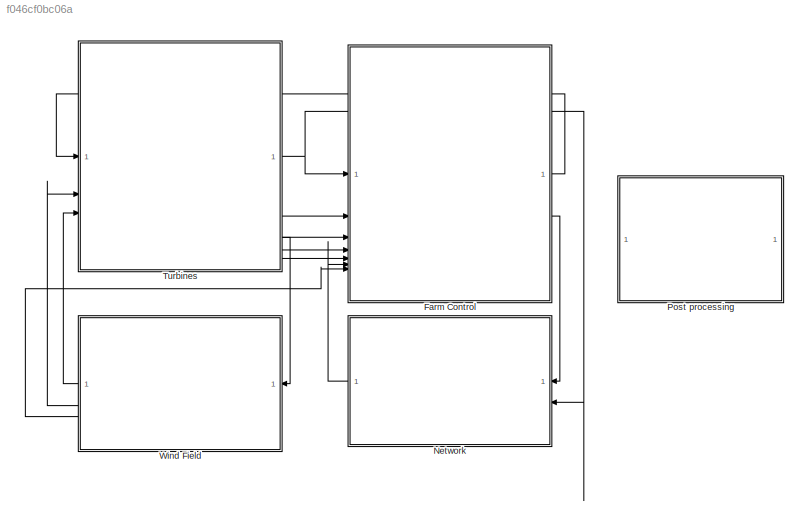
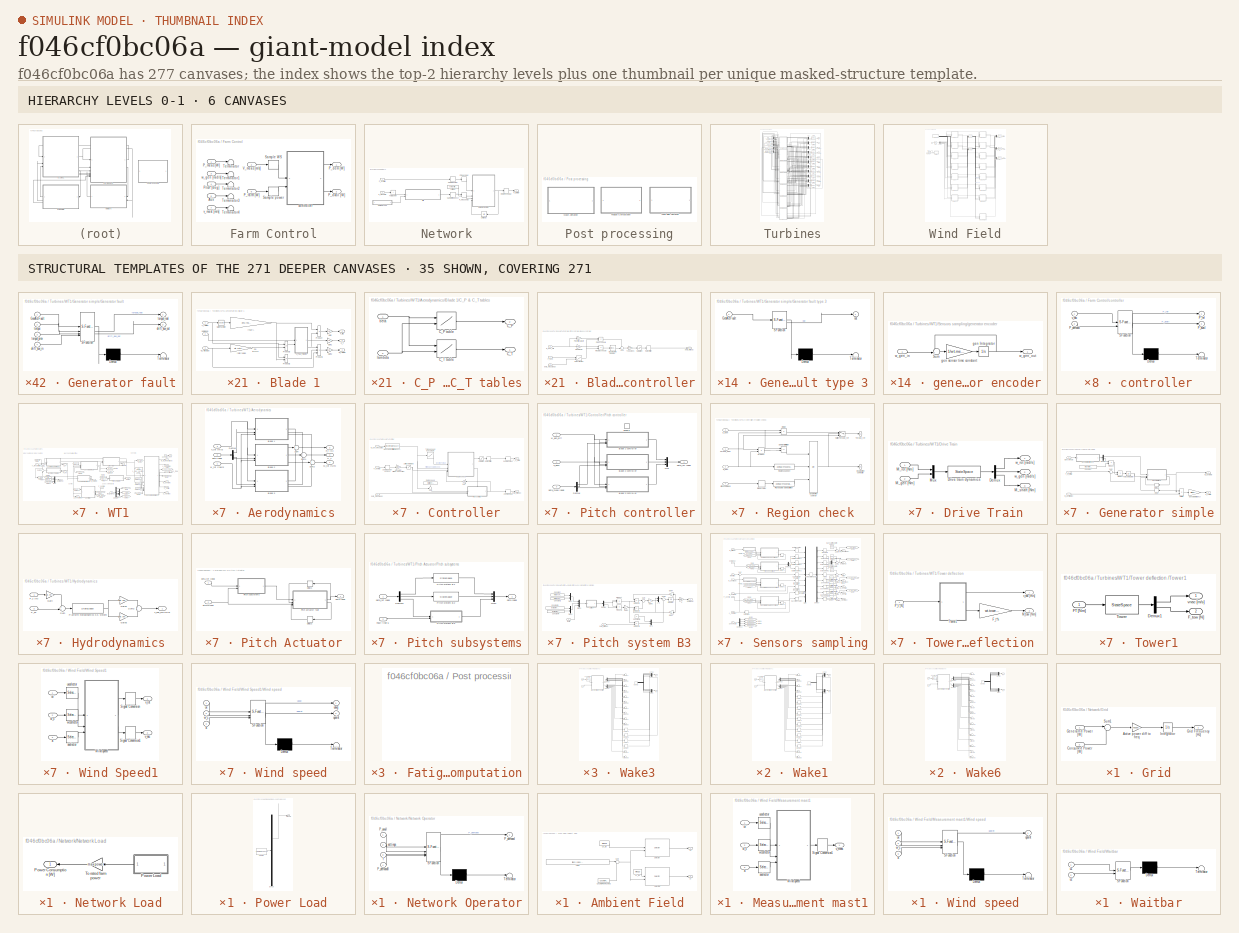
[diagram: thumbnail index - top-2 hierarchy levels (6 canvases) + 35 structural-template representatives of the remaining 271 canvases]
MODEL mdl_f046cf0bc06a
KIND model
CONFIG AbsTol = auto
CONFIG EnableMultiTasking = off
CONFIG FixedStep = auto
CONFIG MaxStep = auto
CONFIG MinStep = auto
CONFIG RelTol = 1e-3
CONFIG SampleTimeConstraint = Unconstrained
CONFIG SolverName = VariableStepAuto
CONFIG StartTime = 0.0
CONFIG StopTime = tMax
BLOCK [SubSystem] Farm Control
  UserDataPersistent = on
BLOCK [Inport] Farm Control/ Aux
  Port = 5
BLOCK [Inport] Farm Control/ v_mast [m//s]
  Port = 7
BLOCK [Outport] Farm Control/P_avail [W]
  Port = 2
BLOCK [Outport] Farm Control/P_dem [W]
BLOCK [Inport] Farm Control/P_farm [W]
  Port = 6
BLOCK [Inport] Farm Control/P_meas [W]
BLOCK [Inport] Farm Control/Pitch [deg]
  Port = 4
BLOCK [ZeroOrderHold] Farm Control/Sample WS
  SampleTime = wind.Ts
BLOCK [ZeroOrderHold] Farm Control/Sample power
  SampleTime = wind.Ts
BLOCK [Terminator] Farm Control/Terminator
BLOCK [Terminator] Farm Control/Terminator1
BLOCK [Terminator] Farm Control/Terminator2
BLOCK [Terminator] Farm Control/Terminator3
BLOCK [Terminator] Farm Control/Terminator4
BLOCK [Inport] Farm Control/V_meas [m//s]
  Port = 2
BLOCK [SubSystem] Farm Control/controller
  ErrorFcn = Stateflow.Translate.translate
  PermitHierarchicalResolution = ExplicitOnly
  SFBlockType = MATLAB Function
  TreatAsAtomicUnit = on
BLOCK [Demux] Farm Control/controller/ Demux 
  Outputs = 1
BLOCK [S-Function] Farm Control/controller/ SFunction 
  EnableBusSupport = on
  FunctionName = sf_sfun
  Parameters = parm
  PortCounts = [2 3]
  SFcnIsStateOwnerBlock = off
  SFunctionDeploymentMode = off
  Tag = Stateflow S-Function 21
BLOCK [Terminator] Farm Control/controller/ Terminator 
BLOCK [Outport] Farm Control/controller/P_avail
  Port = 2
BLOCK [Inport] Farm Control/controller/P_demand
  Port = 2
BLOCK [Outport] Farm Control/controller/P_ref
BLOCK [Inport] Farm Control/controller/v_nac
BLOCK [Inport] Farm Control/w_gen [rad//s]
  Port = 3
BLOCK [SubSystem] Network
BLOCK [TransportDelay] Network/F_meas delay
  DelayTime = parm.delay
BLOCK [SubSystem] Network/Grid
BLOCK [Gain] Network/Grid/Active power diff to freq
  Gain = frequencygain
BLOCK [Inport] Network/Grid/Consumed Power [W]
  Port = 2
BLOCK [Inport] Network/Grid/Generated Power [W]
BLOCK [Outport] Network/Grid/Grid Frequency [Hz]
BLOCK [Integrator] Network/Grid/Integrator
  InitialCondition = 50
  LimitOutput = on
  LowerSaturationLimit = 0
  UpperSaturationLimit = 100
BLOCK [Sum] Network/Grid/Sum1
  Inputs = |+-
BLOCK [SubSystem] Network/Network Load
BLOCK [Outport] Network/Network Load/Power Consumption [W]
BLOCK [SubSystem] Network/Network Load/Power Load
  ClipboardFcn = sigbuilder_block('clipboard');
  CloseFcn = sigbuilder_block('close');
  ContinueFcn = sigbuilder_block('continue')
  CopyFcn = sigbuilder_block('copy');
  DeleteFcn = sigbuilder_block('delete');
  LoadFcn = sigbuilder_block('load');
  MaskHideContents = on
  ModelCloseFcn = sigbuilder_block('modelClose');
  NameChangeFcn = sigbuilder_block('namechange');
  NameLocation = top
  OpenFcn = sigbuilder_block('open',[437.6 199.2 550.4 400 ]);
  PauseFcn = sigbuilder_block('pause')
  PreSaveFcn = sigbuilder_block('preSave');
  StartFcn = sigbuilder_block('start');
  StopFcn = sigbuilder_block('stop');
  Tag = STV Subsys
BLOCK [Demux] Network/Network Load/Power Load/Demux
  DisplayOption = none
  Outputs = 1
  Tag = STV Demux
BLOCK [FromWorkspace] Network/Network Load/Power Load/FromWs
  Tag = STV FromWs
  VariableName = tuvar
BLOCK [Outport] Network/Network Load/Power Load/Signal 1
  Tag = STV Outport
BLOCK [Gain] Network/Network Load/To rated farm power
  Gain = maxpower
  NameLocation = top
BLOCK [SubSystem] Network/Network Operator
  ErrorFcn = Stateflow.Translate.translate
  PermitHierarchicalResolution = ExplicitOnly
  SFBlockType = MATLAB Function
  TreatAsAtomicUnit = on
BLOCK [Demux] Network/Network Operator/ Demux 
  Outputs = 1
BLOCK [S-Function] Network/Network Operator/ SFunction 
  EnableBusSupport = on
  FunctionName = sf_sfun
  Parameters = parm
  PortCounts = [4 2]
  SFcnIsStateOwnerBlock = off
  SFunctionDeploymentMode = off
  Tag = Stateflow S-Function 22
BLOCK [Terminator] Network/Network Operator/ Terminator 
BLOCK [Inport] Network/Network Operator/P_avail
BLOCK [Outport] Network/Network Operator/P_demand
BLOCK [Inport] Network/Network Operator/P_demand0
  Port = 4
BLOCK [Inport] Network/Network Operator/f
  Port = 3
BLOCK [Inport] Network/Network Operator/settings
  Port = 2
BLOCK [TransportDelay] Network/P meas delay
  DelayTime = parm.delay
BLOCK [Inport] Network/P_avail [W]
BLOCK [Outport] Network/P_farm [W]
BLOCK [Inport] Network/P_meas [W]
  Port = 2
BLOCK [TransportDelay] Network/Reference delay
  DelayTime = .01
BLOCK [ZeroOrderHold] Network/Sample frequency
  SampleTime = parm.Ts
BLOCK [ZeroOrderHold] Network/Sample power
  SampleTime = wind.Ts
BLOCK [Sum] Network/Total power
  IconShape = rectangular
  Inputs = +
BLOCK [UnitDelay] Network/Unit Delay
  HasFrameUpgradeWarning = on
  NameLocation = top
  SampleTime = wind.Ts
BLOCK [Constant] Network/settings
  OutDataTypeStr = double
  SampleTime = wind.Ts
  Value = parm.settings
BLOCK [SubSystem] Post processing
BLOCK [SubSystem] Post processing/Fatigue Computation
  OpenFcn = fatigue=fatiguegui(logsout);
BLOCK [SubSystem] Post processing/Wake Animation
  OpenFcn = sys=bdroot(gcb);             \ncreate_wakeanim(sys,logsout);
BLOCK [SubSystem] Post processing/Wind Field Animation
  OpenFcn = sys=bdroot(gcb);\nwindanim(sys,logsout);
BLOCK [SubSystem] Turbines
  LoadFcn = p=get_param(gcb,'UserData');                                                                                                                                            \n%If not compatible                                                                                                                                                      \n                                                              ...<+1124ch>
  UserDataPersistent = on
BLOCK [Outport] Turbines/CT
  Port = 6
BLOCK [Mux] Turbines/CTmux
  DisplayOption = bar
  Inputs = 7
BLOCK [RateTransition] Turbines/CTrate
  Deterministic = off
  OutPortSampleTime = wind.Ts
BLOCK [RateTransition] Turbines/CTrate1
  Deterministic = off
  OutPortSampleTime = wind.Ts
BLOCK [RateTransition] Turbines/CTrate10
  Deterministic = off
  OutPortSampleTime = wind.Ts
BLOCK [RateTransition] Turbines/CTrate2
  Deterministic = off
  OutPortSampleTime = wind.Ts
BLOCK [RateTransition] Turbines/CTrate3
  Deterministic = off
  OutPortSampleTime = wind.Ts
BLOCK [RateTransition] Turbines/CTrate4
  Deterministic = off
  OutPortSampleTime = wind.Ts
BLOCK [RateTransition] Turbines/CTrate5
  Deterministic = off
  OutPortSampleTime = wind.Ts
BLOCK [RateTransition] Turbines/CTrate6
  Deterministic = off
  OutPortSampleTime = wind.Ts
BLOCK [RateTransition] Turbines/CTrate7
  Deterministic = off
  OutPortSampleTime = wind.Ts
BLOCK [RateTransition] Turbines/CTrate8
  Deterministic = off
  OutPortSampleTime = wind.Ts
BLOCK [RateTransition] Turbines/CTrate9
  Deterministic = off
  OutPortSampleTime = wind.Ts
BLOCK [Demux] Turbines/Faultdemux
  Outputs = 7
BLOCK [Demux] Turbines/Fexdemux
  Outputs = 7
BLOCK [FromWorkspace] Turbines/From Workspace
  VariableName = faultSignal
BLOCK [Outport] Turbines/P [W]
BLOCK [Inport] Turbines/P_dem [W]
BLOCK [Demux] Turbines/Pdemanddemux
  Outputs = 7
BLOCK [Mux] Turbines/Pmux
  DisplayOption = bar
  Inputs = 7
BLOCK [Outport] Turbines/V_meas [m//s]
  Port = 2
BLOCK [Inport] Turbines/V_wnd_nac [m//s]
  Port = 3
BLOCK [Inport] Turbines/V_wnd_rot [m//s]
  Port = 2
BLOCK [Demux] Turbines/Vnacdemux
  Outputs = 7
BLOCK [Demux] Turbines/Vrotdemux
  Outputs = 7
BLOCK [SubSystem] Turbines/WT1
  AncestorBlock = libturbines/Floating NREL5MW faulty
  NameLocation = top
  UserDataPersistent = on
BLOCK [SubSystem] Turbines/WT1/Aerodynamics
BLOCK [SubSystem] Turbines/WT1/Aerodynamics/Blade 1
BLOCK [SubSystem] Turbines/WT1/Aerodynamics/Blade 1/C_P & C_T tables
BLOCK [Outport] Turbines/WT1/Aerodynamics/Blade 1/C_P & C_T tables/C_P
  Port = 2
BLOCK [Lookup2D] Turbines/WT1/Aerodynamics/Blade 1/C_P & C_T tables/C_P table 
  ColumnIndex = wt.cp.tsr
  LookUpMeth = Interpolation-Use End Values
  RowIndex = wt.cp.beta
  Table = wt.cp.table
BLOCK [Outport] Turbines/WT1/Aerodynamics/Blade 1/C_P & C_T tables/C_T
BLOCK [Lookup2D] Turbines/WT1/Aerodynamics/Blade 1/C_P & C_T tables/C_T table
  ColumnIndex = wt.ct.tsr
  LookUpMeth = Interpolation-Use End Values
  RowIndex = wt.ct.beta
  Table = wt.ct.table
BLOCK [Inport] Turbines/WT1/Aerodynamics/Blade 1/C_P & C_T tables/beta
BLOCK [Inport] Turbines/WT1/Aerodynamics/Blade 1/C_P & C_T tables/lambda
  Port = 2
BLOCK [Outport] Turbines/WT1/Aerodynamics/Blade 1/C_T
  Port = 2
BLOCK [Outport] Turbines/WT1/Aerodynamics/Blade 1/F_t [N]
BLOCK [Gain] Turbines/WT1/Aerodynamics/Blade 1/Gain
  Gain = 1/3
BLOCK [Gain] Turbines/WT1/Aerodynamics/Blade 1/Gain1
  Gain = 1/3
BLOCK [Gain] Turbines/WT1/Aerodynamics/Blade 1/Gain2
  Gain = 1/3
BLOCK [Outport] Turbines/WT1/Aerodynamics/Blade 1/M_rot [Nm]
  Port = 3
BLOCK [Math] Turbines/WT1/Aerodynamics/Blade 1/Math Function
  Operator = square
  SignedPower = on
BLOCK [Product] Turbines/WT1/Aerodynamics/Blade 1/Product
  InputSameDT = on
  OutDataTypeStr = Inherit: Same as first input
  SaturateOnIntegerOverflow = on
BLOCK [Product] Turbines/WT1/Aerodynamics/Blade 1/Product1
  InputSameDT = on
  Inputs = **/
  OutDataTypeStr = Inherit: Same as first input
  SaturateOnIntegerOverflow = on
BLOCK [Product] Turbines/WT1/Aerodynamics/Blade 1/Product2
  InputSameDT = on
  OutDataTypeStr = Inherit: Same as first input
  SaturateOnIntegerOverflow = on
BLOCK [Product] Turbines/WT1/Aerodynamics/Blade 1/Product3
  InputSameDT = on
  Inputs = /*
  OutDataTypeStr = Inherit: Same as first input
  SaturateOnIntegerOverflow = on
BLOCK [Inport] Turbines/WT1/Aerodynamics/Blade 1/beta [deg]
  Port = 2
BLOCK [Gain] Turbines/WT1/Aerodynamics/Blade 1/rho//2*A
  Gain = env.rho*.5* pi * wt.rotor.radius^2
  OutDataTypeStr = Inherit: Same as input
  ParamDataTypeStr = Inherit: Same as input
  SaturateOnIntegerOverflow = on
BLOCK [Gain] Turbines/WT1/Aerodynamics/Blade 1/rotor radius
  Gain = wt.rotor.radius
  OutDataTypeStr = Inherit: Same as input
  ParamDataTypeStr = Inherit: Same as input
  SaturateOnIntegerOverflow = on
BLOCK [Inport] Turbines/WT1/Aerodynamics/Blade 1/v_rot [m//s]
BLOCK [Inport] Turbines/WT1/Aerodynamics/Blade 1/w_rot [rad//s]
  Port = 3
BLOCK [SubSystem] Turbines/WT1/Aerodynamics/Blade 2
  AncestorBlock = libturbines/Floating faulty NREL5MW1/Aerodynamics/Blade 1
BLOCK [SubSystem] Turbines/WT1/Aerodynamics/Blade 2/C_P & C_T tables
BLOCK [Outport] Turbines/WT1/Aerodynamics/Blade 2/C_P & C_T tables/C_P
  Port = 2
BLOCK [Lookup2D] Turbines/WT1/Aerodynamics/Blade 2/C_P & C_T tables/C_P table 
  ColumnIndex = wt.cp.tsr
  LookUpMeth = Interpolation-Use End Values
  RowIndex = wt.cp.beta
  Table = wt.cp.table
BLOCK [Outport] Turbines/WT1/Aerodynamics/Blade 2/C_P & C_T tables/C_T
BLOCK [Lookup2D] Turbines/WT1/Aerodynamics/Blade 2/C_P & C_T tables/C_T table
  ColumnIndex = wt.ct.tsr
  LookUpMeth = Interpolation-Use End Values
  RowIndex = wt.ct.beta
  Table = wt.ct.table
BLOCK [Inport] Turbines/WT1/Aerodynamics/Blade 2/C_P & C_T tables/beta
BLOCK [Inport] Turbines/WT1/Aerodynamics/Blade 2/C_P & C_T tables/lambda
  Port = 2
BLOCK [Outport] Turbines/WT1/Aerodynamics/Blade 2/C_T
  Port = 2
BLOCK [Outport] Turbines/WT1/Aerodynamics/Blade 2/F_t [N]
BLOCK [Gain] Turbines/WT1/Aerodynamics/Blade 2/Gain
  Gain = 1/3
BLOCK [Gain] Turbines/WT1/Aerodynamics/Blade 2/Gain1
  Gain = 1/3
BLOCK [Gain] Turbines/WT1/Aerodynamics/Blade 2/Gain2
  Gain = 1/3
BLOCK [Outport] Turbines/WT1/Aerodynamics/Blade 2/M_rot [Nm]
  Port = 3
BLOCK [Math] Turbines/WT1/Aerodynamics/Blade 2/Math Function
  Operator = square
  SignedPower = on
BLOCK [Product] Turbines/WT1/Aerodynamics/Blade 2/Product
  InputSameDT = on
  OutDataTypeStr = Inherit: Same as first input
  SaturateOnIntegerOverflow = on
BLOCK [Product] Turbines/WT1/Aerodynamics/Blade 2/Product1
  InputSameDT = on
  Inputs = **/
  OutDataTypeStr = Inherit: Same as first input
  SaturateOnIntegerOverflow = on
BLOCK [Product] Turbines/WT1/Aerodynamics/Blade 2/Product2
  InputSameDT = on
  OutDataTypeStr = Inherit: Same as first input
  SaturateOnIntegerOverflow = on
BLOCK [Product] Turbines/WT1/Aerodynamics/Blade 2/Product3
  InputSameDT = on
  Inputs = /*
  OutDataTypeStr = Inherit: Same as first input
  SaturateOnIntegerOverflow = on
BLOCK [Inport] Turbines/WT1/Aerodynamics/Blade 2/beta [deg]
  Port = 2
BLOCK [Gain] Turbines/WT1/Aerodynamics/Blade 2/rho//2*A
  Gain = env.rho*.5* pi * wt.rotor.radius^2
  OutDataTypeStr = Inherit: Same as input
  ParamDataTypeStr = Inherit: Same as input
  SaturateOnIntegerOverflow = on
BLOCK [Gain] Turbines/WT1/Aerodynamics/Blade 2/rotor radius
  Gain = wt.rotor.radius
  OutDataTypeStr = Inherit: Same as input
  ParamDataTypeStr = Inherit: Same as input
  SaturateOnIntegerOverflow = on
BLOCK [Inport] Turbines/WT1/Aerodynamics/Blade 2/v_rot [m//s]
BLOCK [Inport] Turbines/WT1/Aerodynamics/Blade 2/w_rot [rad//s]
  Port = 3
BLOCK [SubSystem] Turbines/WT1/Aerodynamics/Blade 3
  AncestorBlock = libturbines/Floating faulty NREL5MW1/Aerodynamics/Blade 1
BLOCK [SubSystem] Turbines/WT1/Aerodynamics/Blade 3/C_P & C_T tables
BLOCK [Outport] Turbines/WT1/Aerodynamics/Blade 3/C_P & C_T tables/C_P
  Port = 2
BLOCK [Lookup2D] Turbines/WT1/Aerodynamics/Blade 3/C_P & C_T tables/C_P table 
  ColumnIndex = wt.cp.tsr
  LookUpMeth = Interpolation-Use End Values
  RowIndex = wt.cp.beta
  Table = wt.cp.table
BLOCK [Outport] Turbines/WT1/Aerodynamics/Blade 3/C_P & C_T tables/C_T
BLOCK [Lookup2D] Turbines/WT1/Aerodynamics/Blade 3/C_P & C_T tables/C_T table
  ColumnIndex = wt.ct.tsr
  LookUpMeth = Interpolation-Use End Values
  RowIndex = wt.ct.beta
  Table = wt.ct.table
BLOCK [Inport] Turbines/WT1/Aerodynamics/Blade 3/C_P & C_T tables/beta
BLOCK [Inport] Turbines/WT1/Aerodynamics/Blade 3/C_P & C_T tables/lambda
  Port = 2
BLOCK [Outport] Turbines/WT1/Aerodynamics/Blade 3/C_T
  Port = 2
BLOCK [Outport] Turbines/WT1/Aerodynamics/Blade 3/F_t [N]
BLOCK [Gain] Turbines/WT1/Aerodynamics/Blade 3/Gain
  Gain = 1/3
BLOCK [Gain] Turbines/WT1/Aerodynamics/Blade 3/Gain1
  Gain = 1/3
BLOCK [Gain] Turbines/WT1/Aerodynamics/Blade 3/Gain2
  Gain = 1/3
BLOCK [Outport] Turbines/WT1/Aerodynamics/Blade 3/M_rot [Nm]
  Port = 3
BLOCK [Math] Turbines/WT1/Aerodynamics/Blade 3/Math Function
  Operator = square
  SignedPower = on
BLOCK [Product] Turbines/WT1/Aerodynamics/Blade 3/Product
  InputSameDT = on
  OutDataTypeStr = Inherit: Same as first input
  SaturateOnIntegerOverflow = on
BLOCK [Product] Turbines/WT1/Aerodynamics/Blade 3/Product1
  InputSameDT = on
  Inputs = **/
  OutDataTypeStr = Inherit: Same as first input
  SaturateOnIntegerOverflow = on
BLOCK [Product] Turbines/WT1/Aerodynamics/Blade 3/Product2
  InputSameDT = on
  OutDataTypeStr = Inherit: Same as first input
  SaturateOnIntegerOverflow = on
BLOCK [Product] Turbines/WT1/Aerodynamics/Blade 3/Product3
  InputSameDT = on
  Inputs = /*
  OutDataTypeStr = Inherit: Same as first input
  SaturateOnIntegerOverflow = on
BLOCK [Inport] Turbines/WT1/Aerodynamics/Blade 3/beta [deg]
  Port = 2
BLOCK [Gain] Turbines/WT1/Aerodynamics/Blade 3/rho//2*A
  Gain = env.rho*.5* pi * wt.rotor.radius^2
  OutDataTypeStr = Inherit: Same as input
  ParamDataTypeStr = Inherit: Same as input
  SaturateOnIntegerOverflow = on
BLOCK [Gain] Turbines/WT1/Aerodynamics/Blade 3/rotor radius
  Gain = wt.rotor.radius
  OutDataTypeStr = Inherit: Same as input
  ParamDataTypeStr = Inherit: Same as input
  SaturateOnIntegerOverflow = on
BLOCK [Inport] Turbines/WT1/Aerodynamics/Blade 3/v_rot [m//s]
BLOCK [Inport] Turbines/WT1/Aerodynamics/Blade 3/w_rot [rad//s]
  Port = 3
BLOCK [Outport] Turbines/WT1/Aerodynamics/C_T
  Port = 3
BLOCK [Demux] Turbines/WT1/Aerodynamics/Demux
  Outputs = 3
BLOCK [Outport] Turbines/WT1/Aerodynamics/F_t [N]
  Port = 2
BLOCK [Outport] Turbines/WT1/Aerodynamics/M_rot [Nm]
BLOCK [Sum] Turbines/WT1/Aerodynamics/Sum
  Inputs = +++
BLOCK [Sum] Turbines/WT1/Aerodynamics/Sum1
  Inputs = +++
BLOCK [Sum] Turbines/WT1/Aerodynamics/Sum2
  Inputs = +++
BLOCK [Inport] Turbines/WT1/Aerodynamics/beta [deg]
  Port = 2
BLOCK [Inport] Turbines/WT1/Aerodynamics/v_rot [m//s]
  Port = 3
BLOCK [Inport] Turbines/WT1/Aerodynamics/w_rot [rad//s]
BLOCK [Outport] Turbines/WT1/C_T
  Port = 2
BLOCK [Constant] Turbines/WT1/Constant
  Value = 0
BLOCK [SubSystem] Turbines/WT1/Controller
BLOCK [Gain] Turbines/WT1/Controller/Gain
  Gain = [1 0 0]
  Multiplication = Matrix(K*u) (u vector)
  NameLocation = top
BLOCK [Gain] Turbines/WT1/Controller/Generator efficiency compensation
  Gain = 1/wt.ctrl.gen.effeciency
BLOCK [Saturate] Turbines/WT1/Controller/Limit power to rated
  LowerLimit = 0
  UpperLimit = wt.ctrl.p_rated
BLOCK [DiscreteStateSpace] Turbines/WT1/Controller/Measurement filter (low pass)
  A = wt.ctrl.alpha
  B = 1-wt.ctrl.alpha
  C = wt.ctrl.alpha
  D = 1-wt.ctrl.alpha
  InitialCondition = wt.ctrl.gen.ini
  SampleTime = wt.ctrl.Ts
BLOCK [Inport] Turbines/WT1/Controller/P_dem [W]
BLOCK [SubSystem] Turbines/WT1/Controller/Pitch controller
  TreatAsAtomicUnit = on
BLOCK [SubSystem] Turbines/WT1/Controller/Pitch controller/Blade 1 controller
BLOCK [DiscreteIntegrator] Turbines/WT1/Controller/Pitch controller/Blade 1 controller/Discrete-Time Integrator
  ICPrevOutput = DiscIntNeverNeededParam
  ICPrevScaledInput = DiscIntNeverNeededParam
  LimitOutput = on
  LowerSaturationLimit = wt.ctrl.pitch.llim
  SampleTime = wt.ctrl.Ts
  UpperSaturationLimit = wt.ctrl.pitch.ulim*pi/180
BLOCK [Lookup2D] Turbines/WT1/Controller/Pitch controller/Blade 1 controller/Gain correction
  ColumnIndex = wt.ctrl.pitch.beta
  InputSameDT = off
  LookUpMeth = Interpolation-Use End Values
  RowIndex = wt.ctrl.pitch.pwr
  SaturateOnIntegerOverflow = off
  Table = wt.ctrl.pitch.gs
BLOCK [Gain] Turbines/WT1/Controller/Pitch controller/Blade 1 controller/Integral gain
  Gain = (1-0.999*noiseFlag)*wt.ctrl.pitch.Igain
BLOCK [Product] Turbines/WT1/Controller/Pitch controller/Blade 1 controller/Integral schedule
  Inputs = */
  RndMeth = Zero
BLOCK [Inport] Turbines/WT1/Controller/Pitch controller/Blade 1 controller/P_dem
  Port = 2
BLOCK [Product] Turbines/WT1/Controller/Pitch controller/Blade 1 controller/Prop schedule
  Inputs = */
  RndMeth = Zero
BLOCK [Gain] Turbines/WT1/Controller/Pitch controller/Blade 1 controller/Proportional gain
  Gain = (1-0.3*noiseFlag)*wt.ctrl.pitch.Pgain
BLOCK [RateLimiter] Turbines/WT1/Controller/Pitch controller/Blade 1 controller/Rate Limiter
  FallingSlewLimit = -wt.ctrl.pitch.ratelim
  InitialCondition = wt.ctrl.pitch.ini
  RisingSlewLimit = wt.ctrl.pitch.ratelim
  SampleTimeMode = inherited
BLOCK [Saturate] Turbines/WT1/Controller/Pitch controller/Blade 1 controller/Saturation
  LowerLimit = 0
  UpperLimit = wt.ctrl.pitch.ulim
BLOCK [Sum] Turbines/WT1/Controller/Pitch controller/Blade 1 controller/Sum
  Inputs = ++|
BLOCK [Gain] Turbines/WT1/Controller/Pitch controller/Blade 1 controller/To degrees
  Gain = 180/pi
BLOCK [Inport] Turbines/WT1/Controller/Pitch controller/Blade 1 controller/beta_meas [deg]
  Port = 3
BLOCK [Outport] Turbines/WT1/Controller/Pitch controller/Blade 1 controller/beta_ref [deg]
BLOCK [Inport] Turbines/WT1/Controller/Pitch controller/Blade 1 controller/w_gen_diff
BLOCK [SubSystem] Turbines/WT1/Controller/Pitch controller/Blade 2 controller
BLOCK [DiscreteIntegrator] Turbines/WT1/Controller/Pitch controller/Blade 2 controller/Discrete-Time Integrator
  ICPrevOutput = DiscIntNeverNeededParam
  ICPrevScaledInput = DiscIntNeverNeededParam
  LimitOutput = on
  LowerSaturationLimit = wt.ctrl.pitch.llim
  SampleTime = wt.ctrl.Ts
  UpperSaturationLimit = wt.ctrl.pitch.ulim*pi/180
BLOCK [Lookup2D] Turbines/WT1/Controller/Pitch controller/Blade 2 controller/Gain correction
  ColumnIndex = wt.ctrl.pitch.beta
  InputSameDT = off
  LookUpMeth = Interpolation-Use End Values
  RowIndex = wt.ctrl.pitch.pwr
  SaturateOnIntegerOverflow = off
  Table = wt.ctrl.pitch.gs
BLOCK [Gain] Turbines/WT1/Controller/Pitch controller/Blade 2 controller/Integral gain
  Gain = (1-0.999*noiseFlag)*wt.ctrl.pitch.Igain
BLOCK [Product] Turbines/WT1/Controller/Pitch controller/Blade 2 controller/Integral schedule
  Inputs = */
  RndMeth = Zero
BLOCK [Inport] Turbines/WT1/Controller/Pitch controller/Blade 2 controller/P_dem
  Port = 2
BLOCK [Product] Turbines/WT1/Controller/Pitch controller/Blade 2 controller/Prop schedule
  Inputs = */
  RndMeth = Zero
BLOCK [Gain] Turbines/WT1/Controller/Pitch controller/Blade 2 controller/Proportional gain
  Gain = (1-0.3*noiseFlag)*wt.ctrl.pitch.Pgain
BLOCK [RateLimiter] Turbines/WT1/Controller/Pitch controller/Blade 2 controller/Rate Limiter
  FallingSlewLimit = -wt.ctrl.pitch.ratelim
  InitialCondition = wt.ctrl.pitch.ini
  RisingSlewLimit = wt.ctrl.pitch.ratelim
  SampleTimeMode = inherited
BLOCK [Saturate] Turbines/WT1/Controller/Pitch controller/Blade 2 controller/Saturation
  LowerLimit = 0
  UpperLimit = wt.ctrl.pitch.ulim
BLOCK [Sum] Turbines/WT1/Controller/Pitch controller/Blade 2 controller/Sum
  Inputs = ++|
BLOCK [Gain] Turbines/WT1/Controller/Pitch controller/Blade 2 controller/To degrees
  Gain = 180/pi
BLOCK [Inport] Turbines/WT1/Controller/Pitch controller/Blade 2 controller/beta_meas [deg]
  Port = 3
BLOCK [Outport] Turbines/WT1/Controller/Pitch controller/Blade 2 controller/beta_ref [deg]
BLOCK [Inport] Turbines/WT1/Controller/Pitch controller/Blade 2 controller/w_gen_diff
BLOCK [SubSystem] Turbines/WT1/Controller/Pitch controller/Blade 3 controller
BLOCK [DiscreteIntegrator] Turbines/WT1/Controller/Pitch controller/Blade 3 controller/Discrete-Time Integrator
  ICPrevOutput = DiscIntNeverNeededParam
  ICPrevScaledInput = DiscIntNeverNeededParam
  LimitOutput = on
  LowerSaturationLimit = wt.ctrl.pitch.llim
  SampleTime = wt.ctrl.Ts
  UpperSaturationLimit = wt.ctrl.pitch.ulim*pi/180
BLOCK [Lookup2D] Turbines/WT1/Controller/Pitch controller/Blade 3 controller/Gain correction
  ColumnIndex = wt.ctrl.pitch.beta
  InputSameDT = off
  LookUpMeth = Interpolation-Use End Values
  RowIndex = wt.ctrl.pitch.pwr
  SaturateOnIntegerOverflow = off
  Table = wt.ctrl.pitch.gs
BLOCK [Gain] Turbines/WT1/Controller/Pitch controller/Blade 3 controller/Integral gain
  Gain = (1-0.999*noiseFlag)*wt.ctrl.pitch.Igain
BLOCK [Product] Turbines/WT1/Controller/Pitch controller/Blade 3 controller/Integral schedule
  Inputs = */
  RndMeth = Zero
BLOCK [Inport] Turbines/WT1/Controller/Pitch controller/Blade 3 controller/P_dem
  Port = 2
BLOCK [Product] Turbines/WT1/Controller/Pitch controller/Blade 3 controller/Prop schedule
  Inputs = */
  RndMeth = Zero
BLOCK [Gain] Turbines/WT1/Controller/Pitch controller/Blade 3 controller/Proportional gain
  Gain = (1-0.3*noiseFlag)*wt.ctrl.pitch.Pgain
BLOCK [RateLimiter] Turbines/WT1/Controller/Pitch controller/Blade 3 controller/Rate Limiter
  FallingSlewLimit = -wt.ctrl.pitch.ratelim
  InitialCondition = wt.ctrl.pitch.ini
  RisingSlewLimit = wt.ctrl.pitch.ratelim
  SampleTimeMode = inherited
BLOCK [Saturate] Turbines/WT1/Controller/Pitch controller/Blade 3 controller/Saturation
  LowerLimit = 0
  UpperLimit = wt.ctrl.pitch.ulim
BLOCK [Sum] Turbines/WT1/Controller/Pitch controller/Blade 3 controller/Sum
  Inputs = ++|
BLOCK [Gain] Turbines/WT1/Controller/Pitch controller/Blade 3 controller/To degrees
  Gain = 180/pi
BLOCK [Inport] Turbines/WT1/Controller/Pitch controller/Blade 3 controller/beta_meas [deg]
  Port = 3
BLOCK [Outport] Turbines/WT1/Controller/Pitch controller/Blade 3 controller/beta_ref [deg]
BLOCK [Inport] Turbines/WT1/Controller/Pitch controller/Blade 3 controller/w_gen_diff
BLOCK [Demux] Turbines/WT1/Controller/Pitch controller/Demux
  Outputs = 3
BLOCK [EnablePort] Turbines/WT1/Controller/Pitch controller/Enable
  PropagateVarSize = During execution
  StatesWhenEnabling = reset
BLOCK [Mux] Turbines/WT1/Controller/Pitch controller/Mux
  DisplayOption = bar
  Inputs = 3
BLOCK [Inport] Turbines/WT1/Controller/Pitch controller/P_dem
  Port = 2
BLOCK [Inport] Turbines/WT1/Controller/Pitch controller/beta_meas [deg]
  Port = 3
BLOCK [Outport] Turbines/WT1/Controller/Pitch controller/beta_ref [deg]
  InitialOutput = wt.ctrl.torq.beta
  OutputWhenDisabled = reset
BLOCK [Inport] Turbines/WT1/Controller/Pitch controller/w_gen_diff
BLOCK [RateLimiter] Turbines/WT1/Controller/Rate Limiter
  FallingSlewLimit = -wt.ctrl.torq.ratelim
  InitialCondition = wt.ctrl.torq.ini
  RisingSlewLimit = wt.ctrl.torq.ratelim
  SampleTimeMode = inherited
BLOCK [Constant] Turbines/WT1/Controller/Rated speed
  NameLocation = top
  Value = wt.ctrl.gen.rated
BLOCK [SubSystem] Turbines/WT1/Controller/Region check
  NameLocation = top
BLOCK [RelationalOperator] Turbines/WT1/Controller/Region check/Demand limitation
  InputSameDT = off
  Operator = <=
  OutDataTypeStr = boolean
BLOCK [Product] Turbines/WT1/Controller/Region check/Divide
  Inputs = */
BLOCK [Logic] Turbines/WT1/Controller/Region check/Enable Pitch control?
  AllPortsSameDT = off
  Inputs = 3
  Operator = OR
  OutDataTypeStr = boolean
BLOCK [Outport] Turbines/WT1/Controller/Region check/Enable pitch controller
  Port = 2
BLOCK [Delay] Turbines/WT1/Controller/Region check/Integer Delay
  DelayLength = 1
  InputPortMap = u0
BLOCK [Reference] Turbines/WT1/Controller/Region check/Pitch actuator active last time?  REF=simulink/Logic and Bit
Operations/Compare
To Constant
  SourceBlock = simulink/Logic and Bit\nOperations/Compare\nTo Constant
  SourceType = Compare To Constant
BLOCK [Product] Turbines/WT1/Controller/Region check/Product
  RndMeth = Zero
BLOCK [Reference] Turbines/WT1/Controller/Region check/Region 3 speed?  REF=simulink/Logic and Bit
Operations/Compare
To Constant
  SourceBlock = simulink/Logic and Bit\nOperations/Compare\nTo Constant
  SourceType = Compare To Constant
BLOCK [Switch] Turbines/WT1/Controller/Region check/Switch Torque_ref
  InputSameDT = off
  SaturateOnIntegerOverflow = off
  Threshold = 1
BLOCK [Inport] Turbines/WT1/Controller/Region check/Torque_dem
BLOCK [Outport] Turbines/WT1/Controller/Region check/Torque_ref
BLOCK [Inport] Turbines/WT1/Controller/Region check/p_dem
  Port = 3
BLOCK [Inport] Turbines/WT1/Controller/Region check/pitch command
  Port = 4
BLOCK [Inport] Turbines/WT1/Controller/Region check/w_gen
  Port = 2
BLOCK [ZeroOrderHold] Turbines/WT1/Controller/Sample output
  SampleTime = wt.ctrl.Ts
BLOCK [ZeroOrderHold] Turbines/WT1/Controller/Sample power demand
  SampleTime = wt.ctrl.Ts
BLOCK [Saturate] Turbines/WT1/Controller/Saturation
  LowerLimit = 0
  UpperLimit = wt.ctrl.torq.lim
BLOCK [Sum] Turbines/WT1/Controller/Sum
  Inputs = +-|
BLOCK [Outport] Turbines/WT1/Controller/T_g_ref [W]
  Port = 2
BLOCK [Lookup] Turbines/WT1/Controller/Torque - speed lookup table
  InputValues = wt.ctrl.torq.wg
  LookUpMeth = Interpolation-Use End Values
  SaturateOnIntegerOverflow = off
  Table = wt.ctrl.torq.M
BLOCK [ZeroOrderHold] Turbines/WT1/Controller/Zero-Order Hold
  SampleTime = wt.ctrl.Ts
BLOCK [Inport] Turbines/WT1/Controller/beta_meas [deg]
  Port = 3
BLOCK [Outport] Turbines/WT1/Controller/beta_ref [deg]
BLOCK [Inport] Turbines/WT1/Controller/w_gen_meas [m//s]
  Port = 2
BLOCK [Demux] Turbines/WT1/Demux
  Outputs = 6
BLOCK [SubSystem] Turbines/WT1/Drive Train
BLOCK [Demux] Turbines/WT1/Drive Train/Demux
  Outputs = 3
BLOCK [StateSpace] Turbines/WT1/Drive Train/Drive train dynamics
  A = wt.dt.ssA
  B = wt.dt.ssB
  C = wt.dt.ssC
  D = wt.dt.ssD
  InitialCondition = [wt.rotor.ini;wt.gen.ini;0]
BLOCK [Inport] Turbines/WT1/Drive Train/M_gen [Nm]
  Port = 2
BLOCK [Inport] Turbines/WT1/Drive Train/M_rot [Nm]
BLOCK [Outport] Turbines/WT1/Drive Train/M_shaft [Nm]
  Port = 3
BLOCK [Mux] Turbines/WT1/Drive Train/Mux
  DisplayOption = bar
  Inputs = 2
BLOCK [Outport] Turbines/WT1/Drive Train/w_gen [rad//s]
  Port = 2
BLOCK [Outport] Turbines/WT1/Drive Train/w_rot [rad//s]
BLOCK [Inport] Turbines/WT1/F_ex
  Port = 4
BLOCK [From] Turbines/WT1/From
  GotoTag = f_PitchAct
BLOCK [From] Turbines/WT1/From1
  GotoTag = beta
BLOCK [From] Turbines/WT1/From11
  GotoTag = beta_meas
BLOCK [From] Turbines/WT1/From12
  GotoTag = w_gen
BLOCK [From] Turbines/WT1/From13
  GotoTag = P_gen
BLOCK [From] Turbines/WT1/From14
  GotoTag = M_gen
BLOCK [From] Turbines/WT1/From15
  GotoTag = v_nac
BLOCK [From] Turbines/WT1/From2
  GotoTag = f_Sens
BLOCK [From] Turbines/WT1/From3
  GotoTag = beta
  NameLocation = top
BLOCK [From] Turbines/WT1/From4
  GotoTag = beta_ref
BLOCK [From] Turbines/WT1/From5
  GotoTag = beta
  NameLocation = top
BLOCK [From] Turbines/WT1/From6
  GotoTag = f_GenAct
BLOCK [From] Turbines/WT1/From7
  GotoTag = w_gen_meas
  NameLocation = top
BLOCK [From] Turbines/WT1/From8
  GotoTag = beta_meas
  NameLocation = top
BLOCK [From] Turbines/WT1/From9
  GotoTag = beta_ref
  NameLocation = top
BLOCK [SubSystem] Turbines/WT1/Generator simple
BLOCK [Constant] Turbines/WT1/Generator simple/Constant
  Value = wt.gen.timeconstant
BLOCK [Delay] Turbines/WT1/Generator simple/Delay
  DelayLength = 1
  InitialCondition = 0
  InputPortMap = u0
  NameLocation = top
BLOCK [Delay] Turbines/WT1/Generator simple/Delay1
  DelayLength = 1
  InitialCondition = 0
  InputPortMap = u0
  NameLocation = top
BLOCK [Demux] Turbines/WT1/Generator simple/Demux
  Outputs = 2
BLOCK [Product] Turbines/WT1/Generator simple/Divide1
  Inputs = */
BLOCK [Inport] Turbines/WT1/Generator simple/GenActFault
  Port = 3
BLOCK [Gain] Turbines/WT1/Generator simple/Generator efficiency
  Gain = wt.gen.effeciency
BLOCK [SubSystem] Turbines/WT1/Generator simple/Generator fault
  ErrorFcn = Stateflow.Translate.translate
  PermitHierarchicalResolution = ExplicitOnly
  SFBlockType = MATLAB Function
  TreatAsAtomicUnit = on
BLOCK [SubSystem] Turbines/WT1/Generator simple/Generator fault type 3
  ErrorFcn = Stateflow.Translate.translate
  PermitHierarchicalResolution = ExplicitOnly
  SFBlockType = MATLAB Function
  TreatAsAtomicUnit = on
BLOCK [Demux] Turbines/WT1/Generator simple/Generator fault type 3/ Demux 
  Outputs = 1
BLOCK [S-Function] Turbines/WT1/Generator simple/Generator fault type 3/ SFunction 
  EnableBusSupport = on
  FunctionName = sf_sfun
  Parameters = faultOptions
  PortCounts = [1 2]
  SFcnIsStateOwnerBlock = off
  SFunctionDeploymentMode = off
  Tag = Stateflow S-Function 18
BLOCK [Terminator] Turbines/WT1/Generator simple/Generator fault type 3/ Terminator 
BLOCK [Inport] Turbines/WT1/Generator simple/Generator fault type 3/GenActFault
BLOCK [Outport] Turbines/WT1/Generator simple/Generator fault type 3/out
BLOCK [Demux] Turbines/WT1/Generator simple/Generator fault/ Demux 
  Outputs = 1
BLOCK [S-Function] Turbines/WT1/Generator simple/Generator fault/ SFunction 
  EnableBusSupport = on
  FunctionName = sf_sfun
  Parameters = faultOptions
  PortCounts = [4 3]
  SFcnIsStateOwnerBlock = off
  SFunctionDeploymentMode = off
  Tag = Stateflow S-Function 17
BLOCK [Terminator] Turbines/WT1/Generator simple/Generator fault/ Terminator 
BLOCK [Inport] Turbines/WT1/Generator simple/Generator fault/GenActFault
BLOCK [Inport] Turbines/WT1/Generator simple/Generator fault/drift_aux_in
  Port = 4
BLOCK [Outport] Turbines/WT1/Generator simple/Generator fault/drift_aux_out
  Port = 2
BLOCK [Inport] Turbines/WT1/Generator simple/Generator fault/torque
  Port = 2
BLOCK [Inport] Turbines/WT1/Generator simple/Generator fault/torque_prev
  Port = 3
BLOCK [Outport] Turbines/WT1/Generator simple/Generator fault/torque_real
BLOCK [Outport] Turbines/WT1/Generator simple/M_gen [Nm]
BLOCK [Product] Turbines/WT1/Generator simple/Multiply
  Inputs = **
BLOCK [Outport] Turbines/WT1/Generator simple/P_out [W]
  Port = 2
BLOCK [Product] Turbines/WT1/Generator simple/Product
BLOCK [Sum] Turbines/WT1/Generator simple/Sum
  Inputs = |+-
BLOCK [Inport] Turbines/WT1/Generator simple/T_g_ref [W]
  Port = 2
BLOCK [Integrator] Turbines/WT1/Generator simple/Torque Integrator
  InitialCondition = wt.gen.torq.ini
BLOCK [Inport] Turbines/WT1/Generator simple/w_gen [rad//s]
BLOCK [Goto] Turbines/WT1/Goto
  GotoTag = f_PitchAct
BLOCK [Goto] Turbines/WT1/Goto1
  GotoTag = w_gen
BLOCK [Goto] Turbines/WT1/Goto10
  GotoTag = P_gen
BLOCK [Goto] Turbines/WT1/Goto2
  GotoTag = f_Sens
BLOCK [Goto] Turbines/WT1/Goto3
  GotoTag = beta
BLOCK [Goto] Turbines/WT1/Goto4
  GotoTag = beta_ref
  NameLocation = top
BLOCK [Goto] Turbines/WT1/Goto5
  GotoTag = M_gen
BLOCK [Goto] Turbines/WT1/Goto6
  GotoTag = w_gen_meas
BLOCK [Goto] Turbines/WT1/Goto7
  GotoTag = beta_meas
BLOCK [Goto] Turbines/WT1/Goto8
  GotoTag = f_GenAct
BLOCK [Goto] Turbines/WT1/Goto9
  GotoTag = v_nac
BLOCK [SubSystem] Turbines/WT1/Hydrodynamics
BLOCK [Inport] Turbines/WT1/Hydrodynamics/F_ex
  Port = 2
BLOCK [Inport] Turbines/WT1/Hydrodynamics/F_t [N]
BLOCK [Gain] Turbines/WT1/Hydrodynamics/Gain
  Gain = plat.nF2pT
  Multiplication = Matrix(K*u)
BLOCK [Gain] Turbines/WT1/Hydrodynamics/Gain2
  Gain = plat.pM2nM_surge
  Multiplication = Matrix(K*u)
BLOCK [Gain] Turbines/WT1/Hydrodynamics/Gain3
  Gain = plat.pM2nM_pitch
  Multiplication = Matrix(K*u)
BLOCK [StateSpace] Turbines/WT1/Hydrodynamics/Platform hydrodynamics SS system
  A = plat.HydSys.a
  B = plat.HydSys.b
  C = plat.HydSys.c
  D = plat.HydSys.d
  InitialCondition = 0
BLOCK [Sum] Turbines/WT1/Hydrodynamics/Sum
  Inputs = ++|
BLOCK [Sum] Turbines/WT1/Hydrodynamics/Sum2
  Inputs = +|+
BLOCK [Outport] Turbines/WT1/Hydrodynamics/v_nac_hyd [m//s]
BLOCK [Outport] Turbines/WT1/M_gen [Nm]
  Port = 8
BLOCK [Outport] Turbines/WT1/M_tow [Nm]
  Port = 7
BLOCK [Mux] Turbines/WT1/Mux
  DisplayOption = bar
  Inputs = 3
BLOCK [Mux] Turbines/WT1/Mux1
  DisplayOption = bar
BLOCK [Inport] Turbines/WT1/P_dem [W]
BLOCK [Outport] Turbines/WT1/P_out [W]
BLOCK [SubSystem] Turbines/WT1/Pitch Actuator
BLOCK [Delay] Turbines/WT1/Pitch Actuator/Delay1
  DelayLength = 1
  InitialCondition = 0
  InputPortMap = u0
  NameLocation = top
BLOCK [Delay] Turbines/WT1/Pitch Actuator/Delay2
  DelayLength = 1
  InitialCondition = 0
  InputPortMap = u0
  NameLocation = top
BLOCK [SubSystem] Turbines/WT1/Pitch Actuator/Pitch actuator fault
  ErrorFcn = Stateflow.Translate.translate
  PermitHierarchicalResolution = ExplicitOnly
  SFBlockType = MATLAB Function
  TreatAsAtomicUnit = on
BLOCK [Demux] Turbines/WT1/Pitch Actuator/Pitch actuator fault/ Demux 
  Outputs = 1
BLOCK [S-Function] Turbines/WT1/Pitch Actuator/Pitch actuator fault/ SFunction 
  EnableBusSupport = on
  FunctionName = sf_sfun
  Parameters = faultOptions
  PortCounts = [4 3]
  SFcnIsStateOwnerBlock = off
  SFunctionDeploymentMode = off
  Tag = Stateflow S-Function 19
BLOCK [Terminator] Turbines/WT1/Pitch Actuator/Pitch actuator fault/ Terminator 
BLOCK [Inport] Turbines/WT1/Pitch Actuator/Pitch actuator fault/PitchActFault
  Port = 3
BLOCK [Inport] Turbines/WT1/Pitch Actuator/Pitch actuator fault/beta
BLOCK [Inport] Turbines/WT1/Pitch Actuator/Pitch actuator fault/beta_prev
  Port = 2
BLOCK [Outport] Turbines/WT1/Pitch Actuator/Pitch actuator fault/beta_real
BLOCK [Inport] Turbines/WT1/Pitch Actuator/Pitch actuator fault/drift_aux_in
  Port = 4
BLOCK [Outport] Turbines/WT1/Pitch Actuator/Pitch actuator fault/drift_aux_out
  Port = 2
BLOCK [SubSystem] Turbines/WT1/Pitch Actuator/Pitch subsystems
BLOCK [Demux] Turbines/WT1/Pitch Actuator/Pitch subsystems/Demux2
  Outputs = 3
BLOCK [Inport] Turbines/WT1/Pitch Actuator/Pitch subsystems/Fault type 5
  Port = 2
BLOCK [Mux] Turbines/WT1/Pitch Actuator/Pitch subsystems/Mux1
  DisplayOption = bar
  Inputs = 3
BLOCK [StateSpace] Turbines/WT1/Pitch Actuator/Pitch subsystems/Pitch system B1
  A = wt.pitch.ssA
  B = wt.pitch.ssB
  C = wt.pitch.ssC
  D = wt.pitch.ssD
  InitialCondition = 0
BLOCK [StateSpace] Turbines/WT1/Pitch Actuator/Pitch subsystems/Pitch system B2
  A = wt.pitch.ssA
  B = wt.pitch.ssB
  C = wt.pitch.ssC
  D = wt.pitch.ssD
  InitialCondition = 0
BLOCK [SubSystem] Turbines/WT1/Pitch Actuator/Pitch subsystems/Pitch system B3
BLOCK [Mux] Turbines/WT1/Pitch Actuator/Pitch subsystems/Pitch system B3/A*x
  DisplayOption = bar
  Inputs = 2
BLOCK [Mux] Turbines/WT1/Pitch Actuator/Pitch subsystems/Pitch system B3/B*u
  DisplayOption = bar
  Inputs = 2
BLOCK [Gain] Turbines/WT1/Pitch Actuator/Pitch subsystems/Pitch system B3/C
  Gain = wt.pitch.sysPitch.c
  Multiplication = Matrix(K*u) (u vector)
BLOCK [Constant] Turbines/WT1/Pitch Actuator/Pitch subsystems/Pitch system B3/Constant
  Value = wt.pitch.omega
BLOCK [Constant] Turbines/WT1/Pitch Actuator/Pitch subsystems/Pitch system B3/Constant1
  Value = wt.pitch.damp
BLOCK [Constant] Turbines/WT1/Pitch Actuator/Pitch subsystems/Pitch system B3/Constant2
  Value = 0
BLOCK [Constant] Turbines/WT1/Pitch Actuator/Pitch subsystems/Pitch system B3/Constant3
  Value = faultOptions.pitchNatFreq
BLOCK [Constant] Turbines/WT1/Pitch Actuator/Pitch subsystems/Pitch system B3/Constant4
  Value = faultOptions.pitchDamp
BLOCK [Demux] Turbines/WT1/Pitch Actuator/Pitch subsystems/Pitch system B3/Demux
  Outputs = 2
BLOCK [Gain] Turbines/WT1/Pitch Actuator/Pitch subsystems/Pitch system B3/Gain1
  Gain = [0 1]
  Multiplication = Matrix(K*u) (u vector)
BLOCK [Gain] Turbines/WT1/Pitch Actuator/Pitch subsystems/Pitch system B3/Gain3
  Gain = 2
BLOCK [Gain] Turbines/WT1/Pitch Actuator/Pitch subsystems/Pitch system B3/Gain4
  Gain = [1 0]
  Multiplication = Matrix(K*u) (u vector)
BLOCK [Gain] Turbines/WT1/Pitch Actuator/Pitch subsystems/Pitch system B3/Gain5
  Gain = -1
BLOCK [Integrator] Turbines/WT1/Pitch Actuator/Pitch subsystems/Pitch system B3/Integrator
BLOCK [Product] Turbines/WT1/Pitch Actuator/Pitch subsystems/Pitch system B3/Product
BLOCK [Product] Turbines/WT1/Pitch Actuator/Pitch subsystems/Pitch system B3/Product1
BLOCK [Product] Turbines/WT1/Pitch Actuator/Pitch subsystems/Pitch system B3/Product2
BLOCK [Product] Turbines/WT1/Pitch Actuator/Pitch subsystems/Pitch system B3/Product3
BLOCK [Product] Turbines/WT1/Pitch Actuator/Pitch subsystems/Pitch system B3/Product4
BLOCK [Sum] Turbines/WT1/Pitch Actuator/Pitch subsystems/Pitch system B3/Sum
  Inputs = |++
BLOCK [Sum] Turbines/WT1/Pitch Actuator/Pitch subsystems/Pitch system B3/Sum3
  Inputs = |++
BLOCK [SubSystem] Turbines/WT1/Pitch Actuator/Pitch subsystems/Pitch system B3/Switch
  ErrorFcn = Stateflow.Translate.translate
  PermitHierarchicalResolution = ExplicitOnly
  SFBlockType = MATLAB Function
  TreatAsAtomicUnit = on
BLOCK [Demux] Turbines/WT1/Pitch Actuator/Pitch subsystems/Pitch system B3/Switch/ Demux 
  Outputs = 1
BLOCK [S-Function] Turbines/WT1/Pitch Actuator/Pitch subsystems/Pitch system B3/Switch/ SFunction 
  EnableBusSupport = on
  FunctionName = sf_sfun
  PortCounts = [1 2]
  SFcnIsStateOwnerBlock = off
  SFunctionDeploymentMode = off
  Tag = Stateflow S-Function 28
BLOCK [Terminator] Turbines/WT1/Pitch Actuator/Pitch subsystems/Pitch system B3/Switch/ Terminator 
BLOCK [Inport] Turbines/WT1/Pitch Actuator/Pitch subsystems/Pitch system B3/Switch/u
BLOCK [Outport] Turbines/WT1/Pitch Actuator/Pitch subsystems/Pitch system B3/Switch/y
BLOCK [Outport] Turbines/WT1/Pitch Actuator/Pitch subsystems/Pitch system B3/beta [deg]
BLOCK [Inport] Turbines/WT1/Pitch Actuator/Pitch subsystems/Pitch system B3/beta_ref [deg]
BLOCK [Inport] Turbines/WT1/Pitch Actuator/Pitch subsystems/Pitch system B3/fault 5
  Port = 2
BLOCK [Mux] Turbines/WT1/Pitch Actuator/Pitch subsystems/Pitch system B3/mux1
  DisplayOption = bar
  Inputs = 2
BLOCK [Mux] Turbines/WT1/Pitch Actuator/Pitch subsystems/Pitch system B3/mux2
  DisplayOption = bar
  Inputs = 2
BLOCK [Mux] Turbines/WT1/Pitch Actuator/Pitch subsystems/Pitch system B3/mux3
  DisplayOption = bar
  Inputs = 3
BLOCK [Outport] Turbines/WT1/Pitch Actuator/Pitch subsystems/beta [deg]
BLOCK [Inport] Turbines/WT1/Pitch Actuator/Pitch subsystems/beta_ref [deg]
BLOCK [Inport] Turbines/WT1/Pitch Actuator/PitchActFault
  Port = 2
BLOCK [Outport] Turbines/WT1/Pitch Actuator/beta [deg]
BLOCK [Inport] Turbines/WT1/Pitch Actuator/beta_ref [deg]
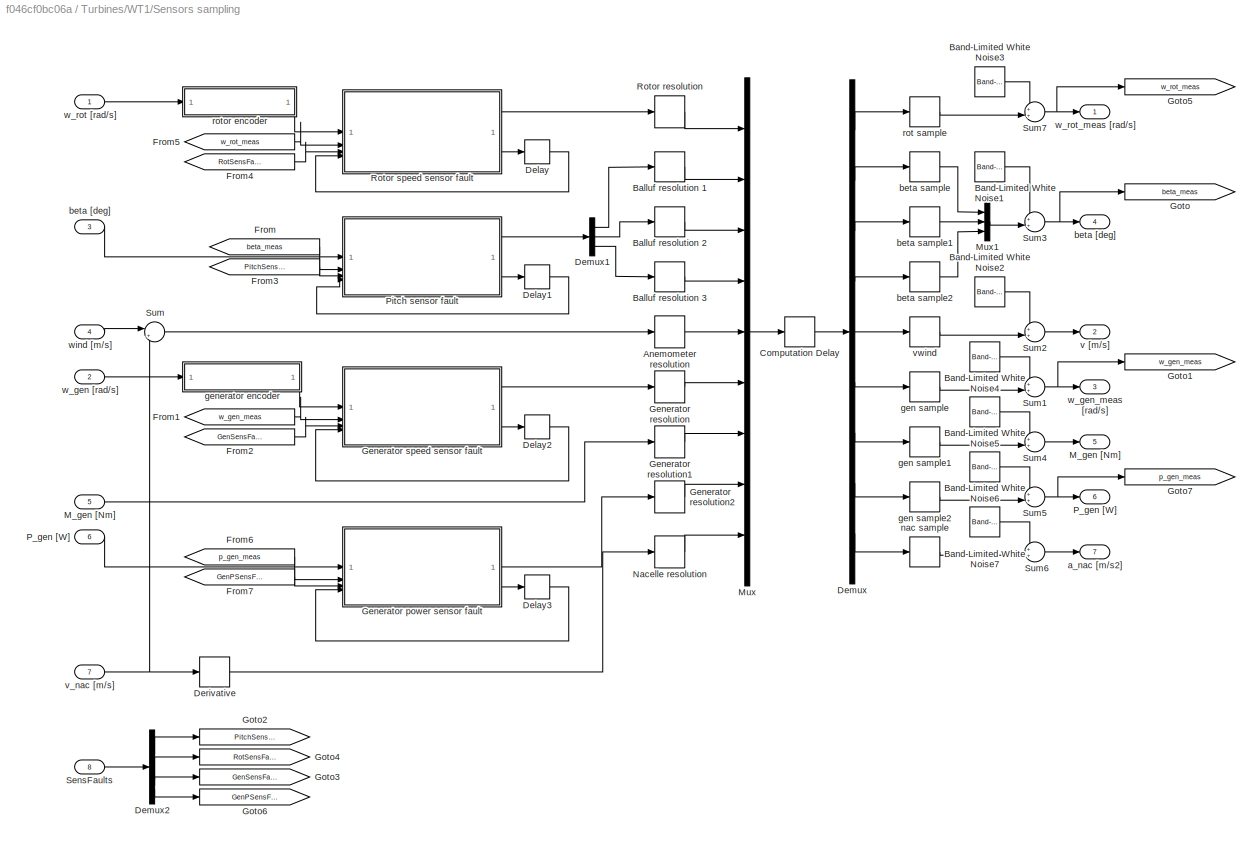
BLOCK [SubSystem] Turbines/WT1/Sensors sampling
BLOCK [Quantizer] Turbines/WT1/Sensors sampling/Anemometer resolution
  QuantizationInterval = wt.meas.aneres
BLOCK [Quantizer] Turbines/WT1/Sensors sampling/Balluf resolution 1
  QuantizationInterval = wt.meas.pitchres
BLOCK [Quantizer] Turbines/WT1/Sensors sampling/Balluf resolution 2
  QuantizationInterval = wt.meas.pitchres
BLOCK [Quantizer] Turbines/WT1/Sensors sampling/Balluf resolution 3
  QuantizationInterval = wt.meas.pitchres
BLOCK [Reference] Turbines/WT1/Sensors sampling/Band-Limited White Noise1  REF=simulink/Sources/Band-Limited
White Noise
  SourceBlock = simulink/Sources/Band-Limited\nWhite Noise
  SourceType = Band-Limited White Noise.
BLOCK [Reference] Turbines/WT1/Sensors sampling/Band-Limited White Noise2  REF=simulink/Sources/Band-Limited
White Noise
  SourceBlock = simulink/Sources/Band-Limited\nWhite Noise
  SourceType = Band-Limited White Noise.
BLOCK [Reference] Turbines/WT1/Sensors sampling/Band-Limited White Noise3  REF=simulink/Sources/Band-Limited
White Noise
  SourceBlock = simulink/Sources/Band-Limited\nWhite Noise
  SourceType = Band-Limited White Noise.
BLOCK [Reference] Turbines/WT1/Sensors sampling/Band-Limited White Noise4  REF=simulink/Sources/Band-Limited
White Noise
  SourceBlock = simulink/Sources/Band-Limited\nWhite Noise
  SourceType = Band-Limited White Noise.
BLOCK [Reference] Turbines/WT1/Sensors sampling/Band-Limited White Noise5  REF=simulink/Sources/Band-Limited
White Noise
  SourceBlock = simulink/Sources/Band-Limited\nWhite Noise
  SourceType = Band-Limited White Noise.
BLOCK [Reference] Turbines/WT1/Sensors sampling/Band-Limited White Noise6  REF=simulink/Sources/Band-Limited
White Noise
  SourceBlock = simulink/Sources/Band-Limited\nWhite Noise
  SourceType = Band-Limited White Noise.
BLOCK [Reference] Turbines/WT1/Sensors sampling/Band-Limited White Noise7  REF=simulink/Sources/Band-Limited
White Noise
  SourceBlock = simulink/Sources/Band-Limited\nWhite Noise
  SourceType = Band-Limited White Noise.
BLOCK [TransportDelay] Turbines/WT1/Sensors sampling/Computation Delay
  DelayTime = wt.meas.delay
  InitialOutput = [wt.rotor.ini wt.pitch.ini wt.pitch.ini wt.pitch.ini 0 wt.gen.ini 0 0 0]
BLOCK [Delay] Turbines/WT1/Sensors sampling/Delay
  DelayLength = 1
  InitialCondition = 0
  InputPortMap = u0
BLOCK [Delay] Turbines/WT1/Sensors sampling/Delay1
  DelayLength = 1
  InitialCondition = 0
  InputPortMap = u0
BLOCK [Delay] Turbines/WT1/Sensors sampling/Delay2
  DelayLength = 1
  InitialCondition = 0
  InputPortMap = u0
BLOCK [Delay] Turbines/WT1/Sensors sampling/Delay3
  DelayLength = 1
  InitialCondition = 0
  InputPortMap = u0
BLOCK [Demux] Turbines/WT1/Sensors sampling/Demux
  Outputs = 9
BLOCK [Demux] Turbines/WT1/Sensors sampling/Demux1
  Outputs = 3
BLOCK [Demux] Turbines/WT1/Sensors sampling/Demux2
BLOCK [Derivative] Turbines/WT1/Sensors sampling/Derivative
BLOCK [From] Turbines/WT1/Sensors sampling/From
  GotoTag = beta_meas
BLOCK [From] Turbines/WT1/Sensors sampling/From1
  GotoTag = w_gen_meas
BLOCK [From] Turbines/WT1/Sensors sampling/From2
  GotoTag = GenSensFault
BLOCK [From] Turbines/WT1/Sensors sampling/From3
  GotoTag = PitchSensFault
BLOCK [From] Turbines/WT1/Sensors sampling/From4
  GotoTag = RotSensFault
BLOCK [From] Turbines/WT1/Sensors sampling/From5
  GotoTag = w_rot_meas
BLOCK [From] Turbines/WT1/Sensors sampling/From6
  GotoTag = p_gen_meas
BLOCK [From] Turbines/WT1/Sensors sampling/From7
  GotoTag = GenPSensFault
BLOCK [SubSystem] Turbines/WT1/Sensors sampling/Generator power sensor fault
  ErrorFcn = Stateflow.Translate.translate
  PermitHierarchicalResolution = ExplicitOnly
  SFBlockType = MATLAB Function
  TreatAsAtomicUnit = on
BLOCK [Demux] Turbines/WT1/Sensors sampling/Generator power sensor fault/ Demux 
  Outputs = 1
BLOCK [S-Function] Turbines/WT1/Sensors sampling/Generator power sensor fault/ SFunction 
  EnableBusSupport = on
  FunctionName = sf_sfun
  Parameters = faultOptions
  PortCounts = [4 3]
  SFcnIsStateOwnerBlock = off
  SFunctionDeploymentMode = off
  Tag = Stateflow S-Function 20
BLOCK [Terminator] Turbines/WT1/Sensors sampling/Generator power sensor fault/ Terminator 
BLOCK [Inport] Turbines/WT1/Sensors sampling/Generator power sensor fault/GenPSenFault
  Port = 3
BLOCK [Inport] Turbines/WT1/Sensors sampling/Generator power sensor fault/drift_aux_in
  Port = 4
BLOCK [Outport] Turbines/WT1/Sensors sampling/Generator power sensor fault/drift_aux_out
  Port = 2
BLOCK [Outport] Turbines/WT1/Sensors sampling/Generator power sensor fault/p_gen_meas
BLOCK [Inport] Turbines/WT1/Sensors sampling/Generator power sensor fault/p_gen_prev
  Port = 2
BLOCK [Inport] Turbines/WT1/Sensors sampling/Generator power sensor fault/p_gen_real
BLOCK [Quantizer] Turbines/WT1/Sensors sampling/Generator resolution
  QuantizationInterval = wt.meas.genres
BLOCK [Quantizer] Turbines/WT1/Sensors sampling/Generator resolution1
  QuantizationInterval = wt.meas.genres
BLOCK [Quantizer] Turbines/WT1/Sensors sampling/Generator resolution2
  QuantizationInterval = wt.meas.genres
BLOCK [SubSystem] Turbines/WT1/Sensors sampling/Generator speed sensor fault
  ErrorFcn = Stateflow.Translate.translate
  PermitHierarchicalResolution = ExplicitOnly
  SFBlockType = MATLAB Function
  TreatAsAtomicUnit = on
BLOCK [Demux] Turbines/WT1/Sensors sampling/Generator speed sensor fault/ Demux 
  Outputs = 1
BLOCK [S-Function] Turbines/WT1/Sensors sampling/Generator speed sensor fault/ SFunction 
  EnableBusSupport = on
  FunctionName = sf_sfun
  Parameters = faultOptions
  PortCounts = [4 3]
  SFcnIsStateOwnerBlock = off
  SFunctionDeploymentMode = off
  Tag = Stateflow S-Function 23
BLOCK [Terminator] Turbines/WT1/Sensors sampling/Generator speed sensor fault/ Terminator 
BLOCK [Inport] Turbines/WT1/Sensors sampling/Generator speed sensor fault/GenSenFault
  Port = 3
BLOCK [Inport] Turbines/WT1/Sensors sampling/Generator speed sensor fault/drift_aux_in
  Port = 4
BLOCK [Outport] Turbines/WT1/Sensors sampling/Generator speed sensor fault/drift_aux_out
  Port = 2
BLOCK [Outport] Turbines/WT1/Sensors sampling/Generator speed sensor fault/w_gen_meas
BLOCK [Inport] Turbines/WT1/Sensors sampling/Generator speed sensor fault/w_gen_prev
  Port = 2
BLOCK [Inport] Turbines/WT1/Sensors sampling/Generator speed sensor fault/w_gen_real
BLOCK [Goto] Turbines/WT1/Sensors sampling/Goto
  GotoTag = beta_meas
BLOCK [Goto] Turbines/WT1/Sensors sampling/Goto1
  GotoTag = w_gen_meas
BLOCK [Goto] Turbines/WT1/Sensors sampling/Goto2
  GotoTag = PitchSensFault
BLOCK [Goto] Turbines/WT1/Sensors sampling/Goto3
  GotoTag = GenSensFault
BLOCK [Goto] Turbines/WT1/Sensors sampling/Goto4
  GotoTag = RotSensFault
BLOCK [Goto] Turbines/WT1/Sensors sampling/Goto5
  GotoTag = w_rot_meas
BLOCK [Goto] Turbines/WT1/Sensors sampling/Goto6
  GotoTag = GenPSensFault
BLOCK [Goto] Turbines/WT1/Sensors sampling/Goto7
  GotoTag = p_gen_meas
BLOCK [Outport] Turbines/WT1/Sensors sampling/M_gen [Nm]
  InitialOutput = 0
  Port = 5
BLOCK [Inport] Turbines/WT1/Sensors sampling/M_gen [Nm] 
  Port = 5
BLOCK [Mux] Turbines/WT1/Sensors sampling/Mux
  DisplayOption = bar
  Inputs = 9
BLOCK [Mux] Turbines/WT1/Sensors sampling/Mux1
  DisplayOption = bar
  Inputs = 3
BLOCK [Quantizer] Turbines/WT1/Sensors sampling/Nacelle resolution
  QuantizationInterval = wt.meas.nacres
BLOCK [Outport] Turbines/WT1/Sensors sampling/P_gen [W]
  InitialOutput = 0
  Port = 6
BLOCK [Inport] Turbines/WT1/Sensors sampling/P_gen [W] 
  Port = 6
BLOCK [SubSystem] Turbines/WT1/Sensors sampling/Pitch sensor fault
  ErrorFcn = Stateflow.Translate.translate
  PermitHierarchicalResolution = ExplicitOnly
  SFBlockType = MATLAB Function
  TreatAsAtomicUnit = on
BLOCK [Demux] Turbines/WT1/Sensors sampling/Pitch sensor fault/ Demux 
  Outputs = 1
BLOCK [S-Function] Turbines/WT1/Sensors sampling/Pitch sensor fault/ SFunction 
  EnableBusSupport = on
  FunctionName = sf_sfun
  Parameters = faultOptions
  PortCounts = [4 3]
  SFcnIsStateOwnerBlock = off
  SFunctionDeploymentMode = off
  Tag = Stateflow S-Function 24
BLOCK [Terminator] Turbines/WT1/Sensors sampling/Pitch sensor fault/ Terminator 
BLOCK [Inport] Turbines/WT1/Sensors sampling/Pitch sensor fault/PitchSenFault
  Port = 3
BLOCK [Outport] Turbines/WT1/Sensors sampling/Pitch sensor fault/beta_meas
BLOCK [Inport] Turbines/WT1/Sensors sampling/Pitch sensor fault/beta_prev
  Port = 2
BLOCK [Inport] Turbines/WT1/Sensors sampling/Pitch sensor fault/beta_real
BLOCK [Inport] Turbines/WT1/Sensors sampling/Pitch sensor fault/drift_aux_in
  Port = 4
BLOCK [Outport] Turbines/WT1/Sensors sampling/Pitch sensor fault/drift_aux_out
  Port = 2
BLOCK [Quantizer] Turbines/WT1/Sensors sampling/Rotor resolution
  QuantizationInterval = wt.meas.rotres
BLOCK [SubSystem] Turbines/WT1/Sensors sampling/Rotor speed sensor fault
  ErrorFcn = Stateflow.Translate.translate
  PermitHierarchicalResolution = ExplicitOnly
  SFBlockType = MATLAB Function
  TreatAsAtomicUnit = on
BLOCK [Demux] Turbines/WT1/Sensors sampling/Rotor speed sensor fault/ Demux 
  Outputs = 1
BLOCK [S-Function] Turbines/WT1/Sensors sampling/Rotor speed sensor fault/ SFunction 
  EnableBusSupport = on
  FunctionName = sf_sfun
  Parameters = faultOptions
  PortCounts = [4 3]
  SFcnIsStateOwnerBlock = off
  SFunctionDeploymentMode = off
  Tag = Stateflow S-Function 25
BLOCK [Terminator] Turbines/WT1/Sensors sampling/Rotor speed sensor fault/ Terminator 
BLOCK [Inport] Turbines/WT1/Sensors sampling/Rotor speed sensor fault/RotSenFault
  Port = 3
BLOCK [Inport] Turbines/WT1/Sensors sampling/Rotor speed sensor fault/drift_aux_in
  Port = 4
BLOCK [Outport] Turbines/WT1/Sensors sampling/Rotor speed sensor fault/drift_aux_out
  Port = 2
BLOCK [Outport] Turbines/WT1/Sensors sampling/Rotor speed sensor fault/w_rot_meas
BLOCK [Inport] Turbines/WT1/Sensors sampling/Rotor speed sensor fault/w_rot_prev
  Port = 2
BLOCK [Inport] Turbines/WT1/Sensors sampling/Rotor speed sensor fault/w_rot_real
BLOCK [Inport] Turbines/WT1/Sensors sampling/SensFaults
  Port = 8
BLOCK [Sum] Turbines/WT1/Sensors sampling/Sum
  Inputs = |+-
BLOCK [Sum] Turbines/WT1/Sensors sampling/Sum1
  Inputs = ++|
BLOCK [Sum] Turbines/WT1/Sensors sampling/Sum2
  Inputs = ++|
BLOCK [Sum] Turbines/WT1/Sensors sampling/Sum3
  Inputs = ++|
BLOCK [Sum] Turbines/WT1/Sensors sampling/Sum4
  Inputs = ++|
BLOCK [Sum] Turbines/WT1/Sensors sampling/Sum5
  Inputs = ++|
BLOCK [Sum] Turbines/WT1/Sensors sampling/Sum6
  Inputs = ++|
BLOCK [Sum] Turbines/WT1/Sensors sampling/Sum7
  Inputs = ++|
BLOCK [Outport] Turbines/WT1/Sensors sampling/a_nac [m//s2]
  InitialOutput = 0
  Port = 7
BLOCK [Outport] Turbines/WT1/Sensors sampling/beta [deg]
  InitialOutput = 0
  Port = 4
BLOCK [Inport] Turbines/WT1/Sensors sampling/beta [deg] 
  Port = 3
BLOCK [ZeroOrderHold] Turbines/WT1/Sensors sampling/beta sample
  SampleTime = wt.meas.Ts
BLOCK [ZeroOrderHold] Turbines/WT1/Sensors sampling/beta sample1
  SampleTime = wt.meas.Ts
BLOCK [ZeroOrderHold] Turbines/WT1/Sensors sampling/beta sample2
  SampleTime = wt.meas.Ts
BLOCK [ZeroOrderHold] Turbines/WT1/Sensors sampling/gen sample
  SampleTime = wt.meas.Ts
BLOCK [ZeroOrderHold] Turbines/WT1/Sensors sampling/gen sample1
  SampleTime = wt.meas.Ts
BLOCK [ZeroOrderHold] Turbines/WT1/Sensors sampling/gen sample2
  SampleTime = wt.meas.Ts
BLOCK [SubSystem] Turbines/WT1/Sensors sampling/generator encoder
BLOCK [Sum] Turbines/WT1/Sensors sampling/generator encoder/Sum
  Inputs = -+|
BLOCK [Integrator] Turbines/WT1/Sensors sampling/generator encoder/gen Integrator
  InitialCondition = wt.gen.ini
  NameLocation = top
BLOCK [Gain] Turbines/WT1/Sensors sampling/generator encoder/gen sensor time constant
  Gain = 1/wt.meas.gentau
BLOCK [Inport] Turbines/WT1/Sensors sampling/generator encoder/w_gen_in
BLOCK [Outport] Turbines/WT1/Sensors sampling/generator encoder/w_gen_out
BLOCK [ZeroOrderHold] Turbines/WT1/Sensors sampling/nac sample
  SampleTime = wt.meas.Ts
BLOCK [ZeroOrderHold] Turbines/WT1/Sensors sampling/rot sample
  SampleTime = wt.meas.Ts
BLOCK [SubSystem] Turbines/WT1/Sensors sampling/rotor encoder
BLOCK [Sum] Turbines/WT1/Sensors sampling/rotor encoder/Sum1
  Inputs = |+-
BLOCK [Integrator] Turbines/WT1/Sensors sampling/rotor encoder/gen Integrator1
  InitialCondition = wt.rotor.ini
BLOCK [Gain] Turbines/WT1/Sensors sampling/rotor encoder/gen sensor time constant1
  Gain = 1/wt.meas.rottau
BLOCK [Inport] Turbines/WT1/Sensors sampling/rotor encoder/w_rot_in
BLOCK [Outport] Turbines/WT1/Sensors sampling/rotor encoder/w_rot_out
BLOCK [Outport] Turbines/WT1/Sensors sampling/v [m//s]
  InitialOutput = 0
  Port = 2
BLOCK [Inport] Turbines/WT1/Sensors sampling/v_nac [m//s] 
  Port = 7
BLOCK [ZeroOrderHold] Turbines/WT1/Sensors sampling/vwind
  SampleTime = wt.meas.Ts
BLOCK [Inport] Turbines/WT1/Sensors sampling/w_gen [rad//s]
  Port = 2
BLOCK [Outport] Turbines/WT1/Sensors sampling/w_gen_meas [rad//s]
  InitialOutput = 0
  Port = 3
BLOCK [Inport] Turbines/WT1/Sensors sampling/w_rot [rad//s] 
BLOCK [Outport] Turbines/WT1/Sensors sampling/w_rot_meas [rad//s]
  InitialOutput = 0
BLOCK [Inport] Turbines/WT1/Sensors sampling/wind [m//s]
  Port = 4
BLOCK [Sum] Turbines/WT1/Sum2
  InputSameDT = on
  Inputs = |++
  NameLocation = right
  OutDataTypeStr = Inherit: Same as first input
  SaturateOnIntegerOverflow = on
BLOCK [Sum] Turbines/WT1/Sum3
  InputSameDT = on
  Inputs = |+-
  OutDataTypeStr = Inherit: Same as first input
  SaturateOnIntegerOverflow = on
BLOCK [Terminator] Turbines/WT1/Terminator
BLOCK [SubSystem] Turbines/WT1/Tower deflection 
BLOCK [Inport] Turbines/WT1/Tower deflection /F_t [N]
BLOCK [Gain] Turbines/WT1/Tower deflection /F_t*h
  Gain = wt.tower.height
  OutDataTypeStr = Inherit: Same as input
  ParamDataTypeStr = Inherit: Same as input
  SaturateOnIntegerOverflow = on
BLOCK [Outport] Turbines/WT1/Tower deflection /M_tow [Nm]
  Port = 2
BLOCK [SubSystem] Turbines/WT1/Tower deflection /Tower1
BLOCK [Demux] Turbines/WT1/Tower deflection /Tower1/Demux1
  Outputs = 2
BLOCK [Inport] Turbines/WT1/Tower deflection /Tower1/FT [Nm]
BLOCK [Outport] Turbines/WT1/Tower deflection /Tower1/F_tow [N]
  InitialOutput = 0
  Port = 2
BLOCK [StateSpace] Turbines/WT1/Tower deflection /Tower1/Tower
  A = A
  B = B
  C = C
  D = D
  InitialCondition = zeros(2,1)
BLOCK [Outport] Turbines/WT1/Tower deflection /Tower1/vnac [m//s]
  InitialOutput = 0
BLOCK [Outport] Turbines/WT1/Tower deflection /v_nac [m//s]
BLOCK [Outport] Turbines/WT1/V_meas [m//s]
  Port = 4
BLOCK [Outport] Turbines/WT1/a_nac [m//s]
  Port = 9
BLOCK [Outport] Turbines/WT1/aux
  Port = 11
BLOCK [Outport] Turbines/WT1/beta [deg]
  Port = 5
BLOCK [Inport] Turbines/WT1/fault_signal
  Port = 5
BLOCK [Outport] Turbines/WT1/t_gen_ref [Nm]
  Port = 10
BLOCK [Inport] Turbines/WT1/v_wnd_nac [m//s]
  Port = 3
BLOCK [Inport] Turbines/WT1/v_wnd_rot [m//s]
  Port = 2
BLOCK [Outport] Turbines/WT1/w_gen_meas [rad//s]
  Port = 3
BLOCK [Outport] Turbines/WT1/w_rot_meas [rad//s]
  Port = 6
BLOCK [SubSystem] Turbines/WT2
  AncestorBlock = libturbines/Floating NREL5MW faulty
  NameLocation = top
  UserDataPersistent = on
BLOCK [SubSystem] Turbines/WT2/Aerodynamics
BLOCK [SubSystem] Turbines/WT2/Aerodynamics/Blade 1
BLOCK [SubSystem] Turbines/WT2/Aerodynamics/Blade 1/C_P & C_T tables
BLOCK [Outport] Turbines/WT2/Aerodynamics/Blade 1/C_P & C_T tables/C_P
  Port = 2
BLOCK [Lookup2D] Turbines/WT2/Aerodynamics/Blade 1/C_P & C_T tables/C_P table 
  ColumnIndex = wt.cp.tsr
  LookUpMeth = Interpolation-Use End Values
  RowIndex = wt.cp.beta
  Table = wt.cp.table
BLOCK [Outport] Turbines/WT2/Aerodynamics/Blade 1/C_P & C_T tables/C_T
BLOCK [Lookup2D] Turbines/WT2/Aerodynamics/Blade 1/C_P & C_T tables/C_T table
  ColumnIndex = wt.ct.tsr
  LookUpMeth = Interpolation-Use End Values
  RowIndex = wt.ct.beta
  Table = wt.ct.table
BLOCK [Inport] Turbines/WT2/Aerodynamics/Blade 1/C_P & C_T tables/beta
BLOCK [Inport] Turbines/WT2/Aerodynamics/Blade 1/C_P & C_T tables/lambda
  Port = 2
BLOCK [Outport] Turbines/WT2/Aerodynamics/Blade 1/C_T
  Port = 2
BLOCK [Outport] Turbines/WT2/Aerodynamics/Blade 1/F_t [N]
BLOCK [Gain] Turbines/WT2/Aerodynamics/Blade 1/Gain
  Gain = 1/3
BLOCK [Gain] Turbines/WT2/Aerodynamics/Blade 1/Gain1
  Gain = 1/3
BLOCK [Gain] Turbines/WT2/Aerodynamics/Blade 1/Gain2
  Gain = 1/3
BLOCK [Outport] Turbines/WT2/Aerodynamics/Blade 1/M_rot [Nm]
  Port = 3
BLOCK [Math] Turbines/WT2/Aerodynamics/Blade 1/Math Function
  Operator = square
  SignedPower = on
BLOCK [Product] Turbines/WT2/Aerodynamics/Blade 1/Product
  InputSameDT = on
  OutDataTypeStr = Inherit: Same as first input
  SaturateOnIntegerOverflow = on
BLOCK [Product] Turbines/WT2/Aerodynamics/Blade 1/Product1
  InputSameDT = on
  Inputs = **/
  OutDataTypeStr = Inherit: Same as first input
  SaturateOnIntegerOverflow = on
BLOCK [Product] Turbines/WT2/Aerodynamics/Blade 1/Product2
  InputSameDT = on
  OutDataTypeStr = Inherit: Same as first input
  SaturateOnIntegerOverflow = on
BLOCK [Product] Turbines/WT2/Aerodynamics/Blade 1/Product3
  InputSameDT = on
  Inputs = /*
  OutDataTypeStr = Inherit: Same as first input
  SaturateOnIntegerOverflow = on
BLOCK [Inport] Turbines/WT2/Aerodynamics/Blade 1/beta [deg]
  Port = 2
BLOCK [Gain] Turbines/WT2/Aerodynamics/Blade 1/rho//2*A
  Gain = env.rho*.5* pi * wt.rotor.radius^2
  OutDataTypeStr = Inherit: Same as input
  ParamDataTypeStr = Inherit: Same as input
  SaturateOnIntegerOverflow = on
BLOCK [Gain] Turbines/WT2/Aerodynamics/Blade 1/rotor radius
  Gain = wt.rotor.radius
  OutDataTypeStr = Inherit: Same as input
  ParamDataTypeStr = Inherit: Same as input
  SaturateOnIntegerOverflow = on
BLOCK [Inport] Turbines/WT2/Aerodynamics/Blade 1/v_rot [m//s]
BLOCK [Inport] Turbines/WT2/Aerodynamics/Blade 1/w_rot [rad//s]
  Port = 3
BLOCK [SubSystem] Turbines/WT2/Aerodynamics/Blade 2
  AncestorBlock = libturbines/Floating faulty NREL5MW1/Aerodynamics/Blade 1
BLOCK [SubSystem] Turbines/WT2/Aerodynamics/Blade 2/C_P & C_T tables
BLOCK [Outport] Turbines/WT2/Aerodynamics/Blade 2/C_P & C_T tables/C_P
  Port = 2
BLOCK [Lookup2D] Turbines/WT2/Aerodynamics/Blade 2/C_P & C_T tables/C_P table 
  ColumnIndex = wt.cp.tsr
  LookUpMeth = Interpolation-Use End Values
  RowIndex = wt.cp.beta
  Table = wt.cp.table
BLOCK [Outport] Turbines/WT2/Aerodynamics/Blade 2/C_P & C_T tables/C_T
BLOCK [Lookup2D] Turbines/WT2/Aerodynamics/Blade 2/C_P & C_T tables/C_T table
  ColumnIndex = wt.ct.tsr
  LookUpMeth = Interpolation-Use End Values
  RowIndex = wt.ct.beta
  Table = wt.ct.table
BLOCK [Inport] Turbines/WT2/Aerodynamics/Blade 2/C_P & C_T tables/beta
BLOCK [Inport] Turbines/WT2/Aerodynamics/Blade 2/C_P & C_T tables/lambda
  Port = 2
BLOCK [Outport] Turbines/WT2/Aerodynamics/Blade 2/C_T
  Port = 2
BLOCK [Outport] Turbines/WT2/Aerodynamics/Blade 2/F_t [N]
BLOCK [Gain] Turbines/WT2/Aerodynamics/Blade 2/Gain
  Gain = 1/3
BLOCK [Gain] Turbines/WT2/Aerodynamics/Blade 2/Gain1
  Gain = 1/3
BLOCK [Gain] Turbines/WT2/Aerodynamics/Blade 2/Gain2
  Gain = 1/3
BLOCK [Outport] Turbines/WT2/Aerodynamics/Blade 2/M_rot [Nm]
  Port = 3
BLOCK [Math] Turbines/WT2/Aerodynamics/Blade 2/Math Function
  Operator = square
  SignedPower = on
BLOCK [Product] Turbines/WT2/Aerodynamics/Blade 2/Product
  InputSameDT = on
  OutDataTypeStr = Inherit: Same as first input
  SaturateOnIntegerOverflow = on
BLOCK [Product] Turbines/WT2/Aerodynamics/Blade 2/Product1
  InputSameDT = on
  Inputs = **/
  OutDataTypeStr = Inherit: Same as first input
  SaturateOnIntegerOverflow = on
BLOCK [Product] Turbines/WT2/Aerodynamics/Blade 2/Product2
  InputSameDT = on
  OutDataTypeStr = Inherit: Same as first input
  SaturateOnIntegerOverflow = on
BLOCK [Product] Turbines/WT2/Aerodynamics/Blade 2/Product3
  InputSameDT = on
  Inputs = /*
  OutDataTypeStr = Inherit: Same as first input
  SaturateOnIntegerOverflow = on
BLOCK [Inport] Turbines/WT2/Aerodynamics/Blade 2/beta [deg]
  Port = 2
BLOCK [Gain] Turbines/WT2/Aerodynamics/Blade 2/rho//2*A
  Gain = env.rho*.5* pi * wt.rotor.radius^2
  OutDataTypeStr = Inherit: Same as input
  ParamDataTypeStr = Inherit: Same as input
  SaturateOnIntegerOverflow = on
BLOCK [Gain] Turbines/WT2/Aerodynamics/Blade 2/rotor radius
  Gain = wt.rotor.radius
  OutDataTypeStr = Inherit: Same as input
  ParamDataTypeStr = Inherit: Same as input
  SaturateOnIntegerOverflow = on
BLOCK [Inport] Turbines/WT2/Aerodynamics/Blade 2/v_rot [m//s]
BLOCK [Inport] Turbines/WT2/Aerodynamics/Blade 2/w_rot [rad//s]
  Port = 3
BLOCK [SubSystem] Turbines/WT2/Aerodynamics/Blade 3
  AncestorBlock = libturbines/Floating faulty NREL5MW1/Aerodynamics/Blade 1
BLOCK [SubSystem] Turbines/WT2/Aerodynamics/Blade 3/C_P & C_T tables
BLOCK [Outport] Turbines/WT2/Aerodynamics/Blade 3/C_P & C_T tables/C_P
  Port = 2
BLOCK [Lookup2D] Turbines/WT2/Aerodynamics/Blade 3/C_P & C_T tables/C_P table 
  ColumnIndex = wt.cp.tsr
  LookUpMeth = Interpolation-Use End Values
  RowIndex = wt.cp.beta
  Table = wt.cp.table
BLOCK [Outport] Turbines/WT2/Aerodynamics/Blade 3/C_P & C_T tables/C_T
BLOCK [Lookup2D] Turbines/WT2/Aerodynamics/Blade 3/C_P & C_T tables/C_T table
  ColumnIndex = wt.ct.tsr
  LookUpMeth = Interpolation-Use End Values
  RowIndex = wt.ct.beta
  Table = wt.ct.table
BLOCK [Inport] Turbines/WT2/Aerodynamics/Blade 3/C_P & C_T tables/beta
BLOCK [Inport] Turbines/WT2/Aerodynamics/Blade 3/C_P & C_T tables/lambda
  Port = 2
BLOCK [Outport] Turbines/WT2/Aerodynamics/Blade 3/C_T
  Port = 2
BLOCK [Outport] Turbines/WT2/Aerodynamics/Blade 3/F_t [N]
BLOCK [Gain] Turbines/WT2/Aerodynamics/Blade 3/Gain
  Gain = 1/3
BLOCK [Gain] Turbines/WT2/Aerodynamics/Blade 3/Gain1
  Gain = 1/3
BLOCK [Gain] Turbines/WT2/Aerodynamics/Blade 3/Gain2
  Gain = 1/3
BLOCK [Outport] Turbines/WT2/Aerodynamics/Blade 3/M_rot [Nm]
  Port = 3
BLOCK [Math] Turbines/WT2/Aerodynamics/Blade 3/Math Function
  Operator = square
  SignedPower = on
BLOCK [Product] Turbines/WT2/Aerodynamics/Blade 3/Product
  InputSameDT = on
  OutDataTypeStr = Inherit: Same as first input
  SaturateOnIntegerOverflow = on
BLOCK [Product] Turbines/WT2/Aerodynamics/Blade 3/Product1
  InputSameDT = on
  Inputs = **/
  OutDataTypeStr = Inherit: Same as first input
  SaturateOnIntegerOverflow = on
BLOCK [Product] Turbines/WT2/Aerodynamics/Blade 3/Product2
  InputSameDT = on
  OutDataTypeStr = Inherit: Same as first input
  SaturateOnIntegerOverflow = on
BLOCK [Product] Turbines/WT2/Aerodynamics/Blade 3/Product3
  InputSameDT = on
  Inputs = /*
  OutDataTypeStr = Inherit: Same as first input
  SaturateOnIntegerOverflow = on
BLOCK [Inport] Turbines/WT2/Aerodynamics/Blade 3/beta [deg]
  Port = 2
BLOCK [Gain] Turbines/WT2/Aerodynamics/Blade 3/rho//2*A
  Gain = env.rho*.5* pi * wt.rotor.radius^2
  OutDataTypeStr = Inherit: Same as input
  ParamDataTypeStr = Inherit: Same as input
  SaturateOnIntegerOverflow = on
BLOCK [Gain] Turbines/WT2/Aerodynamics/Blade 3/rotor radius
  Gain = wt.rotor.radius
  OutDataTypeStr = Inherit: Same as input
  ParamDataTypeStr = Inherit: Same as input
  SaturateOnIntegerOverflow = on
BLOCK [Inport] Turbines/WT2/Aerodynamics/Blade 3/v_rot [m//s]
BLOCK [Inport] Turbines/WT2/Aerodynamics/Blade 3/w_rot [rad//s]
  Port = 3
BLOCK [Outport] Turbines/WT2/Aerodynamics/C_T
  Port = 3
BLOCK [Demux] Turbines/WT2/Aerodynamics/Demux
  Outputs = 3
BLOCK [Outport] Turbines/WT2/Aerodynamics/F_t [N]
  Port = 2
BLOCK [Outport] Turbines/WT2/Aerodynamics/M_rot [Nm]
BLOCK [Sum] Turbines/WT2/Aerodynamics/Sum
  Inputs = +++
BLOCK [Sum] Turbines/WT2/Aerodynamics/Sum1
  Inputs = +++
BLOCK [Sum] Turbines/WT2/Aerodynamics/Sum2
  Inputs = +++
BLOCK [Inport] Turbines/WT2/Aerodynamics/beta [deg]
  Port = 2
BLOCK [Inport] Turbines/WT2/Aerodynamics/v_rot [m//s]
  Port = 3
BLOCK [Inport] Turbines/WT2/Aerodynamics/w_rot [rad//s]
BLOCK [Outport] Turbines/WT2/C_T
  Port = 2
BLOCK [Constant] Turbines/WT2/Constant
  Value = 0
BLOCK [SubSystem] Turbines/WT2/Controller
BLOCK [Gain] Turbines/WT2/Controller/Gain
  Gain = [1 0 0]
  Multiplication = Matrix(K*u) (u vector)
  NameLocation = top
BLOCK [Gain] Turbines/WT2/Controller/Generator efficiency compensation
  Gain = 1/wt.ctrl.gen.effeciency
BLOCK [Saturate] Turbines/WT2/Controller/Limit power to rated
  LowerLimit = 0
  UpperLimit = wt.ctrl.p_rated
BLOCK [DiscreteStateSpace] Turbines/WT2/Controller/Measurement filter (low pass)
  A = wt.ctrl.alpha
  B = 1-wt.ctrl.alpha
  C = wt.ctrl.alpha
  D = 1-wt.ctrl.alpha
  InitialCondition = wt.ctrl.gen.ini
  SampleTime = wt.ctrl.Ts
BLOCK [Inport] Turbines/WT2/Controller/P_dem [W]
BLOCK [SubSystem] Turbines/WT2/Controller/Pitch controller
  TreatAsAtomicUnit = on
BLOCK [SubSystem] Turbines/WT2/Controller/Pitch controller/Blade 1 controller
BLOCK [DiscreteIntegrator] Turbines/WT2/Controller/Pitch controller/Blade 1 controller/Discrete-Time Integrator
  ICPrevOutput = DiscIntNeverNeededParam
  ICPrevScaledInput = DiscIntNeverNeededParam
  LimitOutput = on
  LowerSaturationLimit = wt.ctrl.pitch.llim
  SampleTime = wt.ctrl.Ts
  UpperSaturationLimit = wt.ctrl.pitch.ulim*pi/180
BLOCK [Lookup2D] Turbines/WT2/Controller/Pitch controller/Blade 1 controller/Gain correction
  ColumnIndex = wt.ctrl.pitch.beta
  InputSameDT = off
  LookUpMeth = Interpolation-Use End Values
  RowIndex = wt.ctrl.pitch.pwr
  SaturateOnIntegerOverflow = off
  Table = wt.ctrl.pitch.gs
BLOCK [Gain] Turbines/WT2/Controller/Pitch controller/Blade 1 controller/Integral gain
  Gain = (1-0.999*noiseFlag)*wt.ctrl.pitch.Igain
BLOCK [Product] Turbines/WT2/Controller/Pitch controller/Blade 1 controller/Integral schedule
  Inputs = */
  RndMeth = Zero
BLOCK [Inport] Turbines/WT2/Controller/Pitch controller/Blade 1 controller/P_dem
  Port = 2
BLOCK [Product] Turbines/WT2/Controller/Pitch controller/Blade 1 controller/Prop schedule
  Inputs = */
  RndMeth = Zero
BLOCK [Gain] Turbines/WT2/Controller/Pitch controller/Blade 1 controller/Proportional gain
  Gain = (1-0.3*noiseFlag)*wt.ctrl.pitch.Pgain
BLOCK [RateLimiter] Turbines/WT2/Controller/Pitch controller/Blade 1 controller/Rate Limiter
  FallingSlewLimit = -wt.ctrl.pitch.ratelim
  InitialCondition = wt.ctrl.pitch.ini
  RisingSlewLimit = wt.ctrl.pitch.ratelim
  SampleTimeMode = inherited
BLOCK [Saturate] Turbines/WT2/Controller/Pitch controller/Blade 1 controller/Saturation
  LowerLimit = 0
  UpperLimit = wt.ctrl.pitch.ulim
BLOCK [Sum] Turbines/WT2/Controller/Pitch controller/Blade 1 controller/Sum
  Inputs = ++|
BLOCK [Gain] Turbines/WT2/Controller/Pitch controller/Blade 1 controller/To degrees
  Gain = 180/pi
BLOCK [Inport] Turbines/WT2/Controller/Pitch controller/Blade 1 controller/beta_meas [deg]
  Port = 3
BLOCK [Outport] Turbines/WT2/Controller/Pitch controller/Blade 1 controller/beta_ref [deg]
BLOCK [Inport] Turbines/WT2/Controller/Pitch controller/Blade 1 controller/w_gen_diff
BLOCK [SubSystem] Turbines/WT2/Controller/Pitch controller/Blade 2 controller
BLOCK [DiscreteIntegrator] Turbines/WT2/Controller/Pitch controller/Blade 2 controller/Discrete-Time Integrator
  ICPrevOutput = DiscIntNeverNeededParam
  ICPrevScaledInput = DiscIntNeverNeededParam
  LimitOutput = on
  LowerSaturationLimit = wt.ctrl.pitch.llim
  SampleTime = wt.ctrl.Ts
  UpperSaturationLimit = wt.ctrl.pitch.ulim*pi/180
BLOCK [Lookup2D] Turbines/WT2/Controller/Pitch controller/Blade 2 controller/Gain correction
  ColumnIndex = wt.ctrl.pitch.beta
  InputSameDT = off
  LookUpMeth = Interpolation-Use End Values
  RowIndex = wt.ctrl.pitch.pwr
  SaturateOnIntegerOverflow = off
  Table = wt.ctrl.pitch.gs
BLOCK [Gain] Turbines/WT2/Controller/Pitch controller/Blade 2 controller/Integral gain
  Gain = (1-0.999*noiseFlag)*wt.ctrl.pitch.Igain
BLOCK [Product] Turbines/WT2/Controller/Pitch controller/Blade 2 controller/Integral schedule
  Inputs = */
  RndMeth = Zero
BLOCK [Inport] Turbines/WT2/Controller/Pitch controller/Blade 2 controller/P_dem
  Port = 2
BLOCK [Product] Turbines/WT2/Controller/Pitch controller/Blade 2 controller/Prop schedule
  Inputs = */
  RndMeth = Zero
BLOCK [Gain] Turbines/WT2/Controller/Pitch controller/Blade 2 controller/Proportional gain
  Gain = (1-0.3*noiseFlag)*wt.ctrl.pitch.Pgain
BLOCK [RateLimiter] Turbines/WT2/Controller/Pitch controller/Blade 2 controller/Rate Limiter
  FallingSlewLimit = -wt.ctrl.pitch.ratelim
  InitialCondition = wt.ctrl.pitch.ini
  RisingSlewLimit = wt.ctrl.pitch.ratelim
  SampleTimeMode = inherited
BLOCK [Saturate] Turbines/WT2/Controller/Pitch controller/Blade 2 controller/Saturation
  LowerLimit = 0
  UpperLimit = wt.ctrl.pitch.ulim
BLOCK [Sum] Turbines/WT2/Controller/Pitch controller/Blade 2 controller/Sum
  Inputs = ++|
BLOCK [Gain] Turbines/WT2/Controller/Pitch controller/Blade 2 controller/To degrees
  Gain = 180/pi
BLOCK [Inport] Turbines/WT2/Controller/Pitch controller/Blade 2 controller/beta_meas [deg]
  Port = 3
BLOCK [Outport] Turbines/WT2/Controller/Pitch controller/Blade 2 controller/beta_ref [deg]
BLOCK [Inport] Turbines/WT2/Controller/Pitch controller/Blade 2 controller/w_gen_diff
BLOCK [SubSystem] Turbines/WT2/Controller/Pitch controller/Blade 3 controller
BLOCK [DiscreteIntegrator] Turbines/WT2/Controller/Pitch controller/Blade 3 controller/Discrete-Time Integrator
  ICPrevOutput = DiscIntNeverNeededParam
  ICPrevScaledInput = DiscIntNeverNeededParam
  LimitOutput = on
  LowerSaturationLimit = wt.ctrl.pitch.llim
  SampleTime = wt.ctrl.Ts
  UpperSaturationLimit = wt.ctrl.pitch.ulim*pi/180
BLOCK [Lookup2D] Turbines/WT2/Controller/Pitch controller/Blade 3 controller/Gain correction
  ColumnIndex = wt.ctrl.pitch.beta
  InputSameDT = off
  LookUpMeth = Interpolation-Use End Values
  RowIndex = wt.ctrl.pitch.pwr
  SaturateOnIntegerOverflow = off
  Table = wt.ctrl.pitch.gs
BLOCK [Gain] Turbines/WT2/Controller/Pitch controller/Blade 3 controller/Integral gain
  Gain = (1-0.999*noiseFlag)*wt.ctrl.pitch.Igain
BLOCK [Product] Turbines/WT2/Controller/Pitch controller/Blade 3 controller/Integral schedule
  Inputs = */
  RndMeth = Zero
BLOCK [Inport] Turbines/WT2/Controller/Pitch controller/Blade 3 controller/P_dem
  Port = 2
BLOCK [Product] Turbines/WT2/Controller/Pitch controller/Blade 3 controller/Prop schedule
  Inputs = */
  RndMeth = Zero
BLOCK [Gain] Turbines/WT2/Controller/Pitch controller/Blade 3 controller/Proportional gain
  Gain = (1-0.3*noiseFlag)*wt.ctrl.pitch.Pgain
BLOCK [RateLimiter] Turbines/WT2/Controller/Pitch controller/Blade 3 controller/Rate Limiter
  FallingSlewLimit = -wt.ctrl.pitch.ratelim
  InitialCondition = wt.ctrl.pitch.ini
  RisingSlewLimit = wt.ctrl.pitch.ratelim
  SampleTimeMode = inherited
BLOCK [Saturate] Turbines/WT2/Controller/Pitch controller/Blade 3 controller/Saturation
  LowerLimit = 0
  UpperLimit = wt.ctrl.pitch.ulim
BLOCK [Sum] Turbines/WT2/Controller/Pitch controller/Blade 3 controller/Sum
  Inputs = ++|
BLOCK [Gain] Turbines/WT2/Controller/Pitch controller/Blade 3 controller/To degrees
  Gain = 180/pi
BLOCK [Inport] Turbines/WT2/Controller/Pitch controller/Blade 3 controller/beta_meas [deg]
  Port = 3
BLOCK [Outport] Turbines/WT2/Controller/Pitch controller/Blade 3 controller/beta_ref [deg]
BLOCK [Inport] Turbines/WT2/Controller/Pitch controller/Blade 3 controller/w_gen_diff
BLOCK [Demux] Turbines/WT2/Controller/Pitch controller/Demux
  Outputs = 3
BLOCK [EnablePort] Turbines/WT2/Controller/Pitch controller/Enable
  PropagateVarSize = During execution
  StatesWhenEnabling = reset
BLOCK [Mux] Turbines/WT2/Controller/Pitch controller/Mux
  DisplayOption = bar
  Inputs = 3
BLOCK [Inport] Turbines/WT2/Controller/Pitch controller/P_dem
  Port = 2
BLOCK [Inport] Turbines/WT2/Controller/Pitch controller/beta_meas [deg]
  Port = 3
BLOCK [Outport] Turbines/WT2/Controller/Pitch controller/beta_ref [deg]
  InitialOutput = wt.ctrl.torq.beta
  OutputWhenDisabled = reset
BLOCK [Inport] Turbines/WT2/Controller/Pitch controller/w_gen_diff
BLOCK [RateLimiter] Turbines/WT2/Controller/Rate Limiter
  FallingSlewLimit = -wt.ctrl.torq.ratelim
  InitialCondition = wt.ctrl.torq.ini
  RisingSlewLimit = wt.ctrl.torq.ratelim
  SampleTimeMode = inherited
BLOCK [Constant] Turbines/WT2/Controller/Rated speed
  NameLocation = top
  Value = wt.ctrl.gen.rated
BLOCK [SubSystem] Turbines/WT2/Controller/Region check
  NameLocation = top
BLOCK [RelationalOperator] Turbines/WT2/Controller/Region check/Demand limitation
  InputSameDT = off
  Operator = <=
  OutDataTypeStr = boolean
BLOCK [Product] Turbines/WT2/Controller/Region check/Divide
  Inputs = */
BLOCK [Logic] Turbines/WT2/Controller/Region check/Enable Pitch control?
  AllPortsSameDT = off
  Inputs = 3
  Operator = OR
  OutDataTypeStr = boolean
BLOCK [Outport] Turbines/WT2/Controller/Region check/Enable pitch controller
  Port = 2
BLOCK [Delay] Turbines/WT2/Controller/Region check/Integer Delay
  DelayLength = 1
  InputPortMap = u0
BLOCK [Reference] Turbines/WT2/Controller/Region check/Pitch actuator active last time?  REF=simulink/Logic and Bit
Operations/Compare
To Constant
  SourceBlock = simulink/Logic and Bit\nOperations/Compare\nTo Constant
  SourceType = Compare To Constant
BLOCK [Product] Turbines/WT2/Controller/Region check/Product
  RndMeth = Zero
BLOCK [Reference] Turbines/WT2/Controller/Region check/Region 3 speed?  REF=simulink/Logic and Bit
Operations/Compare
To Constant
  SourceBlock = simulink/Logic and Bit\nOperations/Compare\nTo Constant
  SourceType = Compare To Constant
BLOCK [Switch] Turbines/WT2/Controller/Region check/Switch Torque_ref
  InputSameDT = off
  SaturateOnIntegerOverflow = off
  Threshold = 1
BLOCK [Inport] Turbines/WT2/Controller/Region check/Torque_dem
BLOCK [Outport] Turbines/WT2/Controller/Region check/Torque_ref
BLOCK [Inport] Turbines/WT2/Controller/Region check/p_dem
  Port = 3
BLOCK [Inport] Turbines/WT2/Controller/Region check/pitch command
  Port = 4
BLOCK [Inport] Turbines/WT2/Controller/Region check/w_gen
  Port = 2
BLOCK [ZeroOrderHold] Turbines/WT2/Controller/Sample output
  SampleTime = wt.ctrl.Ts
BLOCK [ZeroOrderHold] Turbines/WT2/Controller/Sample power demand
  SampleTime = wt.ctrl.Ts
BLOCK [Saturate] Turbines/WT2/Controller/Saturation
  LowerLimit = 0
  UpperLimit = wt.ctrl.torq.lim
BLOCK [Sum] Turbines/WT2/Controller/Sum
  Inputs = +-|
BLOCK [Outport] Turbines/WT2/Controller/T_g_ref [W]
  Port = 2
BLOCK [Lookup] Turbines/WT2/Controller/Torque - speed lookup table
  InputValues = wt.ctrl.torq.wg
  LookUpMeth = Interpolation-Use End Values
  SaturateOnIntegerOverflow = off
  Table = wt.ctrl.torq.M
BLOCK [ZeroOrderHold] Turbines/WT2/Controller/Zero-Order Hold
  SampleTime = wt.ctrl.Ts
BLOCK [Inport] Turbines/WT2/Controller/beta_meas [deg]
  Port = 3
BLOCK [Outport] Turbines/WT2/Controller/beta_ref [deg]
BLOCK [Inport] Turbines/WT2/Controller/w_gen_meas [m//s]
  Port = 2
BLOCK [Demux] Turbines/WT2/Demux
  Outputs = 6
BLOCK [SubSystem] Turbines/WT2/Drive Train
BLOCK [Demux] Turbines/WT2/Drive Train/Demux
  Outputs = 3
BLOCK [StateSpace] Turbines/WT2/Drive Train/Drive train dynamics
  A = wt.dt.ssA
  B = wt.dt.ssB
  C = wt.dt.ssC
  D = wt.dt.ssD
  InitialCondition = [wt.rotor.ini;wt.gen.ini;0]
BLOCK [Inport] Turbines/WT2/Drive Train/M_gen [Nm]
  Port = 2
BLOCK [Inport] Turbines/WT2/Drive Train/M_rot [Nm]
BLOCK [Outport] Turbines/WT2/Drive Train/M_shaft [Nm]
  Port = 3
BLOCK [Mux] Turbines/WT2/Drive Train/Mux
  DisplayOption = bar
  Inputs = 2
BLOCK [Outport] Turbines/WT2/Drive Train/w_gen [rad//s]
  Port = 2
BLOCK [Outport] Turbines/WT2/Drive Train/w_rot [rad//s]
BLOCK [Inport] Turbines/WT2/F_ex
  Port = 4
BLOCK [From] Turbines/WT2/From
  GotoTag = f_PitchAct
BLOCK [From] Turbines/WT2/From1
  GotoTag = beta
BLOCK [From] Turbines/WT2/From11
  GotoTag = beta_meas
BLOCK [From] Turbines/WT2/From12
  GotoTag = w_gen
BLOCK [From] Turbines/WT2/From13
  GotoTag = P_gen
BLOCK [From] Turbines/WT2/From14
  GotoTag = M_gen
BLOCK [From] Turbines/WT2/From15
  GotoTag = v_nac
BLOCK [From] Turbines/WT2/From2
  GotoTag = f_Sens
BLOCK [From] Turbines/WT2/From3
  GotoTag = beta
  NameLocation = top
BLOCK [From] Turbines/WT2/From4
  GotoTag = beta_ref
BLOCK [From] Turbines/WT2/From5
  GotoTag = beta
  NameLocation = top
BLOCK [From] Turbines/WT2/From6
  GotoTag = f_GenAct
BLOCK [From] Turbines/WT2/From7
  GotoTag = w_gen_meas
  NameLocation = top
BLOCK [From] Turbines/WT2/From8
  GotoTag = beta_meas
  NameLocation = top
BLOCK [From] Turbines/WT2/From9
  GotoTag = beta_ref
  NameLocation = top
BLOCK [SubSystem] Turbines/WT2/Generator simple
BLOCK [Constant] Turbines/WT2/Generator simple/Constant
  Value = wt.gen.timeconstant
BLOCK [Delay] Turbines/WT2/Generator simple/Delay
  DelayLength = 1
  InitialCondition = 0
  InputPortMap = u0
  NameLocation = top
BLOCK [Delay] Turbines/WT2/Generator simple/Delay1
  DelayLength = 1
  InitialCondition = 0
  InputPortMap = u0
  NameLocation = top
BLOCK [Demux] Turbines/WT2/Generator simple/Demux
  Outputs = 2
BLOCK [Product] Turbines/WT2/Generator simple/Divide1
  Inputs = */
BLOCK [Inport] Turbines/WT2/Generator simple/GenActFault
  Port = 3
BLOCK [Gain] Turbines/WT2/Generator simple/Generator efficiency
  Gain = wt.gen.effeciency
BLOCK [SubSystem] Turbines/WT2/Generator simple/Generator fault
  ErrorFcn = Stateflow.Translate.translate
  PermitHierarchicalResolution = ExplicitOnly
  SFBlockType = MATLAB Function
  TreatAsAtomicUnit = on
BLOCK [SubSystem] Turbines/WT2/Generator simple/Generator fault type 3
  ErrorFcn = Stateflow.Translate.translate
  PermitHierarchicalResolution = ExplicitOnly
  SFBlockType = MATLAB Function
  TreatAsAtomicUnit = on
BLOCK [Demux] Turbines/WT2/Generator simple/Generator fault type 3/ Demux 
  Outputs = 1
BLOCK [S-Function] Turbines/WT2/Generator simple/Generator fault type 3/ SFunction 
  EnableBusSupport = on
  FunctionName = sf_sfun
  Parameters = faultOptions
  PortCounts = [1 2]
  SFcnIsStateOwnerBlock = off
  SFunctionDeploymentMode = off
  Tag = Stateflow S-Function 27
BLOCK [Terminator] Turbines/WT2/Generator simple/Generator fault type 3/ Terminator 
BLOCK [Inport] Turbines/WT2/Generator simple/Generator fault type 3/GenActFault
BLOCK [Outport] Turbines/WT2/Generator simple/Generator fault type 3/out
BLOCK [Demux] Turbines/WT2/Generator simple/Generator fault/ Demux 
  Outputs = 1
BLOCK [S-Function] Turbines/WT2/Generator simple/Generator fault/ SFunction 
  EnableBusSupport = on
  FunctionName = sf_sfun
  Parameters = faultOptions
  PortCounts = [4 3]
  SFcnIsStateOwnerBlock = off
  SFunctionDeploymentMode = off
  Tag = Stateflow S-Function 26
BLOCK [Terminator] Turbines/WT2/Generator simple/Generator fault/ Terminator 
BLOCK [Inport] Turbines/WT2/Generator simple/Generator fault/GenActFault
BLOCK [Inport] Turbines/WT2/Generator simple/Generator fault/drift_aux_in
  Port = 4
BLOCK [Outport] Turbines/WT2/Generator simple/Generator fault/drift_aux_out
  Port = 2
BLOCK [Inport] Turbines/WT2/Generator simple/Generator fault/torque
  Port = 2
BLOCK [Inport] Turbines/WT2/Generator simple/Generator fault/torque_prev
  Port = 3
BLOCK [Outport] Turbines/WT2/Generator simple/Generator fault/torque_real
BLOCK [Outport] Turbines/WT2/Generator simple/M_gen [Nm]
BLOCK [Product] Turbines/WT2/Generator simple/Multiply
  Inputs = **
BLOCK [Outport] Turbines/WT2/Generator simple/P_out [W]
  Port = 2
BLOCK [Product] Turbines/WT2/Generator simple/Product
BLOCK [Sum] Turbines/WT2/Generator simple/Sum
  Inputs = |+-
BLOCK [Inport] Turbines/WT2/Generator simple/T_g_ref [W]
  Port = 2
BLOCK [Integrator] Turbines/WT2/Generator simple/Torque Integrator
  InitialCondition = wt.gen.torq.ini
BLOCK [Inport] Turbines/WT2/Generator simple/w_gen [rad//s]
BLOCK [Goto] Turbines/WT2/Goto
  GotoTag = f_PitchAct
BLOCK [Goto] Turbines/WT2/Goto1
  GotoTag = w_gen
BLOCK [Goto] Turbines/WT2/Goto10
  GotoTag = P_gen
BLOCK [Goto] Turbines/WT2/Goto2
  GotoTag = f_Sens
BLOCK [Goto] Turbines/WT2/Goto3
  GotoTag = beta
BLOCK [Goto] Turbines/WT2/Goto4
  GotoTag = beta_ref
  NameLocation = top
BLOCK [Goto] Turbines/WT2/Goto5
  GotoTag = M_gen
BLOCK [Goto] Turbines/WT2/Goto6
  GotoTag = w_gen_meas
BLOCK [Goto] Turbines/WT2/Goto7
  GotoTag = beta_meas
BLOCK [Goto] Turbines/WT2/Goto8
  GotoTag = f_GenAct
BLOCK [Goto] Turbines/WT2/Goto9
  GotoTag = v_nac
BLOCK [SubSystem] Turbines/WT2/Hydrodynamics
BLOCK [Inport] Turbines/WT2/Hydrodynamics/F_ex
  Port = 2
BLOCK [Inport] Turbines/WT2/Hydrodynamics/F_t [N]
BLOCK [Gain] Turbines/WT2/Hydrodynamics/Gain
  Gain = plat.nF2pT
  Multiplication = Matrix(K*u)
BLOCK [Gain] Turbines/WT2/Hydrodynamics/Gain2
  Gain = plat.pM2nM_surge
  Multiplication = Matrix(K*u)
BLOCK [Gain] Turbines/WT2/Hydrodynamics/Gain3
  Gain = plat.pM2nM_pitch
  Multiplication = Matrix(K*u)
BLOCK [StateSpace] Turbines/WT2/Hydrodynamics/Platform hydrodynamics SS system
  A = plat.HydSys.a
  B = plat.HydSys.b
  C = plat.HydSys.c
  D = plat.HydSys.d
  InitialCondition = 0
BLOCK [Sum] Turbines/WT2/Hydrodynamics/Sum
  Inputs = ++|
BLOCK [Sum] Turbines/WT2/Hydrodynamics/Sum2
  Inputs = +|+
BLOCK [Outport] Turbines/WT2/Hydrodynamics/v_nac_hyd [m//s]
BLOCK [Outport] Turbines/WT2/M_gen [Nm]
  Port = 8
BLOCK [Outport] Turbines/WT2/M_tow [Nm]
  Port = 7
BLOCK [Mux] Turbines/WT2/Mux
  DisplayOption = bar
  Inputs = 3
BLOCK [Mux] Turbines/WT2/Mux1
  DisplayOption = bar
BLOCK [Inport] Turbines/WT2/P_dem [W]
BLOCK [Outport] Turbines/WT2/P_out [W]
BLOCK [SubSystem] Turbines/WT2/Pitch Actuator
BLOCK [Delay] Turbines/WT2/Pitch Actuator/Delay1
  DelayLength = 1
  InitialCondition = 0
  InputPortMap = u0
  NameLocation = top
BLOCK [Delay] Turbines/WT2/Pitch Actuator/Delay2
  DelayLength = 1
  InitialCondition = 0
  InputPortMap = u0
  NameLocation = top
BLOCK [SubSystem] Turbines/WT2/Pitch Actuator/Pitch actuator fault
  ErrorFcn = Stateflow.Translate.translate
  PermitHierarchicalResolution = ExplicitOnly
  SFBlockType = MATLAB Function
  TreatAsAtomicUnit = on
BLOCK [Demux] Turbines/WT2/Pitch Actuator/Pitch actuator fault/ Demux 
  Outputs = 1
BLOCK [S-Function] Turbines/WT2/Pitch Actuator/Pitch actuator fault/ SFunction 
  EnableBusSupport = on
  FunctionName = sf_sfun
  Parameters = faultOptions
  PortCounts = [4 3]
  SFcnIsStateOwnerBlock = off
  SFunctionDeploymentMode = off
  Tag = Stateflow S-Function 29
BLOCK [Terminator] Turbines/WT2/Pitch Actuator/Pitch actuator fault/ Terminator 
BLOCK [Inport] Turbines/WT2/Pitch Actuator/Pitch actuator fault/PitchActFault
  Port = 3
BLOCK [Inport] Turbines/WT2/Pitch Actuator/Pitch actuator fault/beta
BLOCK [Inport] Turbines/WT2/Pitch Actuator/Pitch actuator fault/beta_prev
  Port = 2
BLOCK [Outport] Turbines/WT2/Pitch Actuator/Pitch actuator fault/beta_real
BLOCK [Inport] Turbines/WT2/Pitch Actuator/Pitch actuator fault/drift_aux_in
  Port = 4
BLOCK [Outport] Turbines/WT2/Pitch Actuator/Pitch actuator fault/drift_aux_out
  Port = 2
BLOCK [SubSystem] Turbines/WT2/Pitch Actuator/Pitch subsystems
BLOCK [Demux] Turbines/WT2/Pitch Actuator/Pitch subsystems/Demux2
  Outputs = 3
BLOCK [Inport] Turbines/WT2/Pitch Actuator/Pitch subsystems/Fault type 5
  Port = 2
BLOCK [Mux] Turbines/WT2/Pitch Actuator/Pitch subsystems/Mux1
  DisplayOption = bar
  Inputs = 3
BLOCK [StateSpace] Turbines/WT2/Pitch Actuator/Pitch subsystems/Pitch system B1
  A = wt.pitch.ssA
  B = wt.pitch.ssB
  C = wt.pitch.ssC
  D = wt.pitch.ssD
  InitialCondition = 0
BLOCK [StateSpace] Turbines/WT2/Pitch Actuator/Pitch subsystems/Pitch system B2
  A = wt.pitch.ssA
  B = wt.pitch.ssB
  C = wt.pitch.ssC
  D = wt.pitch.ssD
  InitialCondition = 0
BLOCK [SubSystem] Turbines/WT2/Pitch Actuator/Pitch subsystems/Pitch system B3
BLOCK [Mux] Turbines/WT2/Pitch Actuator/Pitch subsystems/Pitch system B3/A*x
  DisplayOption = bar
  Inputs = 2
BLOCK [Mux] Turbines/WT2/Pitch Actuator/Pitch subsystems/Pitch system B3/B*u
  DisplayOption = bar
  Inputs = 2
BLOCK [Gain] Turbines/WT2/Pitch Actuator/Pitch subsystems/Pitch system B3/C
  Gain = wt.pitch.sysPitch.c
  Multiplication = Matrix(K*u) (u vector)
BLOCK [Constant] Turbines/WT2/Pitch Actuator/Pitch subsystems/Pitch system B3/Constant
  Value = wt.pitch.omega
BLOCK [Constant] Turbines/WT2/Pitch Actuator/Pitch subsystems/Pitch system B3/Constant1
  Value = wt.pitch.damp
BLOCK [Constant] Turbines/WT2/Pitch Actuator/Pitch subsystems/Pitch system B3/Constant2
  Value = 0
BLOCK [Constant] Turbines/WT2/Pitch Actuator/Pitch subsystems/Pitch system B3/Constant3
  Value = faultOptions.pitchNatFreq
BLOCK [Constant] Turbines/WT2/Pitch Actuator/Pitch subsystems/Pitch system B3/Constant4
  Value = faultOptions.pitchDamp
BLOCK [Demux] Turbines/WT2/Pitch Actuator/Pitch subsystems/Pitch system B3/Demux
  Outputs = 2
BLOCK [Gain] Turbines/WT2/Pitch Actuator/Pitch subsystems/Pitch system B3/Gain1
  Gain = [0 1]
  Multiplication = Matrix(K*u) (u vector)
BLOCK [Gain] Turbines/WT2/Pitch Actuator/Pitch subsystems/Pitch system B3/Gain3
  Gain = 2
BLOCK [Gain] Turbines/WT2/Pitch Actuator/Pitch subsystems/Pitch system B3/Gain4
  Gain = [1 0]
  Multiplication = Matrix(K*u) (u vector)
BLOCK [Gain] Turbines/WT2/Pitch Actuator/Pitch subsystems/Pitch system B3/Gain5
  Gain = -1
BLOCK [Integrator] Turbines/WT2/Pitch Actuator/Pitch subsystems/Pitch system B3/Integrator
BLOCK [Product] Turbines/WT2/Pitch Actuator/Pitch subsystems/Pitch system B3/Product
BLOCK [Product] Turbines/WT2/Pitch Actuator/Pitch subsystems/Pitch system B3/Product1
BLOCK [Product] Turbines/WT2/Pitch Actuator/Pitch subsystems/Pitch system B3/Product2
BLOCK [Product] Turbines/WT2/Pitch Actuator/Pitch subsystems/Pitch system B3/Product3
BLOCK [Product] Turbines/WT2/Pitch Actuator/Pitch subsystems/Pitch system B3/Product4
BLOCK [Sum] Turbines/WT2/Pitch Actuator/Pitch subsystems/Pitch system B3/Sum
  Inputs = |++
BLOCK [Sum] Turbines/WT2/Pitch Actuator/Pitch subsystems/Pitch system B3/Sum3
  Inputs = |++
BLOCK [SubSystem] Turbines/WT2/Pitch Actuator/Pitch subsystems/Pitch system B3/Switch
  ErrorFcn = Stateflow.Translate.translate
  PermitHierarchicalResolution = ExplicitOnly
  SFBlockType = MATLAB Function
  TreatAsAtomicUnit = on
BLOCK [Demux] Turbines/WT2/Pitch Actuator/Pitch subsystems/Pitch system B3/Switch/ Demux 
  Outputs = 1
BLOCK [S-Function] Turbines/WT2/Pitch Actuator/Pitch subsystems/Pitch system B3/Switch/ SFunction 
  EnableBusSupport = on
  FunctionName = sf_sfun
  PortCounts = [1 2]
  SFcnIsStateOwnerBlock = off
  SFunctionDeploymentMode = off
  Tag = Stateflow S-Function 30
BLOCK [Terminator] Turbines/WT2/Pitch Actuator/Pitch subsystems/Pitch system B3/Switch/ Terminator 
BLOCK [Inport] Turbines/WT2/Pitch Actuator/Pitch subsystems/Pitch system B3/Switch/u
BLOCK [Outport] Turbines/WT2/Pitch Actuator/Pitch subsystems/Pitch system B3/Switch/y
BLOCK [Outport] Turbines/WT2/Pitch Actuator/Pitch subsystems/Pitch system B3/beta [deg]
BLOCK [Inport] Turbines/WT2/Pitch Actuator/Pitch subsystems/Pitch system B3/beta_ref [deg]
BLOCK [Inport] Turbines/WT2/Pitch Actuator/Pitch subsystems/Pitch system B3/fault 5
  Port = 2
BLOCK [Mux] Turbines/WT2/Pitch Actuator/Pitch subsystems/Pitch system B3/mux1
  DisplayOption = bar
  Inputs = 2
BLOCK [Mux] Turbines/WT2/Pitch Actuator/Pitch subsystems/Pitch system B3/mux2
  DisplayOption = bar
  Inputs = 2
BLOCK [Mux] Turbines/WT2/Pitch Actuator/Pitch subsystems/Pitch system B3/mux3
  DisplayOption = bar
  Inputs = 3
BLOCK [Outport] Turbines/WT2/Pitch Actuator/Pitch subsystems/beta [deg]
BLOCK [Inport] Turbines/WT2/Pitch Actuator/Pitch subsystems/beta_ref [deg]
BLOCK [Inport] Turbines/WT2/Pitch Actuator/PitchActFault
  Port = 2
BLOCK [Outport] Turbines/WT2/Pitch Actuator/beta [deg]
BLOCK [Inport] Turbines/WT2/Pitch Actuator/beta_ref [deg]
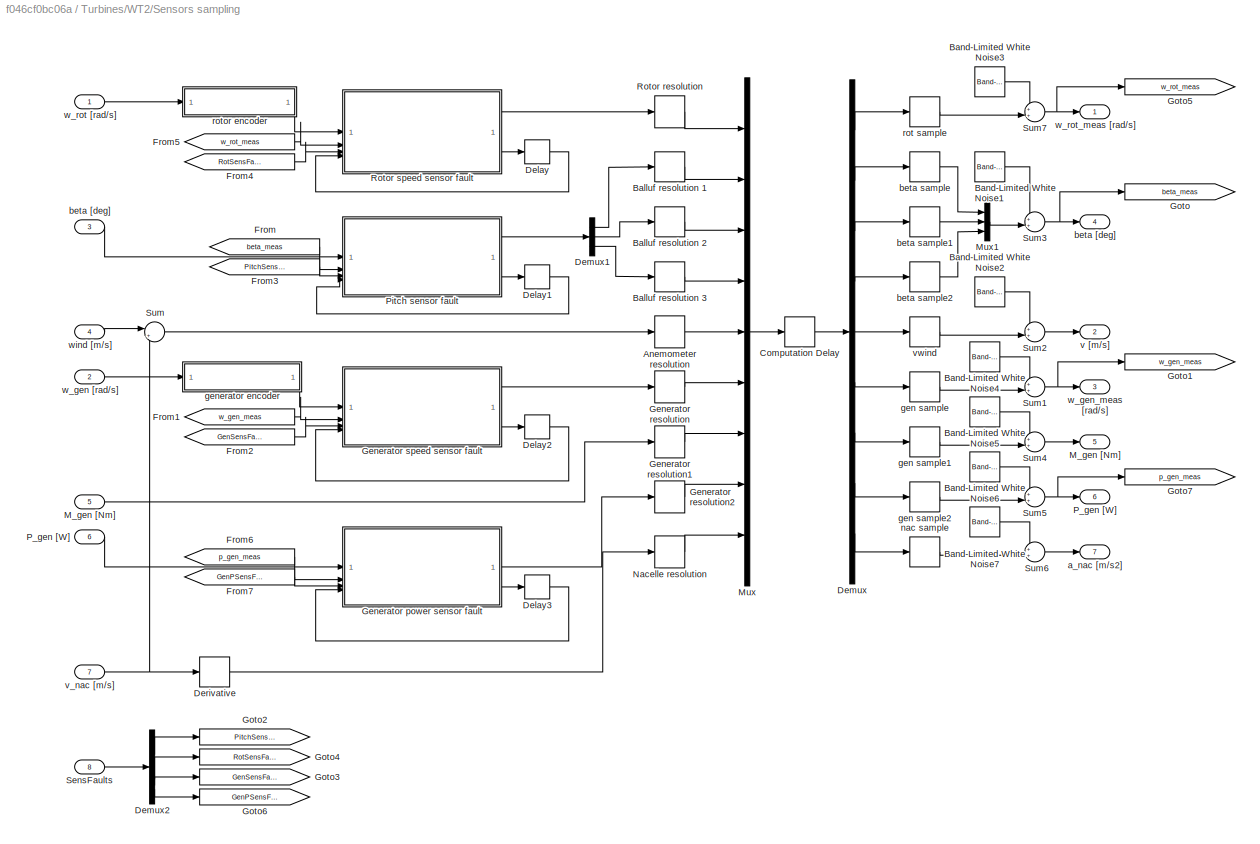
BLOCK [SubSystem] Turbines/WT2/Sensors sampling
BLOCK [Quantizer] Turbines/WT2/Sensors sampling/Anemometer resolution
  QuantizationInterval = wt.meas.aneres
BLOCK [Quantizer] Turbines/WT2/Sensors sampling/Balluf resolution 1
  QuantizationInterval = wt.meas.pitchres
BLOCK [Quantizer] Turbines/WT2/Sensors sampling/Balluf resolution 2
  QuantizationInterval = wt.meas.pitchres
BLOCK [Quantizer] Turbines/WT2/Sensors sampling/Balluf resolution 3
  QuantizationInterval = wt.meas.pitchres
BLOCK [Reference] Turbines/WT2/Sensors sampling/Band-Limited White Noise1  REF=simulink/Sources/Band-Limited
White Noise
  SourceBlock = simulink/Sources/Band-Limited\nWhite Noise
  SourceType = Band-Limited White Noise.
BLOCK [Reference] Turbines/WT2/Sensors sampling/Band-Limited White Noise2  REF=simulink/Sources/Band-Limited
White Noise
  SourceBlock = simulink/Sources/Band-Limited\nWhite Noise
  SourceType = Band-Limited White Noise.
BLOCK [Reference] Turbines/WT2/Sensors sampling/Band-Limited White Noise3  REF=simulink/Sources/Band-Limited
White Noise
  SourceBlock = simulink/Sources/Band-Limited\nWhite Noise
  SourceType = Band-Limited White Noise.
BLOCK [Reference] Turbines/WT2/Sensors sampling/Band-Limited White Noise4  REF=simulink/Sources/Band-Limited
White Noise
  SourceBlock = simulink/Sources/Band-Limited\nWhite Noise
  SourceType = Band-Limited White Noise.
BLOCK [Reference] Turbines/WT2/Sensors sampling/Band-Limited White Noise5  REF=simulink/Sources/Band-Limited
White Noise
  SourceBlock = simulink/Sources/Band-Limited\nWhite Noise
  SourceType = Band-Limited White Noise.
BLOCK [Reference] Turbines/WT2/Sensors sampling/Band-Limited White Noise6  REF=simulink/Sources/Band-Limited
White Noise
  SourceBlock = simulink/Sources/Band-Limited\nWhite Noise
  SourceType = Band-Limited White Noise.
BLOCK [Reference] Turbines/WT2/Sensors sampling/Band-Limited White Noise7  REF=simulink/Sources/Band-Limited
White Noise
  SourceBlock = simulink/Sources/Band-Limited\nWhite Noise
  SourceType = Band-Limited White Noise.
BLOCK [TransportDelay] Turbines/WT2/Sensors sampling/Computation Delay
  DelayTime = wt.meas.delay
  InitialOutput = [wt.rotor.ini wt.pitch.ini wt.pitch.ini wt.pitch.ini 0 wt.gen.ini 0 0 0]
BLOCK [Delay] Turbines/WT2/Sensors sampling/Delay
  DelayLength = 1
  InitialCondition = 0
  InputPortMap = u0
BLOCK [Delay] Turbines/WT2/Sensors sampling/Delay1
  DelayLength = 1
  InitialCondition = 0
  InputPortMap = u0
BLOCK [Delay] Turbines/WT2/Sensors sampling/Delay2
  DelayLength = 1
  InitialCondition = 0
  InputPortMap = u0
BLOCK [Delay] Turbines/WT2/Sensors sampling/Delay3
  DelayLength = 1
  InitialCondition = 0
  InputPortMap = u0
BLOCK [Demux] Turbines/WT2/Sensors sampling/Demux
  Outputs = 9
BLOCK [Demux] Turbines/WT2/Sensors sampling/Demux1
  Outputs = 3
BLOCK [Demux] Turbines/WT2/Sensors sampling/Demux2
BLOCK [Derivative] Turbines/WT2/Sensors sampling/Derivative
BLOCK [From] Turbines/WT2/Sensors sampling/From
  GotoTag = beta_meas
BLOCK [From] Turbines/WT2/Sensors sampling/From1
  GotoTag = w_gen_meas
BLOCK [From] Turbines/WT2/Sensors sampling/From2
  GotoTag = GenSensFault
BLOCK [From] Turbines/WT2/Sensors sampling/From3
  GotoTag = PitchSensFault
BLOCK [From] Turbines/WT2/Sensors sampling/From4
  GotoTag = RotSensFault
BLOCK [From] Turbines/WT2/Sensors sampling/From5
  GotoTag = w_rot_meas
BLOCK [From] Turbines/WT2/Sensors sampling/From6
  GotoTag = p_gen_meas
BLOCK [From] Turbines/WT2/Sensors sampling/From7
  GotoTag = GenPSensFault
BLOCK [SubSystem] Turbines/WT2/Sensors sampling/Generator power sensor fault
  ErrorFcn = Stateflow.Translate.translate
  PermitHierarchicalResolution = ExplicitOnly
  SFBlockType = MATLAB Function
  TreatAsAtomicUnit = on
BLOCK [Demux] Turbines/WT2/Sensors sampling/Generator power sensor fault/ Demux 
  Outputs = 1
BLOCK [S-Function] Turbines/WT2/Sensors sampling/Generator power sensor fault/ SFunction 
  EnableBusSupport = on
  FunctionName = sf_sfun
  Parameters = faultOptions
  PortCounts = [4 3]
  SFcnIsStateOwnerBlock = off
  SFunctionDeploymentMode = off
  Tag = Stateflow S-Function 31
BLOCK [Terminator] Turbines/WT2/Sensors sampling/Generator power sensor fault/ Terminator 
BLOCK [Inport] Turbines/WT2/Sensors sampling/Generator power sensor fault/GenPSenFault
  Port = 3
BLOCK [Inport] Turbines/WT2/Sensors sampling/Generator power sensor fault/drift_aux_in
  Port = 4
BLOCK [Outport] Turbines/WT2/Sensors sampling/Generator power sensor fault/drift_aux_out
  Port = 2
BLOCK [Outport] Turbines/WT2/Sensors sampling/Generator power sensor fault/p_gen_meas
BLOCK [Inport] Turbines/WT2/Sensors sampling/Generator power sensor fault/p_gen_prev
  Port = 2
BLOCK [Inport] Turbines/WT2/Sensors sampling/Generator power sensor fault/p_gen_real
BLOCK [Quantizer] Turbines/WT2/Sensors sampling/Generator resolution
  QuantizationInterval = wt.meas.genres
BLOCK [Quantizer] Turbines/WT2/Sensors sampling/Generator resolution1
  QuantizationInterval = wt.meas.genres
BLOCK [Quantizer] Turbines/WT2/Sensors sampling/Generator resolution2
  QuantizationInterval = wt.meas.genres
BLOCK [SubSystem] Turbines/WT2/Sensors sampling/Generator speed sensor fault
  ErrorFcn = Stateflow.Translate.translate
  PermitHierarchicalResolution = ExplicitOnly
  SFBlockType = MATLAB Function
  TreatAsAtomicUnit = on
BLOCK [Demux] Turbines/WT2/Sensors sampling/Generator speed sensor fault/ Demux 
  Outputs = 1
BLOCK [S-Function] Turbines/WT2/Sensors sampling/Generator speed sensor fault/ SFunction 
  EnableBusSupport = on
  FunctionName = sf_sfun
  Parameters = faultOptions
  PortCounts = [4 3]
  SFcnIsStateOwnerBlock = off
  SFunctionDeploymentMode = off
  Tag = Stateflow S-Function 32
BLOCK [Terminator] Turbines/WT2/Sensors sampling/Generator speed sensor fault/ Terminator 
BLOCK [Inport] Turbines/WT2/Sensors sampling/Generator speed sensor fault/GenSenFault
  Port = 3
BLOCK [Inport] Turbines/WT2/Sensors sampling/Generator speed sensor fault/drift_aux_in
  Port = 4
BLOCK [Outport] Turbines/WT2/Sensors sampling/Generator speed sensor fault/drift_aux_out
  Port = 2
BLOCK [Outport] Turbines/WT2/Sensors sampling/Generator speed sensor fault/w_gen_meas
BLOCK [Inport] Turbines/WT2/Sensors sampling/Generator speed sensor fault/w_gen_prev
  Port = 2
BLOCK [Inport] Turbines/WT2/Sensors sampling/Generator speed sensor fault/w_gen_real
BLOCK [Goto] Turbines/WT2/Sensors sampling/Goto
  GotoTag = beta_meas
BLOCK [Goto] Turbines/WT2/Sensors sampling/Goto1
  GotoTag = w_gen_meas
BLOCK [Goto] Turbines/WT2/Sensors sampling/Goto2
  GotoTag = PitchSensFault
BLOCK [Goto] Turbines/WT2/Sensors sampling/Goto3
  GotoTag = GenSensFault
BLOCK [Goto] Turbines/WT2/Sensors sampling/Goto4
  GotoTag = RotSensFault
BLOCK [Goto] Turbines/WT2/Sensors sampling/Goto5
  GotoTag = w_rot_meas
BLOCK [Goto] Turbines/WT2/Sensors sampling/Goto6
  GotoTag = GenPSensFault
BLOCK [Goto] Turbines/WT2/Sensors sampling/Goto7
  GotoTag = p_gen_meas
BLOCK [Outport] Turbines/WT2/Sensors sampling/M_gen [Nm]
  InitialOutput = 0
  Port = 5
BLOCK [Inport] Turbines/WT2/Sensors sampling/M_gen [Nm] 
  Port = 5
BLOCK [Mux] Turbines/WT2/Sensors sampling/Mux
  DisplayOption = bar
  Inputs = 9
BLOCK [Mux] Turbines/WT2/Sensors sampling/Mux1
  DisplayOption = bar
  Inputs = 3
BLOCK [Quantizer] Turbines/WT2/Sensors sampling/Nacelle resolution
  QuantizationInterval = wt.meas.nacres
BLOCK [Outport] Turbines/WT2/Sensors sampling/P_gen [W]
  InitialOutput = 0
  Port = 6
BLOCK [Inport] Turbines/WT2/Sensors sampling/P_gen [W] 
  Port = 6
BLOCK [SubSystem] Turbines/WT2/Sensors sampling/Pitch sensor fault
  ErrorFcn = Stateflow.Translate.translate
  PermitHierarchicalResolution = ExplicitOnly
  SFBlockType = MATLAB Function
  TreatAsAtomicUnit = on
BLOCK [Demux] Turbines/WT2/Sensors sampling/Pitch sensor fault/ Demux 
  Outputs = 1
BLOCK [S-Function] Turbines/WT2/Sensors sampling/Pitch sensor fault/ SFunction 
  EnableBusSupport = on
  FunctionName = sf_sfun
  Parameters = faultOptions
  PortCounts = [4 3]
  SFcnIsStateOwnerBlock = off
  SFunctionDeploymentMode = off
  Tag = Stateflow S-Function 33
BLOCK [Terminator] Turbines/WT2/Sensors sampling/Pitch sensor fault/ Terminator 
BLOCK [Inport] Turbines/WT2/Sensors sampling/Pitch sensor fault/PitchSenFault
  Port = 3
BLOCK [Outport] Turbines/WT2/Sensors sampling/Pitch sensor fault/beta_meas
BLOCK [Inport] Turbines/WT2/Sensors sampling/Pitch sensor fault/beta_prev
  Port = 2
BLOCK [Inport] Turbines/WT2/Sensors sampling/Pitch sensor fault/beta_real
BLOCK [Inport] Turbines/WT2/Sensors sampling/Pitch sensor fault/drift_aux_in
  Port = 4
BLOCK [Outport] Turbines/WT2/Sensors sampling/Pitch sensor fault/drift_aux_out
  Port = 2
BLOCK [Quantizer] Turbines/WT2/Sensors sampling/Rotor resolution
  QuantizationInterval = wt.meas.rotres
BLOCK [SubSystem] Turbines/WT2/Sensors sampling/Rotor speed sensor fault
  ErrorFcn = Stateflow.Translate.translate
  PermitHierarchicalResolution = ExplicitOnly
  SFBlockType = MATLAB Function
  TreatAsAtomicUnit = on
BLOCK [Demux] Turbines/WT2/Sensors sampling/Rotor speed sensor fault/ Demux 
  Outputs = 1
BLOCK [S-Function] Turbines/WT2/Sensors sampling/Rotor speed sensor fault/ SFunction 
  EnableBusSupport = on
  FunctionName = sf_sfun
  Parameters = faultOptions
  PortCounts = [4 3]
  SFcnIsStateOwnerBlock = off
  SFunctionDeploymentMode = off
  Tag = Stateflow S-Function 34
BLOCK [Terminator] Turbines/WT2/Sensors sampling/Rotor speed sensor fault/ Terminator 
BLOCK [Inport] Turbines/WT2/Sensors sampling/Rotor speed sensor fault/RotSenFault
  Port = 3
BLOCK [Inport] Turbines/WT2/Sensors sampling/Rotor speed sensor fault/drift_aux_in
  Port = 4
BLOCK [Outport] Turbines/WT2/Sensors sampling/Rotor speed sensor fault/drift_aux_out
  Port = 2
BLOCK [Outport] Turbines/WT2/Sensors sampling/Rotor speed sensor fault/w_rot_meas
BLOCK [Inport] Turbines/WT2/Sensors sampling/Rotor speed sensor fault/w_rot_prev
  Port = 2
BLOCK [Inport] Turbines/WT2/Sensors sampling/Rotor speed sensor fault/w_rot_real
BLOCK [Inport] Turbines/WT2/Sensors sampling/SensFaults
  Port = 8
BLOCK [Sum] Turbines/WT2/Sensors sampling/Sum
  Inputs = |+-
BLOCK [Sum] Turbines/WT2/Sensors sampling/Sum1
  Inputs = ++|
BLOCK [Sum] Turbines/WT2/Sensors sampling/Sum2
  Inputs = ++|
BLOCK [Sum] Turbines/WT2/Sensors sampling/Sum3
  Inputs = ++|
BLOCK [Sum] Turbines/WT2/Sensors sampling/Sum4
  Inputs = ++|
BLOCK [Sum] Turbines/WT2/Sensors sampling/Sum5
  Inputs = ++|
BLOCK [Sum] Turbines/WT2/Sensors sampling/Sum6
  Inputs = ++|
BLOCK [Sum] Turbines/WT2/Sensors sampling/Sum7
  Inputs = ++|
BLOCK [Outport] Turbines/WT2/Sensors sampling/a_nac [m//s2]
  InitialOutput = 0
  Port = 7
BLOCK [Outport] Turbines/WT2/Sensors sampling/beta [deg]
  InitialOutput = 0
  Port = 4
BLOCK [Inport] Turbines/WT2/Sensors sampling/beta [deg] 
  Port = 3
BLOCK [ZeroOrderHold] Turbines/WT2/Sensors sampling/beta sample
  SampleTime = wt.meas.Ts
BLOCK [ZeroOrderHold] Turbines/WT2/Sensors sampling/beta sample1
  SampleTime = wt.meas.Ts
BLOCK [ZeroOrderHold] Turbines/WT2/Sensors sampling/beta sample2
  SampleTime = wt.meas.Ts
BLOCK [ZeroOrderHold] Turbines/WT2/Sensors sampling/gen sample
  SampleTime = wt.meas.Ts
BLOCK [ZeroOrderHold] Turbines/WT2/Sensors sampling/gen sample1
  SampleTime = wt.meas.Ts
BLOCK [ZeroOrderHold] Turbines/WT2/Sensors sampling/gen sample2
  SampleTime = wt.meas.Ts
BLOCK [SubSystem] Turbines/WT2/Sensors sampling/generator encoder
BLOCK [Sum] Turbines/WT2/Sensors sampling/generator encoder/Sum
  Inputs = -+|
BLOCK [Integrator] Turbines/WT2/Sensors sampling/generator encoder/gen Integrator
  InitialCondition = wt.gen.ini
  NameLocation = top
BLOCK [Gain] Turbines/WT2/Sensors sampling/generator encoder/gen sensor time constant
  Gain = 1/wt.meas.gentau
BLOCK [Inport] Turbines/WT2/Sensors sampling/generator encoder/w_gen_in
BLOCK [Outport] Turbines/WT2/Sensors sampling/generator encoder/w_gen_out
BLOCK [ZeroOrderHold] Turbines/WT2/Sensors sampling/nac sample
  SampleTime = wt.meas.Ts
BLOCK [ZeroOrderHold] Turbines/WT2/Sensors sampling/rot sample
  SampleTime = wt.meas.Ts
BLOCK [SubSystem] Turbines/WT2/Sensors sampling/rotor encoder
BLOCK [Sum] Turbines/WT2/Sensors sampling/rotor encoder/Sum1
  Inputs = |+-
BLOCK [Integrator] Turbines/WT2/Sensors sampling/rotor encoder/gen Integrator1
  InitialCondition = wt.rotor.ini
BLOCK [Gain] Turbines/WT2/Sensors sampling/rotor encoder/gen sensor time constant1
  Gain = 1/wt.meas.rottau
BLOCK [Inport] Turbines/WT2/Sensors sampling/rotor encoder/w_rot_in
BLOCK [Outport] Turbines/WT2/Sensors sampling/rotor encoder/w_rot_out
BLOCK [Outport] Turbines/WT2/Sensors sampling/v [m//s]
  InitialOutput = 0
  Port = 2
BLOCK [Inport] Turbines/WT2/Sensors sampling/v_nac [m//s] 
  Port = 7
BLOCK [ZeroOrderHold] Turbines/WT2/Sensors sampling/vwind
  SampleTime = wt.meas.Ts
BLOCK [Inport] Turbines/WT2/Sensors sampling/w_gen [rad//s]
  Port = 2
BLOCK [Outport] Turbines/WT2/Sensors sampling/w_gen_meas [rad//s]
  InitialOutput = 0
  Port = 3
BLOCK [Inport] Turbines/WT2/Sensors sampling/w_rot [rad//s] 
BLOCK [Outport] Turbines/WT2/Sensors sampling/w_rot_meas [rad//s]
  InitialOutput = 0
BLOCK [Inport] Turbines/WT2/Sensors sampling/wind [m//s]
  Port = 4
BLOCK [Sum] Turbines/WT2/Sum2
  InputSameDT = on
  Inputs = |++
  NameLocation = right
  OutDataTypeStr = Inherit: Same as first input
  SaturateOnIntegerOverflow = on
BLOCK [Sum] Turbines/WT2/Sum3
  InputSameDT = on
  Inputs = |+-
  OutDataTypeStr = Inherit: Same as first input
  SaturateOnIntegerOverflow = on
BLOCK [Terminator] Turbines/WT2/Terminator
BLOCK [SubSystem] Turbines/WT2/Tower deflection 
BLOCK [Inport] Turbines/WT2/Tower deflection /F_t [N]
BLOCK [Gain] Turbines/WT2/Tower deflection /F_t*h
  Gain = wt.tower.height
  OutDataTypeStr = Inherit: Same as input
  ParamDataTypeStr = Inherit: Same as input
  SaturateOnIntegerOverflow = on
BLOCK [Outport] Turbines/WT2/Tower deflection /M_tow [Nm]
  Port = 2
BLOCK [SubSystem] Turbines/WT2/Tower deflection /Tower1
BLOCK [Demux] Turbines/WT2/Tower deflection /Tower1/Demux1
  Outputs = 2
BLOCK [Inport] Turbines/WT2/Tower deflection /Tower1/FT [Nm]
BLOCK [Outport] Turbines/WT2/Tower deflection /Tower1/F_tow [N]
  InitialOutput = 0
  Port = 2
BLOCK [StateSpace] Turbines/WT2/Tower deflection /Tower1/Tower
  A = A
  B = B
  C = C
  D = D
  InitialCondition = zeros(2,1)
BLOCK [Outport] Turbines/WT2/Tower deflection /Tower1/vnac [m//s]
  InitialOutput = 0
BLOCK [Outport] Turbines/WT2/Tower deflection /v_nac [m//s]
BLOCK [Outport] Turbines/WT2/V_meas [m//s]
  Port = 4
BLOCK [Outport] Turbines/WT2/a_nac [m//s]
  Port = 9
BLOCK [Outport] Turbines/WT2/aux
  Port = 11
BLOCK [Outport] Turbines/WT2/beta [deg]
  Port = 5
BLOCK [Inport] Turbines/WT2/fault_signal
  Port = 5
BLOCK [Outport] Turbines/WT2/t_gen_ref [Nm]
  Port = 10
BLOCK [Inport] Turbines/WT2/v_wnd_nac [m//s]
  Port = 3
BLOCK [Inport] Turbines/WT2/v_wnd_rot [m//s]
  Port = 2
BLOCK [Outport] Turbines/WT2/w_gen_meas [rad//s]
  Port = 3
BLOCK [Outport] Turbines/WT2/w_rot_meas [rad//s]
  Port = 6
BLOCK [SubSystem] Turbines/WT3
  AncestorBlock = libturbines/Floating NREL5MW faulty
  NameLocation = top
  UserDataPersistent = on
BLOCK [SubSystem] Turbines/WT3/Aerodynamics
BLOCK [SubSystem] Turbines/WT3/Aerodynamics/Blade 1
BLOCK [SubSystem] Turbines/WT3/Aerodynamics/Blade 1/C_P & C_T tables
BLOCK [Outport] Turbines/WT3/Aerodynamics/Blade 1/C_P & C_T tables/C_P
  Port = 2
BLOCK [Lookup2D] Turbines/WT3/Aerodynamics/Blade 1/C_P & C_T tables/C_P table 
  ColumnIndex = wt.cp.tsr
  LookUpMeth = Interpolation-Use End Values
  RowIndex = wt.cp.beta
  Table = wt.cp.table
BLOCK [Outport] Turbines/WT3/Aerodynamics/Blade 1/C_P & C_T tables/C_T
BLOCK [Lookup2D] Turbines/WT3/Aerodynamics/Blade 1/C_P & C_T tables/C_T table
  ColumnIndex = wt.ct.tsr
  LookUpMeth = Interpolation-Use End Values
  RowIndex = wt.ct.beta
  Table = wt.ct.table
BLOCK [Inport] Turbines/WT3/Aerodynamics/Blade 1/C_P & C_T tables/beta
BLOCK [Inport] Turbines/WT3/Aerodynamics/Blade 1/C_P & C_T tables/lambda
  Port = 2
BLOCK [Outport] Turbines/WT3/Aerodynamics/Blade 1/C_T
  Port = 2
BLOCK [Outport] Turbines/WT3/Aerodynamics/Blade 1/F_t [N]
BLOCK [Gain] Turbines/WT3/Aerodynamics/Blade 1/Gain
  Gain = 1/3
BLOCK [Gain] Turbines/WT3/Aerodynamics/Blade 1/Gain1
  Gain = 1/3
BLOCK [Gain] Turbines/WT3/Aerodynamics/Blade 1/Gain2
  Gain = 1/3
BLOCK [Outport] Turbines/WT3/Aerodynamics/Blade 1/M_rot [Nm]
  Port = 3
BLOCK [Math] Turbines/WT3/Aerodynamics/Blade 1/Math Function
  Operator = square
  SignedPower = on
BLOCK [Product] Turbines/WT3/Aerodynamics/Blade 1/Product
  InputSameDT = on
  OutDataTypeStr = Inherit: Same as first input
  SaturateOnIntegerOverflow = on
BLOCK [Product] Turbines/WT3/Aerodynamics/Blade 1/Product1
  InputSameDT = on
  Inputs = **/
  OutDataTypeStr = Inherit: Same as first input
  SaturateOnIntegerOverflow = on
BLOCK [Product] Turbines/WT3/Aerodynamics/Blade 1/Product2
  InputSameDT = on
  OutDataTypeStr = Inherit: Same as first input
  SaturateOnIntegerOverflow = on
BLOCK [Product] Turbines/WT3/Aerodynamics/Blade 1/Product3
  InputSameDT = on
  Inputs = /*
  OutDataTypeStr = Inherit: Same as first input
  SaturateOnIntegerOverflow = on
BLOCK [Inport] Turbines/WT3/Aerodynamics/Blade 1/beta [deg]
  Port = 2
BLOCK [Gain] Turbines/WT3/Aerodynamics/Blade 1/rho//2*A
  Gain = env.rho*.5* pi * wt.rotor.radius^2
  OutDataTypeStr = Inherit: Same as input
  ParamDataTypeStr = Inherit: Same as input
  SaturateOnIntegerOverflow = on
BLOCK [Gain] Turbines/WT3/Aerodynamics/Blade 1/rotor radius
  Gain = wt.rotor.radius
  OutDataTypeStr = Inherit: Same as input
  ParamDataTypeStr = Inherit: Same as input
  SaturateOnIntegerOverflow = on
BLOCK [Inport] Turbines/WT3/Aerodynamics/Blade 1/v_rot [m//s]
BLOCK [Inport] Turbines/WT3/Aerodynamics/Blade 1/w_rot [rad//s]
  Port = 3
BLOCK [SubSystem] Turbines/WT3/Aerodynamics/Blade 2
  AncestorBlock = libturbines/Floating faulty NREL5MW1/Aerodynamics/Blade 1
BLOCK [SubSystem] Turbines/WT3/Aerodynamics/Blade 2/C_P & C_T tables
BLOCK [Outport] Turbines/WT3/Aerodynamics/Blade 2/C_P & C_T tables/C_P
  Port = 2
BLOCK [Lookup2D] Turbines/WT3/Aerodynamics/Blade 2/C_P & C_T tables/C_P table 
  ColumnIndex = wt.cp.tsr
  LookUpMeth = Interpolation-Use End Values
  RowIndex = wt.cp.beta
  Table = wt.cp.table
BLOCK [Outport] Turbines/WT3/Aerodynamics/Blade 2/C_P & C_T tables/C_T
BLOCK [Lookup2D] Turbines/WT3/Aerodynamics/Blade 2/C_P & C_T tables/C_T table
  ColumnIndex = wt.ct.tsr
  LookUpMeth = Interpolation-Use End Values
  RowIndex = wt.ct.beta
  Table = wt.ct.table
BLOCK [Inport] Turbines/WT3/Aerodynamics/Blade 2/C_P & C_T tables/beta
BLOCK [Inport] Turbines/WT3/Aerodynamics/Blade 2/C_P & C_T tables/lambda
  Port = 2
BLOCK [Outport] Turbines/WT3/Aerodynamics/Blade 2/C_T
  Port = 2
BLOCK [Outport] Turbines/WT3/Aerodynamics/Blade 2/F_t [N]
BLOCK [Gain] Turbines/WT3/Aerodynamics/Blade 2/Gain
  Gain = 1/3
BLOCK [Gain] Turbines/WT3/Aerodynamics/Blade 2/Gain1
  Gain = 1/3
BLOCK [Gain] Turbines/WT3/Aerodynamics/Blade 2/Gain2
  Gain = 1/3
BLOCK [Outport] Turbines/WT3/Aerodynamics/Blade 2/M_rot [Nm]
  Port = 3
BLOCK [Math] Turbines/WT3/Aerodynamics/Blade 2/Math Function
  Operator = square
  SignedPower = on
BLOCK [Product] Turbines/WT3/Aerodynamics/Blade 2/Product
  InputSameDT = on
  OutDataTypeStr = Inherit: Same as first input
  SaturateOnIntegerOverflow = on
BLOCK [Product] Turbines/WT3/Aerodynamics/Blade 2/Product1
  InputSameDT = on
  Inputs = **/
  OutDataTypeStr = Inherit: Same as first input
  SaturateOnIntegerOverflow = on
BLOCK [Product] Turbines/WT3/Aerodynamics/Blade 2/Product2
  InputSameDT = on
  OutDataTypeStr = Inherit: Same as first input
  SaturateOnIntegerOverflow = on
BLOCK [Product] Turbines/WT3/Aerodynamics/Blade 2/Product3
  InputSameDT = on
  Inputs = /*
  OutDataTypeStr = Inherit: Same as first input
  SaturateOnIntegerOverflow = on
BLOCK [Inport] Turbines/WT3/Aerodynamics/Blade 2/beta [deg]
  Port = 2
BLOCK [Gain] Turbines/WT3/Aerodynamics/Blade 2/rho//2*A
  Gain = env.rho*.5* pi * wt.rotor.radius^2
  OutDataTypeStr = Inherit: Same as input
  ParamDataTypeStr = Inherit: Same as input
  SaturateOnIntegerOverflow = on
BLOCK [Gain] Turbines/WT3/Aerodynamics/Blade 2/rotor radius
  Gain = wt.rotor.radius
  OutDataTypeStr = Inherit: Same as input
  ParamDataTypeStr = Inherit: Same as input
  SaturateOnIntegerOverflow = on
BLOCK [Inport] Turbines/WT3/Aerodynamics/Blade 2/v_rot [m//s]
BLOCK [Inport] Turbines/WT3/Aerodynamics/Blade 2/w_rot [rad//s]
  Port = 3
BLOCK [SubSystem] Turbines/WT3/Aerodynamics/Blade 3
  AncestorBlock = libturbines/Floating faulty NREL5MW1/Aerodynamics/Blade 1
BLOCK [SubSystem] Turbines/WT3/Aerodynamics/Blade 3/C_P & C_T tables
BLOCK [Outport] Turbines/WT3/Aerodynamics/Blade 3/C_P & C_T tables/C_P
  Port = 2
BLOCK [Lookup2D] Turbines/WT3/Aerodynamics/Blade 3/C_P & C_T tables/C_P table 
  ColumnIndex = wt.cp.tsr
  LookUpMeth = Interpolation-Use End Values
  RowIndex = wt.cp.beta
  Table = wt.cp.table
BLOCK [Outport] Turbines/WT3/Aerodynamics/Blade 3/C_P & C_T tables/C_T
BLOCK [Lookup2D] Turbines/WT3/Aerodynamics/Blade 3/C_P & C_T tables/C_T table
  ColumnIndex = wt.ct.tsr
  LookUpMeth = Interpolation-Use End Values
  RowIndex = wt.ct.beta
  Table = wt.ct.table
BLOCK [Inport] Turbines/WT3/Aerodynamics/Blade 3/C_P & C_T tables/beta
BLOCK [Inport] Turbines/WT3/Aerodynamics/Blade 3/C_P & C_T tables/lambda
  Port = 2
BLOCK [Outport] Turbines/WT3/Aerodynamics/Blade 3/C_T
  Port = 2
BLOCK [Outport] Turbines/WT3/Aerodynamics/Blade 3/F_t [N]
BLOCK [Gain] Turbines/WT3/Aerodynamics/Blade 3/Gain
  Gain = 1/3
BLOCK [Gain] Turbines/WT3/Aerodynamics/Blade 3/Gain1
  Gain = 1/3
BLOCK [Gain] Turbines/WT3/Aerodynamics/Blade 3/Gain2
  Gain = 1/3
BLOCK [Outport] Turbines/WT3/Aerodynamics/Blade 3/M_rot [Nm]
  Port = 3
BLOCK [Math] Turbines/WT3/Aerodynamics/Blade 3/Math Function
  Operator = square
  SignedPower = on
BLOCK [Product] Turbines/WT3/Aerodynamics/Blade 3/Product
  InputSameDT = on
  OutDataTypeStr = Inherit: Same as first input
  SaturateOnIntegerOverflow = on
BLOCK [Product] Turbines/WT3/Aerodynamics/Blade 3/Product1
  InputSameDT = on
  Inputs = **/
  OutDataTypeStr = Inherit: Same as first input
  SaturateOnIntegerOverflow = on
BLOCK [Product] Turbines/WT3/Aerodynamics/Blade 3/Product2
  InputSameDT = on
  OutDataTypeStr = Inherit: Same as first input
  SaturateOnIntegerOverflow = on
BLOCK [Product] Turbines/WT3/Aerodynamics/Blade 3/Product3
  InputSameDT = on
  Inputs = /*
  OutDataTypeStr = Inherit: Same as first input
  SaturateOnIntegerOverflow = on
BLOCK [Inport] Turbines/WT3/Aerodynamics/Blade 3/beta [deg]
  Port = 2
BLOCK [Gain] Turbines/WT3/Aerodynamics/Blade 3/rho//2*A
  Gain = env.rho*.5* pi * wt.rotor.radius^2
  OutDataTypeStr = Inherit: Same as input
  ParamDataTypeStr = Inherit: Same as input
  SaturateOnIntegerOverflow = on
BLOCK [Gain] Turbines/WT3/Aerodynamics/Blade 3/rotor radius
  Gain = wt.rotor.radius
  OutDataTypeStr = Inherit: Same as input
  ParamDataTypeStr = Inherit: Same as input
  SaturateOnIntegerOverflow = on
BLOCK [Inport] Turbines/WT3/Aerodynamics/Blade 3/v_rot [m//s]
BLOCK [Inport] Turbines/WT3/Aerodynamics/Blade 3/w_rot [rad//s]
  Port = 3
BLOCK [Outport] Turbines/WT3/Aerodynamics/C_T
  Port = 3
BLOCK [Demux] Turbines/WT3/Aerodynamics/Demux
  Outputs = 3
BLOCK [Outport] Turbines/WT3/Aerodynamics/F_t [N]
  Port = 2
BLOCK [Outport] Turbines/WT3/Aerodynamics/M_rot [Nm]
BLOCK [Sum] Turbines/WT3/Aerodynamics/Sum
  Inputs = +++
BLOCK [Sum] Turbines/WT3/Aerodynamics/Sum1
  Inputs = +++
BLOCK [Sum] Turbines/WT3/Aerodynamics/Sum2
  Inputs = +++
BLOCK [Inport] Turbines/WT3/Aerodynamics/beta [deg]
  Port = 2
BLOCK [Inport] Turbines/WT3/Aerodynamics/v_rot [m//s]
  Port = 3
BLOCK [Inport] Turbines/WT3/Aerodynamics/w_rot [rad//s]
BLOCK [Outport] Turbines/WT3/C_T
  Port = 2
BLOCK [Constant] Turbines/WT3/Constant
  Value = 0
BLOCK [SubSystem] Turbines/WT3/Controller
BLOCK [Gain] Turbines/WT3/Controller/Gain
  Gain = [1 0 0]
  Multiplication = Matrix(K*u) (u vector)
  NameLocation = top
BLOCK [Gain] Turbines/WT3/Controller/Generator efficiency compensation
  Gain = 1/wt.ctrl.gen.effeciency
BLOCK [Saturate] Turbines/WT3/Controller/Limit power to rated
  LowerLimit = 0
  UpperLimit = wt.ctrl.p_rated
BLOCK [DiscreteStateSpace] Turbines/WT3/Controller/Measurement filter (low pass)
  A = wt.ctrl.alpha
  B = 1-wt.ctrl.alpha
  C = wt.ctrl.alpha
  D = 1-wt.ctrl.alpha
  InitialCondition = wt.ctrl.gen.ini
  SampleTime = wt.ctrl.Ts
BLOCK [Inport] Turbines/WT3/Controller/P_dem [W]
BLOCK [SubSystem] Turbines/WT3/Controller/Pitch controller
  TreatAsAtomicUnit = on
BLOCK [SubSystem] Turbines/WT3/Controller/Pitch controller/Blade 1 controller
BLOCK [DiscreteIntegrator] Turbines/WT3/Controller/Pitch controller/Blade 1 controller/Discrete-Time Integrator
  ICPrevOutput = DiscIntNeverNeededParam
  ICPrevScaledInput = DiscIntNeverNeededParam
  LimitOutput = on
  LowerSaturationLimit = wt.ctrl.pitch.llim
  SampleTime = wt.ctrl.Ts
  UpperSaturationLimit = wt.ctrl.pitch.ulim*pi/180
BLOCK [Lookup2D] Turbines/WT3/Controller/Pitch controller/Blade 1 controller/Gain correction
  ColumnIndex = wt.ctrl.pitch.beta
  InputSameDT = off
  LookUpMeth = Interpolation-Use End Values
  RowIndex = wt.ctrl.pitch.pwr
  SaturateOnIntegerOverflow = off
  Table = wt.ctrl.pitch.gs
BLOCK [Gain] Turbines/WT3/Controller/Pitch controller/Blade 1 controller/Integral gain
  Gain = (1-0.999*noiseFlag)*wt.ctrl.pitch.Igain
BLOCK [Product] Turbines/WT3/Controller/Pitch controller/Blade 1 controller/Integral schedule
  Inputs = */
  RndMeth = Zero
BLOCK [Inport] Turbines/WT3/Controller/Pitch controller/Blade 1 controller/P_dem
  Port = 2
BLOCK [Product] Turbines/WT3/Controller/Pitch controller/Blade 1 controller/Prop schedule
  Inputs = */
  RndMeth = Zero
BLOCK [Gain] Turbines/WT3/Controller/Pitch controller/Blade 1 controller/Proportional gain
  Gain = (1-0.3*noiseFlag)*wt.ctrl.pitch.Pgain
BLOCK [RateLimiter] Turbines/WT3/Controller/Pitch controller/Blade 1 controller/Rate Limiter
  FallingSlewLimit = -wt.ctrl.pitch.ratelim
  InitialCondition = wt.ctrl.pitch.ini
  RisingSlewLimit = wt.ctrl.pitch.ratelim
  SampleTimeMode = inherited
BLOCK [Saturate] Turbines/WT3/Controller/Pitch controller/Blade 1 controller/Saturation
  LowerLimit = 0
  UpperLimit = wt.ctrl.pitch.ulim
BLOCK [Sum] Turbines/WT3/Controller/Pitch controller/Blade 1 controller/Sum
  Inputs = ++|
BLOCK [Gain] Turbines/WT3/Controller/Pitch controller/Blade 1 controller/To degrees
  Gain = 180/pi
BLOCK [Inport] Turbines/WT3/Controller/Pitch controller/Blade 1 controller/beta_meas [deg]
  Port = 3
BLOCK [Outport] Turbines/WT3/Controller/Pitch controller/Blade 1 controller/beta_ref [deg]
BLOCK [Inport] Turbines/WT3/Controller/Pitch controller/Blade 1 controller/w_gen_diff
BLOCK [SubSystem] Turbines/WT3/Controller/Pitch controller/Blade 2 controller
BLOCK [DiscreteIntegrator] Turbines/WT3/Controller/Pitch controller/Blade 2 controller/Discrete-Time Integrator
  ICPrevOutput = DiscIntNeverNeededParam
  ICPrevScaledInput = DiscIntNeverNeededParam
  LimitOutput = on
  LowerSaturationLimit = wt.ctrl.pitch.llim
  SampleTime = wt.ctrl.Ts
  UpperSaturationLimit = wt.ctrl.pitch.ulim*pi/180
BLOCK [Lookup2D] Turbines/WT3/Controller/Pitch controller/Blade 2 controller/Gain correction
  ColumnIndex = wt.ctrl.pitch.beta
  InputSameDT = off
  LookUpMeth = Interpolation-Use End Values
  RowIndex = wt.ctrl.pitch.pwr
  SaturateOnIntegerOverflow = off
  Table = wt.ctrl.pitch.gs
BLOCK [Gain] Turbines/WT3/Controller/Pitch controller/Blade 2 controller/Integral gain
  Gain = (1-0.999*noiseFlag)*wt.ctrl.pitch.Igain
BLOCK [Product] Turbines/WT3/Controller/Pitch controller/Blade 2 controller/Integral schedule
  Inputs = */
  RndMeth = Zero
BLOCK [Inport] Turbines/WT3/Controller/Pitch controller/Blade 2 controller/P_dem
  Port = 2
BLOCK [Product] Turbines/WT3/Controller/Pitch controller/Blade 2 controller/Prop schedule
  Inputs = */
  RndMeth = Zero
BLOCK [Gain] Turbines/WT3/Controller/Pitch controller/Blade 2 controller/Proportional gain
  Gain = (1-0.3*noiseFlag)*wt.ctrl.pitch.Pgain
BLOCK [RateLimiter] Turbines/WT3/Controller/Pitch controller/Blade 2 controller/Rate Limiter
  FallingSlewLimit = -wt.ctrl.pitch.ratelim
  InitialCondition = wt.ctrl.pitch.ini
  RisingSlewLimit = wt.ctrl.pitch.ratelim
  SampleTimeMode = inherited
BLOCK [Saturate] Turbines/WT3/Controller/Pitch controller/Blade 2 controller/Saturation
  LowerLimit = 0
  UpperLimit = wt.ctrl.pitch.ulim
BLOCK [Sum] Turbines/WT3/Controller/Pitch controller/Blade 2 controller/Sum
  Inputs = ++|
BLOCK [Gain] Turbines/WT3/Controller/Pitch controller/Blade 2 controller/To degrees
  Gain = 180/pi
BLOCK [Inport] Turbines/WT3/Controller/Pitch controller/Blade 2 controller/beta_meas [deg]
  Port = 3
BLOCK [Outport] Turbines/WT3/Controller/Pitch controller/Blade 2 controller/beta_ref [deg]
BLOCK [Inport] Turbines/WT3/Controller/Pitch controller/Blade 2 controller/w_gen_diff
BLOCK [SubSystem] Turbines/WT3/Controller/Pitch controller/Blade 3 controller
BLOCK [DiscreteIntegrator] Turbines/WT3/Controller/Pitch controller/Blade 3 controller/Discrete-Time Integrator
  ICPrevOutput = DiscIntNeverNeededParam
  ICPrevScaledInput = DiscIntNeverNeededParam
  LimitOutput = on
  LowerSaturationLimit = wt.ctrl.pitch.llim
  SampleTime = wt.ctrl.Ts
  UpperSaturationLimit = wt.ctrl.pitch.ulim*pi/180
BLOCK [Lookup2D] Turbines/WT3/Controller/Pitch controller/Blade 3 controller/Gain correction
  ColumnIndex = wt.ctrl.pitch.beta
  InputSameDT = off
  LookUpMeth = Interpolation-Use End Values
  RowIndex = wt.ctrl.pitch.pwr
  SaturateOnIntegerOverflow = off
  Table = wt.ctrl.pitch.gs
BLOCK [Gain] Turbines/WT3/Controller/Pitch controller/Blade 3 controller/Integral gain
  Gain = (1-0.999*noiseFlag)*wt.ctrl.pitch.Igain
BLOCK [Product] Turbines/WT3/Controller/Pitch controller/Blade 3 controller/Integral schedule
  Inputs = */
  RndMeth = Zero
BLOCK [Inport] Turbines/WT3/Controller/Pitch controller/Blade 3 controller/P_dem
  Port = 2
BLOCK [Product] Turbines/WT3/Controller/Pitch controller/Blade 3 controller/Prop schedule
  Inputs = */
  RndMeth = Zero
BLOCK [Gain] Turbines/WT3/Controller/Pitch controller/Blade 3 controller/Proportional gain
  Gain = (1-0.3*noiseFlag)*wt.ctrl.pitch.Pgain
BLOCK [RateLimiter] Turbines/WT3/Controller/Pitch controller/Blade 3 controller/Rate Limiter
  FallingSlewLimit = -wt.ctrl.pitch.ratelim
  InitialCondition = wt.ctrl.pitch.ini
  RisingSlewLimit = wt.ctrl.pitch.ratelim
  SampleTimeMode = inherited
BLOCK [Saturate] Turbines/WT3/Controller/Pitch controller/Blade 3 controller/Saturation
  LowerLimit = 0
  UpperLimit = wt.ctrl.pitch.ulim
BLOCK [Sum] Turbines/WT3/Controller/Pitch controller/Blade 3 controller/Sum
  Inputs = ++|
BLOCK [Gain] Turbines/WT3/Controller/Pitch controller/Blade 3 controller/To degrees
  Gain = 180/pi
BLOCK [Inport] Turbines/WT3/Controller/Pitch controller/Blade 3 controller/beta_meas [deg]
  Port = 3
BLOCK [Outport] Turbines/WT3/Controller/Pitch controller/Blade 3 controller/beta_ref [deg]
BLOCK [Inport] Turbines/WT3/Controller/Pitch controller/Blade 3 controller/w_gen_diff
BLOCK [Demux] Turbines/WT3/Controller/Pitch controller/Demux
  Outputs = 3
BLOCK [EnablePort] Turbines/WT3/Controller/Pitch controller/Enable
  PropagateVarSize = During execution
  StatesWhenEnabling = reset
BLOCK [Mux] Turbines/WT3/Controller/Pitch controller/Mux
  DisplayOption = bar
  Inputs = 3
BLOCK [Inport] Turbines/WT3/Controller/Pitch controller/P_dem
  Port = 2
BLOCK [Inport] Turbines/WT3/Controller/Pitch controller/beta_meas [deg]
  Port = 3
BLOCK [Outport] Turbines/WT3/Controller/Pitch controller/beta_ref [deg]
  InitialOutput = wt.ctrl.torq.beta
  OutputWhenDisabled = reset
BLOCK [Inport] Turbines/WT3/Controller/Pitch controller/w_gen_diff
BLOCK [RateLimiter] Turbines/WT3/Controller/Rate Limiter
  FallingSlewLimit = -wt.ctrl.torq.ratelim
  InitialCondition = wt.ctrl.torq.ini
  RisingSlewLimit = wt.ctrl.torq.ratelim
  SampleTimeMode = inherited
BLOCK [Constant] Turbines/WT3/Controller/Rated speed
  NameLocation = top
  Value = wt.ctrl.gen.rated
BLOCK [SubSystem] Turbines/WT3/Controller/Region check
  NameLocation = top
BLOCK [RelationalOperator] Turbines/WT3/Controller/Region check/Demand limitation
  InputSameDT = off
  Operator = <=
  OutDataTypeStr = boolean
BLOCK [Product] Turbines/WT3/Controller/Region check/Divide
  Inputs = */
BLOCK [Logic] Turbines/WT3/Controller/Region check/Enable Pitch control?
  AllPortsSameDT = off
  Inputs = 3
  Operator = OR
  OutDataTypeStr = boolean
BLOCK [Outport] Turbines/WT3/Controller/Region check/Enable pitch controller
  Port = 2
BLOCK [Delay] Turbines/WT3/Controller/Region check/Integer Delay
  DelayLength = 1
  InputPortMap = u0
BLOCK [Reference] Turbines/WT3/Controller/Region check/Pitch actuator active last time?  REF=simulink/Logic and Bit
Operations/Compare
To Constant
  SourceBlock = simulink/Logic and Bit\nOperations/Compare\nTo Constant
  SourceType = Compare To Constant
BLOCK [Product] Turbines/WT3/Controller/Region check/Product
  RndMeth = Zero
BLOCK [Reference] Turbines/WT3/Controller/Region check/Region 3 speed?  REF=simulink/Logic and Bit
Operations/Compare
To Constant
  SourceBlock = simulink/Logic and Bit\nOperations/Compare\nTo Constant
  SourceType = Compare To Constant
BLOCK [Switch] Turbines/WT3/Controller/Region check/Switch Torque_ref
  InputSameDT = off
  SaturateOnIntegerOverflow = off
  Threshold = 1
BLOCK [Inport] Turbines/WT3/Controller/Region check/Torque_dem
BLOCK [Outport] Turbines/WT3/Controller/Region check/Torque_ref
BLOCK [Inport] Turbines/WT3/Controller/Region check/p_dem
  Port = 3
BLOCK [Inport] Turbines/WT3/Controller/Region check/pitch command
  Port = 4
BLOCK [Inport] Turbines/WT3/Controller/Region check/w_gen
  Port = 2
BLOCK [ZeroOrderHold] Turbines/WT3/Controller/Sample output
  SampleTime = wt.ctrl.Ts
BLOCK [ZeroOrderHold] Turbines/WT3/Controller/Sample power demand
  SampleTime = wt.ctrl.Ts
BLOCK [Saturate] Turbines/WT3/Controller/Saturation
  LowerLimit = 0
  UpperLimit = wt.ctrl.torq.lim
BLOCK [Sum] Turbines/WT3/Controller/Sum
  Inputs = +-|
BLOCK [Outport] Turbines/WT3/Controller/T_g_ref [W]
  Port = 2
BLOCK [Lookup] Turbines/WT3/Controller/Torque - speed lookup table
  InputValues = wt.ctrl.torq.wg
  LookUpMeth = Interpolation-Use End Values
  SaturateOnIntegerOverflow = off
  Table = wt.ctrl.torq.M
BLOCK [ZeroOrderHold] Turbines/WT3/Controller/Zero-Order Hold
  SampleTime = wt.ctrl.Ts
BLOCK [Inport] Turbines/WT3/Controller/beta_meas [deg]
  Port = 3
BLOCK [Outport] Turbines/WT3/Controller/beta_ref [deg]
BLOCK [Inport] Turbines/WT3/Controller/w_gen_meas [m//s]
  Port = 2
BLOCK [Demux] Turbines/WT3/Demux
  Outputs = 6
BLOCK [SubSystem] Turbines/WT3/Drive Train
BLOCK [Demux] Turbines/WT3/Drive Train/Demux
  Outputs = 3
BLOCK [StateSpace] Turbines/WT3/Drive Train/Drive train dynamics
  A = wt.dt.ssA
  B = wt.dt.ssB
  C = wt.dt.ssC
  D = wt.dt.ssD
  InitialCondition = [wt.rotor.ini;wt.gen.ini;0]
BLOCK [Inport] Turbines/WT3/Drive Train/M_gen [Nm]
  Port = 2
BLOCK [Inport] Turbines/WT3/Drive Train/M_rot [Nm]
BLOCK [Outport] Turbines/WT3/Drive Train/M_shaft [Nm]
  Port = 3
BLOCK [Mux] Turbines/WT3/Drive Train/Mux
  DisplayOption = bar
  Inputs = 2
BLOCK [Outport] Turbines/WT3/Drive Train/w_gen [rad//s]
  Port = 2
BLOCK [Outport] Turbines/WT3/Drive Train/w_rot [rad//s]
BLOCK [Inport] Turbines/WT3/F_ex
  Port = 4
BLOCK [From] Turbines/WT3/From
  GotoTag = f_PitchAct
BLOCK [From] Turbines/WT3/From1
  GotoTag = beta
BLOCK [From] Turbines/WT3/From11
  GotoTag = beta_meas
BLOCK [From] Turbines/WT3/From12
  GotoTag = w_gen
BLOCK [From] Turbines/WT3/From13
  GotoTag = P_gen
BLOCK [From] Turbines/WT3/From14
  GotoTag = M_gen
BLOCK [From] Turbines/WT3/From15
  GotoTag = v_nac
BLOCK [From] Turbines/WT3/From2
  GotoTag = f_Sens
BLOCK [From] Turbines/WT3/From3
  GotoTag = beta
  NameLocation = top
BLOCK [From] Turbines/WT3/From4
  GotoTag = beta_ref
BLOCK [From] Turbines/WT3/From5
  GotoTag = beta
  NameLocation = top
BLOCK [From] Turbines/WT3/From6
  GotoTag = f_GenAct
BLOCK [From] Turbines/WT3/From7
  GotoTag = w_gen_meas
  NameLocation = top
BLOCK [From] Turbines/WT3/From8
  GotoTag = beta_meas
  NameLocation = top
BLOCK [From] Turbines/WT3/From9
  GotoTag = beta_ref
  NameLocation = top
BLOCK [SubSystem] Turbines/WT3/Generator simple
BLOCK [Constant] Turbines/WT3/Generator simple/Constant
  Value = wt.gen.timeconstant
BLOCK [Delay] Turbines/WT3/Generator simple/Delay
  DelayLength = 1
  InitialCondition = 0
  InputPortMap = u0
  NameLocation = top
BLOCK [Delay] Turbines/WT3/Generator simple/Delay1
  DelayLength = 1
  InitialCondition = 0
  InputPortMap = u0
  NameLocation = top
BLOCK [Demux] Turbines/WT3/Generator simple/Demux
  Outputs = 2
BLOCK [Product] Turbines/WT3/Generator simple/Divide1
  Inputs = */
BLOCK [Inport] Turbines/WT3/Generator simple/GenActFault
  Port = 3
BLOCK [Gain] Turbines/WT3/Generator simple/Generator efficiency
  Gain = wt.gen.effeciency
BLOCK [SubSystem] Turbines/WT3/Generator simple/Generator fault
  ErrorFcn = Stateflow.Translate.translate
  PermitHierarchicalResolution = ExplicitOnly
  SFBlockType = MATLAB Function
  TreatAsAtomicUnit = on
BLOCK [SubSystem] Turbines/WT3/Generator simple/Generator fault type 3
  ErrorFcn = Stateflow.Translate.translate
  PermitHierarchicalResolution = ExplicitOnly
  SFBlockType = MATLAB Function
  TreatAsAtomicUnit = on
BLOCK [Demux] Turbines/WT3/Generator simple/Generator fault type 3/ Demux 
  Outputs = 1
BLOCK [S-Function] Turbines/WT3/Generator simple/Generator fault type 3/ SFunction 
  EnableBusSupport = on
  FunctionName = sf_sfun
  Parameters = faultOptions
  PortCounts = [1 2]
  SFcnIsStateOwnerBlock = off
  SFunctionDeploymentMode = off
  Tag = Stateflow S-Function 36
BLOCK [Terminator] Turbines/WT3/Generator simple/Generator fault type 3/ Terminator 
BLOCK [Inport] Turbines/WT3/Generator simple/Generator fault type 3/GenActFault
BLOCK [Outport] Turbines/WT3/Generator simple/Generator fault type 3/out
BLOCK [Demux] Turbines/WT3/Generator simple/Generator fault/ Demux 
  Outputs = 1
BLOCK [S-Function] Turbines/WT3/Generator simple/Generator fault/ SFunction 
  EnableBusSupport = on
  FunctionName = sf_sfun
  Parameters = faultOptions
  PortCounts = [4 3]
  SFcnIsStateOwnerBlock = off
  SFunctionDeploymentMode = off
  Tag = Stateflow S-Function 35
BLOCK [Terminator] Turbines/WT3/Generator simple/Generator fault/ Terminator 
BLOCK [Inport] Turbines/WT3/Generator simple/Generator fault/GenActFault
BLOCK [Inport] Turbines/WT3/Generator simple/Generator fault/drift_aux_in
  Port = 4
BLOCK [Outport] Turbines/WT3/Generator simple/Generator fault/drift_aux_out
  Port = 2
BLOCK [Inport] Turbines/WT3/Generator simple/Generator fault/torque
  Port = 2
BLOCK [Inport] Turbines/WT3/Generator simple/Generator fault/torque_prev
  Port = 3
BLOCK [Outport] Turbines/WT3/Generator simple/Generator fault/torque_real
BLOCK [Outport] Turbines/WT3/Generator simple/M_gen [Nm]
BLOCK [Product] Turbines/WT3/Generator simple/Multiply
  Inputs = **
BLOCK [Outport] Turbines/WT3/Generator simple/P_out [W]
  Port = 2
BLOCK [Product] Turbines/WT3/Generator simple/Product
BLOCK [Sum] Turbines/WT3/Generator simple/Sum
  Inputs = |+-
BLOCK [Inport] Turbines/WT3/Generator simple/T_g_ref [W]
  Port = 2
BLOCK [Integrator] Turbines/WT3/Generator simple/Torque Integrator
  InitialCondition = wt.gen.torq.ini
BLOCK [Inport] Turbines/WT3/Generator simple/w_gen [rad//s]
BLOCK [Goto] Turbines/WT3/Goto
  GotoTag = f_PitchAct
BLOCK [Goto] Turbines/WT3/Goto1
  GotoTag = w_gen
BLOCK [Goto] Turbines/WT3/Goto10
  GotoTag = P_gen
BLOCK [Goto] Turbines/WT3/Goto2
  GotoTag = f_Sens
BLOCK [Goto] Turbines/WT3/Goto3
  GotoTag = beta
BLOCK [Goto] Turbines/WT3/Goto4
  GotoTag = beta_ref
  NameLocation = top
BLOCK [Goto] Turbines/WT3/Goto5
  GotoTag = M_gen
BLOCK [Goto] Turbines/WT3/Goto6
  GotoTag = w_gen_meas
BLOCK [Goto] Turbines/WT3/Goto7
  GotoTag = beta_meas
BLOCK [Goto] Turbines/WT3/Goto8
  GotoTag = f_GenAct
BLOCK [Goto] Turbines/WT3/Goto9
  GotoTag = v_nac
BLOCK [SubSystem] Turbines/WT3/Hydrodynamics
BLOCK [Inport] Turbines/WT3/Hydrodynamics/F_ex
  Port = 2
BLOCK [Inport] Turbines/WT3/Hydrodynamics/F_t [N]
BLOCK [Gain] Turbines/WT3/Hydrodynamics/Gain
  Gain = plat.nF2pT
  Multiplication = Matrix(K*u)
BLOCK [Gain] Turbines/WT3/Hydrodynamics/Gain2
  Gain = plat.pM2nM_surge
  Multiplication = Matrix(K*u)
BLOCK [Gain] Turbines/WT3/Hydrodynamics/Gain3
  Gain = plat.pM2nM_pitch
  Multiplication = Matrix(K*u)
BLOCK [StateSpace] Turbines/WT3/Hydrodynamics/Platform hydrodynamics SS system
  A = plat.HydSys.a
  B = plat.HydSys.b
  C = plat.HydSys.c
  D = plat.HydSys.d
  InitialCondition = 0
BLOCK [Sum] Turbines/WT3/Hydrodynamics/Sum
  Inputs = ++|
BLOCK [Sum] Turbines/WT3/Hydrodynamics/Sum2
  Inputs = +|+
BLOCK [Outport] Turbines/WT3/Hydrodynamics/v_nac_hyd [m//s]
BLOCK [Outport] Turbines/WT3/M_gen [Nm]
  Port = 8
BLOCK [Outport] Turbines/WT3/M_tow [Nm]
  Port = 7
BLOCK [Mux] Turbines/WT3/Mux
  DisplayOption = bar
  Inputs = 3
BLOCK [Mux] Turbines/WT3/Mux1
  DisplayOption = bar
BLOCK [Inport] Turbines/WT3/P_dem [W]
BLOCK [Outport] Turbines/WT3/P_out [W]
BLOCK [SubSystem] Turbines/WT3/Pitch Actuator
BLOCK [Delay] Turbines/WT3/Pitch Actuator/Delay1
  DelayLength = 1
  InitialCondition = 0
  InputPortMap = u0
  NameLocation = top
BLOCK [Delay] Turbines/WT3/Pitch Actuator/Delay2
  DelayLength = 1
  InitialCondition = 0
  InputPortMap = u0
  NameLocation = top
BLOCK [SubSystem] Turbines/WT3/Pitch Actuator/Pitch actuator fault
  ErrorFcn = Stateflow.Translate.translate
  PermitHierarchicalResolution = ExplicitOnly
  SFBlockType = MATLAB Function
  TreatAsAtomicUnit = on
BLOCK [Demux] Turbines/WT3/Pitch Actuator/Pitch actuator fault/ Demux 
  Outputs = 1
BLOCK [S-Function] Turbines/WT3/Pitch Actuator/Pitch actuator fault/ SFunction 
  EnableBusSupport = on
  FunctionName = sf_sfun
  Parameters = faultOptions
  PortCounts = [4 3]
  SFcnIsStateOwnerBlock = off
  SFunctionDeploymentMode = off
  Tag = Stateflow S-Function 37
BLOCK [Terminator] Turbines/WT3/Pitch Actuator/Pitch actuator fault/ Terminator 
BLOCK [Inport] Turbines/WT3/Pitch Actuator/Pitch actuator fault/PitchActFault
  Port = 3
BLOCK [Inport] Turbines/WT3/Pitch Actuator/Pitch actuator fault/beta
BLOCK [Inport] Turbines/WT3/Pitch Actuator/Pitch actuator fault/beta_prev
  Port = 2
BLOCK [Outport] Turbines/WT3/Pitch Actuator/Pitch actuator fault/beta_real
BLOCK [Inport] Turbines/WT3/Pitch Actuator/Pitch actuator fault/drift_aux_in
  Port = 4
BLOCK [Outport] Turbines/WT3/Pitch Actuator/Pitch actuator fault/drift_aux_out
  Port = 2
BLOCK [SubSystem] Turbines/WT3/Pitch Actuator/Pitch subsystems
BLOCK [Demux] Turbines/WT3/Pitch Actuator/Pitch subsystems/Demux2
  Outputs = 3
BLOCK [Inport] Turbines/WT3/Pitch Actuator/Pitch subsystems/Fault type 5
  Port = 2
BLOCK [Mux] Turbines/WT3/Pitch Actuator/Pitch subsystems/Mux1
  DisplayOption = bar
  Inputs = 3
BLOCK [StateSpace] Turbines/WT3/Pitch Actuator/Pitch subsystems/Pitch system B1
  A = wt.pitch.ssA
  B = wt.pitch.ssB
  C = wt.pitch.ssC
  D = wt.pitch.ssD
  InitialCondition = 0
BLOCK [StateSpace] Turbines/WT3/Pitch Actuator/Pitch subsystems/Pitch system B2
  A = wt.pitch.ssA
  B = wt.pitch.ssB
  C = wt.pitch.ssC
  D = wt.pitch.ssD
  InitialCondition = 0
BLOCK [SubSystem] Turbines/WT3/Pitch Actuator/Pitch subsystems/Pitch system B3
BLOCK [Mux] Turbines/WT3/Pitch Actuator/Pitch subsystems/Pitch system B3/A*x
  DisplayOption = bar
  Inputs = 2
BLOCK [Mux] Turbines/WT3/Pitch Actuator/Pitch subsystems/Pitch system B3/B*u
  DisplayOption = bar
  Inputs = 2
BLOCK [Gain] Turbines/WT3/Pitch Actuator/Pitch subsystems/Pitch system B3/C
  Gain = wt.pitch.sysPitch.c
  Multiplication = Matrix(K*u) (u vector)
BLOCK [Constant] Turbines/WT3/Pitch Actuator/Pitch subsystems/Pitch system B3/Constant
  Value = wt.pitch.omega
BLOCK [Constant] Turbines/WT3/Pitch Actuator/Pitch subsystems/Pitch system B3/Constant1
  Value = wt.pitch.damp
BLOCK [Constant] Turbines/WT3/Pitch Actuator/Pitch subsystems/Pitch system B3/Constant2
  Value = 0
BLOCK [Constant] Turbines/WT3/Pitch Actuator/Pitch subsystems/Pitch system B3/Constant3
  Value = faultOptions.pitchNatFreq
BLOCK [Constant] Turbines/WT3/Pitch Actuator/Pitch subsystems/Pitch system B3/Constant4
  Value = faultOptions.pitchDamp
BLOCK [Demux] Turbines/WT3/Pitch Actuator/Pitch subsystems/Pitch system B3/Demux
  Outputs = 2
BLOCK [Gain] Turbines/WT3/Pitch Actuator/Pitch subsystems/Pitch system B3/Gain1
  Gain = [0 1]
  Multiplication = Matrix(K*u) (u vector)
BLOCK [Gain] Turbines/WT3/Pitch Actuator/Pitch subsystems/Pitch system B3/Gain3
  Gain = 2
BLOCK [Gain] Turbines/WT3/Pitch Actuator/Pitch subsystems/Pitch system B3/Gain4
  Gain = [1 0]
  Multiplication = Matrix(K*u) (u vector)
BLOCK [Gain] Turbines/WT3/Pitch Actuator/Pitch subsystems/Pitch system B3/Gain5
  Gain = -1
BLOCK [Integrator] Turbines/WT3/Pitch Actuator/Pitch subsystems/Pitch system B3/Integrator
BLOCK [Product] Turbines/WT3/Pitch Actuator/Pitch subsystems/Pitch system B3/Product
BLOCK [Product] Turbines/WT3/Pitch Actuator/Pitch subsystems/Pitch system B3/Product1
BLOCK [Product] Turbines/WT3/Pitch Actuator/Pitch subsystems/Pitch system B3/Product2
BLOCK [Product] Turbines/WT3/Pitch Actuator/Pitch subsystems/Pitch system B3/Product3
BLOCK [Product] Turbines/WT3/Pitch Actuator/Pitch subsystems/Pitch system B3/Product4
BLOCK [Sum] Turbines/WT3/Pitch Actuator/Pitch subsystems/Pitch system B3/Sum
  Inputs = |++
BLOCK [Sum] Turbines/WT3/Pitch Actuator/Pitch subsystems/Pitch system B3/Sum3
  Inputs = |++
BLOCK [SubSystem] Turbines/WT3/Pitch Actuator/Pitch subsystems/Pitch system B3/Switch
  ErrorFcn = Stateflow.Translate.translate
  PermitHierarchicalResolution = ExplicitOnly
  SFBlockType = MATLAB Function
  TreatAsAtomicUnit = on
BLOCK [Demux] Turbines/WT3/Pitch Actuator/Pitch subsystems/Pitch system B3/Switch/ Demux 
  Outputs = 1
BLOCK [S-Function] Turbines/WT3/Pitch Actuator/Pitch subsystems/Pitch system B3/Switch/ SFunction 
  EnableBusSupport = on
  FunctionName = sf_sfun
  PortCounts = [1 2]
  SFcnIsStateOwnerBlock = off
  SFunctionDeploymentMode = off
  Tag = Stateflow S-Function 38
BLOCK [Terminator] Turbines/WT3/Pitch Actuator/Pitch subsystems/Pitch system B3/Switch/ Terminator 
BLOCK [Inport] Turbines/WT3/Pitch Actuator/Pitch subsystems/Pitch system B3/Switch/u
BLOCK [Outport] Turbines/WT3/Pitch Actuator/Pitch subsystems/Pitch system B3/Switch/y
BLOCK [Outport] Turbines/WT3/Pitch Actuator/Pitch subsystems/Pitch system B3/beta [deg]
BLOCK [Inport] Turbines/WT3/Pitch Actuator/Pitch subsystems/Pitch system B3/beta_ref [deg]
BLOCK [Inport] Turbines/WT3/Pitch Actuator/Pitch subsystems/Pitch system B3/fault 5
  Port = 2
BLOCK [Mux] Turbines/WT3/Pitch Actuator/Pitch subsystems/Pitch system B3/mux1
  DisplayOption = bar
  Inputs = 2
BLOCK [Mux] Turbines/WT3/Pitch Actuator/Pitch subsystems/Pitch system B3/mux2
  DisplayOption = bar
  Inputs = 2
BLOCK [Mux] Turbines/WT3/Pitch Actuator/Pitch subsystems/Pitch system B3/mux3
  DisplayOption = bar
  Inputs = 3
BLOCK [Outport] Turbines/WT3/Pitch Actuator/Pitch subsystems/beta [deg]
BLOCK [Inport] Turbines/WT3/Pitch Actuator/Pitch subsystems/beta_ref [deg]
BLOCK [Inport] Turbines/WT3/Pitch Actuator/PitchActFault
  Port = 2
BLOCK [Outport] Turbines/WT3/Pitch Actuator/beta [deg]
BLOCK [Inport] Turbines/WT3/Pitch Actuator/beta_ref [deg]
BLOCK [SubSystem] Turbines/WT3/Sensors sampling
BLOCK [Quantizer] Turbines/WT3/Sensors sampling/Anemometer resolution
  QuantizationInterval = wt.meas.aneres
BLOCK [Quantizer] Turbines/WT3/Sensors sampling/Balluf resolution 1
  QuantizationInterval = wt.meas.pitchres
BLOCK [Quantizer] Turbines/WT3/Sensors sampling/Balluf resolution 2
  QuantizationInterval = wt.meas.pitchres
BLOCK [Quantizer] Turbines/WT3/Sensors sampling/Balluf resolution 3
  QuantizationInterval = wt.meas.pitchres
BLOCK [Reference] Turbines/WT3/Sensors sampling/Band-Limited White Noise1  REF=simulink/Sources/Band-Limited
White Noise
  SourceBlock = simulink/Sources/Band-Limited\nWhite Noise
  SourceType = Band-Limited White Noise.
BLOCK [Reference] Turbines/WT3/Sensors sampling/Band-Limited White Noise2  REF=simulink/Sources/Band-Limited
White Noise
  SourceBlock = simulink/Sources/Band-Limited\nWhite Noise
  SourceType = Band-Limited White Noise.
BLOCK [Reference] Turbines/WT3/Sensors sampling/Band-Limited White Noise3  REF=simulink/Sources/Band-Limited
White Noise
  SourceBlock = simulink/Sources/Band-Limited\nWhite Noise
  SourceType = Band-Limited White Noise.
BLOCK [Reference] Turbines/WT3/Sensors sampling/Band-Limited White Noise4  REF=simulink/Sources/Band-Limited
White Noise
  SourceBlock = simulink/Sources/Band-Limited\nWhite Noise
  SourceType = Band-Limited White Noise.
BLOCK [Reference] Turbines/WT3/Sensors sampling/Band-Limited White Noise5  REF=simulink/Sources/Band-Limited
White Noise
  SourceBlock = simulink/Sources/Band-Limited\nWhite Noise
  SourceType = Band-Limited White Noise.
BLOCK [Reference] Turbines/WT3/Sensors sampling/Band-Limited White Noise6  REF=simulink/Sources/Band-Limited
White Noise
  SourceBlock = simulink/Sources/Band-Limited\nWhite Noise
  SourceType = Band-Limited White Noise.
BLOCK [Reference] Turbines/WT3/Sensors sampling/Band-Limited White Noise7  REF=simulink/Sources/Band-Limited
White Noise
  SourceBlock = simulink/Sources/Band-Limited\nWhite Noise
  SourceType = Band-Limited White Noise.
BLOCK [TransportDelay] Turbines/WT3/Sensors sampling/Computation Delay
  DelayTime = wt.meas.delay
  InitialOutput = [wt.rotor.ini wt.pitch.ini wt.pitch.ini wt.pitch.ini 0 wt.gen.ini 0 0 0]
BLOCK [Delay] Turbines/WT3/Sensors sampling/Delay
  DelayLength = 1
  InitialCondition = 0
  InputPortMap = u0
BLOCK [Delay] Turbines/WT3/Sensors sampling/Delay1
  DelayLength = 1
  InitialCondition = 0
  InputPortMap = u0
BLOCK [Delay] Turbines/WT3/Sensors sampling/Delay2
  DelayLength = 1
  InitialCondition = 0
  InputPortMap = u0
BLOCK [Delay] Turbines/WT3/Sensors sampling/Delay3
  DelayLength = 1
  InitialCondition = 0
  InputPortMap = u0
BLOCK [Demux] Turbines/WT3/Sensors sampling/Demux
  Outputs = 9
BLOCK [Demux] Turbines/WT3/Sensors sampling/Demux1
  Outputs = 3
BLOCK [Demux] Turbines/WT3/Sensors sampling/Demux2
BLOCK [Derivative] Turbines/WT3/Sensors sampling/Derivative
BLOCK [From] Turbines/WT3/Sensors sampling/From
  GotoTag = beta_meas
BLOCK [From] Turbines/WT3/Sensors sampling/From1
  GotoTag = w_gen_meas
BLOCK [From] Turbines/WT3/Sensors sampling/From2
  GotoTag = GenSensFault
BLOCK [From] Turbines/WT3/Sensors sampling/From3
  GotoTag = PitchSensFault
BLOCK [From] Turbines/WT3/Sensors sampling/From4
  GotoTag = RotSensFault
BLOCK [From] Turbines/WT3/Sensors sampling/From5
  GotoTag = w_rot_meas
BLOCK [From] Turbines/WT3/Sensors sampling/From6
  GotoTag = p_gen_meas
BLOCK [From] Turbines/WT3/Sensors sampling/From7
  GotoTag = GenPSensFault
BLOCK [SubSystem] Turbines/WT3/Sensors sampling/Generator power sensor fault
  ErrorFcn = Stateflow.Translate.translate
  PermitHierarchicalResolution = ExplicitOnly
  SFBlockType = MATLAB Function
  TreatAsAtomicUnit = on
BLOCK [Demux] Turbines/WT3/Sensors sampling/Generator power sensor fault/ Demux 
  Outputs = 1
BLOCK [S-Function] Turbines/WT3/Sensors sampling/Generator power sensor fault/ SFunction 
  EnableBusSupport = on
  FunctionName = sf_sfun
  Parameters = faultOptions
  PortCounts = [4 3]
  SFcnIsStateOwnerBlock = off
  SFunctionDeploymentMode = off
  Tag = Stateflow S-Function 39
BLOCK [Terminator] Turbines/WT3/Sensors sampling/Generator power sensor fault/ Terminator 
BLOCK [Inport] Turbines/WT3/Sensors sampling/Generator power sensor fault/GenPSenFault
  Port = 3
BLOCK [Inport] Turbines/WT3/Sensors sampling/Generator power sensor fault/drift_aux_in
  Port = 4
BLOCK [Outport] Turbines/WT3/Sensors sampling/Generator power sensor fault/drift_aux_out
  Port = 2
BLOCK [Outport] Turbines/WT3/Sensors sampling/Generator power sensor fault/p_gen_meas
BLOCK [Inport] Turbines/WT3/Sensors sampling/Generator power sensor fault/p_gen_prev
  Port = 2
BLOCK [Inport] Turbines/WT3/Sensors sampling/Generator power sensor fault/p_gen_real
BLOCK [Quantizer] Turbines/WT3/Sensors sampling/Generator resolution
  QuantizationInterval = wt.meas.genres
BLOCK [Quantizer] Turbines/WT3/Sensors sampling/Generator resolution1
  QuantizationInterval = wt.meas.genres
BLOCK [Quantizer] Turbines/WT3/Sensors sampling/Generator resolution2
  QuantizationInterval = wt.meas.genres
BLOCK [SubSystem] Turbines/WT3/Sensors sampling/Generator speed sensor fault
  ErrorFcn = Stateflow.Translate.translate
  PermitHierarchicalResolution = ExplicitOnly
  SFBlockType = MATLAB Function
  TreatAsAtomicUnit = on
BLOCK [Demux] Turbines/WT3/Sensors sampling/Generator speed sensor fault/ Demux 
  Outputs = 1
BLOCK [S-Function] Turbines/WT3/Sensors sampling/Generator speed sensor fault/ SFunction 
  EnableBusSupport = on
  FunctionName = sf_sfun
  Parameters = faultOptions
  PortCounts = [4 3]
  SFcnIsStateOwnerBlock = off
  SFunctionDeploymentMode = off
  Tag = Stateflow S-Function 40
BLOCK [Terminator] Turbines/WT3/Sensors sampling/Generator speed sensor fault/ Terminator 
BLOCK [Inport] Turbines/WT3/Sensors sampling/Generator speed sensor fault/GenSenFault
  Port = 3
BLOCK [Inport] Turbines/WT3/Sensors sampling/Generator speed sensor fault/drift_aux_in
  Port = 4
BLOCK [Outport] Turbines/WT3/Sensors sampling/Generator speed sensor fault/drift_aux_out
  Port = 2
BLOCK [Outport] Turbines/WT3/Sensors sampling/Generator speed sensor fault/w_gen_meas
BLOCK [Inport] Turbines/WT3/Sensors sampling/Generator speed sensor fault/w_gen_prev
  Port = 2
BLOCK [Inport] Turbines/WT3/Sensors sampling/Generator speed sensor fault/w_gen_real
BLOCK [Goto] Turbines/WT3/Sensors sampling/Goto
  GotoTag = beta_meas
BLOCK [Goto] Turbines/WT3/Sensors sampling/Goto1
  GotoTag = w_gen_meas
BLOCK [Goto] Turbines/WT3/Sensors sampling/Goto2
  GotoTag = PitchSensFault
BLOCK [Goto] Turbines/WT3/Sensors sampling/Goto3
  GotoTag = GenSensFault
BLOCK [Goto] Turbines/WT3/Sensors sampling/Goto4
  GotoTag = RotSensFault
BLOCK [Goto] Turbines/WT3/Sensors sampling/Goto5
  GotoTag = w_rot_meas
BLOCK [Goto] Turbines/WT3/Sensors sampling/Goto6
  GotoTag = GenPSensFault
BLOCK [Goto] Turbines/WT3/Sensors sampling/Goto7
  GotoTag = p_gen_meas
BLOCK [Outport] Turbines/WT3/Sensors sampling/M_gen [Nm]
  InitialOutput = 0
  Port = 5
BLOCK [Inport] Turbines/WT3/Sensors sampling/M_gen [Nm] 
  Port = 5
BLOCK [Mux] Turbines/WT3/Sensors sampling/Mux
  DisplayOption = bar
  Inputs = 9
BLOCK [Mux] Turbines/WT3/Sensors sampling/Mux1
  DisplayOption = bar
  Inputs = 3
BLOCK [Quantizer] Turbines/WT3/Sensors sampling/Nacelle resolution
  QuantizationInterval = wt.meas.nacres
BLOCK [Outport] Turbines/WT3/Sensors sampling/P_gen [W]
  InitialOutput = 0
  Port = 6
BLOCK [Inport] Turbines/WT3/Sensors sampling/P_gen [W] 
  Port = 6
BLOCK [SubSystem] Turbines/WT3/Sensors sampling/Pitch sensor fault
  ErrorFcn = Stateflow.Translate.translate
  PermitHierarchicalResolution = ExplicitOnly
  SFBlockType = MATLAB Function
  TreatAsAtomicUnit = on
BLOCK [Demux] Turbines/WT3/Sensors sampling/Pitch sensor fault/ Demux 
  Outputs = 1
BLOCK [S-Function] Turbines/WT3/Sensors sampling/Pitch sensor fault/ SFunction 
  EnableBusSupport = on
  FunctionName = sf_sfun
  Parameters = faultOptions
  PortCounts = [4 3]
  SFcnIsStateOwnerBlock = off
  SFunctionDeploymentMode = off
  Tag = Stateflow S-Function 41
BLOCK [Terminator] Turbines/WT3/Sensors sampling/Pitch sensor fault/ Terminator 
BLOCK [Inport] Turbines/WT3/Sensors sampling/Pitch sensor fault/PitchSenFault
  Port = 3
BLOCK [Outport] Turbines/WT3/Sensors sampling/Pitch sensor fault/beta_meas
BLOCK [Inport] Turbines/WT3/Sensors sampling/Pitch sensor fault/beta_prev
  Port = 2
BLOCK [Inport] Turbines/WT3/Sensors sampling/Pitch sensor fault/beta_real
BLOCK [Inport] Turbines/WT3/Sensors sampling/Pitch sensor fault/drift_aux_in
  Port = 4
BLOCK [Outport] Turbines/WT3/Sensors sampling/Pitch sensor fault/drift_aux_out
  Port = 2
BLOCK [Quantizer] Turbines/WT3/Sensors sampling/Rotor resolution
  QuantizationInterval = wt.meas.rotres
BLOCK [SubSystem] Turbines/WT3/Sensors sampling/Rotor speed sensor fault
  ErrorFcn = Stateflow.Translate.translate
  PermitHierarchicalResolution = ExplicitOnly
  SFBlockType = MATLAB Function
  TreatAsAtomicUnit = on
BLOCK [Demux] Turbines/WT3/Sensors sampling/Rotor speed sensor fault/ Demux 
  Outputs = 1
BLOCK [S-Function] Turbines/WT3/Sensors sampling/Rotor speed sensor fault/ SFunction 
  EnableBusSupport = on
  FunctionName = sf_sfun
  Parameters = faultOptions
  PortCounts = [4 3]
  SFcnIsStateOwnerBlock = off
  SFunctionDeploymentMode = off
  Tag = Stateflow S-Function 42
BLOCK [Terminator] Turbines/WT3/Sensors sampling/Rotor speed sensor fault/ Terminator 
BLOCK [Inport] Turbines/WT3/Sensors sampling/Rotor speed sensor fault/RotSenFault
  Port = 3
BLOCK [Inport] Turbines/WT3/Sensors sampling/Rotor speed sensor fault/drift_aux_in
  Port = 4
BLOCK [Outport] Turbines/WT3/Sensors sampling/Rotor speed sensor fault/drift_aux_out
  Port = 2
BLOCK [Outport] Turbines/WT3/Sensors sampling/Rotor speed sensor fault/w_rot_meas
BLOCK [Inport] Turbines/WT3/Sensors sampling/Rotor speed sensor fault/w_rot_prev
  Port = 2
BLOCK [Inport] Turbines/WT3/Sensors sampling/Rotor speed sensor fault/w_rot_real
BLOCK [Inport] Turbines/WT3/Sensors sampling/SensFaults
  Port = 8
BLOCK [Sum] Turbines/WT3/Sensors sampling/Sum
  Inputs = |+-
BLOCK [Sum] Turbines/WT3/Sensors sampling/Sum1
  Inputs = ++|
BLOCK [Sum] Turbines/WT3/Sensors sampling/Sum2
  Inputs = ++|
BLOCK [Sum] Turbines/WT3/Sensors sampling/Sum3
  Inputs = ++|
BLOCK [Sum] Turbines/WT3/Sensors sampling/Sum4
  Inputs = ++|
BLOCK [Sum] Turbines/WT3/Sensors sampling/Sum5
  Inputs = ++|
BLOCK [Sum] Turbines/WT3/Sensors sampling/Sum6
  Inputs = ++|
BLOCK [Sum] Turbines/WT3/Sensors sampling/Sum7
  Inputs = ++|
BLOCK [Outport] Turbines/WT3/Sensors sampling/a_nac [m//s2]
  InitialOutput = 0
  Port = 7
BLOCK [Outport] Turbines/WT3/Sensors sampling/beta [deg]
  InitialOutput = 0
  Port = 4
BLOCK [Inport] Turbines/WT3/Sensors sampling/beta [deg] 
  Port = 3
BLOCK [ZeroOrderHold] Turbines/WT3/Sensors sampling/beta sample
  SampleTime = wt.meas.Ts
BLOCK [ZeroOrderHold] Turbines/WT3/Sensors sampling/beta sample1
  SampleTime = wt.meas.Ts
BLOCK [ZeroOrderHold] Turbines/WT3/Sensors sampling/beta sample2
  SampleTime = wt.meas.Ts
BLOCK [ZeroOrderHold] Turbines/WT3/Sensors sampling/gen sample
  SampleTime = wt.meas.Ts
BLOCK [ZeroOrderHold] Turbines/WT3/Sensors sampling/gen sample1
  SampleTime = wt.meas.Ts
BLOCK [ZeroOrderHold] Turbines/WT3/Sensors sampling/gen sample2
  SampleTime = wt.meas.Ts
BLOCK [SubSystem] Turbines/WT3/Sensors sampling/generator encoder
BLOCK [Sum] Turbines/WT3/Sensors sampling/generator encoder/Sum
  Inputs = -+|
BLOCK [Integrator] Turbines/WT3/Sensors sampling/generator encoder/gen Integrator
  InitialCondition = wt.gen.ini
  NameLocation = top
BLOCK [Gain] Turbines/WT3/Sensors sampling/generator encoder/gen sensor time constant
  Gain = 1/wt.meas.gentau
BLOCK [Inport] Turbines/WT3/Sensors sampling/generator encoder/w_gen_in
BLOCK [Outport] Turbines/WT3/Sensors sampling/generator encoder/w_gen_out
BLOCK [ZeroOrderHold] Turbines/WT3/Sensors sampling/nac sample
  SampleTime = wt.meas.Ts
BLOCK [ZeroOrderHold] Turbines/WT3/Sensors sampling/rot sample
  SampleTime = wt.meas.Ts
BLOCK [SubSystem] Turbines/WT3/Sensors sampling/rotor encoder
BLOCK [Sum] Turbines/WT3/Sensors sampling/rotor encoder/Sum1
  Inputs = |+-
BLOCK [Integrator] Turbines/WT3/Sensors sampling/rotor encoder/gen Integrator1
  InitialCondition = wt.rotor.ini
BLOCK [Gain] Turbines/WT3/Sensors sampling/rotor encoder/gen sensor time constant1
  Gain = 1/wt.meas.rottau
BLOCK [Inport] Turbines/WT3/Sensors sampling/rotor encoder/w_rot_in
BLOCK [Outport] Turbines/WT3/Sensors sampling/rotor encoder/w_rot_out
BLOCK [Outport] Turbines/WT3/Sensors sampling/v [m//s]
  InitialOutput = 0
  Port = 2
BLOCK [Inport] Turbines/WT3/Sensors sampling/v_nac [m//s] 
  Port = 7
BLOCK [ZeroOrderHold] Turbines/WT3/Sensors sampling/vwind
  SampleTime = wt.meas.Ts
BLOCK [Inport] Turbines/WT3/Sensors sampling/w_gen [rad//s]
  Port = 2
BLOCK [Outport] Turbines/WT3/Sensors sampling/w_gen_meas [rad//s]
  InitialOutput = 0
  Port = 3
BLOCK [Inport] Turbines/WT3/Sensors sampling/w_rot [rad//s] 
BLOCK [Outport] Turbines/WT3/Sensors sampling/w_rot_meas [rad//s]
  InitialOutput = 0
BLOCK [Inport] Turbines/WT3/Sensors sampling/wind [m//s]
  Port = 4
BLOCK [Sum] Turbines/WT3/Sum2
  InputSameDT = on
  Inputs = |++
  NameLocation = right
  OutDataTypeStr = Inherit: Same as first input
  SaturateOnIntegerOverflow = on
BLOCK [Sum] Turbines/WT3/Sum3
  InputSameDT = on
  Inputs = |+-
  OutDataTypeStr = Inherit: Same as first input
  SaturateOnIntegerOverflow = on
BLOCK [Terminator] Turbines/WT3/Terminator
BLOCK [SubSystem] Turbines/WT3/Tower deflection 
BLOCK [Inport] Turbines/WT3/Tower deflection /F_t [N]
BLOCK [Gain] Turbines/WT3/Tower deflection /F_t*h
  Gain = wt.tower.height
  OutDataTypeStr = Inherit: Same as input
  ParamDataTypeStr = Inherit: Same as input
  SaturateOnIntegerOverflow = on
BLOCK [Outport] Turbines/WT3/Tower deflection /M_tow [Nm]
  Port = 2
BLOCK [SubSystem] Turbines/WT3/Tower deflection /Tower1
BLOCK [Demux] Turbines/WT3/Tower deflection /Tower1/Demux1
  Outputs = 2
BLOCK [Inport] Turbines/WT3/Tower deflection /Tower1/FT [Nm]
BLOCK [Outport] Turbines/WT3/Tower deflection /Tower1/F_tow [N]
  InitialOutput = 0
  Port = 2
BLOCK [StateSpace] Turbines/WT3/Tower deflection /Tower1/Tower
  A = A
  B = B
  C = C
  D = D
  InitialCondition = zeros(2,1)
BLOCK [Outport] Turbines/WT3/Tower deflection /Tower1/vnac [m//s]
  InitialOutput = 0
BLOCK [Outport] Turbines/WT3/Tower deflection /v_nac [m//s]
BLOCK [Outport] Turbines/WT3/V_meas [m//s]
  Port = 4
BLOCK [Outport] Turbines/WT3/a_nac [m//s]
  Port = 9
BLOCK [Outport] Turbines/WT3/aux
  Port = 11
BLOCK [Outport] Turbines/WT3/beta [deg]
  Port = 5
BLOCK [Inport] Turbines/WT3/fault_signal
  Port = 5
BLOCK [Outport] Turbines/WT3/t_gen_ref [Nm]
  Port = 10
BLOCK [Inport] Turbines/WT3/v_wnd_nac [m//s]
  Port = 3
BLOCK [Inport] Turbines/WT3/v_wnd_rot [m//s]
  Port = 2
BLOCK [Outport] Turbines/WT3/w_gen_meas [rad//s]
  Port = 3
BLOCK [Outport] Turbines/WT3/w_rot_meas [rad//s]
  Port = 6
BLOCK [SubSystem] Turbines/WT4
  AncestorBlock = libturbines/Floating NREL5MW faulty
  NameLocation = top
  UserDataPersistent = on
BLOCK [SubSystem] Turbines/WT4/Aerodynamics
BLOCK [SubSystem] Turbines/WT4/Aerodynamics/Blade 1
BLOCK [SubSystem] Turbines/WT4/Aerodynamics/Blade 1/C_P & C_T tables
BLOCK [Outport] Turbines/WT4/Aerodynamics/Blade 1/C_P & C_T tables/C_P
  Port = 2
BLOCK [Lookup2D] Turbines/WT4/Aerodynamics/Blade 1/C_P & C_T tables/C_P table 
  ColumnIndex = wt.cp.tsr
  LookUpMeth = Interpolation-Use End Values
  RowIndex = wt.cp.beta
  Table = wt.cp.table
BLOCK [Outport] Turbines/WT4/Aerodynamics/Blade 1/C_P & C_T tables/C_T
BLOCK [Lookup2D] Turbines/WT4/Aerodynamics/Blade 1/C_P & C_T tables/C_T table
  ColumnIndex = wt.ct.tsr
  LookUpMeth = Interpolation-Use End Values
  RowIndex = wt.ct.beta
  Table = wt.ct.table
BLOCK [Inport] Turbines/WT4/Aerodynamics/Blade 1/C_P & C_T tables/beta
BLOCK [Inport] Turbines/WT4/Aerodynamics/Blade 1/C_P & C_T tables/lambda
  Port = 2
BLOCK [Outport] Turbines/WT4/Aerodynamics/Blade 1/C_T
  Port = 2
BLOCK [Outport] Turbines/WT4/Aerodynamics/Blade 1/F_t [N]
BLOCK [Gain] Turbines/WT4/Aerodynamics/Blade 1/Gain
  Gain = 1/3
BLOCK [Gain] Turbines/WT4/Aerodynamics/Blade 1/Gain1
  Gain = 1/3
BLOCK [Gain] Turbines/WT4/Aerodynamics/Blade 1/Gain2
  Gain = 1/3
BLOCK [Outport] Turbines/WT4/Aerodynamics/Blade 1/M_rot [Nm]
  Port = 3
BLOCK [Math] Turbines/WT4/Aerodynamics/Blade 1/Math Function
  Operator = square
  SignedPower = on
BLOCK [Product] Turbines/WT4/Aerodynamics/Blade 1/Product
  InputSameDT = on
  OutDataTypeStr = Inherit: Same as first input
  SaturateOnIntegerOverflow = on
BLOCK [Product] Turbines/WT4/Aerodynamics/Blade 1/Product1
  InputSameDT = on
  Inputs = **/
  OutDataTypeStr = Inherit: Same as first input
  SaturateOnIntegerOverflow = on
BLOCK [Product] Turbines/WT4/Aerodynamics/Blade 1/Product2
  InputSameDT = on
  OutDataTypeStr = Inherit: Same as first input
  SaturateOnIntegerOverflow = on
BLOCK [Product] Turbines/WT4/Aerodynamics/Blade 1/Product3
  InputSameDT = on
  Inputs = /*
  OutDataTypeStr = Inherit: Same as first input
  SaturateOnIntegerOverflow = on
BLOCK [Inport] Turbines/WT4/Aerodynamics/Blade 1/beta [deg]
  Port = 2
BLOCK [Gain] Turbines/WT4/Aerodynamics/Blade 1/rho//2*A
  Gain = env.rho*.5* pi * wt.rotor.radius^2
  OutDataTypeStr = Inherit: Same as input
  ParamDataTypeStr = Inherit: Same as input
  SaturateOnIntegerOverflow = on
BLOCK [Gain] Turbines/WT4/Aerodynamics/Blade 1/rotor radius
  Gain = wt.rotor.radius
  OutDataTypeStr = Inherit: Same as input
  ParamDataTypeStr = Inherit: Same as input
  SaturateOnIntegerOverflow = on
BLOCK [Inport] Turbines/WT4/Aerodynamics/Blade 1/v_rot [m//s]
BLOCK [Inport] Turbines/WT4/Aerodynamics/Blade 1/w_rot [rad//s]
  Port = 3
BLOCK [SubSystem] Turbines/WT4/Aerodynamics/Blade 2
  AncestorBlock = libturbines/Floating faulty NREL5MW1/Aerodynamics/Blade 1
BLOCK [SubSystem] Turbines/WT4/Aerodynamics/Blade 2/C_P & C_T tables
BLOCK [Outport] Turbines/WT4/Aerodynamics/Blade 2/C_P & C_T tables/C_P
  Port = 2
BLOCK [Lookup2D] Turbines/WT4/Aerodynamics/Blade 2/C_P & C_T tables/C_P table 
  ColumnIndex = wt.cp.tsr
  LookUpMeth = Interpolation-Use End Values
  RowIndex = wt.cp.beta
  Table = wt.cp.table
BLOCK [Outport] Turbines/WT4/Aerodynamics/Blade 2/C_P & C_T tables/C_T
BLOCK [Lookup2D] Turbines/WT4/Aerodynamics/Blade 2/C_P & C_T tables/C_T table
  ColumnIndex = wt.ct.tsr
  LookUpMeth = Interpolation-Use End Values
  RowIndex = wt.ct.beta
  Table = wt.ct.table
BLOCK [Inport] Turbines/WT4/Aerodynamics/Blade 2/C_P & C_T tables/beta
BLOCK [Inport] Turbines/WT4/Aerodynamics/Blade 2/C_P & C_T tables/lambda
  Port = 2
BLOCK [Outport] Turbines/WT4/Aerodynamics/Blade 2/C_T
  Port = 2
BLOCK [Outport] Turbines/WT4/Aerodynamics/Blade 2/F_t [N]
BLOCK [Gain] Turbines/WT4/Aerodynamics/Blade 2/Gain
  Gain = 1/3
BLOCK [Gain] Turbines/WT4/Aerodynamics/Blade 2/Gain1
  Gain = 1/3
BLOCK [Gain] Turbines/WT4/Aerodynamics/Blade 2/Gain2
  Gain = 1/3
BLOCK [Outport] Turbines/WT4/Aerodynamics/Blade 2/M_rot [Nm]
  Port = 3
BLOCK [Math] Turbines/WT4/Aerodynamics/Blade 2/Math Function
  Operator = square
  SignedPower = on
BLOCK [Product] Turbines/WT4/Aerodynamics/Blade 2/Product
  InputSameDT = on
  OutDataTypeStr = Inherit: Same as first input
  SaturateOnIntegerOverflow = on
BLOCK [Product] Turbines/WT4/Aerodynamics/Blade 2/Product1
  InputSameDT = on
  Inputs = **/
  OutDataTypeStr = Inherit: Same as first input
  SaturateOnIntegerOverflow = on
BLOCK [Product] Turbines/WT4/Aerodynamics/Blade 2/Product2
  InputSameDT = on
  OutDataTypeStr = Inherit: Same as first input
  SaturateOnIntegerOverflow = on
BLOCK [Product] Turbines/WT4/Aerodynamics/Blade 2/Product3
  InputSameDT = on
  Inputs = /*
  OutDataTypeStr = Inherit: Same as first input
  SaturateOnIntegerOverflow = on
BLOCK [Inport] Turbines/WT4/Aerodynamics/Blade 2/beta [deg]
  Port = 2
BLOCK [Gain] Turbines/WT4/Aerodynamics/Blade 2/rho//2*A
  Gain = env.rho*.5* pi * wt.rotor.radius^2
  OutDataTypeStr = Inherit: Same as input
  ParamDataTypeStr = Inherit: Same as input
  SaturateOnIntegerOverflow = on
BLOCK [Gain] Turbines/WT4/Aerodynamics/Blade 2/rotor radius
  Gain = wt.rotor.radius
  OutDataTypeStr = Inherit: Same as input
  ParamDataTypeStr = Inherit: Same as input
  SaturateOnIntegerOverflow = on
BLOCK [Inport] Turbines/WT4/Aerodynamics/Blade 2/v_rot [m//s]
BLOCK [Inport] Turbines/WT4/Aerodynamics/Blade 2/w_rot [rad//s]
  Port = 3
BLOCK [SubSystem] Turbines/WT4/Aerodynamics/Blade 3
  AncestorBlock = libturbines/Floating faulty NREL5MW1/Aerodynamics/Blade 1
BLOCK [SubSystem] Turbines/WT4/Aerodynamics/Blade 3/C_P & C_T tables
BLOCK [Outport] Turbines/WT4/Aerodynamics/Blade 3/C_P & C_T tables/C_P
  Port = 2
BLOCK [Lookup2D] Turbines/WT4/Aerodynamics/Blade 3/C_P & C_T tables/C_P table 
  ColumnIndex = wt.cp.tsr
  LookUpMeth = Interpolation-Use End Values
  RowIndex = wt.cp.beta
  Table = wt.cp.table
BLOCK [Outport] Turbines/WT4/Aerodynamics/Blade 3/C_P & C_T tables/C_T
BLOCK [Lookup2D] Turbines/WT4/Aerodynamics/Blade 3/C_P & C_T tables/C_T table
  ColumnIndex = wt.ct.tsr
  LookUpMeth = Interpolation-Use End Values
  RowIndex = wt.ct.beta
  Table = wt.ct.table
BLOCK [Inport] Turbines/WT4/Aerodynamics/Blade 3/C_P & C_T tables/beta
BLOCK [Inport] Turbines/WT4/Aerodynamics/Blade 3/C_P & C_T tables/lambda
  Port = 2
BLOCK [Outport] Turbines/WT4/Aerodynamics/Blade 3/C_T
  Port = 2
BLOCK [Outport] Turbines/WT4/Aerodynamics/Blade 3/F_t [N]
BLOCK [Gain] Turbines/WT4/Aerodynamics/Blade 3/Gain
  Gain = 1/3
BLOCK [Gain] Turbines/WT4/Aerodynamics/Blade 3/Gain1
  Gain = 1/3
BLOCK [Gain] Turbines/WT4/Aerodynamics/Blade 3/Gain2
  Gain = 1/3
BLOCK [Outport] Turbines/WT4/Aerodynamics/Blade 3/M_rot [Nm]
  Port = 3
BLOCK [Math] Turbines/WT4/Aerodynamics/Blade 3/Math Function
  Operator = square
  SignedPower = on
BLOCK [Product] Turbines/WT4/Aerodynamics/Blade 3/Product
  InputSameDT = on
  OutDataTypeStr = Inherit: Same as first input
  SaturateOnIntegerOverflow = on
BLOCK [Product] Turbines/WT4/Aerodynamics/Blade 3/Product1
  InputSameDT = on
  Inputs = **/
  OutDataTypeStr = Inherit: Same as first input
  SaturateOnIntegerOverflow = on
BLOCK [Product] Turbines/WT4/Aerodynamics/Blade 3/Product2
  InputSameDT = on
  OutDataTypeStr = Inherit: Same as first input
  SaturateOnIntegerOverflow = on
BLOCK [Product] Turbines/WT4/Aerodynamics/Blade 3/Product3
  InputSameDT = on
  Inputs = /*
  OutDataTypeStr = Inherit: Same as first input
  SaturateOnIntegerOverflow = on
BLOCK [Inport] Turbines/WT4/Aerodynamics/Blade 3/beta [deg]
  Port = 2
BLOCK [Gain] Turbines/WT4/Aerodynamics/Blade 3/rho//2*A
  Gain = env.rho*.5* pi * wt.rotor.radius^2
  OutDataTypeStr = Inherit: Same as input
  ParamDataTypeStr = Inherit: Same as input
  SaturateOnIntegerOverflow = on
BLOCK [Gain] Turbines/WT4/Aerodynamics/Blade 3/rotor radius
  Gain = wt.rotor.radius
  OutDataTypeStr = Inherit: Same as input
  ParamDataTypeStr = Inherit: Same as input
  SaturateOnIntegerOverflow = on
BLOCK [Inport] Turbines/WT4/Aerodynamics/Blade 3/v_rot [m//s]
BLOCK [Inport] Turbines/WT4/Aerodynamics/Blade 3/w_rot [rad//s]
  Port = 3
BLOCK [Outport] Turbines/WT4/Aerodynamics/C_T
  Port = 3
BLOCK [Demux] Turbines/WT4/Aerodynamics/Demux
  Outputs = 3
BLOCK [Outport] Turbines/WT4/Aerodynamics/F_t [N]
  Port = 2
BLOCK [Outport] Turbines/WT4/Aerodynamics/M_rot [Nm]
BLOCK [Sum] Turbines/WT4/Aerodynamics/Sum
  Inputs = +++
BLOCK [Sum] Turbines/WT4/Aerodynamics/Sum1
  Inputs = +++
BLOCK [Sum] Turbines/WT4/Aerodynamics/Sum2
  Inputs = +++
BLOCK [Inport] Turbines/WT4/Aerodynamics/beta [deg]
  Port = 2
BLOCK [Inport] Turbines/WT4/Aerodynamics/v_rot [m//s]
  Port = 3
BLOCK [Inport] Turbines/WT4/Aerodynamics/w_rot [rad//s]
BLOCK [Outport] Turbines/WT4/C_T
  Port = 2
BLOCK [Constant] Turbines/WT4/Constant
  Value = 0
BLOCK [SubSystem] Turbines/WT4/Controller
BLOCK [Gain] Turbines/WT4/Controller/Gain
  Gain = [1 0 0]
  Multiplication = Matrix(K*u) (u vector)
  NameLocation = top
BLOCK [Gain] Turbines/WT4/Controller/Generator efficiency compensation
  Gain = 1/wt.ctrl.gen.effeciency
BLOCK [Saturate] Turbines/WT4/Controller/Limit power to rated
  LowerLimit = 0
  UpperLimit = wt.ctrl.p_rated
BLOCK [DiscreteStateSpace] Turbines/WT4/Controller/Measurement filter (low pass)
  A = wt.ctrl.alpha
  B = 1-wt.ctrl.alpha
  C = wt.ctrl.alpha
  D = 1-wt.ctrl.alpha
  InitialCondition = wt.ctrl.gen.ini
  SampleTime = wt.ctrl.Ts
BLOCK [Inport] Turbines/WT4/Controller/P_dem [W]
BLOCK [SubSystem] Turbines/WT4/Controller/Pitch controller
  TreatAsAtomicUnit = on
BLOCK [SubSystem] Turbines/WT4/Controller/Pitch controller/Blade 1 controller
BLOCK [DiscreteIntegrator] Turbines/WT4/Controller/Pitch controller/Blade 1 controller/Discrete-Time Integrator
  ICPrevOutput = DiscIntNeverNeededParam
  ICPrevScaledInput = DiscIntNeverNeededParam
  LimitOutput = on
  LowerSaturationLimit = wt.ctrl.pitch.llim
  SampleTime = wt.ctrl.Ts
  UpperSaturationLimit = wt.ctrl.pitch.ulim*pi/180
BLOCK [Lookup2D] Turbines/WT4/Controller/Pitch controller/Blade 1 controller/Gain correction
  ColumnIndex = wt.ctrl.pitch.beta
  InputSameDT = off
  LookUpMeth = Interpolation-Use End Values
  RowIndex = wt.ctrl.pitch.pwr
  SaturateOnIntegerOverflow = off
  Table = wt.ctrl.pitch.gs
BLOCK [Gain] Turbines/WT4/Controller/Pitch controller/Blade 1 controller/Integral gain
  Gain = (1-0.999*noiseFlag)*wt.ctrl.pitch.Igain
BLOCK [Product] Turbines/WT4/Controller/Pitch controller/Blade 1 controller/Integral schedule
  Inputs = */
  RndMeth = Zero
BLOCK [Inport] Turbines/WT4/Controller/Pitch controller/Blade 1 controller/P_dem
  Port = 2
BLOCK [Product] Turbines/WT4/Controller/Pitch controller/Blade 1 controller/Prop schedule
  Inputs = */
  RndMeth = Zero
BLOCK [Gain] Turbines/WT4/Controller/Pitch controller/Blade 1 controller/Proportional gain
  Gain = (1-0.3*noiseFlag)*wt.ctrl.pitch.Pgain
BLOCK [RateLimiter] Turbines/WT4/Controller/Pitch controller/Blade 1 controller/Rate Limiter
  FallingSlewLimit = -wt.ctrl.pitch.ratelim
  InitialCondition = wt.ctrl.pitch.ini
  RisingSlewLimit = wt.ctrl.pitch.ratelim
  SampleTimeMode = inherited
BLOCK [Saturate] Turbines/WT4/Controller/Pitch controller/Blade 1 controller/Saturation
  LowerLimit = 0
  UpperLimit = wt.ctrl.pitch.ulim
BLOCK [Sum] Turbines/WT4/Controller/Pitch controller/Blade 1 controller/Sum
  Inputs = ++|
BLOCK [Gain] Turbines/WT4/Controller/Pitch controller/Blade 1 controller/To degrees
  Gain = 180/pi
BLOCK [Inport] Turbines/WT4/Controller/Pitch controller/Blade 1 controller/beta_meas [deg]
  Port = 3
BLOCK [Outport] Turbines/WT4/Controller/Pitch controller/Blade 1 controller/beta_ref [deg]
BLOCK [Inport] Turbines/WT4/Controller/Pitch controller/Blade 1 controller/w_gen_diff
BLOCK [SubSystem] Turbines/WT4/Controller/Pitch controller/Blade 2 controller
BLOCK [DiscreteIntegrator] Turbines/WT4/Controller/Pitch controller/Blade 2 controller/Discrete-Time Integrator
  ICPrevOutput = DiscIntNeverNeededParam
  ICPrevScaledInput = DiscIntNeverNeededParam
  LimitOutput = on
  LowerSaturationLimit = wt.ctrl.pitch.llim
  SampleTime = wt.ctrl.Ts
  UpperSaturationLimit = wt.ctrl.pitch.ulim*pi/180
BLOCK [Lookup2D] Turbines/WT4/Controller/Pitch controller/Blade 2 controller/Gain correction
  ColumnIndex = wt.ctrl.pitch.beta
  InputSameDT = off
  LookUpMeth = Interpolation-Use End Values
  RowIndex = wt.ctrl.pitch.pwr
  SaturateOnIntegerOverflow = off
  Table = wt.ctrl.pitch.gs
BLOCK [Gain] Turbines/WT4/Controller/Pitch controller/Blade 2 controller/Integral gain
  Gain = (1-0.999*noiseFlag)*wt.ctrl.pitch.Igain
BLOCK [Product] Turbines/WT4/Controller/Pitch controller/Blade 2 controller/Integral schedule
  Inputs = */
  RndMeth = Zero
BLOCK [Inport] Turbines/WT4/Controller/Pitch controller/Blade 2 controller/P_dem
  Port = 2
BLOCK [Product] Turbines/WT4/Controller/Pitch controller/Blade 2 controller/Prop schedule
  Inputs = */
  RndMeth = Zero
BLOCK [Gain] Turbines/WT4/Controller/Pitch controller/Blade 2 controller/Proportional gain
  Gain = (1-0.3*noiseFlag)*wt.ctrl.pitch.Pgain
BLOCK [RateLimiter] Turbines/WT4/Controller/Pitch controller/Blade 2 controller/Rate Limiter
  FallingSlewLimit = -wt.ctrl.pitch.ratelim
  InitialCondition = wt.ctrl.pitch.ini
  RisingSlewLimit = wt.ctrl.pitch.ratelim
  SampleTimeMode = inherited
BLOCK [Saturate] Turbines/WT4/Controller/Pitch controller/Blade 2 controller/Saturation
  LowerLimit = 0
  UpperLimit = wt.ctrl.pitch.ulim
BLOCK [Sum] Turbines/WT4/Controller/Pitch controller/Blade 2 controller/Sum
  Inputs = ++|
BLOCK [Gain] Turbines/WT4/Controller/Pitch controller/Blade 2 controller/To degrees
  Gain = 180/pi
BLOCK [Inport] Turbines/WT4/Controller/Pitch controller/Blade 2 controller/beta_meas [deg]
  Port = 3
BLOCK [Outport] Turbines/WT4/Controller/Pitch controller/Blade 2 controller/beta_ref [deg]
BLOCK [Inport] Turbines/WT4/Controller/Pitch controller/Blade 2 controller/w_gen_diff
BLOCK [SubSystem] Turbines/WT4/Controller/Pitch controller/Blade 3 controller
BLOCK [DiscreteIntegrator] Turbines/WT4/Controller/Pitch controller/Blade 3 controller/Discrete-Time Integrator
  ICPrevOutput = DiscIntNeverNeededParam
  ICPrevScaledInput = DiscIntNeverNeededParam
  LimitOutput = on
  LowerSaturationLimit = wt.ctrl.pitch.llim
  SampleTime = wt.ctrl.Ts
  UpperSaturationLimit = wt.ctrl.pitch.ulim*pi/180
BLOCK [Lookup2D] Turbines/WT4/Controller/Pitch controller/Blade 3 controller/Gain correction
  ColumnIndex = wt.ctrl.pitch.beta
  InputSameDT = off
  LookUpMeth = Interpolation-Use End Values
  RowIndex = wt.ctrl.pitch.pwr
  SaturateOnIntegerOverflow = off
  Table = wt.ctrl.pitch.gs
BLOCK [Gain] Turbines/WT4/Controller/Pitch controller/Blade 3 controller/Integral gain
  Gain = (1-0.999*noiseFlag)*wt.ctrl.pitch.Igain
BLOCK [Product] Turbines/WT4/Controller/Pitch controller/Blade 3 controller/Integral schedule
  Inputs = */
  RndMeth = Zero
BLOCK [Inport] Turbines/WT4/Controller/Pitch controller/Blade 3 controller/P_dem
  Port = 2
BLOCK [Product] Turbines/WT4/Controller/Pitch controller/Blade 3 controller/Prop schedule
  Inputs = */
  RndMeth = Zero
BLOCK [Gain] Turbines/WT4/Controller/Pitch controller/Blade 3 controller/Proportional gain
  Gain = (1-0.3*noiseFlag)*wt.ctrl.pitch.Pgain
BLOCK [RateLimiter] Turbines/WT4/Controller/Pitch controller/Blade 3 controller/Rate Limiter
  FallingSlewLimit = -wt.ctrl.pitch.ratelim
  InitialCondition = wt.ctrl.pitch.ini
  RisingSlewLimit = wt.ctrl.pitch.ratelim
  SampleTimeMode = inherited
BLOCK [Saturate] Turbines/WT4/Controller/Pitch controller/Blade 3 controller/Saturation
  LowerLimit = 0
  UpperLimit = wt.ctrl.pitch.ulim
BLOCK [Sum] Turbines/WT4/Controller/Pitch controller/Blade 3 controller/Sum
  Inputs = ++|
BLOCK [Gain] Turbines/WT4/Controller/Pitch controller/Blade 3 controller/To degrees
  Gain = 180/pi
BLOCK [Inport] Turbines/WT4/Controller/Pitch controller/Blade 3 controller/beta_meas [deg]
  Port = 3
BLOCK [Outport] Turbines/WT4/Controller/Pitch controller/Blade 3 controller/beta_ref [deg]
BLOCK [Inport] Turbines/WT4/Controller/Pitch controller/Blade 3 controller/w_gen_diff
BLOCK [Demux] Turbines/WT4/Controller/Pitch controller/Demux
  Outputs = 3
BLOCK [EnablePort] Turbines/WT4/Controller/Pitch controller/Enable
  PropagateVarSize = During execution
  StatesWhenEnabling = reset
BLOCK [Mux] Turbines/WT4/Controller/Pitch controller/Mux
  DisplayOption = bar
  Inputs = 3
BLOCK [Inport] Turbines/WT4/Controller/Pitch controller/P_dem
  Port = 2
BLOCK [Inport] Turbines/WT4/Controller/Pitch controller/beta_meas [deg]
  Port = 3
BLOCK [Outport] Turbines/WT4/Controller/Pitch controller/beta_ref [deg]
  InitialOutput = wt.ctrl.torq.beta
  OutputWhenDisabled = reset
BLOCK [Inport] Turbines/WT4/Controller/Pitch controller/w_gen_diff
BLOCK [RateLimiter] Turbines/WT4/Controller/Rate Limiter
  FallingSlewLimit = -wt.ctrl.torq.ratelim
  InitialCondition = wt.ctrl.torq.ini
  RisingSlewLimit = wt.ctrl.torq.ratelim
  SampleTimeMode = inherited
BLOCK [Constant] Turbines/WT4/Controller/Rated speed
  NameLocation = top
  Value = wt.ctrl.gen.rated
BLOCK [SubSystem] Turbines/WT4/Controller/Region check
  NameLocation = top
BLOCK [RelationalOperator] Turbines/WT4/Controller/Region check/Demand limitation
  InputSameDT = off
  Operator = <=
  OutDataTypeStr = boolean
BLOCK [Product] Turbines/WT4/Controller/Region check/Divide
  Inputs = */
BLOCK [Logic] Turbines/WT4/Controller/Region check/Enable Pitch control?
  AllPortsSameDT = off
  Inputs = 3
  Operator = OR
  OutDataTypeStr = boolean
BLOCK [Outport] Turbines/WT4/Controller/Region check/Enable pitch controller
  Port = 2
BLOCK [Delay] Turbines/WT4/Controller/Region check/Integer Delay
  DelayLength = 1
  InputPortMap = u0
BLOCK [Reference] Turbines/WT4/Controller/Region check/Pitch actuator active last time?  REF=simulink/Logic and Bit
Operations/Compare
To Constant
  SourceBlock = simulink/Logic and Bit\nOperations/Compare\nTo Constant
  SourceType = Compare To Constant
BLOCK [Product] Turbines/WT4/Controller/Region check/Product
  RndMeth = Zero
BLOCK [Reference] Turbines/WT4/Controller/Region check/Region 3 speed?  REF=simulink/Logic and Bit
Operations/Compare
To Constant
  SourceBlock = simulink/Logic and Bit\nOperations/Compare\nTo Constant
  SourceType = Compare To Constant
BLOCK [Switch] Turbines/WT4/Controller/Region check/Switch Torque_ref
  InputSameDT = off
  SaturateOnIntegerOverflow = off
  Threshold = 1
BLOCK [Inport] Turbines/WT4/Controller/Region check/Torque_dem
BLOCK [Outport] Turbines/WT4/Controller/Region check/Torque_ref
BLOCK [Inport] Turbines/WT4/Controller/Region check/p_dem
  Port = 3
BLOCK [Inport] Turbines/WT4/Controller/Region check/pitch command
  Port = 4
BLOCK [Inport] Turbines/WT4/Controller/Region check/w_gen
  Port = 2
BLOCK [ZeroOrderHold] Turbines/WT4/Controller/Sample output
  SampleTime = wt.ctrl.Ts
BLOCK [ZeroOrderHold] Turbines/WT4/Controller/Sample power demand
  SampleTime = wt.ctrl.Ts
BLOCK [Saturate] Turbines/WT4/Controller/Saturation
  LowerLimit = 0
  UpperLimit = wt.ctrl.torq.lim
BLOCK [Sum] Turbines/WT4/Controller/Sum
  Inputs = +-|
BLOCK [Outport] Turbines/WT4/Controller/T_g_ref [W]
  Port = 2
BLOCK [Lookup] Turbines/WT4/Controller/Torque - speed lookup table
  InputValues = wt.ctrl.torq.wg
  LookUpMeth = Interpolation-Use End Values
  SaturateOnIntegerOverflow = off
  Table = wt.ctrl.torq.M
BLOCK [ZeroOrderHold] Turbines/WT4/Controller/Zero-Order Hold
  SampleTime = wt.ctrl.Ts
BLOCK [Inport] Turbines/WT4/Controller/beta_meas [deg]
  Port = 3
BLOCK [Outport] Turbines/WT4/Controller/beta_ref [deg]
BLOCK [Inport] Turbines/WT4/Controller/w_gen_meas [m//s]
  Port = 2
BLOCK [Demux] Turbines/WT4/Demux
  Outputs = 6
BLOCK [SubSystem] Turbines/WT4/Drive Train
BLOCK [Demux] Turbines/WT4/Drive Train/Demux
  Outputs = 3
BLOCK [StateSpace] Turbines/WT4/Drive Train/Drive train dynamics
  A = wt.dt.ssA
  B = wt.dt.ssB
  C = wt.dt.ssC
  D = wt.dt.ssD
  InitialCondition = [wt.rotor.ini;wt.gen.ini;0]
BLOCK [Inport] Turbines/WT4/Drive Train/M_gen [Nm]
  Port = 2
BLOCK [Inport] Turbines/WT4/Drive Train/M_rot [Nm]
BLOCK [Outport] Turbines/WT4/Drive Train/M_shaft [Nm]
  Port = 3
BLOCK [Mux] Turbines/WT4/Drive Train/Mux
  DisplayOption = bar
  Inputs = 2
BLOCK [Outport] Turbines/WT4/Drive Train/w_gen [rad//s]
  Port = 2
BLOCK [Outport] Turbines/WT4/Drive Train/w_rot [rad//s]
BLOCK [Inport] Turbines/WT4/F_ex
  Port = 4
BLOCK [From] Turbines/WT4/From
  GotoTag = f_PitchAct
BLOCK [From] Turbines/WT4/From1
  GotoTag = beta
BLOCK [From] Turbines/WT4/From11
  GotoTag = beta_meas
BLOCK [From] Turbines/WT4/From12
  GotoTag = w_gen
BLOCK [From] Turbines/WT4/From13
  GotoTag = P_gen
BLOCK [From] Turbines/WT4/From14
  GotoTag = M_gen
BLOCK [From] Turbines/WT4/From15
  GotoTag = v_nac
BLOCK [From] Turbines/WT4/From2
  GotoTag = f_Sens
BLOCK [From] Turbines/WT4/From3
  GotoTag = beta
  NameLocation = top
BLOCK [From] Turbines/WT4/From4
  GotoTag = beta_ref
BLOCK [From] Turbines/WT4/From5
  GotoTag = beta
  NameLocation = top
BLOCK [From] Turbines/WT4/From6
  GotoTag = f_GenAct
BLOCK [From] Turbines/WT4/From7
  GotoTag = w_gen_meas
  NameLocation = top
BLOCK [From] Turbines/WT4/From8
  GotoTag = beta_meas
  NameLocation = top
BLOCK [From] Turbines/WT4/From9
  GotoTag = beta_ref
  NameLocation = top
BLOCK [SubSystem] Turbines/WT4/Generator simple
BLOCK [Constant] Turbines/WT4/Generator simple/Constant
  Value = wt.gen.timeconstant
BLOCK [Delay] Turbines/WT4/Generator simple/Delay
  DelayLength = 1
  InitialCondition = 0
  InputPortMap = u0
  NameLocation = top
BLOCK [Delay] Turbines/WT4/Generator simple/Delay1
  DelayLength = 1
  InitialCondition = 0
  InputPortMap = u0
  NameLocation = top
BLOCK [Demux] Turbines/WT4/Generator simple/Demux
  Outputs = 2
BLOCK [Product] Turbines/WT4/Generator simple/Divide1
  Inputs = */
BLOCK [Inport] Turbines/WT4/Generator simple/GenActFault
  Port = 3
BLOCK [Gain] Turbines/WT4/Generator simple/Generator efficiency
  Gain = wt.gen.effeciency
BLOCK [SubSystem] Turbines/WT4/Generator simple/Generator fault
  ErrorFcn = Stateflow.Translate.translate
  PermitHierarchicalResolution = ExplicitOnly
  SFBlockType = MATLAB Function
  TreatAsAtomicUnit = on
BLOCK [SubSystem] Turbines/WT4/Generator simple/Generator fault type 3
  ErrorFcn = Stateflow.Translate.translate
  PermitHierarchicalResolution = ExplicitOnly
  SFBlockType = MATLAB Function
  TreatAsAtomicUnit = on
BLOCK [Demux] Turbines/WT4/Generator simple/Generator fault type 3/ Demux 
  Outputs = 1
BLOCK [S-Function] Turbines/WT4/Generator simple/Generator fault type 3/ SFunction 
  EnableBusSupport = on
  FunctionName = sf_sfun
  Parameters = faultOptions
  PortCounts = [1 2]
  SFcnIsStateOwnerBlock = off
  SFunctionDeploymentMode = off
  Tag = Stateflow S-Function 44
BLOCK [Terminator] Turbines/WT4/Generator simple/Generator fault type 3/ Terminator 
BLOCK [Inport] Turbines/WT4/Generator simple/Generator fault type 3/GenActFault
BLOCK [Outport] Turbines/WT4/Generator simple/Generator fault type 3/out
BLOCK [Demux] Turbines/WT4/Generator simple/Generator fault/ Demux 
  Outputs = 1
BLOCK [S-Function] Turbines/WT4/Generator simple/Generator fault/ SFunction 
  EnableBusSupport = on
  FunctionName = sf_sfun
  Parameters = faultOptions
  PortCounts = [4 3]
  SFcnIsStateOwnerBlock = off
  SFunctionDeploymentMode = off
  Tag = Stateflow S-Function 43
BLOCK [Terminator] Turbines/WT4/Generator simple/Generator fault/ Terminator 
BLOCK [Inport] Turbines/WT4/Generator simple/Generator fault/GenActFault
BLOCK [Inport] Turbines/WT4/Generator simple/Generator fault/drift_aux_in
  Port = 4
BLOCK [Outport] Turbines/WT4/Generator simple/Generator fault/drift_aux_out
  Port = 2
BLOCK [Inport] Turbines/WT4/Generator simple/Generator fault/torque
  Port = 2
BLOCK [Inport] Turbines/WT4/Generator simple/Generator fault/torque_prev
  Port = 3
BLOCK [Outport] Turbines/WT4/Generator simple/Generator fault/torque_real
BLOCK [Outport] Turbines/WT4/Generator simple/M_gen [Nm]
BLOCK [Product] Turbines/WT4/Generator simple/Multiply
  Inputs = **
BLOCK [Outport] Turbines/WT4/Generator simple/P_out [W]
  Port = 2
BLOCK [Product] Turbines/WT4/Generator simple/Product
BLOCK [Sum] Turbines/WT4/Generator simple/Sum
  Inputs = |+-
BLOCK [Inport] Turbines/WT4/Generator simple/T_g_ref [W]
  Port = 2
BLOCK [Integrator] Turbines/WT4/Generator simple/Torque Integrator
  InitialCondition = wt.gen.torq.ini
BLOCK [Inport] Turbines/WT4/Generator simple/w_gen [rad//s]
BLOCK [Goto] Turbines/WT4/Goto
  GotoTag = f_PitchAct
BLOCK [Goto] Turbines/WT4/Goto1
  GotoTag = w_gen
BLOCK [Goto] Turbines/WT4/Goto10
  GotoTag = P_gen
BLOCK [Goto] Turbines/WT4/Goto2
  GotoTag = f_Sens
BLOCK [Goto] Turbines/WT4/Goto3
  GotoTag = beta
BLOCK [Goto] Turbines/WT4/Goto4
  GotoTag = beta_ref
  NameLocation = top
BLOCK [Goto] Turbines/WT4/Goto5
  GotoTag = M_gen
BLOCK [Goto] Turbines/WT4/Goto6
  GotoTag = w_gen_meas
BLOCK [Goto] Turbines/WT4/Goto7
  GotoTag = beta_meas
BLOCK [Goto] Turbines/WT4/Goto8
  GotoTag = f_GenAct
BLOCK [Goto] Turbines/WT4/Goto9
  GotoTag = v_nac
BLOCK [SubSystem] Turbines/WT4/Hydrodynamics
BLOCK [Inport] Turbines/WT4/Hydrodynamics/F_ex
  Port = 2
BLOCK [Inport] Turbines/WT4/Hydrodynamics/F_t [N]
BLOCK [Gain] Turbines/WT4/Hydrodynamics/Gain
  Gain = plat.nF2pT
  Multiplication = Matrix(K*u)
BLOCK [Gain] Turbines/WT4/Hydrodynamics/Gain2
  Gain = plat.pM2nM_surge
  Multiplication = Matrix(K*u)
BLOCK [Gain] Turbines/WT4/Hydrodynamics/Gain3
  Gain = plat.pM2nM_pitch
  Multiplication = Matrix(K*u)
BLOCK [StateSpace] Turbines/WT4/Hydrodynamics/Platform hydrodynamics SS system
  A = plat.HydSys.a
  B = plat.HydSys.b
  C = plat.HydSys.c
  D = plat.HydSys.d
  InitialCondition = 0
BLOCK [Sum] Turbines/WT4/Hydrodynamics/Sum
  Inputs = ++|
BLOCK [Sum] Turbines/WT4/Hydrodynamics/Sum2
  Inputs = +|+
BLOCK [Outport] Turbines/WT4/Hydrodynamics/v_nac_hyd [m//s]
BLOCK [Outport] Turbines/WT4/M_gen [Nm]
  Port = 8
BLOCK [Outport] Turbines/WT4/M_tow [Nm]
  Port = 7
BLOCK [Mux] Turbines/WT4/Mux
  DisplayOption = bar
  Inputs = 3
BLOCK [Mux] Turbines/WT4/Mux1
  DisplayOption = bar
BLOCK [Inport] Turbines/WT4/P_dem [W]
BLOCK [Outport] Turbines/WT4/P_out [W]
BLOCK [SubSystem] Turbines/WT4/Pitch Actuator
BLOCK [Delay] Turbines/WT4/Pitch Actuator/Delay1
  DelayLength = 1
  InitialCondition = 0
  InputPortMap = u0
  NameLocation = top
BLOCK [Delay] Turbines/WT4/Pitch Actuator/Delay2
  DelayLength = 1
  InitialCondition = 0
  InputPortMap = u0
  NameLocation = top
BLOCK [SubSystem] Turbines/WT4/Pitch Actuator/Pitch actuator fault
  ErrorFcn = Stateflow.Translate.translate
  PermitHierarchicalResolution = ExplicitOnly
  SFBlockType = MATLAB Function
  TreatAsAtomicUnit = on
BLOCK [Demux] Turbines/WT4/Pitch Actuator/Pitch actuator fault/ Demux 
  Outputs = 1
BLOCK [S-Function] Turbines/WT4/Pitch Actuator/Pitch actuator fault/ SFunction 
  EnableBusSupport = on
  FunctionName = sf_sfun
  Parameters = faultOptions
  PortCounts = [4 3]
  SFcnIsStateOwnerBlock = off
  SFunctionDeploymentMode = off
  Tag = Stateflow S-Function 45
BLOCK [Terminator] Turbines/WT4/Pitch Actuator/Pitch actuator fault/ Terminator 
BLOCK [Inport] Turbines/WT4/Pitch Actuator/Pitch actuator fault/PitchActFault
  Port = 3
BLOCK [Inport] Turbines/WT4/Pitch Actuator/Pitch actuator fault/beta
BLOCK [Inport] Turbines/WT4/Pitch Actuator/Pitch actuator fault/beta_prev
  Port = 2
BLOCK [Outport] Turbines/WT4/Pitch Actuator/Pitch actuator fault/beta_real
BLOCK [Inport] Turbines/WT4/Pitch Actuator/Pitch actuator fault/drift_aux_in
  Port = 4
BLOCK [Outport] Turbines/WT4/Pitch Actuator/Pitch actuator fault/drift_aux_out
  Port = 2
BLOCK [SubSystem] Turbines/WT4/Pitch Actuator/Pitch subsystems
BLOCK [Demux] Turbines/WT4/Pitch Actuator/Pitch subsystems/Demux2
  Outputs = 3
BLOCK [Inport] Turbines/WT4/Pitch Actuator/Pitch subsystems/Fault type 5
  Port = 2
BLOCK [Mux] Turbines/WT4/Pitch Actuator/Pitch subsystems/Mux1
  DisplayOption = bar
  Inputs = 3
BLOCK [StateSpace] Turbines/WT4/Pitch Actuator/Pitch subsystems/Pitch system B1
  A = wt.pitch.ssA
  B = wt.pitch.ssB
  C = wt.pitch.ssC
  D = wt.pitch.ssD
  InitialCondition = 0
BLOCK [StateSpace] Turbines/WT4/Pitch Actuator/Pitch subsystems/Pitch system B2
  A = wt.pitch.ssA
  B = wt.pitch.ssB
  C = wt.pitch.ssC
  D = wt.pitch.ssD
  InitialCondition = 0
BLOCK [SubSystem] Turbines/WT4/Pitch Actuator/Pitch subsystems/Pitch system B3
BLOCK [Mux] Turbines/WT4/Pitch Actuator/Pitch subsystems/Pitch system B3/A*x
  DisplayOption = bar
  Inputs = 2
BLOCK [Mux] Turbines/WT4/Pitch Actuator/Pitch subsystems/Pitch system B3/B*u
  DisplayOption = bar
  Inputs = 2
BLOCK [Gain] Turbines/WT4/Pitch Actuator/Pitch subsystems/Pitch system B3/C
  Gain = wt.pitch.sysPitch.c
  Multiplication = Matrix(K*u) (u vector)
BLOCK [Constant] Turbines/WT4/Pitch Actuator/Pitch subsystems/Pitch system B3/Constant
  Value = wt.pitch.omega
BLOCK [Constant] Turbines/WT4/Pitch Actuator/Pitch subsystems/Pitch system B3/Constant1
  Value = wt.pitch.damp
BLOCK [Constant] Turbines/WT4/Pitch Actuator/Pitch subsystems/Pitch system B3/Constant2
  Value = 0
BLOCK [Constant] Turbines/WT4/Pitch Actuator/Pitch subsystems/Pitch system B3/Constant3
  Value = faultOptions.pitchNatFreq
BLOCK [Constant] Turbines/WT4/Pitch Actuator/Pitch subsystems/Pitch system B3/Constant4
  Value = faultOptions.pitchDamp
BLOCK [Demux] Turbines/WT4/Pitch Actuator/Pitch subsystems/Pitch system B3/Demux
  Outputs = 2
BLOCK [Gain] Turbines/WT4/Pitch Actuator/Pitch subsystems/Pitch system B3/Gain1
  Gain = [0 1]
  Multiplication = Matrix(K*u) (u vector)
BLOCK [Gain] Turbines/WT4/Pitch Actuator/Pitch subsystems/Pitch system B3/Gain3
  Gain = 2
BLOCK [Gain] Turbines/WT4/Pitch Actuator/Pitch subsystems/Pitch system B3/Gain4
  Gain = [1 0]
  Multiplication = Matrix(K*u) (u vector)
BLOCK [Gain] Turbines/WT4/Pitch Actuator/Pitch subsystems/Pitch system B3/Gain5
  Gain = -1
BLOCK [Integrator] Turbines/WT4/Pitch Actuator/Pitch subsystems/Pitch system B3/Integrator
BLOCK [Product] Turbines/WT4/Pitch Actuator/Pitch subsystems/Pitch system B3/Product
BLOCK [Product] Turbines/WT4/Pitch Actuator/Pitch subsystems/Pitch system B3/Product1
BLOCK [Product] Turbines/WT4/Pitch Actuator/Pitch subsystems/Pitch system B3/Product2
BLOCK [Product] Turbines/WT4/Pitch Actuator/Pitch subsystems/Pitch system B3/Product3
BLOCK [Product] Turbines/WT4/Pitch Actuator/Pitch subsystems/Pitch system B3/Product4
BLOCK [Sum] Turbines/WT4/Pitch Actuator/Pitch subsystems/Pitch system B3/Sum
  Inputs = |++
BLOCK [Sum] Turbines/WT4/Pitch Actuator/Pitch subsystems/Pitch system B3/Sum3
  Inputs = |++
BLOCK [SubSystem] Turbines/WT4/Pitch Actuator/Pitch subsystems/Pitch system B3/Switch
  ErrorFcn = Stateflow.Translate.translate
  PermitHierarchicalResolution = ExplicitOnly
  SFBlockType = MATLAB Function
  TreatAsAtomicUnit = on
BLOCK [Demux] Turbines/WT4/Pitch Actuator/Pitch subsystems/Pitch system B3/Switch/ Demux 
  Outputs = 1
BLOCK [S-Function] Turbines/WT4/Pitch Actuator/Pitch subsystems/Pitch system B3/Switch/ SFunction 
  EnableBusSupport = on
  FunctionName = sf_sfun
  PortCounts = [1 2]
  SFcnIsStateOwnerBlock = off
  SFunctionDeploymentMode = off
  Tag = Stateflow S-Function 46
BLOCK [Terminator] Turbines/WT4/Pitch Actuator/Pitch subsystems/Pitch system B3/Switch/ Terminator 
BLOCK [Inport] Turbines/WT4/Pitch Actuator/Pitch subsystems/Pitch system B3/Switch/u
BLOCK [Outport] Turbines/WT4/Pitch Actuator/Pitch subsystems/Pitch system B3/Switch/y
BLOCK [Outport] Turbines/WT4/Pitch Actuator/Pitch subsystems/Pitch system B3/beta [deg]
BLOCK [Inport] Turbines/WT4/Pitch Actuator/Pitch subsystems/Pitch system B3/beta_ref [deg]
BLOCK [Inport] Turbines/WT4/Pitch Actuator/Pitch subsystems/Pitch system B3/fault 5
  Port = 2
BLOCK [Mux] Turbines/WT4/Pitch Actuator/Pitch subsystems/Pitch system B3/mux1
  DisplayOption = bar
  Inputs = 2
BLOCK [Mux] Turbines/WT4/Pitch Actuator/Pitch subsystems/Pitch system B3/mux2
  DisplayOption = bar
  Inputs = 2
BLOCK [Mux] Turbines/WT4/Pitch Actuator/Pitch subsystems/Pitch system B3/mux3
  DisplayOption = bar
  Inputs = 3
BLOCK [Outport] Turbines/WT4/Pitch Actuator/Pitch subsystems/beta [deg]
BLOCK [Inport] Turbines/WT4/Pitch Actuator/Pitch subsystems/beta_ref [deg]
BLOCK [Inport] Turbines/WT4/Pitch Actuator/PitchActFault
  Port = 2
BLOCK [Outport] Turbines/WT4/Pitch Actuator/beta [deg]
BLOCK [Inport] Turbines/WT4/Pitch Actuator/beta_ref [deg]
BLOCK [SubSystem] Turbines/WT4/Sensors sampling
BLOCK [Quantizer] Turbines/WT4/Sensors sampling/Anemometer resolution
  QuantizationInterval = wt.meas.aneres
BLOCK [Quantizer] Turbines/WT4/Sensors sampling/Balluf resolution 1
  QuantizationInterval = wt.meas.pitchres
BLOCK [Quantizer] Turbines/WT4/Sensors sampling/Balluf resolution 2
  QuantizationInterval = wt.meas.pitchres
BLOCK [Quantizer] Turbines/WT4/Sensors sampling/Balluf resolution 3
  QuantizationInterval = wt.meas.pitchres
BLOCK [Reference] Turbines/WT4/Sensors sampling/Band-Limited White Noise1  REF=simulink/Sources/Band-Limited
White Noise
  SourceBlock = simulink/Sources/Band-Limited\nWhite Noise
  SourceType = Band-Limited White Noise.
BLOCK [Reference] Turbines/WT4/Sensors sampling/Band-Limited White Noise2  REF=simulink/Sources/Band-Limited
White Noise
  SourceBlock = simulink/Sources/Band-Limited\nWhite Noise
  SourceType = Band-Limited White Noise.
BLOCK [Reference] Turbines/WT4/Sensors sampling/Band-Limited White Noise3  REF=simulink/Sources/Band-Limited
White Noise
  SourceBlock = simulink/Sources/Band-Limited\nWhite Noise
  SourceType = Band-Limited White Noise.
BLOCK [Reference] Turbines/WT4/Sensors sampling/Band-Limited White Noise4  REF=simulink/Sources/Band-Limited
White Noise
  SourceBlock = simulink/Sources/Band-Limited\nWhite Noise
  SourceType = Band-Limited White Noise.
BLOCK [Reference] Turbines/WT4/Sensors sampling/Band-Limited White Noise5  REF=simulink/Sources/Band-Limited
White Noise
  SourceBlock = simulink/Sources/Band-Limited\nWhite Noise
  SourceType = Band-Limited White Noise.
BLOCK [Reference] Turbines/WT4/Sensors sampling/Band-Limited White Noise6  REF=simulink/Sources/Band-Limited
White Noise
  SourceBlock = simulink/Sources/Band-Limited\nWhite Noise
  SourceType = Band-Limited White Noise.
BLOCK [Reference] Turbines/WT4/Sensors sampling/Band-Limited White Noise7  REF=simulink/Sources/Band-Limited
White Noise
  SourceBlock = simulink/Sources/Band-Limited\nWhite Noise
  SourceType = Band-Limited White Noise.
BLOCK [TransportDelay] Turbines/WT4/Sensors sampling/Computation Delay
  DelayTime = wt.meas.delay
  InitialOutput = [wt.rotor.ini wt.pitch.ini wt.pitch.ini wt.pitch.ini 0 wt.gen.ini 0 0 0]
BLOCK [Delay] Turbines/WT4/Sensors sampling/Delay
  DelayLength = 1
  InitialCondition = 0
  InputPortMap = u0
BLOCK [Delay] Turbines/WT4/Sensors sampling/Delay1
  DelayLength = 1
  InitialCondition = 0
  InputPortMap = u0
BLOCK [Delay] Turbines/WT4/Sensors sampling/Delay2
  DelayLength = 1
  InitialCondition = 0
  InputPortMap = u0
BLOCK [Delay] Turbines/WT4/Sensors sampling/Delay3
  DelayLength = 1
  InitialCondition = 0
  InputPortMap = u0
BLOCK [Demux] Turbines/WT4/Sensors sampling/Demux
  Outputs = 9
BLOCK [Demux] Turbines/WT4/Sensors sampling/Demux1
  Outputs = 3
BLOCK [Demux] Turbines/WT4/Sensors sampling/Demux2
BLOCK [Derivative] Turbines/WT4/Sensors sampling/Derivative
BLOCK [From] Turbines/WT4/Sensors sampling/From
  GotoTag = beta_meas
BLOCK [From] Turbines/WT4/Sensors sampling/From1
  GotoTag = w_gen_meas
BLOCK [From] Turbines/WT4/Sensors sampling/From2
  GotoTag = GenSensFault
BLOCK [From] Turbines/WT4/Sensors sampling/From3
  GotoTag = PitchSensFault
BLOCK [From] Turbines/WT4/Sensors sampling/From4
  GotoTag = RotSensFault
BLOCK [From] Turbines/WT4/Sensors sampling/From5
  GotoTag = w_rot_meas
BLOCK [From] Turbines/WT4/Sensors sampling/From6
  GotoTag = p_gen_meas
BLOCK [From] Turbines/WT4/Sensors sampling/From7
  GotoTag = GenPSensFault
BLOCK [SubSystem] Turbines/WT4/Sensors sampling/Generator power sensor fault
  ErrorFcn = Stateflow.Translate.translate
  PermitHierarchicalResolution = ExplicitOnly
  SFBlockType = MATLAB Function
  TreatAsAtomicUnit = on
BLOCK [Demux] Turbines/WT4/Sensors sampling/Generator power sensor fault/ Demux 
  Outputs = 1
BLOCK [S-Function] Turbines/WT4/Sensors sampling/Generator power sensor fault/ SFunction 
  EnableBusSupport = on
  FunctionName = sf_sfun
  Parameters = faultOptions
  PortCounts = [4 3]
  SFcnIsStateOwnerBlock = off
  SFunctionDeploymentMode = off
  Tag = Stateflow S-Function 47
BLOCK [Terminator] Turbines/WT4/Sensors sampling/Generator power sensor fault/ Terminator 
BLOCK [Inport] Turbines/WT4/Sensors sampling/Generator power sensor fault/GenPSenFault
  Port = 3
BLOCK [Inport] Turbines/WT4/Sensors sampling/Generator power sensor fault/drift_aux_in
  Port = 4
BLOCK [Outport] Turbines/WT4/Sensors sampling/Generator power sensor fault/drift_aux_out
  Port = 2
BLOCK [Outport] Turbines/WT4/Sensors sampling/Generator power sensor fault/p_gen_meas
BLOCK [Inport] Turbines/WT4/Sensors sampling/Generator power sensor fault/p_gen_prev
  Port = 2
BLOCK [Inport] Turbines/WT4/Sensors sampling/Generator power sensor fault/p_gen_real
BLOCK [Quantizer] Turbines/WT4/Sensors sampling/Generator resolution
  QuantizationInterval = wt.meas.genres
BLOCK [Quantizer] Turbines/WT4/Sensors sampling/Generator resolution1
  QuantizationInterval = wt.meas.genres
BLOCK [Quantizer] Turbines/WT4/Sensors sampling/Generator resolution2
  QuantizationInterval = wt.meas.genres
BLOCK [SubSystem] Turbines/WT4/Sensors sampling/Generator speed sensor fault
  ErrorFcn = Stateflow.Translate.translate
  PermitHierarchicalResolution = ExplicitOnly
  SFBlockType = MATLAB Function
  TreatAsAtomicUnit = on
BLOCK [Demux] Turbines/WT4/Sensors sampling/Generator speed sensor fault/ Demux 
  Outputs = 1
BLOCK [S-Function] Turbines/WT4/Sensors sampling/Generator speed sensor fault/ SFunction 
  EnableBusSupport = on
  FunctionName = sf_sfun
  Parameters = faultOptions
  PortCounts = [4 3]
  SFcnIsStateOwnerBlock = off
  SFunctionDeploymentMode = off
  Tag = Stateflow S-Function 48
BLOCK [Terminator] Turbines/WT4/Sensors sampling/Generator speed sensor fault/ Terminator 
BLOCK [Inport] Turbines/WT4/Sensors sampling/Generator speed sensor fault/GenSenFault
  Port = 3
BLOCK [Inport] Turbines/WT4/Sensors sampling/Generator speed sensor fault/drift_aux_in
  Port = 4
BLOCK [Outport] Turbines/WT4/Sensors sampling/Generator speed sensor fault/drift_aux_out
  Port = 2
BLOCK [Outport] Turbines/WT4/Sensors sampling/Generator speed sensor fault/w_gen_meas
BLOCK [Inport] Turbines/WT4/Sensors sampling/Generator speed sensor fault/w_gen_prev
  Port = 2
BLOCK [Inport] Turbines/WT4/Sensors sampling/Generator speed sensor fault/w_gen_real
BLOCK [Goto] Turbines/WT4/Sensors sampling/Goto
  GotoTag = beta_meas
BLOCK [Goto] Turbines/WT4/Sensors sampling/Goto1
  GotoTag = w_gen_meas
BLOCK [Goto] Turbines/WT4/Sensors sampling/Goto2
  GotoTag = PitchSensFault
BLOCK [Goto] Turbines/WT4/Sensors sampling/Goto3
  GotoTag = GenSensFault
BLOCK [Goto] Turbines/WT4/Sensors sampling/Goto4
  GotoTag = RotSensFault
BLOCK [Goto] Turbines/WT4/Sensors sampling/Goto5
  GotoTag = w_rot_meas
BLOCK [Goto] Turbines/WT4/Sensors sampling/Goto6
  GotoTag = GenPSensFault
BLOCK [Goto] Turbines/WT4/Sensors sampling/Goto7
  GotoTag = p_gen_meas
BLOCK [Outport] Turbines/WT4/Sensors sampling/M_gen [Nm]
  InitialOutput = 0
  Port = 5
BLOCK [Inport] Turbines/WT4/Sensors sampling/M_gen [Nm] 
  Port = 5
BLOCK [Mux] Turbines/WT4/Sensors sampling/Mux
  DisplayOption = bar
  Inputs = 9
BLOCK [Mux] Turbines/WT4/Sensors sampling/Mux1
  DisplayOption = bar
  Inputs = 3
BLOCK [Quantizer] Turbines/WT4/Sensors sampling/Nacelle resolution
  QuantizationInterval = wt.meas.nacres
BLOCK [Outport] Turbines/WT4/Sensors sampling/P_gen [W]
  InitialOutput = 0
  Port = 6
BLOCK [Inport] Turbines/WT4/Sensors sampling/P_gen [W] 
  Port = 6
BLOCK [SubSystem] Turbines/WT4/Sensors sampling/Pitch sensor fault
  ErrorFcn = Stateflow.Translate.translate
  PermitHierarchicalResolution = ExplicitOnly
  SFBlockType = MATLAB Function
  TreatAsAtomicUnit = on
BLOCK [Demux] Turbines/WT4/Sensors sampling/Pitch sensor fault/ Demux 
  Outputs = 1
BLOCK [S-Function] Turbines/WT4/Sensors sampling/Pitch sensor fault/ SFunction 
  EnableBusSupport = on
  FunctionName = sf_sfun
  Parameters = faultOptions
  PortCounts = [4 3]
  SFcnIsStateOwnerBlock = off
  SFunctionDeploymentMode = off
  Tag = Stateflow S-Function 49
BLOCK [Terminator] Turbines/WT4/Sensors sampling/Pitch sensor fault/ Terminator 
BLOCK [Inport] Turbines/WT4/Sensors sampling/Pitch sensor fault/PitchSenFault
  Port = 3
BLOCK [Outport] Turbines/WT4/Sensors sampling/Pitch sensor fault/beta_meas
BLOCK [Inport] Turbines/WT4/Sensors sampling/Pitch sensor fault/beta_prev
  Port = 2
BLOCK [Inport] Turbines/WT4/Sensors sampling/Pitch sensor fault/beta_real
BLOCK [Inport] Turbines/WT4/Sensors sampling/Pitch sensor fault/drift_aux_in
  Port = 4
BLOCK [Outport] Turbines/WT4/Sensors sampling/Pitch sensor fault/drift_aux_out
  Port = 2
BLOCK [Quantizer] Turbines/WT4/Sensors sampling/Rotor resolution
  QuantizationInterval = wt.meas.rotres
BLOCK [SubSystem] Turbines/WT4/Sensors sampling/Rotor speed sensor fault
  ErrorFcn = Stateflow.Translate.translate
  PermitHierarchicalResolution = ExplicitOnly
  SFBlockType = MATLAB Function
  TreatAsAtomicUnit = on
BLOCK [Demux] Turbines/WT4/Sensors sampling/Rotor speed sensor fault/ Demux 
  Outputs = 1
BLOCK [S-Function] Turbines/WT4/Sensors sampling/Rotor speed sensor fault/ SFunction 
  EnableBusSupport = on
  FunctionName = sf_sfun
  Parameters = faultOptions
  PortCounts = [4 3]
  SFcnIsStateOwnerBlock = off
  SFunctionDeploymentMode = off
  Tag = Stateflow S-Function 50
BLOCK [Terminator] Turbines/WT4/Sensors sampling/Rotor speed sensor fault/ Terminator 
BLOCK [Inport] Turbines/WT4/Sensors sampling/Rotor speed sensor fault/RotSenFault
  Port = 3
BLOCK [Inport] Turbines/WT4/Sensors sampling/Rotor speed sensor fault/drift_aux_in
  Port = 4
BLOCK [Outport] Turbines/WT4/Sensors sampling/Rotor speed sensor fault/drift_aux_out
  Port = 2
BLOCK [Outport] Turbines/WT4/Sensors sampling/Rotor speed sensor fault/w_rot_meas
BLOCK [Inport] Turbines/WT4/Sensors sampling/Rotor speed sensor fault/w_rot_prev
  Port = 2
BLOCK [Inport] Turbines/WT4/Sensors sampling/Rotor speed sensor fault/w_rot_real
BLOCK [Inport] Turbines/WT4/Sensors sampling/SensFaults
  Port = 8
BLOCK [Sum] Turbines/WT4/Sensors sampling/Sum
  Inputs = |+-
BLOCK [Sum] Turbines/WT4/Sensors sampling/Sum1
  Inputs = ++|
BLOCK [Sum] Turbines/WT4/Sensors sampling/Sum2
  Inputs = ++|
BLOCK [Sum] Turbines/WT4/Sensors sampling/Sum3
  Inputs = ++|
BLOCK [Sum] Turbines/WT4/Sensors sampling/Sum4
  Inputs = ++|
BLOCK [Sum] Turbines/WT4/Sensors sampling/Sum5
  Inputs = ++|
BLOCK [Sum] Turbines/WT4/Sensors sampling/Sum6
  Inputs = ++|
BLOCK [Sum] Turbines/WT4/Sensors sampling/Sum7
  Inputs = ++|
BLOCK [Outport] Turbines/WT4/Sensors sampling/a_nac [m//s2]
  InitialOutput = 0
  Port = 7
BLOCK [Outport] Turbines/WT4/Sensors sampling/beta [deg]
  InitialOutput = 0
  Port = 4
BLOCK [Inport] Turbines/WT4/Sensors sampling/beta [deg] 
  Port = 3
BLOCK [ZeroOrderHold] Turbines/WT4/Sensors sampling/beta sample
  SampleTime = wt.meas.Ts
BLOCK [ZeroOrderHold] Turbines/WT4/Sensors sampling/beta sample1
  SampleTime = wt.meas.Ts
BLOCK [ZeroOrderHold] Turbines/WT4/Sensors sampling/beta sample2
  SampleTime = wt.meas.Ts
BLOCK [ZeroOrderHold] Turbines/WT4/Sensors sampling/gen sample
  SampleTime = wt.meas.Ts
BLOCK [ZeroOrderHold] Turbines/WT4/Sensors sampling/gen sample1
  SampleTime = wt.meas.Ts
BLOCK [ZeroOrderHold] Turbines/WT4/Sensors sampling/gen sample2
  SampleTime = wt.meas.Ts
BLOCK [SubSystem] Turbines/WT4/Sensors sampling/generator encoder
BLOCK [Sum] Turbines/WT4/Sensors sampling/generator encoder/Sum
  Inputs = -+|
BLOCK [Integrator] Turbines/WT4/Sensors sampling/generator encoder/gen Integrator
  InitialCondition = wt.gen.ini
  NameLocation = top
BLOCK [Gain] Turbines/WT4/Sensors sampling/generator encoder/gen sensor time constant
  Gain = 1/wt.meas.gentau
BLOCK [Inport] Turbines/WT4/Sensors sampling/generator encoder/w_gen_in
BLOCK [Outport] Turbines/WT4/Sensors sampling/generator encoder/w_gen_out
BLOCK [ZeroOrderHold] Turbines/WT4/Sensors sampling/nac sample
  SampleTime = wt.meas.Ts
BLOCK [ZeroOrderHold] Turbines/WT4/Sensors sampling/rot sample
  SampleTime = wt.meas.Ts
BLOCK [SubSystem] Turbines/WT4/Sensors sampling/rotor encoder
BLOCK [Sum] Turbines/WT4/Sensors sampling/rotor encoder/Sum1
  Inputs = |+-
BLOCK [Integrator] Turbines/WT4/Sensors sampling/rotor encoder/gen Integrator1
  InitialCondition = wt.rotor.ini
BLOCK [Gain] Turbines/WT4/Sensors sampling/rotor encoder/gen sensor time constant1
  Gain = 1/wt.meas.rottau
BLOCK [Inport] Turbines/WT4/Sensors sampling/rotor encoder/w_rot_in
BLOCK [Outport] Turbines/WT4/Sensors sampling/rotor encoder/w_rot_out
BLOCK [Outport] Turbines/WT4/Sensors sampling/v [m//s]
  InitialOutput = 0
  Port = 2
BLOCK [Inport] Turbines/WT4/Sensors sampling/v_nac [m//s] 
  Port = 7
BLOCK [ZeroOrderHold] Turbines/WT4/Sensors sampling/vwind
  SampleTime = wt.meas.Ts
BLOCK [Inport] Turbines/WT4/Sensors sampling/w_gen [rad//s]
  Port = 2
BLOCK [Outport] Turbines/WT4/Sensors sampling/w_gen_meas [rad//s]
  InitialOutput = 0
  Port = 3
BLOCK [Inport] Turbines/WT4/Sensors sampling/w_rot [rad//s] 
BLOCK [Outport] Turbines/WT4/Sensors sampling/w_rot_meas [rad//s]
  InitialOutput = 0
BLOCK [Inport] Turbines/WT4/Sensors sampling/wind [m//s]
  Port = 4
BLOCK [Sum] Turbines/WT4/Sum2
  InputSameDT = on
  Inputs = |++
  NameLocation = right
  OutDataTypeStr = Inherit: Same as first input
  SaturateOnIntegerOverflow = on
BLOCK [Sum] Turbines/WT4/Sum3
  InputSameDT = on
  Inputs = |+-
  OutDataTypeStr = Inherit: Same as first input
  SaturateOnIntegerOverflow = on
BLOCK [Terminator] Turbines/WT4/Terminator
BLOCK [SubSystem] Turbines/WT4/Tower deflection 
BLOCK [Inport] Turbines/WT4/Tower deflection /F_t [N]
BLOCK [Gain] Turbines/WT4/Tower deflection /F_t*h
  Gain = wt.tower.height
  OutDataTypeStr = Inherit: Same as input
  ParamDataTypeStr = Inherit: Same as input
  SaturateOnIntegerOverflow = on
BLOCK [Outport] Turbines/WT4/Tower deflection /M_tow [Nm]
  Port = 2
BLOCK [SubSystem] Turbines/WT4/Tower deflection /Tower1
BLOCK [Demux] Turbines/WT4/Tower deflection /Tower1/Demux1
  Outputs = 2
BLOCK [Inport] Turbines/WT4/Tower deflection /Tower1/FT [Nm]
BLOCK [Outport] Turbines/WT4/Tower deflection /Tower1/F_tow [N]
  InitialOutput = 0
  Port = 2
BLOCK [StateSpace] Turbines/WT4/Tower deflection /Tower1/Tower
  A = A
  B = B
  C = C
  D = D
  InitialCondition = zeros(2,1)
BLOCK [Outport] Turbines/WT4/Tower deflection /Tower1/vnac [m//s]
  InitialOutput = 0
BLOCK [Outport] Turbines/WT4/Tower deflection /v_nac [m//s]
BLOCK [Outport] Turbines/WT4/V_meas [m//s]
  Port = 4
BLOCK [Outport] Turbines/WT4/a_nac [m//s]
  Port = 9
BLOCK [Outport] Turbines/WT4/aux
  Port = 11
BLOCK [Outport] Turbines/WT4/beta [deg]
  Port = 5
BLOCK [Inport] Turbines/WT4/fault_signal
  Port = 5
BLOCK [Outport] Turbines/WT4/t_gen_ref [Nm]
  Port = 10
BLOCK [Inport] Turbines/WT4/v_wnd_nac [m//s]
  Port = 3
BLOCK [Inport] Turbines/WT4/v_wnd_rot [m//s]
  Port = 2
BLOCK [Outport] Turbines/WT4/w_gen_meas [rad//s]
  Port = 3
BLOCK [Outport] Turbines/WT4/w_rot_meas [rad//s]
  Port = 6
BLOCK [SubSystem] Turbines/WT5
  AncestorBlock = libturbines/Floating NREL5MW faulty
  NameLocation = top
  UserDataPersistent = on
BLOCK [SubSystem] Turbines/WT5/Aerodynamics
BLOCK [SubSystem] Turbines/WT5/Aerodynamics/Blade 1
BLOCK [SubSystem] Turbines/WT5/Aerodynamics/Blade 1/C_P & C_T tables
BLOCK [Outport] Turbines/WT5/Aerodynamics/Blade 1/C_P & C_T tables/C_P
  Port = 2
BLOCK [Lookup2D] Turbines/WT5/Aerodynamics/Blade 1/C_P & C_T tables/C_P table 
  ColumnIndex = wt.cp.tsr
  LookUpMeth = Interpolation-Use End Values
  RowIndex = wt.cp.beta
  Table = wt.cp.table
BLOCK [Outport] Turbines/WT5/Aerodynamics/Blade 1/C_P & C_T tables/C_T
BLOCK [Lookup2D] Turbines/WT5/Aerodynamics/Blade 1/C_P & C_T tables/C_T table
  ColumnIndex = wt.ct.tsr
  LookUpMeth = Interpolation-Use End Values
  RowIndex = wt.ct.beta
  Table = wt.ct.table
BLOCK [Inport] Turbines/WT5/Aerodynamics/Blade 1/C_P & C_T tables/beta
BLOCK [Inport] Turbines/WT5/Aerodynamics/Blade 1/C_P & C_T tables/lambda
  Port = 2
BLOCK [Outport] Turbines/WT5/Aerodynamics/Blade 1/C_T
  Port = 2
BLOCK [Outport] Turbines/WT5/Aerodynamics/Blade 1/F_t [N]
BLOCK [Gain] Turbines/WT5/Aerodynamics/Blade 1/Gain
  Gain = 1/3
BLOCK [Gain] Turbines/WT5/Aerodynamics/Blade 1/Gain1
  Gain = 1/3
BLOCK [Gain] Turbines/WT5/Aerodynamics/Blade 1/Gain2
  Gain = 1/3
BLOCK [Outport] Turbines/WT5/Aerodynamics/Blade 1/M_rot [Nm]
  Port = 3
BLOCK [Math] Turbines/WT5/Aerodynamics/Blade 1/Math Function
  Operator = square
  SignedPower = on
BLOCK [Product] Turbines/WT5/Aerodynamics/Blade 1/Product
  InputSameDT = on
  OutDataTypeStr = Inherit: Same as first input
  SaturateOnIntegerOverflow = on
BLOCK [Product] Turbines/WT5/Aerodynamics/Blade 1/Product1
  InputSameDT = on
  Inputs = **/
  OutDataTypeStr = Inherit: Same as first input
  SaturateOnIntegerOverflow = on
BLOCK [Product] Turbines/WT5/Aerodynamics/Blade 1/Product2
  InputSameDT = on
  OutDataTypeStr = Inherit: Same as first input
  SaturateOnIntegerOverflow = on
BLOCK [Product] Turbines/WT5/Aerodynamics/Blade 1/Product3
  InputSameDT = on
  Inputs = /*
  OutDataTypeStr = Inherit: Same as first input
  SaturateOnIntegerOverflow = on
BLOCK [Inport] Turbines/WT5/Aerodynamics/Blade 1/beta [deg]
  Port = 2
BLOCK [Gain] Turbines/WT5/Aerodynamics/Blade 1/rho//2*A
  Gain = env.rho*.5* pi * wt.rotor.radius^2
  OutDataTypeStr = Inherit: Same as input
  ParamDataTypeStr = Inherit: Same as input
  SaturateOnIntegerOverflow = on
BLOCK [Gain] Turbines/WT5/Aerodynamics/Blade 1/rotor radius
  Gain = wt.rotor.radius
  OutDataTypeStr = Inherit: Same as input
  ParamDataTypeStr = Inherit: Same as input
  SaturateOnIntegerOverflow = on
BLOCK [Inport] Turbines/WT5/Aerodynamics/Blade 1/v_rot [m//s]
BLOCK [Inport] Turbines/WT5/Aerodynamics/Blade 1/w_rot [rad//s]
  Port = 3
BLOCK [SubSystem] Turbines/WT5/Aerodynamics/Blade 2
  AncestorBlock = libturbines/Floating faulty NREL5MW1/Aerodynamics/Blade 1
BLOCK [SubSystem] Turbines/WT5/Aerodynamics/Blade 2/C_P & C_T tables
BLOCK [Outport] Turbines/WT5/Aerodynamics/Blade 2/C_P & C_T tables/C_P
  Port = 2
BLOCK [Lookup2D] Turbines/WT5/Aerodynamics/Blade 2/C_P & C_T tables/C_P table 
  ColumnIndex = wt.cp.tsr
  LookUpMeth = Interpolation-Use End Values
  RowIndex = wt.cp.beta
  Table = wt.cp.table
BLOCK [Outport] Turbines/WT5/Aerodynamics/Blade 2/C_P & C_T tables/C_T
BLOCK [Lookup2D] Turbines/WT5/Aerodynamics/Blade 2/C_P & C_T tables/C_T table
  ColumnIndex = wt.ct.tsr
  LookUpMeth = Interpolation-Use End Values
  RowIndex = wt.ct.beta
  Table = wt.ct.table
BLOCK [Inport] Turbines/WT5/Aerodynamics/Blade 2/C_P & C_T tables/beta
BLOCK [Inport] Turbines/WT5/Aerodynamics/Blade 2/C_P & C_T tables/lambda
  Port = 2
BLOCK [Outport] Turbines/WT5/Aerodynamics/Blade 2/C_T
  Port = 2
BLOCK [Outport] Turbines/WT5/Aerodynamics/Blade 2/F_t [N]
BLOCK [Gain] Turbines/WT5/Aerodynamics/Blade 2/Gain
  Gain = 1/3
BLOCK [Gain] Turbines/WT5/Aerodynamics/Blade 2/Gain1
  Gain = 1/3
BLOCK [Gain] Turbines/WT5/Aerodynamics/Blade 2/Gain2
  Gain = 1/3
BLOCK [Outport] Turbines/WT5/Aerodynamics/Blade 2/M_rot [Nm]
  Port = 3
BLOCK [Math] Turbines/WT5/Aerodynamics/Blade 2/Math Function
  Operator = square
  SignedPower = on
BLOCK [Product] Turbines/WT5/Aerodynamics/Blade 2/Product
  InputSameDT = on
  OutDataTypeStr = Inherit: Same as first input
  SaturateOnIntegerOverflow = on
BLOCK [Product] Turbines/WT5/Aerodynamics/Blade 2/Product1
  InputSameDT = on
  Inputs = **/
  OutDataTypeStr = Inherit: Same as first input
  SaturateOnIntegerOverflow = on
BLOCK [Product] Turbines/WT5/Aerodynamics/Blade 2/Product2
  InputSameDT = on
  OutDataTypeStr = Inherit: Same as first input
  SaturateOnIntegerOverflow = on
BLOCK [Product] Turbines/WT5/Aerodynamics/Blade 2/Product3
  InputSameDT = on
  Inputs = /*
  OutDataTypeStr = Inherit: Same as first input
  SaturateOnIntegerOverflow = on
BLOCK [Inport] Turbines/WT5/Aerodynamics/Blade 2/beta [deg]
  Port = 2
BLOCK [Gain] Turbines/WT5/Aerodynamics/Blade 2/rho//2*A
  Gain = env.rho*.5* pi * wt.rotor.radius^2
  OutDataTypeStr = Inherit: Same as input
  ParamDataTypeStr = Inherit: Same as input
  SaturateOnIntegerOverflow = on
BLOCK [Gain] Turbines/WT5/Aerodynamics/Blade 2/rotor radius
  Gain = wt.rotor.radius
  OutDataTypeStr = Inherit: Same as input
  ParamDataTypeStr = Inherit: Same as input
  SaturateOnIntegerOverflow = on
BLOCK [Inport] Turbines/WT5/Aerodynamics/Blade 2/v_rot [m//s]
BLOCK [Inport] Turbines/WT5/Aerodynamics/Blade 2/w_rot [rad//s]
  Port = 3
BLOCK [SubSystem] Turbines/WT5/Aerodynamics/Blade 3
  AncestorBlock = libturbines/Floating faulty NREL5MW1/Aerodynamics/Blade 1
BLOCK [SubSystem] Turbines/WT5/Aerodynamics/Blade 3/C_P & C_T tables
BLOCK [Outport] Turbines/WT5/Aerodynamics/Blade 3/C_P & C_T tables/C_P
  Port = 2
BLOCK [Lookup2D] Turbines/WT5/Aerodynamics/Blade 3/C_P & C_T tables/C_P table 
  ColumnIndex = wt.cp.tsr
  LookUpMeth = Interpolation-Use End Values
  RowIndex = wt.cp.beta
  Table = wt.cp.table
BLOCK [Outport] Turbines/WT5/Aerodynamics/Blade 3/C_P & C_T tables/C_T
BLOCK [Lookup2D] Turbines/WT5/Aerodynamics/Blade 3/C_P & C_T tables/C_T table
  ColumnIndex = wt.ct.tsr
  LookUpMeth = Interpolation-Use End Values
  RowIndex = wt.ct.beta
  Table = wt.ct.table
BLOCK [Inport] Turbines/WT5/Aerodynamics/Blade 3/C_P & C_T tables/beta
BLOCK [Inport] Turbines/WT5/Aerodynamics/Blade 3/C_P & C_T tables/lambda
  Port = 2
BLOCK [Outport] Turbines/WT5/Aerodynamics/Blade 3/C_T
  Port = 2
BLOCK [Outport] Turbines/WT5/Aerodynamics/Blade 3/F_t [N]
BLOCK [Gain] Turbines/WT5/Aerodynamics/Blade 3/Gain
  Gain = 1/3
BLOCK [Gain] Turbines/WT5/Aerodynamics/Blade 3/Gain1
  Gain = 1/3
BLOCK [Gain] Turbines/WT5/Aerodynamics/Blade 3/Gain2
  Gain = 1/3
BLOCK [Outport] Turbines/WT5/Aerodynamics/Blade 3/M_rot [Nm]
  Port = 3
BLOCK [Math] Turbines/WT5/Aerodynamics/Blade 3/Math Function
  Operator = square
  SignedPower = on
BLOCK [Product] Turbines/WT5/Aerodynamics/Blade 3/Product
  InputSameDT = on
  OutDataTypeStr = Inherit: Same as first input
  SaturateOnIntegerOverflow = on
BLOCK [Product] Turbines/WT5/Aerodynamics/Blade 3/Product1
  InputSameDT = on
  Inputs = **/
  OutDataTypeStr = Inherit: Same as first input
  SaturateOnIntegerOverflow = on
BLOCK [Product] Turbines/WT5/Aerodynamics/Blade 3/Product2
  InputSameDT = on
  OutDataTypeStr = Inherit: Same as first input
  SaturateOnIntegerOverflow = on
BLOCK [Product] Turbines/WT5/Aerodynamics/Blade 3/Product3
  InputSameDT = on
  Inputs = /*
  OutDataTypeStr = Inherit: Same as first input
  SaturateOnIntegerOverflow = on
BLOCK [Inport] Turbines/WT5/Aerodynamics/Blade 3/beta [deg]
  Port = 2
BLOCK [Gain] Turbines/WT5/Aerodynamics/Blade 3/rho//2*A
  Gain = env.rho*.5* pi * wt.rotor.radius^2
  OutDataTypeStr = Inherit: Same as input
  ParamDataTypeStr = Inherit: Same as input
  SaturateOnIntegerOverflow = on
BLOCK [Gain] Turbines/WT5/Aerodynamics/Blade 3/rotor radius
  Gain = wt.rotor.radius
  OutDataTypeStr = Inherit: Same as input
  ParamDataTypeStr = Inherit: Same as input
  SaturateOnIntegerOverflow = on
BLOCK [Inport] Turbines/WT5/Aerodynamics/Blade 3/v_rot [m//s]
BLOCK [Inport] Turbines/WT5/Aerodynamics/Blade 3/w_rot [rad//s]
  Port = 3
BLOCK [Outport] Turbines/WT5/Aerodynamics/C_T
  Port = 3
BLOCK [Demux] Turbines/WT5/Aerodynamics/Demux
  Outputs = 3
BLOCK [Outport] Turbines/WT5/Aerodynamics/F_t [N]
  Port = 2
BLOCK [Outport] Turbines/WT5/Aerodynamics/M_rot [Nm]
BLOCK [Sum] Turbines/WT5/Aerodynamics/Sum
  Inputs = +++
BLOCK [Sum] Turbines/WT5/Aerodynamics/Sum1
  Inputs = +++
BLOCK [Sum] Turbines/WT5/Aerodynamics/Sum2
  Inputs = +++
BLOCK [Inport] Turbines/WT5/Aerodynamics/beta [deg]
  Port = 2
BLOCK [Inport] Turbines/WT5/Aerodynamics/v_rot [m//s]
  Port = 3
BLOCK [Inport] Turbines/WT5/Aerodynamics/w_rot [rad//s]
BLOCK [Outport] Turbines/WT5/C_T
  Port = 2
BLOCK [Constant] Turbines/WT5/Constant
  Value = 0
BLOCK [SubSystem] Turbines/WT5/Controller
BLOCK [Gain] Turbines/WT5/Controller/Gain
  Gain = [1 0 0]
  Multiplication = Matrix(K*u) (u vector)
  NameLocation = top
BLOCK [Gain] Turbines/WT5/Controller/Generator efficiency compensation
  Gain = 1/wt.ctrl.gen.effeciency
BLOCK [Saturate] Turbines/WT5/Controller/Limit power to rated
  LowerLimit = 0
  UpperLimit = wt.ctrl.p_rated
BLOCK [DiscreteStateSpace] Turbines/WT5/Controller/Measurement filter (low pass)
  A = wt.ctrl.alpha
  B = 1-wt.ctrl.alpha
  C = wt.ctrl.alpha
  D = 1-wt.ctrl.alpha
  InitialCondition = wt.ctrl.gen.ini
  SampleTime = wt.ctrl.Ts
BLOCK [Inport] Turbines/WT5/Controller/P_dem [W]
BLOCK [SubSystem] Turbines/WT5/Controller/Pitch controller
  TreatAsAtomicUnit = on
BLOCK [SubSystem] Turbines/WT5/Controller/Pitch controller/Blade 1 controller
BLOCK [DiscreteIntegrator] Turbines/WT5/Controller/Pitch controller/Blade 1 controller/Discrete-Time Integrator
  ICPrevOutput = DiscIntNeverNeededParam
  ICPrevScaledInput = DiscIntNeverNeededParam
  LimitOutput = on
  LowerSaturationLimit = wt.ctrl.pitch.llim
  SampleTime = wt.ctrl.Ts
  UpperSaturationLimit = wt.ctrl.pitch.ulim*pi/180
BLOCK [Lookup2D] Turbines/WT5/Controller/Pitch controller/Blade 1 controller/Gain correction
  ColumnIndex = wt.ctrl.pitch.beta
  InputSameDT = off
  LookUpMeth = Interpolation-Use End Values
  RowIndex = wt.ctrl.pitch.pwr
  SaturateOnIntegerOverflow = off
  Table = wt.ctrl.pitch.gs
BLOCK [Gain] Turbines/WT5/Controller/Pitch controller/Blade 1 controller/Integral gain
  Gain = (1-0.999*noiseFlag)*wt.ctrl.pitch.Igain
BLOCK [Product] Turbines/WT5/Controller/Pitch controller/Blade 1 controller/Integral schedule
  Inputs = */
  RndMeth = Zero
BLOCK [Inport] Turbines/WT5/Controller/Pitch controller/Blade 1 controller/P_dem
  Port = 2
BLOCK [Product] Turbines/WT5/Controller/Pitch controller/Blade 1 controller/Prop schedule
  Inputs = */
  RndMeth = Zero
BLOCK [Gain] Turbines/WT5/Controller/Pitch controller/Blade 1 controller/Proportional gain
  Gain = (1-0.3*noiseFlag)*wt.ctrl.pitch.Pgain
BLOCK [RateLimiter] Turbines/WT5/Controller/Pitch controller/Blade 1 controller/Rate Limiter
  FallingSlewLimit = -wt.ctrl.pitch.ratelim
  InitialCondition = wt.ctrl.pitch.ini
  RisingSlewLimit = wt.ctrl.pitch.ratelim
  SampleTimeMode = inherited
BLOCK [Saturate] Turbines/WT5/Controller/Pitch controller/Blade 1 controller/Saturation
  LowerLimit = 0
  UpperLimit = wt.ctrl.pitch.ulim
BLOCK [Sum] Turbines/WT5/Controller/Pitch controller/Blade 1 controller/Sum
  Inputs = ++|
BLOCK [Gain] Turbines/WT5/Controller/Pitch controller/Blade 1 controller/To degrees
  Gain = 180/pi
BLOCK [Inport] Turbines/WT5/Controller/Pitch controller/Blade 1 controller/beta_meas [deg]
  Port = 3
BLOCK [Outport] Turbines/WT5/Controller/Pitch controller/Blade 1 controller/beta_ref [deg]
BLOCK [Inport] Turbines/WT5/Controller/Pitch controller/Blade 1 controller/w_gen_diff
BLOCK [SubSystem] Turbines/WT5/Controller/Pitch controller/Blade 2 controller
BLOCK [DiscreteIntegrator] Turbines/WT5/Controller/Pitch controller/Blade 2 controller/Discrete-Time Integrator
  ICPrevOutput = DiscIntNeverNeededParam
  ICPrevScaledInput = DiscIntNeverNeededParam
  LimitOutput = on
  LowerSaturationLimit = wt.ctrl.pitch.llim
  SampleTime = wt.ctrl.Ts
  UpperSaturationLimit = wt.ctrl.pitch.ulim*pi/180
BLOCK [Lookup2D] Turbines/WT5/Controller/Pitch controller/Blade 2 controller/Gain correction
  ColumnIndex = wt.ctrl.pitch.beta
  InputSameDT = off
  LookUpMeth = Interpolation-Use End Values
  RowIndex = wt.ctrl.pitch.pwr
  SaturateOnIntegerOverflow = off
  Table = wt.ctrl.pitch.gs
BLOCK [Gain] Turbines/WT5/Controller/Pitch controller/Blade 2 controller/Integral gain
  Gain = (1-0.999*noiseFlag)*wt.ctrl.pitch.Igain
BLOCK [Product] Turbines/WT5/Controller/Pitch controller/Blade 2 controller/Integral schedule
  Inputs = */
  RndMeth = Zero
BLOCK [Inport] Turbines/WT5/Controller/Pitch controller/Blade 2 controller/P_dem
  Port = 2
BLOCK [Product] Turbines/WT5/Controller/Pitch controller/Blade 2 controller/Prop schedule
  Inputs = */
  RndMeth = Zero
BLOCK [Gain] Turbines/WT5/Controller/Pitch controller/Blade 2 controller/Proportional gain
  Gain = (1-0.3*noiseFlag)*wt.ctrl.pitch.Pgain
BLOCK [RateLimiter] Turbines/WT5/Controller/Pitch controller/Blade 2 controller/Rate Limiter
  FallingSlewLimit = -wt.ctrl.pitch.ratelim
  InitialCondition = wt.ctrl.pitch.ini
  RisingSlewLimit = wt.ctrl.pitch.ratelim
  SampleTimeMode = inherited
BLOCK [Saturate] Turbines/WT5/Controller/Pitch controller/Blade 2 controller/Saturation
  LowerLimit = 0
  UpperLimit = wt.ctrl.pitch.ulim
BLOCK [Sum] Turbines/WT5/Controller/Pitch controller/Blade 2 controller/Sum
  Inputs = ++|
BLOCK [Gain] Turbines/WT5/Controller/Pitch controller/Blade 2 controller/To degrees
  Gain = 180/pi
BLOCK [Inport] Turbines/WT5/Controller/Pitch controller/Blade 2 controller/beta_meas [deg]
  Port = 3
BLOCK [Outport] Turbines/WT5/Controller/Pitch controller/Blade 2 controller/beta_ref [deg]
BLOCK [Inport] Turbines/WT5/Controller/Pitch controller/Blade 2 controller/w_gen_diff
BLOCK [SubSystem] Turbines/WT5/Controller/Pitch controller/Blade 3 controller
BLOCK [DiscreteIntegrator] Turbines/WT5/Controller/Pitch controller/Blade 3 controller/Discrete-Time Integrator
  ICPrevOutput = DiscIntNeverNeededParam
  ICPrevScaledInput = DiscIntNeverNeededParam
  LimitOutput = on
  LowerSaturationLimit = wt.ctrl.pitch.llim
  SampleTime = wt.ctrl.Ts
  UpperSaturationLimit = wt.ctrl.pitch.ulim*pi/180
BLOCK [Lookup2D] Turbines/WT5/Controller/Pitch controller/Blade 3 controller/Gain correction
  ColumnIndex = wt.ctrl.pitch.beta
  InputSameDT = off
  LookUpMeth = Interpolation-Use End Values
  RowIndex = wt.ctrl.pitch.pwr
  SaturateOnIntegerOverflow = off
  Table = wt.ctrl.pitch.gs
BLOCK [Gain] Turbines/WT5/Controller/Pitch controller/Blade 3 controller/Integral gain
  Gain = (1-0.999*noiseFlag)*wt.ctrl.pitch.Igain
BLOCK [Product] Turbines/WT5/Controller/Pitch controller/Blade 3 controller/Integral schedule
  Inputs = */
  RndMeth = Zero
BLOCK [Inport] Turbines/WT5/Controller/Pitch controller/Blade 3 controller/P_dem
  Port = 2
BLOCK [Product] Turbines/WT5/Controller/Pitch controller/Blade 3 controller/Prop schedule
  Inputs = */
  RndMeth = Zero
BLOCK [Gain] Turbines/WT5/Controller/Pitch controller/Blade 3 controller/Proportional gain
  Gain = (1-0.3*noiseFlag)*wt.ctrl.pitch.Pgain
BLOCK [RateLimiter] Turbines/WT5/Controller/Pitch controller/Blade 3 controller/Rate Limiter
  FallingSlewLimit = -wt.ctrl.pitch.ratelim
  InitialCondition = wt.ctrl.pitch.ini
  RisingSlewLimit = wt.ctrl.pitch.ratelim
  SampleTimeMode = inherited
BLOCK [Saturate] Turbines/WT5/Controller/Pitch controller/Blade 3 controller/Saturation
  LowerLimit = 0
  UpperLimit = wt.ctrl.pitch.ulim
BLOCK [Sum] Turbines/WT5/Controller/Pitch controller/Blade 3 controller/Sum
  Inputs = ++|
BLOCK [Gain] Turbines/WT5/Controller/Pitch controller/Blade 3 controller/To degrees
  Gain = 180/pi
BLOCK [Inport] Turbines/WT5/Controller/Pitch controller/Blade 3 controller/beta_meas [deg]
  Port = 3
BLOCK [Outport] Turbines/WT5/Controller/Pitch controller/Blade 3 controller/beta_ref [deg]
BLOCK [Inport] Turbines/WT5/Controller/Pitch controller/Blade 3 controller/w_gen_diff
BLOCK [Demux] Turbines/WT5/Controller/Pitch controller/Demux
  Outputs = 3
BLOCK [EnablePort] Turbines/WT5/Controller/Pitch controller/Enable
  PropagateVarSize = During execution
  StatesWhenEnabling = reset
BLOCK [Mux] Turbines/WT5/Controller/Pitch controller/Mux
  DisplayOption = bar
  Inputs = 3
BLOCK [Inport] Turbines/WT5/Controller/Pitch controller/P_dem
  Port = 2
BLOCK [Inport] Turbines/WT5/Controller/Pitch controller/beta_meas [deg]
  Port = 3
BLOCK [Outport] Turbines/WT5/Controller/Pitch controller/beta_ref [deg]
  InitialOutput = wt.ctrl.torq.beta
  OutputWhenDisabled = reset
BLOCK [Inport] Turbines/WT5/Controller/Pitch controller/w_gen_diff
BLOCK [RateLimiter] Turbines/WT5/Controller/Rate Limiter
  FallingSlewLimit = -wt.ctrl.torq.ratelim
  InitialCondition = wt.ctrl.torq.ini
  RisingSlewLimit = wt.ctrl.torq.ratelim
  SampleTimeMode = inherited
BLOCK [Constant] Turbines/WT5/Controller/Rated speed
  NameLocation = top
  Value = wt.ctrl.gen.rated
BLOCK [SubSystem] Turbines/WT5/Controller/Region check
  NameLocation = top
BLOCK [RelationalOperator] Turbines/WT5/Controller/Region check/Demand limitation
  InputSameDT = off
  Operator = <=
  OutDataTypeStr = boolean
BLOCK [Product] Turbines/WT5/Controller/Region check/Divide
  Inputs = */
BLOCK [Logic] Turbines/WT5/Controller/Region check/Enable Pitch control?
  AllPortsSameDT = off
  Inputs = 3
  Operator = OR
  OutDataTypeStr = boolean
BLOCK [Outport] Turbines/WT5/Controller/Region check/Enable pitch controller
  Port = 2
BLOCK [Delay] Turbines/WT5/Controller/Region check/Integer Delay
  DelayLength = 1
  InputPortMap = u0
BLOCK [Reference] Turbines/WT5/Controller/Region check/Pitch actuator active last time?  REF=simulink/Logic and Bit
Operations/Compare
To Constant
  SourceBlock = simulink/Logic and Bit\nOperations/Compare\nTo Constant
  SourceType = Compare To Constant
BLOCK [Product] Turbines/WT5/Controller/Region check/Product
  RndMeth = Zero
BLOCK [Reference] Turbines/WT5/Controller/Region check/Region 3 speed?  REF=simulink/Logic and Bit
Operations/Compare
To Constant
  SourceBlock = simulink/Logic and Bit\nOperations/Compare\nTo Constant
  SourceType = Compare To Constant
BLOCK [Switch] Turbines/WT5/Controller/Region check/Switch Torque_ref
  InputSameDT = off
  SaturateOnIntegerOverflow = off
  Threshold = 1
BLOCK [Inport] Turbines/WT5/Controller/Region check/Torque_dem
BLOCK [Outport] Turbines/WT5/Controller/Region check/Torque_ref
BLOCK [Inport] Turbines/WT5/Controller/Region check/p_dem
  Port = 3
BLOCK [Inport] Turbines/WT5/Controller/Region check/pitch command
  Port = 4
BLOCK [Inport] Turbines/WT5/Controller/Region check/w_gen
  Port = 2
BLOCK [ZeroOrderHold] Turbines/WT5/Controller/Sample output
  SampleTime = wt.ctrl.Ts
BLOCK [ZeroOrderHold] Turbines/WT5/Controller/Sample power demand
  SampleTime = wt.ctrl.Ts
BLOCK [Saturate] Turbines/WT5/Controller/Saturation
  LowerLimit = 0
  UpperLimit = wt.ctrl.torq.lim
BLOCK [Sum] Turbines/WT5/Controller/Sum
  Inputs = +-|
BLOCK [Outport] Turbines/WT5/Controller/T_g_ref [W]
  Port = 2
BLOCK [Lookup] Turbines/WT5/Controller/Torque - speed lookup table
  InputValues = wt.ctrl.torq.wg
  LookUpMeth = Interpolation-Use End Values
  SaturateOnIntegerOverflow = off
  Table = wt.ctrl.torq.M
BLOCK [ZeroOrderHold] Turbines/WT5/Controller/Zero-Order Hold
  SampleTime = wt.ctrl.Ts
BLOCK [Inport] Turbines/WT5/Controller/beta_meas [deg]
  Port = 3
BLOCK [Outport] Turbines/WT5/Controller/beta_ref [deg]
BLOCK [Inport] Turbines/WT5/Controller/w_gen_meas [m//s]
  Port = 2
BLOCK [Demux] Turbines/WT5/Demux
  Outputs = 6
BLOCK [SubSystem] Turbines/WT5/Drive Train
BLOCK [Demux] Turbines/WT5/Drive Train/Demux
  Outputs = 3
BLOCK [StateSpace] Turbines/WT5/Drive Train/Drive train dynamics
  A = wt.dt.ssA
  B = wt.dt.ssB
  C = wt.dt.ssC
  D = wt.dt.ssD
  InitialCondition = [wt.rotor.ini;wt.gen.ini;0]
BLOCK [Inport] Turbines/WT5/Drive Train/M_gen [Nm]
  Port = 2
BLOCK [Inport] Turbines/WT5/Drive Train/M_rot [Nm]
BLOCK [Outport] Turbines/WT5/Drive Train/M_shaft [Nm]
  Port = 3
BLOCK [Mux] Turbines/WT5/Drive Train/Mux
  DisplayOption = bar
  Inputs = 2
BLOCK [Outport] Turbines/WT5/Drive Train/w_gen [rad//s]
  Port = 2
BLOCK [Outport] Turbines/WT5/Drive Train/w_rot [rad//s]
BLOCK [Inport] Turbines/WT5/F_ex
  Port = 4
BLOCK [From] Turbines/WT5/From
  GotoTag = f_PitchAct
BLOCK [From] Turbines/WT5/From1
  GotoTag = beta
BLOCK [From] Turbines/WT5/From11
  GotoTag = beta_meas
BLOCK [From] Turbines/WT5/From12
  GotoTag = w_gen
BLOCK [From] Turbines/WT5/From13
  GotoTag = P_gen
BLOCK [From] Turbines/WT5/From14
  GotoTag = M_gen
BLOCK [From] Turbines/WT5/From15
  GotoTag = v_nac
BLOCK [From] Turbines/WT5/From2
  GotoTag = f_Sens
BLOCK [From] Turbines/WT5/From3
  GotoTag = beta
  NameLocation = top
BLOCK [From] Turbines/WT5/From4
  GotoTag = beta_ref
BLOCK [From] Turbines/WT5/From5
  GotoTag = beta
  NameLocation = top
BLOCK [From] Turbines/WT5/From6
  GotoTag = f_GenAct
BLOCK [From] Turbines/WT5/From7
  GotoTag = w_gen_meas
  NameLocation = top
BLOCK [From] Turbines/WT5/From8
  GotoTag = beta_meas
  NameLocation = top
BLOCK [From] Turbines/WT5/From9
  GotoTag = beta_ref
  NameLocation = top
BLOCK [SubSystem] Turbines/WT5/Generator simple
BLOCK [Constant] Turbines/WT5/Generator simple/Constant
  Value = wt.gen.timeconstant
BLOCK [Delay] Turbines/WT5/Generator simple/Delay
  DelayLength = 1
  InitialCondition = 0
  InputPortMap = u0
  NameLocation = top
BLOCK [Delay] Turbines/WT5/Generator simple/Delay1
  DelayLength = 1
  InitialCondition = 0
  InputPortMap = u0
  NameLocation = top
BLOCK [Demux] Turbines/WT5/Generator simple/Demux
  Outputs = 2
BLOCK [Product] Turbines/WT5/Generator simple/Divide1
  Inputs = */
BLOCK [Inport] Turbines/WT5/Generator simple/GenActFault
  Port = 3
BLOCK [Gain] Turbines/WT5/Generator simple/Generator efficiency
  Gain = wt.gen.effeciency
BLOCK [SubSystem] Turbines/WT5/Generator simple/Generator fault
  ErrorFcn = Stateflow.Translate.translate
  PermitHierarchicalResolution = ExplicitOnly
  SFBlockType = MATLAB Function
  TreatAsAtomicUnit = on
BLOCK [SubSystem] Turbines/WT5/Generator simple/Generator fault type 3
  ErrorFcn = Stateflow.Translate.translate
  PermitHierarchicalResolution = ExplicitOnly
  SFBlockType = MATLAB Function
  TreatAsAtomicUnit = on
BLOCK [Demux] Turbines/WT5/Generator simple/Generator fault type 3/ Demux 
  Outputs = 1
BLOCK [S-Function] Turbines/WT5/Generator simple/Generator fault type 3/ SFunction 
  EnableBusSupport = on
  FunctionName = sf_sfun
  Parameters = faultOptions
  PortCounts = [1 2]
  SFcnIsStateOwnerBlock = off
  SFunctionDeploymentMode = off
  Tag = Stateflow S-Function 52
BLOCK [Terminator] Turbines/WT5/Generator simple/Generator fault type 3/ Terminator 
BLOCK [Inport] Turbines/WT5/Generator simple/Generator fault type 3/GenActFault
BLOCK [Outport] Turbines/WT5/Generator simple/Generator fault type 3/out
BLOCK [Demux] Turbines/WT5/Generator simple/Generator fault/ Demux 
  Outputs = 1
BLOCK [S-Function] Turbines/WT5/Generator simple/Generator fault/ SFunction 
  EnableBusSupport = on
  FunctionName = sf_sfun
  Parameters = faultOptions
  PortCounts = [4 3]
  SFcnIsStateOwnerBlock = off
  SFunctionDeploymentMode = off
  Tag = Stateflow S-Function 51
BLOCK [Terminator] Turbines/WT5/Generator simple/Generator fault/ Terminator 
BLOCK [Inport] Turbines/WT5/Generator simple/Generator fault/GenActFault
BLOCK [Inport] Turbines/WT5/Generator simple/Generator fault/drift_aux_in
  Port = 4
BLOCK [Outport] Turbines/WT5/Generator simple/Generator fault/drift_aux_out
  Port = 2
BLOCK [Inport] Turbines/WT5/Generator simple/Generator fault/torque
  Port = 2
BLOCK [Inport] Turbines/WT5/Generator simple/Generator fault/torque_prev
  Port = 3
BLOCK [Outport] Turbines/WT5/Generator simple/Generator fault/torque_real
BLOCK [Outport] Turbines/WT5/Generator simple/M_gen [Nm]
BLOCK [Product] Turbines/WT5/Generator simple/Multiply
  Inputs = **
BLOCK [Outport] Turbines/WT5/Generator simple/P_out [W]
  Port = 2
BLOCK [Product] Turbines/WT5/Generator simple/Product
BLOCK [Sum] Turbines/WT5/Generator simple/Sum
  Inputs = |+-
BLOCK [Inport] Turbines/WT5/Generator simple/T_g_ref [W]
  Port = 2
BLOCK [Integrator] Turbines/WT5/Generator simple/Torque Integrator
  InitialCondition = wt.gen.torq.ini
BLOCK [Inport] Turbines/WT5/Generator simple/w_gen [rad//s]
BLOCK [Goto] Turbines/WT5/Goto
  GotoTag = f_PitchAct
BLOCK [Goto] Turbines/WT5/Goto1
  GotoTag = w_gen
BLOCK [Goto] Turbines/WT5/Goto10
  GotoTag = P_gen
BLOCK [Goto] Turbines/WT5/Goto2
  GotoTag = f_Sens
BLOCK [Goto] Turbines/WT5/Goto3
  GotoTag = beta
BLOCK [Goto] Turbines/WT5/Goto4
  GotoTag = beta_ref
  NameLocation = top
BLOCK [Goto] Turbines/WT5/Goto5
  GotoTag = M_gen
BLOCK [Goto] Turbines/WT5/Goto6
  GotoTag = w_gen_meas
BLOCK [Goto] Turbines/WT5/Goto7
  GotoTag = beta_meas
BLOCK [Goto] Turbines/WT5/Goto8
  GotoTag = f_GenAct
BLOCK [Goto] Turbines/WT5/Goto9
  GotoTag = v_nac
BLOCK [SubSystem] Turbines/WT5/Hydrodynamics
BLOCK [Inport] Turbines/WT5/Hydrodynamics/F_ex
  Port = 2
BLOCK [Inport] Turbines/WT5/Hydrodynamics/F_t [N]
BLOCK [Gain] Turbines/WT5/Hydrodynamics/Gain
  Gain = plat.nF2pT
  Multiplication = Matrix(K*u)
BLOCK [Gain] Turbines/WT5/Hydrodynamics/Gain2
  Gain = plat.pM2nM_surge
  Multiplication = Matrix(K*u)
BLOCK [Gain] Turbines/WT5/Hydrodynamics/Gain3
  Gain = plat.pM2nM_pitch
  Multiplication = Matrix(K*u)
BLOCK [StateSpace] Turbines/WT5/Hydrodynamics/Platform hydrodynamics SS system
  A = plat.HydSys.a
  B = plat.HydSys.b
  C = plat.HydSys.c
  D = plat.HydSys.d
  InitialCondition = 0
BLOCK [Sum] Turbines/WT5/Hydrodynamics/Sum
  Inputs = ++|
BLOCK [Sum] Turbines/WT5/Hydrodynamics/Sum2
  Inputs = +|+
BLOCK [Outport] Turbines/WT5/Hydrodynamics/v_nac_hyd [m//s]
BLOCK [Outport] Turbines/WT5/M_gen [Nm]
  Port = 8
BLOCK [Outport] Turbines/WT5/M_tow [Nm]
  Port = 7
BLOCK [Mux] Turbines/WT5/Mux
  DisplayOption = bar
  Inputs = 3
BLOCK [Mux] Turbines/WT5/Mux1
  DisplayOption = bar
BLOCK [Inport] Turbines/WT5/P_dem [W]
BLOCK [Outport] Turbines/WT5/P_out [W]
BLOCK [SubSystem] Turbines/WT5/Pitch Actuator
BLOCK [Delay] Turbines/WT5/Pitch Actuator/Delay1
  DelayLength = 1
  InitialCondition = 0
  InputPortMap = u0
  NameLocation = top
BLOCK [Delay] Turbines/WT5/Pitch Actuator/Delay2
  DelayLength = 1
  InitialCondition = 0
  InputPortMap = u0
  NameLocation = top
BLOCK [SubSystem] Turbines/WT5/Pitch Actuator/Pitch actuator fault
  ErrorFcn = Stateflow.Translate.translate
  PermitHierarchicalResolution = ExplicitOnly
  SFBlockType = MATLAB Function
  TreatAsAtomicUnit = on
BLOCK [Demux] Turbines/WT5/Pitch Actuator/Pitch actuator fault/ Demux 
  Outputs = 1
BLOCK [S-Function] Turbines/WT5/Pitch Actuator/Pitch actuator fault/ SFunction 
  EnableBusSupport = on
  FunctionName = sf_sfun
  Parameters = faultOptions
  PortCounts = [4 3]
  SFcnIsStateOwnerBlock = off
  SFunctionDeploymentMode = off
  Tag = Stateflow S-Function 53
BLOCK [Terminator] Turbines/WT5/Pitch Actuator/Pitch actuator fault/ Terminator 
BLOCK [Inport] Turbines/WT5/Pitch Actuator/Pitch actuator fault/PitchActFault
  Port = 3
BLOCK [Inport] Turbines/WT5/Pitch Actuator/Pitch actuator fault/beta
BLOCK [Inport] Turbines/WT5/Pitch Actuator/Pitch actuator fault/beta_prev
  Port = 2
BLOCK [Outport] Turbines/WT5/Pitch Actuator/Pitch actuator fault/beta_real
BLOCK [Inport] Turbines/WT5/Pitch Actuator/Pitch actuator fault/drift_aux_in
  Port = 4
BLOCK [Outport] Turbines/WT5/Pitch Actuator/Pitch actuator fault/drift_aux_out
  Port = 2
BLOCK [SubSystem] Turbines/WT5/Pitch Actuator/Pitch subsystems
BLOCK [Demux] Turbines/WT5/Pitch Actuator/Pitch subsystems/Demux2
  Outputs = 3
BLOCK [Inport] Turbines/WT5/Pitch Actuator/Pitch subsystems/Fault type 5
  Port = 2
BLOCK [Mux] Turbines/WT5/Pitch Actuator/Pitch subsystems/Mux1
  DisplayOption = bar
  Inputs = 3
BLOCK [StateSpace] Turbines/WT5/Pitch Actuator/Pitch subsystems/Pitch system B1
  A = wt.pitch.ssA
  B = wt.pitch.ssB
  C = wt.pitch.ssC
  D = wt.pitch.ssD
  InitialCondition = 0
BLOCK [StateSpace] Turbines/WT5/Pitch Actuator/Pitch subsystems/Pitch system B2
  A = wt.pitch.ssA
  B = wt.pitch.ssB
  C = wt.pitch.ssC
  D = wt.pitch.ssD
  InitialCondition = 0
BLOCK [SubSystem] Turbines/WT5/Pitch Actuator/Pitch subsystems/Pitch system B3
BLOCK [Mux] Turbines/WT5/Pitch Actuator/Pitch subsystems/Pitch system B3/A*x
  DisplayOption = bar
  Inputs = 2
BLOCK [Mux] Turbines/WT5/Pitch Actuator/Pitch subsystems/Pitch system B3/B*u
  DisplayOption = bar
  Inputs = 2
BLOCK [Gain] Turbines/WT5/Pitch Actuator/Pitch subsystems/Pitch system B3/C
  Gain = wt.pitch.sysPitch.c
  Multiplication = Matrix(K*u) (u vector)
BLOCK [Constant] Turbines/WT5/Pitch Actuator/Pitch subsystems/Pitch system B3/Constant
  Value = wt.pitch.omega
BLOCK [Constant] Turbines/WT5/Pitch Actuator/Pitch subsystems/Pitch system B3/Constant1
  Value = wt.pitch.damp
BLOCK [Constant] Turbines/WT5/Pitch Actuator/Pitch subsystems/Pitch system B3/Constant2
  Value = 0
BLOCK [Constant] Turbines/WT5/Pitch Actuator/Pitch subsystems/Pitch system B3/Constant3
  Value = faultOptions.pitchNatFreq
BLOCK [Constant] Turbines/WT5/Pitch Actuator/Pitch subsystems/Pitch system B3/Constant4
  Value = faultOptions.pitchDamp
BLOCK [Demux] Turbines/WT5/Pitch Actuator/Pitch subsystems/Pitch system B3/Demux
  Outputs = 2
BLOCK [Gain] Turbines/WT5/Pitch Actuator/Pitch subsystems/Pitch system B3/Gain1
  Gain = [0 1]
  Multiplication = Matrix(K*u) (u vector)
BLOCK [Gain] Turbines/WT5/Pitch Actuator/Pitch subsystems/Pitch system B3/Gain3
  Gain = 2
BLOCK [Gain] Turbines/WT5/Pitch Actuator/Pitch subsystems/Pitch system B3/Gain4
  Gain = [1 0]
  Multiplication = Matrix(K*u) (u vector)
BLOCK [Gain] Turbines/WT5/Pitch Actuator/Pitch subsystems/Pitch system B3/Gain5
  Gain = -1
BLOCK [Integrator] Turbines/WT5/Pitch Actuator/Pitch subsystems/Pitch system B3/Integrator
BLOCK [Product] Turbines/WT5/Pitch Actuator/Pitch subsystems/Pitch system B3/Product
BLOCK [Product] Turbines/WT5/Pitch Actuator/Pitch subsystems/Pitch system B3/Product1
BLOCK [Product] Turbines/WT5/Pitch Actuator/Pitch subsystems/Pitch system B3/Product2
BLOCK [Product] Turbines/WT5/Pitch Actuator/Pitch subsystems/Pitch system B3/Product3
BLOCK [Product] Turbines/WT5/Pitch Actuator/Pitch subsystems/Pitch system B3/Product4
BLOCK [Sum] Turbines/WT5/Pitch Actuator/Pitch subsystems/Pitch system B3/Sum
  Inputs = |++
BLOCK [Sum] Turbines/WT5/Pitch Actuator/Pitch subsystems/Pitch system B3/Sum3
  Inputs = |++
BLOCK [SubSystem] Turbines/WT5/Pitch Actuator/Pitch subsystems/Pitch system B3/Switch
  ErrorFcn = Stateflow.Translate.translate
  PermitHierarchicalResolution = ExplicitOnly
  SFBlockType = MATLAB Function
  TreatAsAtomicUnit = on
BLOCK [Demux] Turbines/WT5/Pitch Actuator/Pitch subsystems/Pitch system B3/Switch/ Demux 
  Outputs = 1
BLOCK [S-Function] Turbines/WT5/Pitch Actuator/Pitch subsystems/Pitch system B3/Switch/ SFunction 
  EnableBusSupport = on
  FunctionName = sf_sfun
  PortCounts = [1 2]
  SFcnIsStateOwnerBlock = off
  SFunctionDeploymentMode = off
  Tag = Stateflow S-Function 54
BLOCK [Terminator] Turbines/WT5/Pitch Actuator/Pitch subsystems/Pitch system B3/Switch/ Terminator 
BLOCK [Inport] Turbines/WT5/Pitch Actuator/Pitch subsystems/Pitch system B3/Switch/u
BLOCK [Outport] Turbines/WT5/Pitch Actuator/Pitch subsystems/Pitch system B3/Switch/y
BLOCK [Outport] Turbines/WT5/Pitch Actuator/Pitch subsystems/Pitch system B3/beta [deg]
BLOCK [Inport] Turbines/WT5/Pitch Actuator/Pitch subsystems/Pitch system B3/beta_ref [deg]
BLOCK [Inport] Turbines/WT5/Pitch Actuator/Pitch subsystems/Pitch system B3/fault 5
  Port = 2
BLOCK [Mux] Turbines/WT5/Pitch Actuator/Pitch subsystems/Pitch system B3/mux1
  DisplayOption = bar
  Inputs = 2
BLOCK [Mux] Turbines/WT5/Pitch Actuator/Pitch subsystems/Pitch system B3/mux2
  DisplayOption = bar
  Inputs = 2
BLOCK [Mux] Turbines/WT5/Pitch Actuator/Pitch subsystems/Pitch system B3/mux3
  DisplayOption = bar
  Inputs = 3
BLOCK [Outport] Turbines/WT5/Pitch Actuator/Pitch subsystems/beta [deg]
BLOCK [Inport] Turbines/WT5/Pitch Actuator/Pitch subsystems/beta_ref [deg]
BLOCK [Inport] Turbines/WT5/Pitch Actuator/PitchActFault
  Port = 2
BLOCK [Outport] Turbines/WT5/Pitch Actuator/beta [deg]
BLOCK [Inport] Turbines/WT5/Pitch Actuator/beta_ref [deg]
BLOCK [SubSystem] Turbines/WT5/Sensors sampling
BLOCK [Quantizer] Turbines/WT5/Sensors sampling/Anemometer resolution
  QuantizationInterval = wt.meas.aneres
BLOCK [Quantizer] Turbines/WT5/Sensors sampling/Balluf resolution 1
  QuantizationInterval = wt.meas.pitchres
BLOCK [Quantizer] Turbines/WT5/Sensors sampling/Balluf resolution 2
  QuantizationInterval = wt.meas.pitchres
BLOCK [Quantizer] Turbines/WT5/Sensors sampling/Balluf resolution 3
  QuantizationInterval = wt.meas.pitchres
BLOCK [Reference] Turbines/WT5/Sensors sampling/Band-Limited White Noise1  REF=simulink/Sources/Band-Limited
White Noise
  SourceBlock = simulink/Sources/Band-Limited\nWhite Noise
  SourceType = Band-Limited White Noise.
BLOCK [Reference] Turbines/WT5/Sensors sampling/Band-Limited White Noise2  REF=simulink/Sources/Band-Limited
White Noise
  SourceBlock = simulink/Sources/Band-Limited\nWhite Noise
  SourceType = Band-Limited White Noise.
BLOCK [Reference] Turbines/WT5/Sensors sampling/Band-Limited White Noise3  REF=simulink/Sources/Band-Limited
White Noise
  SourceBlock = simulink/Sources/Band-Limited\nWhite Noise
  SourceType = Band-Limited White Noise.
BLOCK [Reference] Turbines/WT5/Sensors sampling/Band-Limited White Noise4  REF=simulink/Sources/Band-Limited
White Noise
  SourceBlock = simulink/Sources/Band-Limited\nWhite Noise
  SourceType = Band-Limited White Noise.
BLOCK [Reference] Turbines/WT5/Sensors sampling/Band-Limited White Noise5  REF=simulink/Sources/Band-Limited
White Noise
  SourceBlock = simulink/Sources/Band-Limited\nWhite Noise
  SourceType = Band-Limited White Noise.
BLOCK [Reference] Turbines/WT5/Sensors sampling/Band-Limited White Noise6  REF=simulink/Sources/Band-Limited
White Noise
  SourceBlock = simulink/Sources/Band-Limited\nWhite Noise
  SourceType = Band-Limited White Noise.
BLOCK [Reference] Turbines/WT5/Sensors sampling/Band-Limited White Noise7  REF=simulink/Sources/Band-Limited
White Noise
  SourceBlock = simulink/Sources/Band-Limited\nWhite Noise
  SourceType = Band-Limited White Noise.
BLOCK [TransportDelay] Turbines/WT5/Sensors sampling/Computation Delay
  DelayTime = wt.meas.delay
  InitialOutput = [wt.rotor.ini wt.pitch.ini wt.pitch.ini wt.pitch.ini 0 wt.gen.ini 0 0 0]
BLOCK [Delay] Turbines/WT5/Sensors sampling/Delay
  DelayLength = 1
  InitialCondition = 0
  InputPortMap = u0
BLOCK [Delay] Turbines/WT5/Sensors sampling/Delay1
  DelayLength = 1
  InitialCondition = 0
  InputPortMap = u0
BLOCK [Delay] Turbines/WT5/Sensors sampling/Delay2
  DelayLength = 1
  InitialCondition = 0
  InputPortMap = u0
BLOCK [Delay] Turbines/WT5/Sensors sampling/Delay3
  DelayLength = 1
  InitialCondition = 0
  InputPortMap = u0
BLOCK [Demux] Turbines/WT5/Sensors sampling/Demux
  Outputs = 9
BLOCK [Demux] Turbines/WT5/Sensors sampling/Demux1
  Outputs = 3
BLOCK [Demux] Turbines/WT5/Sensors sampling/Demux2
BLOCK [Derivative] Turbines/WT5/Sensors sampling/Derivative
BLOCK [From] Turbines/WT5/Sensors sampling/From
  GotoTag = beta_meas
BLOCK [From] Turbines/WT5/Sensors sampling/From1
  GotoTag = w_gen_meas
BLOCK [From] Turbines/WT5/Sensors sampling/From2
  GotoTag = GenSensFault
BLOCK [From] Turbines/WT5/Sensors sampling/From3
  GotoTag = PitchSensFault
BLOCK [From] Turbines/WT5/Sensors sampling/From4
  GotoTag = RotSensFault
BLOCK [From] Turbines/WT5/Sensors sampling/From5
  GotoTag = w_rot_meas
BLOCK [From] Turbines/WT5/Sensors sampling/From6
  GotoTag = p_gen_meas
BLOCK [From] Turbines/WT5/Sensors sampling/From7
  GotoTag = GenPSensFault
BLOCK [SubSystem] Turbines/WT5/Sensors sampling/Generator power sensor fault
  ErrorFcn = Stateflow.Translate.translate
  PermitHierarchicalResolution = ExplicitOnly
  SFBlockType = MATLAB Function
  TreatAsAtomicUnit = on
BLOCK [Demux] Turbines/WT5/Sensors sampling/Generator power sensor fault/ Demux 
  Outputs = 1
BLOCK [S-Function] Turbines/WT5/Sensors sampling/Generator power sensor fault/ SFunction 
  EnableBusSupport = on
  FunctionName = sf_sfun
  Parameters = faultOptions
  PortCounts = [4 3]
  SFcnIsStateOwnerBlock = off
  SFunctionDeploymentMode = off
  Tag = Stateflow S-Function 55
BLOCK [Terminator] Turbines/WT5/Sensors sampling/Generator power sensor fault/ Terminator 
BLOCK [Inport] Turbines/WT5/Sensors sampling/Generator power sensor fault/GenPSenFault
  Port = 3
BLOCK [Inport] Turbines/WT5/Sensors sampling/Generator power sensor fault/drift_aux_in
  Port = 4
BLOCK [Outport] Turbines/WT5/Sensors sampling/Generator power sensor fault/drift_aux_out
  Port = 2
BLOCK [Outport] Turbines/WT5/Sensors sampling/Generator power sensor fault/p_gen_meas
BLOCK [Inport] Turbines/WT5/Sensors sampling/Generator power sensor fault/p_gen_prev
  Port = 2
BLOCK [Inport] Turbines/WT5/Sensors sampling/Generator power sensor fault/p_gen_real
BLOCK [Quantizer] Turbines/WT5/Sensors sampling/Generator resolution
  QuantizationInterval = wt.meas.genres
BLOCK [Quantizer] Turbines/WT5/Sensors sampling/Generator resolution1
  QuantizationInterval = wt.meas.genres
BLOCK [Quantizer] Turbines/WT5/Sensors sampling/Generator resolution2
  QuantizationInterval = wt.meas.genres
BLOCK [SubSystem] Turbines/WT5/Sensors sampling/Generator speed sensor fault
  ErrorFcn = Stateflow.Translate.translate
  PermitHierarchicalResolution = ExplicitOnly
  SFBlockType = MATLAB Function
  TreatAsAtomicUnit = on
BLOCK [Demux] Turbines/WT5/Sensors sampling/Generator speed sensor fault/ Demux 
  Outputs = 1
BLOCK [S-Function] Turbines/WT5/Sensors sampling/Generator speed sensor fault/ SFunction 
  EnableBusSupport = on
  FunctionName = sf_sfun
  Parameters = faultOptions
  PortCounts = [4 3]
  SFcnIsStateOwnerBlock = off
  SFunctionDeploymentMode = off
  Tag = Stateflow S-Function 56
BLOCK [Terminator] Turbines/WT5/Sensors sampling/Generator speed sensor fault/ Terminator 
BLOCK [Inport] Turbines/WT5/Sensors sampling/Generator speed sensor fault/GenSenFault
  Port = 3
BLOCK [Inport] Turbines/WT5/Sensors sampling/Generator speed sensor fault/drift_aux_in
  Port = 4
BLOCK [Outport] Turbines/WT5/Sensors sampling/Generator speed sensor fault/drift_aux_out
  Port = 2
BLOCK [Outport] Turbines/WT5/Sensors sampling/Generator speed sensor fault/w_gen_meas
BLOCK [Inport] Turbines/WT5/Sensors sampling/Generator speed sensor fault/w_gen_prev
  Port = 2
BLOCK [Inport] Turbines/WT5/Sensors sampling/Generator speed sensor fault/w_gen_real
BLOCK [Goto] Turbines/WT5/Sensors sampling/Goto
  GotoTag = beta_meas
BLOCK [Goto] Turbines/WT5/Sensors sampling/Goto1
  GotoTag = w_gen_meas
BLOCK [Goto] Turbines/WT5/Sensors sampling/Goto2
  GotoTag = PitchSensFault
BLOCK [Goto] Turbines/WT5/Sensors sampling/Goto3
  GotoTag = GenSensFault
BLOCK [Goto] Turbines/WT5/Sensors sampling/Goto4
  GotoTag = RotSensFault
BLOCK [Goto] Turbines/WT5/Sensors sampling/Goto5
  GotoTag = w_rot_meas
BLOCK [Goto] Turbines/WT5/Sensors sampling/Goto6
  GotoTag = GenPSensFault
BLOCK [Goto] Turbines/WT5/Sensors sampling/Goto7
  GotoTag = p_gen_meas
BLOCK [Outport] Turbines/WT5/Sensors sampling/M_gen [Nm]
  InitialOutput = 0
  Port = 5
BLOCK [Inport] Turbines/WT5/Sensors sampling/M_gen [Nm] 
  Port = 5
BLOCK [Mux] Turbines/WT5/Sensors sampling/Mux
  DisplayOption = bar
  Inputs = 9
BLOCK [Mux] Turbines/WT5/Sensors sampling/Mux1
  DisplayOption = bar
  Inputs = 3
BLOCK [Quantizer] Turbines/WT5/Sensors sampling/Nacelle resolution
  QuantizationInterval = wt.meas.nacres
BLOCK [Outport] Turbines/WT5/Sensors sampling/P_gen [W]
  InitialOutput = 0
  Port = 6
BLOCK [Inport] Turbines/WT5/Sensors sampling/P_gen [W] 
  Port = 6
BLOCK [SubSystem] Turbines/WT5/Sensors sampling/Pitch sensor fault
  ErrorFcn = Stateflow.Translate.translate
  PermitHierarchicalResolution = ExplicitOnly
  SFBlockType = MATLAB Function
  TreatAsAtomicUnit = on
BLOCK [Demux] Turbines/WT5/Sensors sampling/Pitch sensor fault/ Demux 
  Outputs = 1
BLOCK [S-Function] Turbines/WT5/Sensors sampling/Pitch sensor fault/ SFunction 
  EnableBusSupport = on
  FunctionName = sf_sfun
  Parameters = faultOptions
  PortCounts = [4 3]
  SFcnIsStateOwnerBlock = off
  SFunctionDeploymentMode = off
  Tag = Stateflow S-Function 57
BLOCK [Terminator] Turbines/WT5/Sensors sampling/Pitch sensor fault/ Terminator 
BLOCK [Inport] Turbines/WT5/Sensors sampling/Pitch sensor fault/PitchSenFault
  Port = 3
BLOCK [Outport] Turbines/WT5/Sensors sampling/Pitch sensor fault/beta_meas
BLOCK [Inport] Turbines/WT5/Sensors sampling/Pitch sensor fault/beta_prev
  Port = 2
BLOCK [Inport] Turbines/WT5/Sensors sampling/Pitch sensor fault/beta_real
BLOCK [Inport] Turbines/WT5/Sensors sampling/Pitch sensor fault/drift_aux_in
  Port = 4
BLOCK [Outport] Turbines/WT5/Sensors sampling/Pitch sensor fault/drift_aux_out
  Port = 2
BLOCK [Quantizer] Turbines/WT5/Sensors sampling/Rotor resolution
  QuantizationInterval = wt.meas.rotres
BLOCK [SubSystem] Turbines/WT5/Sensors sampling/Rotor speed sensor fault
  ErrorFcn = Stateflow.Translate.translate
  PermitHierarchicalResolution = ExplicitOnly
  SFBlockType = MATLAB Function
  TreatAsAtomicUnit = on
BLOCK [Demux] Turbines/WT5/Sensors sampling/Rotor speed sensor fault/ Demux 
  Outputs = 1
BLOCK [S-Function] Turbines/WT5/Sensors sampling/Rotor speed sensor fault/ SFunction 
  EnableBusSupport = on
  FunctionName = sf_sfun
  Parameters = faultOptions
  PortCounts = [4 3]
  SFcnIsStateOwnerBlock = off
  SFunctionDeploymentMode = off
  Tag = Stateflow S-Function 58
BLOCK [Terminator] Turbines/WT5/Sensors sampling/Rotor speed sensor fault/ Terminator 
BLOCK [Inport] Turbines/WT5/Sensors sampling/Rotor speed sensor fault/RotSenFault
  Port = 3
BLOCK [Inport] Turbines/WT5/Sensors sampling/Rotor speed sensor fault/drift_aux_in
  Port = 4
BLOCK [Outport] Turbines/WT5/Sensors sampling/Rotor speed sensor fault/drift_aux_out
  Port = 2
BLOCK [Outport] Turbines/WT5/Sensors sampling/Rotor speed sensor fault/w_rot_meas
BLOCK [Inport] Turbines/WT5/Sensors sampling/Rotor speed sensor fault/w_rot_prev
  Port = 2
BLOCK [Inport] Turbines/WT5/Sensors sampling/Rotor speed sensor fault/w_rot_real
BLOCK [Inport] Turbines/WT5/Sensors sampling/SensFaults
  Port = 8
BLOCK [Sum] Turbines/WT5/Sensors sampling/Sum
  Inputs = |+-
BLOCK [Sum] Turbines/WT5/Sensors sampling/Sum1
  Inputs = ++|
BLOCK [Sum] Turbines/WT5/Sensors sampling/Sum2
  Inputs = ++|
BLOCK [Sum] Turbines/WT5/Sensors sampling/Sum3
  Inputs = ++|
BLOCK [Sum] Turbines/WT5/Sensors sampling/Sum4
  Inputs = ++|
BLOCK [Sum] Turbines/WT5/Sensors sampling/Sum5
  Inputs = ++|
BLOCK [Sum] Turbines/WT5/Sensors sampling/Sum6
  Inputs = ++|
BLOCK [Sum] Turbines/WT5/Sensors sampling/Sum7
  Inputs = ++|
BLOCK [Outport] Turbines/WT5/Sensors sampling/a_nac [m//s2]
  InitialOutput = 0
  Port = 7
BLOCK [Outport] Turbines/WT5/Sensors sampling/beta [deg]
  InitialOutput = 0
  Port = 4
BLOCK [Inport] Turbines/WT5/Sensors sampling/beta [deg] 
  Port = 3
BLOCK [ZeroOrderHold] Turbines/WT5/Sensors sampling/beta sample
  SampleTime = wt.meas.Ts
BLOCK [ZeroOrderHold] Turbines/WT5/Sensors sampling/beta sample1
  SampleTime = wt.meas.Ts
BLOCK [ZeroOrderHold] Turbines/WT5/Sensors sampling/beta sample2
  SampleTime = wt.meas.Ts
BLOCK [ZeroOrderHold] Turbines/WT5/Sensors sampling/gen sample
  SampleTime = wt.meas.Ts
BLOCK [ZeroOrderHold] Turbines/WT5/Sensors sampling/gen sample1
  SampleTime = wt.meas.Ts
BLOCK [ZeroOrderHold] Turbines/WT5/Sensors sampling/gen sample2
  SampleTime = wt.meas.Ts
BLOCK [SubSystem] Turbines/WT5/Sensors sampling/generator encoder
BLOCK [Sum] Turbines/WT5/Sensors sampling/generator encoder/Sum
  Inputs = -+|
BLOCK [Integrator] Turbines/WT5/Sensors sampling/generator encoder/gen Integrator
  InitialCondition = wt.gen.ini
  NameLocation = top
BLOCK [Gain] Turbines/WT5/Sensors sampling/generator encoder/gen sensor time constant
  Gain = 1/wt.meas.gentau
BLOCK [Inport] Turbines/WT5/Sensors sampling/generator encoder/w_gen_in
BLOCK [Outport] Turbines/WT5/Sensors sampling/generator encoder/w_gen_out
BLOCK [ZeroOrderHold] Turbines/WT5/Sensors sampling/nac sample
  SampleTime = wt.meas.Ts
BLOCK [ZeroOrderHold] Turbines/WT5/Sensors sampling/rot sample
  SampleTime = wt.meas.Ts
BLOCK [SubSystem] Turbines/WT5/Sensors sampling/rotor encoder
BLOCK [Sum] Turbines/WT5/Sensors sampling/rotor encoder/Sum1
  Inputs = |+-
BLOCK [Integrator] Turbines/WT5/Sensors sampling/rotor encoder/gen Integrator1
  InitialCondition = wt.rotor.ini
BLOCK [Gain] Turbines/WT5/Sensors sampling/rotor encoder/gen sensor time constant1
  Gain = 1/wt.meas.rottau
BLOCK [Inport] Turbines/WT5/Sensors sampling/rotor encoder/w_rot_in
BLOCK [Outport] Turbines/WT5/Sensors sampling/rotor encoder/w_rot_out
BLOCK [Outport] Turbines/WT5/Sensors sampling/v [m//s]
  InitialOutput = 0
  Port = 2
BLOCK [Inport] Turbines/WT5/Sensors sampling/v_nac [m//s] 
  Port = 7
BLOCK [ZeroOrderHold] Turbines/WT5/Sensors sampling/vwind
  SampleTime = wt.meas.Ts
BLOCK [Inport] Turbines/WT5/Sensors sampling/w_gen [rad//s]
  Port = 2
BLOCK [Outport] Turbines/WT5/Sensors sampling/w_gen_meas [rad//s]
  InitialOutput = 0
  Port = 3
BLOCK [Inport] Turbines/WT5/Sensors sampling/w_rot [rad//s] 
BLOCK [Outport] Turbines/WT5/Sensors sampling/w_rot_meas [rad//s]
  InitialOutput = 0
BLOCK [Inport] Turbines/WT5/Sensors sampling/wind [m//s]
  Port = 4
BLOCK [Sum] Turbines/WT5/Sum2
  InputSameDT = on
  Inputs = |++
  NameLocation = right
  OutDataTypeStr = Inherit: Same as first input
  SaturateOnIntegerOverflow = on
BLOCK [Sum] Turbines/WT5/Sum3
  InputSameDT = on
  Inputs = |+-
  OutDataTypeStr = Inherit: Same as first input
  SaturateOnIntegerOverflow = on
BLOCK [Terminator] Turbines/WT5/Terminator
BLOCK [SubSystem] Turbines/WT5/Tower deflection 
BLOCK [Inport] Turbines/WT5/Tower deflection /F_t [N]
BLOCK [Gain] Turbines/WT5/Tower deflection /F_t*h
  Gain = wt.tower.height
  OutDataTypeStr = Inherit: Same as input
  ParamDataTypeStr = Inherit: Same as input
  SaturateOnIntegerOverflow = on
BLOCK [Outport] Turbines/WT5/Tower deflection /M_tow [Nm]
  Port = 2
BLOCK [SubSystem] Turbines/WT5/Tower deflection /Tower1
BLOCK [Demux] Turbines/WT5/Tower deflection /Tower1/Demux1
  Outputs = 2
BLOCK [Inport] Turbines/WT5/Tower deflection /Tower1/FT [Nm]
BLOCK [Outport] Turbines/WT5/Tower deflection /Tower1/F_tow [N]
  InitialOutput = 0
  Port = 2
BLOCK [StateSpace] Turbines/WT5/Tower deflection /Tower1/Tower
  A = A
  B = B
  C = C
  D = D
  InitialCondition = zeros(2,1)
BLOCK [Outport] Turbines/WT5/Tower deflection /Tower1/vnac [m//s]
  InitialOutput = 0
BLOCK [Outport] Turbines/WT5/Tower deflection /v_nac [m//s]
BLOCK [Outport] Turbines/WT5/V_meas [m//s]
  Port = 4
BLOCK [Outport] Turbines/WT5/a_nac [m//s]
  Port = 9
BLOCK [Outport] Turbines/WT5/aux
  Port = 11
BLOCK [Outport] Turbines/WT5/beta [deg]
  Port = 5
BLOCK [Inport] Turbines/WT5/fault_signal
  Port = 5
BLOCK [Outport] Turbines/WT5/t_gen_ref [Nm]
  Port = 10
BLOCK [Inport] Turbines/WT5/v_wnd_nac [m//s]
  Port = 3
BLOCK [Inport] Turbines/WT5/v_wnd_rot [m//s]
  Port = 2
BLOCK [Outport] Turbines/WT5/w_gen_meas [rad//s]
  Port = 3
BLOCK [Outport] Turbines/WT5/w_rot_meas [rad//s]
  Port = 6
BLOCK [SubSystem] Turbines/WT6
  AncestorBlock = libturbines/Floating NREL5MW faulty
  NameLocation = top
  UserDataPersistent = on
BLOCK [SubSystem] Turbines/WT6/Aerodynamics
BLOCK [SubSystem] Turbines/WT6/Aerodynamics/Blade 1
BLOCK [SubSystem] Turbines/WT6/Aerodynamics/Blade 1/C_P & C_T tables
BLOCK [Outport] Turbines/WT6/Aerodynamics/Blade 1/C_P & C_T tables/C_P
  Port = 2
BLOCK [Lookup2D] Turbines/WT6/Aerodynamics/Blade 1/C_P & C_T tables/C_P table 
  ColumnIndex = wt.cp.tsr
  LookUpMeth = Interpolation-Use End Values
  RowIndex = wt.cp.beta
  Table = wt.cp.table
BLOCK [Outport] Turbines/WT6/Aerodynamics/Blade 1/C_P & C_T tables/C_T
BLOCK [Lookup2D] Turbines/WT6/Aerodynamics/Blade 1/C_P & C_T tables/C_T table
  ColumnIndex = wt.ct.tsr
  LookUpMeth = Interpolation-Use End Values
  RowIndex = wt.ct.beta
  Table = wt.ct.table
BLOCK [Inport] Turbines/WT6/Aerodynamics/Blade 1/C_P & C_T tables/beta
BLOCK [Inport] Turbines/WT6/Aerodynamics/Blade 1/C_P & C_T tables/lambda
  Port = 2
BLOCK [Outport] Turbines/WT6/Aerodynamics/Blade 1/C_T
  Port = 2
BLOCK [Outport] Turbines/WT6/Aerodynamics/Blade 1/F_t [N]
BLOCK [Gain] Turbines/WT6/Aerodynamics/Blade 1/Gain
  Gain = 1/3
BLOCK [Gain] Turbines/WT6/Aerodynamics/Blade 1/Gain1
  Gain = 1/3
BLOCK [Gain] Turbines/WT6/Aerodynamics/Blade 1/Gain2
  Gain = 1/3
BLOCK [Outport] Turbines/WT6/Aerodynamics/Blade 1/M_rot [Nm]
  Port = 3
BLOCK [Math] Turbines/WT6/Aerodynamics/Blade 1/Math Function
  Operator = square
  SignedPower = on
BLOCK [Product] Turbines/WT6/Aerodynamics/Blade 1/Product
  InputSameDT = on
  OutDataTypeStr = Inherit: Same as first input
  SaturateOnIntegerOverflow = on
BLOCK [Product] Turbines/WT6/Aerodynamics/Blade 1/Product1
  InputSameDT = on
  Inputs = **/
  OutDataTypeStr = Inherit: Same as first input
  SaturateOnIntegerOverflow = on
BLOCK [Product] Turbines/WT6/Aerodynamics/Blade 1/Product2
  InputSameDT = on
  OutDataTypeStr = Inherit: Same as first input
  SaturateOnIntegerOverflow = on
BLOCK [Product] Turbines/WT6/Aerodynamics/Blade 1/Product3
  InputSameDT = on
  Inputs = /*
  OutDataTypeStr = Inherit: Same as first input
  SaturateOnIntegerOverflow = on
BLOCK [Inport] Turbines/WT6/Aerodynamics/Blade 1/beta [deg]
  Port = 2
BLOCK [Gain] Turbines/WT6/Aerodynamics/Blade 1/rho//2*A
  Gain = env.rho*.5* pi * wt.rotor.radius^2
  OutDataTypeStr = Inherit: Same as input
  ParamDataTypeStr = Inherit: Same as input
  SaturateOnIntegerOverflow = on
BLOCK [Gain] Turbines/WT6/Aerodynamics/Blade 1/rotor radius
  Gain = wt.rotor.radius
  OutDataTypeStr = Inherit: Same as input
  ParamDataTypeStr = Inherit: Same as input
  SaturateOnIntegerOverflow = on
BLOCK [Inport] Turbines/WT6/Aerodynamics/Blade 1/v_rot [m//s]
BLOCK [Inport] Turbines/WT6/Aerodynamics/Blade 1/w_rot [rad//s]
  Port = 3
BLOCK [SubSystem] Turbines/WT6/Aerodynamics/Blade 2
  AncestorBlock = libturbines/Floating faulty NREL5MW1/Aerodynamics/Blade 1
BLOCK [SubSystem] Turbines/WT6/Aerodynamics/Blade 2/C_P & C_T tables
BLOCK [Outport] Turbines/WT6/Aerodynamics/Blade 2/C_P & C_T tables/C_P
  Port = 2
BLOCK [Lookup2D] Turbines/WT6/Aerodynamics/Blade 2/C_P & C_T tables/C_P table 
  ColumnIndex = wt.cp.tsr
  LookUpMeth = Interpolation-Use End Values
  RowIndex = wt.cp.beta
  Table = wt.cp.table
BLOCK [Outport] Turbines/WT6/Aerodynamics/Blade 2/C_P & C_T tables/C_T
BLOCK [Lookup2D] Turbines/WT6/Aerodynamics/Blade 2/C_P & C_T tables/C_T table
  ColumnIndex = wt.ct.tsr
  LookUpMeth = Interpolation-Use End Values
  RowIndex = wt.ct.beta
  Table = wt.ct.table
BLOCK [Inport] Turbines/WT6/Aerodynamics/Blade 2/C_P & C_T tables/beta
BLOCK [Inport] Turbines/WT6/Aerodynamics/Blade 2/C_P & C_T tables/lambda
  Port = 2
BLOCK [Outport] Turbines/WT6/Aerodynamics/Blade 2/C_T
  Port = 2
BLOCK [Outport] Turbines/WT6/Aerodynamics/Blade 2/F_t [N]
BLOCK [Gain] Turbines/WT6/Aerodynamics/Blade 2/Gain
  Gain = 1/3
BLOCK [Gain] Turbines/WT6/Aerodynamics/Blade 2/Gain1
  Gain = 1/3
BLOCK [Gain] Turbines/WT6/Aerodynamics/Blade 2/Gain2
  Gain = 1/3
BLOCK [Outport] Turbines/WT6/Aerodynamics/Blade 2/M_rot [Nm]
  Port = 3
BLOCK [Math] Turbines/WT6/Aerodynamics/Blade 2/Math Function
  Operator = square
  SignedPower = on
BLOCK [Product] Turbines/WT6/Aerodynamics/Blade 2/Product
  InputSameDT = on
  OutDataTypeStr = Inherit: Same as first input
  SaturateOnIntegerOverflow = on
BLOCK [Product] Turbines/WT6/Aerodynamics/Blade 2/Product1
  InputSameDT = on
  Inputs = **/
  OutDataTypeStr = Inherit: Same as first input
  SaturateOnIntegerOverflow = on
BLOCK [Product] Turbines/WT6/Aerodynamics/Blade 2/Product2
  InputSameDT = on
  OutDataTypeStr = Inherit: Same as first input
  SaturateOnIntegerOverflow = on
BLOCK [Product] Turbines/WT6/Aerodynamics/Blade 2/Product3
  InputSameDT = on
  Inputs = /*
  OutDataTypeStr = Inherit: Same as first input
  SaturateOnIntegerOverflow = on
BLOCK [Inport] Turbines/WT6/Aerodynamics/Blade 2/beta [deg]
  Port = 2
BLOCK [Gain] Turbines/WT6/Aerodynamics/Blade 2/rho//2*A
  Gain = env.rho*.5* pi * wt.rotor.radius^2
  OutDataTypeStr = Inherit: Same as input
  ParamDataTypeStr = Inherit: Same as input
  SaturateOnIntegerOverflow = on
BLOCK [Gain] Turbines/WT6/Aerodynamics/Blade 2/rotor radius
  Gain = wt.rotor.radius
  OutDataTypeStr = Inherit: Same as input
  ParamDataTypeStr = Inherit: Same as input
  SaturateOnIntegerOverflow = on
BLOCK [Inport] Turbines/WT6/Aerodynamics/Blade 2/v_rot [m//s]
BLOCK [Inport] Turbines/WT6/Aerodynamics/Blade 2/w_rot [rad//s]
  Port = 3
BLOCK [SubSystem] Turbines/WT6/Aerodynamics/Blade 3
  AncestorBlock = libturbines/Floating faulty NREL5MW1/Aerodynamics/Blade 1
BLOCK [SubSystem] Turbines/WT6/Aerodynamics/Blade 3/C_P & C_T tables
BLOCK [Outport] Turbines/WT6/Aerodynamics/Blade 3/C_P & C_T tables/C_P
  Port = 2
BLOCK [Lookup2D] Turbines/WT6/Aerodynamics/Blade 3/C_P & C_T tables/C_P table 
  ColumnIndex = wt.cp.tsr
  LookUpMeth = Interpolation-Use End Values
  RowIndex = wt.cp.beta
  Table = wt.cp.table
BLOCK [Outport] Turbines/WT6/Aerodynamics/Blade 3/C_P & C_T tables/C_T
BLOCK [Lookup2D] Turbines/WT6/Aerodynamics/Blade 3/C_P & C_T tables/C_T table
  ColumnIndex = wt.ct.tsr
  LookUpMeth = Interpolation-Use End Values
  RowIndex = wt.ct.beta
  Table = wt.ct.table
BLOCK [Inport] Turbines/WT6/Aerodynamics/Blade 3/C_P & C_T tables/beta
BLOCK [Inport] Turbines/WT6/Aerodynamics/Blade 3/C_P & C_T tables/lambda
  Port = 2
BLOCK [Outport] Turbines/WT6/Aerodynamics/Blade 3/C_T
  Port = 2
BLOCK [Outport] Turbines/WT6/Aerodynamics/Blade 3/F_t [N]
BLOCK [Gain] Turbines/WT6/Aerodynamics/Blade 3/Gain
  Gain = 1/3
BLOCK [Gain] Turbines/WT6/Aerodynamics/Blade 3/Gain1
  Gain = 1/3
BLOCK [Gain] Turbines/WT6/Aerodynamics/Blade 3/Gain2
  Gain = 1/3
BLOCK [Outport] Turbines/WT6/Aerodynamics/Blade 3/M_rot [Nm]
  Port = 3
BLOCK [Math] Turbines/WT6/Aerodynamics/Blade 3/Math Function
  Operator = square
  SignedPower = on
BLOCK [Product] Turbines/WT6/Aerodynamics/Blade 3/Product
  InputSameDT = on
  OutDataTypeStr = Inherit: Same as first input
  SaturateOnIntegerOverflow = on
BLOCK [Product] Turbines/WT6/Aerodynamics/Blade 3/Product1
  InputSameDT = on
  Inputs = **/
  OutDataTypeStr = Inherit: Same as first input
  SaturateOnIntegerOverflow = on
BLOCK [Product] Turbines/WT6/Aerodynamics/Blade 3/Product2
  InputSameDT = on
  OutDataTypeStr = Inherit: Same as first input
  SaturateOnIntegerOverflow = on
BLOCK [Product] Turbines/WT6/Aerodynamics/Blade 3/Product3
  InputSameDT = on
  Inputs = /*
  OutDataTypeStr = Inherit: Same as first input
  SaturateOnIntegerOverflow = on
BLOCK [Inport] Turbines/WT6/Aerodynamics/Blade 3/beta [deg]
  Port = 2
BLOCK [Gain] Turbines/WT6/Aerodynamics/Blade 3/rho//2*A
  Gain = env.rho*.5* pi * wt.rotor.radius^2
  OutDataTypeStr = Inherit: Same as input
  ParamDataTypeStr = Inherit: Same as input
  SaturateOnIntegerOverflow = on
BLOCK [Gain] Turbines/WT6/Aerodynamics/Blade 3/rotor radius
  Gain = wt.rotor.radius
  OutDataTypeStr = Inherit: Same as input
  ParamDataTypeStr = Inherit: Same as input
  SaturateOnIntegerOverflow = on
BLOCK [Inport] Turbines/WT6/Aerodynamics/Blade 3/v_rot [m//s]
BLOCK [Inport] Turbines/WT6/Aerodynamics/Blade 3/w_rot [rad//s]
  Port = 3
BLOCK [Outport] Turbines/WT6/Aerodynamics/C_T
  Port = 3
BLOCK [Demux] Turbines/WT6/Aerodynamics/Demux
  Outputs = 3
BLOCK [Outport] Turbines/WT6/Aerodynamics/F_t [N]
  Port = 2
BLOCK [Outport] Turbines/WT6/Aerodynamics/M_rot [Nm]
BLOCK [Sum] Turbines/WT6/Aerodynamics/Sum
  Inputs = +++
BLOCK [Sum] Turbines/WT6/Aerodynamics/Sum1
  Inputs = +++
BLOCK [Sum] Turbines/WT6/Aerodynamics/Sum2
  Inputs = +++
BLOCK [Inport] Turbines/WT6/Aerodynamics/beta [deg]
  Port = 2
BLOCK [Inport] Turbines/WT6/Aerodynamics/v_rot [m//s]
  Port = 3
BLOCK [Inport] Turbines/WT6/Aerodynamics/w_rot [rad//s]
BLOCK [Outport] Turbines/WT6/C_T
  Port = 2
BLOCK [Constant] Turbines/WT6/Constant
  Value = 0
BLOCK [SubSystem] Turbines/WT6/Controller
BLOCK [Gain] Turbines/WT6/Controller/Gain
  Gain = [1 0 0]
  Multiplication = Matrix(K*u) (u vector)
  NameLocation = top
BLOCK [Gain] Turbines/WT6/Controller/Generator efficiency compensation
  Gain = 1/wt.ctrl.gen.effeciency
BLOCK [Saturate] Turbines/WT6/Controller/Limit power to rated
  LowerLimit = 0
  UpperLimit = wt.ctrl.p_rated
BLOCK [DiscreteStateSpace] Turbines/WT6/Controller/Measurement filter (low pass)
  A = wt.ctrl.alpha
  B = 1-wt.ctrl.alpha
  C = wt.ctrl.alpha
  D = 1-wt.ctrl.alpha
  InitialCondition = wt.ctrl.gen.ini
  SampleTime = wt.ctrl.Ts
BLOCK [Inport] Turbines/WT6/Controller/P_dem [W]
BLOCK [SubSystem] Turbines/WT6/Controller/Pitch controller
  TreatAsAtomicUnit = on
BLOCK [SubSystem] Turbines/WT6/Controller/Pitch controller/Blade 1 controller
BLOCK [DiscreteIntegrator] Turbines/WT6/Controller/Pitch controller/Blade 1 controller/Discrete-Time Integrator
  ICPrevOutput = DiscIntNeverNeededParam
  ICPrevScaledInput = DiscIntNeverNeededParam
  LimitOutput = on
  LowerSaturationLimit = wt.ctrl.pitch.llim
  SampleTime = wt.ctrl.Ts
  UpperSaturationLimit = wt.ctrl.pitch.ulim*pi/180
BLOCK [Lookup2D] Turbines/WT6/Controller/Pitch controller/Blade 1 controller/Gain correction
  ColumnIndex = wt.ctrl.pitch.beta
  InputSameDT = off
  LookUpMeth = Interpolation-Use End Values
  RowIndex = wt.ctrl.pitch.pwr
  SaturateOnIntegerOverflow = off
  Table = wt.ctrl.pitch.gs
BLOCK [Gain] Turbines/WT6/Controller/Pitch controller/Blade 1 controller/Integral gain
  Gain = (1-0.999*noiseFlag)*wt.ctrl.pitch.Igain
BLOCK [Product] Turbines/WT6/Controller/Pitch controller/Blade 1 controller/Integral schedule
  Inputs = */
  RndMeth = Zero
BLOCK [Inport] Turbines/WT6/Controller/Pitch controller/Blade 1 controller/P_dem
  Port = 2
BLOCK [Product] Turbines/WT6/Controller/Pitch controller/Blade 1 controller/Prop schedule
  Inputs = */
  RndMeth = Zero
BLOCK [Gain] Turbines/WT6/Controller/Pitch controller/Blade 1 controller/Proportional gain
  Gain = (1-0.3*noiseFlag)*wt.ctrl.pitch.Pgain
BLOCK [RateLimiter] Turbines/WT6/Controller/Pitch controller/Blade 1 controller/Rate Limiter
  FallingSlewLimit = -wt.ctrl.pitch.ratelim
  InitialCondition = wt.ctrl.pitch.ini
  RisingSlewLimit = wt.ctrl.pitch.ratelim
  SampleTimeMode = inherited
BLOCK [Saturate] Turbines/WT6/Controller/Pitch controller/Blade 1 controller/Saturation
  LowerLimit = 0
  UpperLimit = wt.ctrl.pitch.ulim
BLOCK [Sum] Turbines/WT6/Controller/Pitch controller/Blade 1 controller/Sum
  Inputs = ++|
BLOCK [Gain] Turbines/WT6/Controller/Pitch controller/Blade 1 controller/To degrees
  Gain = 180/pi
BLOCK [Inport] Turbines/WT6/Controller/Pitch controller/Blade 1 controller/beta_meas [deg]
  Port = 3
BLOCK [Outport] Turbines/WT6/Controller/Pitch controller/Blade 1 controller/beta_ref [deg]
BLOCK [Inport] Turbines/WT6/Controller/Pitch controller/Blade 1 controller/w_gen_diff
BLOCK [SubSystem] Turbines/WT6/Controller/Pitch controller/Blade 2 controller
BLOCK [DiscreteIntegrator] Turbines/WT6/Controller/Pitch controller/Blade 2 controller/Discrete-Time Integrator
  ICPrevOutput = DiscIntNeverNeededParam
  ICPrevScaledInput = DiscIntNeverNeededParam
  LimitOutput = on
  LowerSaturationLimit = wt.ctrl.pitch.llim
  SampleTime = wt.ctrl.Ts
  UpperSaturationLimit = wt.ctrl.pitch.ulim*pi/180
BLOCK [Lookup2D] Turbines/WT6/Controller/Pitch controller/Blade 2 controller/Gain correction
  ColumnIndex = wt.ctrl.pitch.beta
  InputSameDT = off
  LookUpMeth = Interpolation-Use End Values
  RowIndex = wt.ctrl.pitch.pwr
  SaturateOnIntegerOverflow = off
  Table = wt.ctrl.pitch.gs
BLOCK [Gain] Turbines/WT6/Controller/Pitch controller/Blade 2 controller/Integral gain
  Gain = (1-0.999*noiseFlag)*wt.ctrl.pitch.Igain
BLOCK [Product] Turbines/WT6/Controller/Pitch controller/Blade 2 controller/Integral schedule
  Inputs = */
  RndMeth = Zero
BLOCK [Inport] Turbines/WT6/Controller/Pitch controller/Blade 2 controller/P_dem
  Port = 2
BLOCK [Product] Turbines/WT6/Controller/Pitch controller/Blade 2 controller/Prop schedule
  Inputs = */
  RndMeth = Zero
BLOCK [Gain] Turbines/WT6/Controller/Pitch controller/Blade 2 controller/Proportional gain
  Gain = (1-0.3*noiseFlag)*wt.ctrl.pitch.Pgain
BLOCK [RateLimiter] Turbines/WT6/Controller/Pitch controller/Blade 2 controller/Rate Limiter
  FallingSlewLimit = -wt.ctrl.pitch.ratelim
  InitialCondition = wt.ctrl.pitch.ini
  RisingSlewLimit = wt.ctrl.pitch.ratelim
  SampleTimeMode = inherited
BLOCK [Saturate] Turbines/WT6/Controller/Pitch controller/Blade 2 controller/Saturation
  LowerLimit = 0
  UpperLimit = wt.ctrl.pitch.ulim
BLOCK [Sum] Turbines/WT6/Controller/Pitch controller/Blade 2 controller/Sum
  Inputs = ++|
BLOCK [Gain] Turbines/WT6/Controller/Pitch controller/Blade 2 controller/To degrees
  Gain = 180/pi
BLOCK [Inport] Turbines/WT6/Controller/Pitch controller/Blade 2 controller/beta_meas [deg]
  Port = 3
BLOCK [Outport] Turbines/WT6/Controller/Pitch controller/Blade 2 controller/beta_ref [deg]
BLOCK [Inport] Turbines/WT6/Controller/Pitch controller/Blade 2 controller/w_gen_diff
BLOCK [SubSystem] Turbines/WT6/Controller/Pitch controller/Blade 3 controller
BLOCK [DiscreteIntegrator] Turbines/WT6/Controller/Pitch controller/Blade 3 controller/Discrete-Time Integrator
  ICPrevOutput = DiscIntNeverNeededParam
  ICPrevScaledInput = DiscIntNeverNeededParam
  LimitOutput = on
  LowerSaturationLimit = wt.ctrl.pitch.llim
  SampleTime = wt.ctrl.Ts
  UpperSaturationLimit = wt.ctrl.pitch.ulim*pi/180
BLOCK [Lookup2D] Turbines/WT6/Controller/Pitch controller/Blade 3 controller/Gain correction
  ColumnIndex = wt.ctrl.pitch.beta
  InputSameDT = off
  LookUpMeth = Interpolation-Use End Values
  RowIndex = wt.ctrl.pitch.pwr
  SaturateOnIntegerOverflow = off
  Table = wt.ctrl.pitch.gs
BLOCK [Gain] Turbines/WT6/Controller/Pitch controller/Blade 3 controller/Integral gain
  Gain = (1-0.999*noiseFlag)*wt.ctrl.pitch.Igain
BLOCK [Product] Turbines/WT6/Controller/Pitch controller/Blade 3 controller/Integral schedule
  Inputs = */
  RndMeth = Zero
BLOCK [Inport] Turbines/WT6/Controller/Pitch controller/Blade 3 controller/P_dem
  Port = 2
BLOCK [Product] Turbines/WT6/Controller/Pitch controller/Blade 3 controller/Prop schedule
  Inputs = */
  RndMeth = Zero
BLOCK [Gain] Turbines/WT6/Controller/Pitch controller/Blade 3 controller/Proportional gain
  Gain = (1-0.3*noiseFlag)*wt.ctrl.pitch.Pgain
BLOCK [RateLimiter] Turbines/WT6/Controller/Pitch controller/Blade 3 controller/Rate Limiter
  FallingSlewLimit = -wt.ctrl.pitch.ratelim
  InitialCondition = wt.ctrl.pitch.ini
  RisingSlewLimit = wt.ctrl.pitch.ratelim
  SampleTimeMode = inherited
BLOCK [Saturate] Turbines/WT6/Controller/Pitch controller/Blade 3 controller/Saturation
  LowerLimit = 0
  UpperLimit = wt.ctrl.pitch.ulim
BLOCK [Sum] Turbines/WT6/Controller/Pitch controller/Blade 3 controller/Sum
  Inputs = ++|
BLOCK [Gain] Turbines/WT6/Controller/Pitch controller/Blade 3 controller/To degrees
  Gain = 180/pi
BLOCK [Inport] Turbines/WT6/Controller/Pitch controller/Blade 3 controller/beta_meas [deg]
  Port = 3
BLOCK [Outport] Turbines/WT6/Controller/Pitch controller/Blade 3 controller/beta_ref [deg]
BLOCK [Inport] Turbines/WT6/Controller/Pitch controller/Blade 3 controller/w_gen_diff
BLOCK [Demux] Turbines/WT6/Controller/Pitch controller/Demux
  Outputs = 3
BLOCK [EnablePort] Turbines/WT6/Controller/Pitch controller/Enable
  PropagateVarSize = During execution
  StatesWhenEnabling = reset
BLOCK [Mux] Turbines/WT6/Controller/Pitch controller/Mux
  DisplayOption = bar
  Inputs = 3
BLOCK [Inport] Turbines/WT6/Controller/Pitch controller/P_dem
  Port = 2
BLOCK [Inport] Turbines/WT6/Controller/Pitch controller/beta_meas [deg]
  Port = 3
BLOCK [Outport] Turbines/WT6/Controller/Pitch controller/beta_ref [deg]
  InitialOutput = wt.ctrl.torq.beta
  OutputWhenDisabled = reset
BLOCK [Inport] Turbines/WT6/Controller/Pitch controller/w_gen_diff
BLOCK [RateLimiter] Turbines/WT6/Controller/Rate Limiter
  FallingSlewLimit = -wt.ctrl.torq.ratelim
  InitialCondition = wt.ctrl.torq.ini
  RisingSlewLimit = wt.ctrl.torq.ratelim
  SampleTimeMode = inherited
BLOCK [Constant] Turbines/WT6/Controller/Rated speed
  NameLocation = top
  Value = wt.ctrl.gen.rated
BLOCK [SubSystem] Turbines/WT6/Controller/Region check
  NameLocation = top
BLOCK [RelationalOperator] Turbines/WT6/Controller/Region check/Demand limitation
  InputSameDT = off
  Operator = <=
  OutDataTypeStr = boolean
BLOCK [Product] Turbines/WT6/Controller/Region check/Divide
  Inputs = */
BLOCK [Logic] Turbines/WT6/Controller/Region check/Enable Pitch control?
  AllPortsSameDT = off
  Inputs = 3
  Operator = OR
  OutDataTypeStr = boolean
BLOCK [Outport] Turbines/WT6/Controller/Region check/Enable pitch controller
  Port = 2
BLOCK [Delay] Turbines/WT6/Controller/Region check/Integer Delay
  DelayLength = 1
  InputPortMap = u0
BLOCK [Reference] Turbines/WT6/Controller/Region check/Pitch actuator active last time?  REF=simulink/Logic and Bit
Operations/Compare
To Constant
  SourceBlock = simulink/Logic and Bit\nOperations/Compare\nTo Constant
  SourceType = Compare To Constant
BLOCK [Product] Turbines/WT6/Controller/Region check/Product
  RndMeth = Zero
BLOCK [Reference] Turbines/WT6/Controller/Region check/Region 3 speed?  REF=simulink/Logic and Bit
Operations/Compare
To Constant
  SourceBlock = simulink/Logic and Bit\nOperations/Compare\nTo Constant
  SourceType = Compare To Constant
BLOCK [Switch] Turbines/WT6/Controller/Region check/Switch Torque_ref
  InputSameDT = off
  SaturateOnIntegerOverflow = off
  Threshold = 1
BLOCK [Inport] Turbines/WT6/Controller/Region check/Torque_dem
BLOCK [Outport] Turbines/WT6/Controller/Region check/Torque_ref
BLOCK [Inport] Turbines/WT6/Controller/Region check/p_dem
  Port = 3
BLOCK [Inport] Turbines/WT6/Controller/Region check/pitch command
  Port = 4
BLOCK [Inport] Turbines/WT6/Controller/Region check/w_gen
  Port = 2
BLOCK [ZeroOrderHold] Turbines/WT6/Controller/Sample output
  SampleTime = wt.ctrl.Ts
BLOCK [ZeroOrderHold] Turbines/WT6/Controller/Sample power demand
  SampleTime = wt.ctrl.Ts
BLOCK [Saturate] Turbines/WT6/Controller/Saturation
  LowerLimit = 0
  UpperLimit = wt.ctrl.torq.lim
BLOCK [Sum] Turbines/WT6/Controller/Sum
  Inputs = +-|
BLOCK [Outport] Turbines/WT6/Controller/T_g_ref [W]
  Port = 2
BLOCK [Lookup] Turbines/WT6/Controller/Torque - speed lookup table
  InputValues = wt.ctrl.torq.wg
  LookUpMeth = Interpolation-Use End Values
  SaturateOnIntegerOverflow = off
  Table = wt.ctrl.torq.M
BLOCK [ZeroOrderHold] Turbines/WT6/Controller/Zero-Order Hold
  SampleTime = wt.ctrl.Ts
BLOCK [Inport] Turbines/WT6/Controller/beta_meas [deg]
  Port = 3
BLOCK [Outport] Turbines/WT6/Controller/beta_ref [deg]
BLOCK [Inport] Turbines/WT6/Controller/w_gen_meas [m//s]
  Port = 2
BLOCK [Demux] Turbines/WT6/Demux
  Outputs = 6
BLOCK [SubSystem] Turbines/WT6/Drive Train
BLOCK [Demux] Turbines/WT6/Drive Train/Demux
  Outputs = 3
BLOCK [StateSpace] Turbines/WT6/Drive Train/Drive train dynamics
  A = wt.dt.ssA
  B = wt.dt.ssB
  C = wt.dt.ssC
  D = wt.dt.ssD
  InitialCondition = [wt.rotor.ini;wt.gen.ini;0]
BLOCK [Inport] Turbines/WT6/Drive Train/M_gen [Nm]
  Port = 2
BLOCK [Inport] Turbines/WT6/Drive Train/M_rot [Nm]
BLOCK [Outport] Turbines/WT6/Drive Train/M_shaft [Nm]
  Port = 3
BLOCK [Mux] Turbines/WT6/Drive Train/Mux
  DisplayOption = bar
  Inputs = 2
BLOCK [Outport] Turbines/WT6/Drive Train/w_gen [rad//s]
  Port = 2
BLOCK [Outport] Turbines/WT6/Drive Train/w_rot [rad//s]
BLOCK [Inport] Turbines/WT6/F_ex
  Port = 4
BLOCK [From] Turbines/WT6/From
  GotoTag = f_PitchAct
BLOCK [From] Turbines/WT6/From1
  GotoTag = beta
BLOCK [From] Turbines/WT6/From11
  GotoTag = beta_meas
BLOCK [From] Turbines/WT6/From12
  GotoTag = w_gen
BLOCK [From] Turbines/WT6/From13
  GotoTag = P_gen
BLOCK [From] Turbines/WT6/From14
  GotoTag = M_gen
BLOCK [From] Turbines/WT6/From15
  GotoTag = v_nac
BLOCK [From] Turbines/WT6/From2
  GotoTag = f_Sens
BLOCK [From] Turbines/WT6/From3
  GotoTag = beta
  NameLocation = top
BLOCK [From] Turbines/WT6/From4
  GotoTag = beta_ref
BLOCK [From] Turbines/WT6/From5
  GotoTag = beta
  NameLocation = top
BLOCK [From] Turbines/WT6/From6
  GotoTag = f_GenAct
BLOCK [From] Turbines/WT6/From7
  GotoTag = w_gen_meas
  NameLocation = top
BLOCK [From] Turbines/WT6/From8
  GotoTag = beta_meas
  NameLocation = top
BLOCK [From] Turbines/WT6/From9
  GotoTag = beta_ref
  NameLocation = top
BLOCK [SubSystem] Turbines/WT6/Generator simple
BLOCK [Constant] Turbines/WT6/Generator simple/Constant
  Value = wt.gen.timeconstant
BLOCK [Delay] Turbines/WT6/Generator simple/Delay
  DelayLength = 1
  InitialCondition = 0
  InputPortMap = u0
  NameLocation = top
BLOCK [Delay] Turbines/WT6/Generator simple/Delay1
  DelayLength = 1
  InitialCondition = 0
  InputPortMap = u0
  NameLocation = top
BLOCK [Demux] Turbines/WT6/Generator simple/Demux
  Outputs = 2
BLOCK [Product] Turbines/WT6/Generator simple/Divide1
  Inputs = */
BLOCK [Inport] Turbines/WT6/Generator simple/GenActFault
  Port = 3
BLOCK [Gain] Turbines/WT6/Generator simple/Generator efficiency
  Gain = wt.gen.effeciency
BLOCK [SubSystem] Turbines/WT6/Generator simple/Generator fault
  ErrorFcn = Stateflow.Translate.translate
  PermitHierarchicalResolution = ExplicitOnly
  SFBlockType = MATLAB Function
  TreatAsAtomicUnit = on
BLOCK [SubSystem] Turbines/WT6/Generator simple/Generator fault type 3
  ErrorFcn = Stateflow.Translate.translate
  PermitHierarchicalResolution = ExplicitOnly
  SFBlockType = MATLAB Function
  TreatAsAtomicUnit = on
BLOCK [Demux] Turbines/WT6/Generator simple/Generator fault type 3/ Demux 
  Outputs = 1
BLOCK [S-Function] Turbines/WT6/Generator simple/Generator fault type 3/ SFunction 
  EnableBusSupport = on
  FunctionName = sf_sfun
  Parameters = faultOptions
  PortCounts = [1 2]
  SFcnIsStateOwnerBlock = off
  SFunctionDeploymentMode = off
  Tag = Stateflow S-Function 60
BLOCK [Terminator] Turbines/WT6/Generator simple/Generator fault type 3/ Terminator 
BLOCK [Inport] Turbines/WT6/Generator simple/Generator fault type 3/GenActFault
BLOCK [Outport] Turbines/WT6/Generator simple/Generator fault type 3/out
BLOCK [Demux] Turbines/WT6/Generator simple/Generator fault/ Demux 
  Outputs = 1
BLOCK [S-Function] Turbines/WT6/Generator simple/Generator fault/ SFunction 
  EnableBusSupport = on
  FunctionName = sf_sfun
  Parameters = faultOptions
  PortCounts = [4 3]
  SFcnIsStateOwnerBlock = off
  SFunctionDeploymentMode = off
  Tag = Stateflow S-Function 59
BLOCK [Terminator] Turbines/WT6/Generator simple/Generator fault/ Terminator 
BLOCK [Inport] Turbines/WT6/Generator simple/Generator fault/GenActFault
BLOCK [Inport] Turbines/WT6/Generator simple/Generator fault/drift_aux_in
  Port = 4
BLOCK [Outport] Turbines/WT6/Generator simple/Generator fault/drift_aux_out
  Port = 2
BLOCK [Inport] Turbines/WT6/Generator simple/Generator fault/torque
  Port = 2
BLOCK [Inport] Turbines/WT6/Generator simple/Generator fault/torque_prev
  Port = 3
BLOCK [Outport] Turbines/WT6/Generator simple/Generator fault/torque_real
BLOCK [Outport] Turbines/WT6/Generator simple/M_gen [Nm]
BLOCK [Product] Turbines/WT6/Generator simple/Multiply
  Inputs = **
BLOCK [Outport] Turbines/WT6/Generator simple/P_out [W]
  Port = 2
BLOCK [Product] Turbines/WT6/Generator simple/Product
BLOCK [Sum] Turbines/WT6/Generator simple/Sum
  Inputs = |+-
BLOCK [Inport] Turbines/WT6/Generator simple/T_g_ref [W]
  Port = 2
BLOCK [Integrator] Turbines/WT6/Generator simple/Torque Integrator
  InitialCondition = wt.gen.torq.ini
BLOCK [Inport] Turbines/WT6/Generator simple/w_gen [rad//s]
BLOCK [Goto] Turbines/WT6/Goto
  GotoTag = f_PitchAct
BLOCK [Goto] Turbines/WT6/Goto1
  GotoTag = w_gen
BLOCK [Goto] Turbines/WT6/Goto10
  GotoTag = P_gen
BLOCK [Goto] Turbines/WT6/Goto2
  GotoTag = f_Sens
BLOCK [Goto] Turbines/WT6/Goto3
  GotoTag = beta
BLOCK [Goto] Turbines/WT6/Goto4
  GotoTag = beta_ref
  NameLocation = top
BLOCK [Goto] Turbines/WT6/Goto5
  GotoTag = M_gen
BLOCK [Goto] Turbines/WT6/Goto6
  GotoTag = w_gen_meas
BLOCK [Goto] Turbines/WT6/Goto7
  GotoTag = beta_meas
BLOCK [Goto] Turbines/WT6/Goto8
  GotoTag = f_GenAct
BLOCK [Goto] Turbines/WT6/Goto9
  GotoTag = v_nac
BLOCK [SubSystem] Turbines/WT6/Hydrodynamics
BLOCK [Inport] Turbines/WT6/Hydrodynamics/F_ex
  Port = 2
BLOCK [Inport] Turbines/WT6/Hydrodynamics/F_t [N]
BLOCK [Gain] Turbines/WT6/Hydrodynamics/Gain
  Gain = plat.nF2pT
  Multiplication = Matrix(K*u)
BLOCK [Gain] Turbines/WT6/Hydrodynamics/Gain2
  Gain = plat.pM2nM_surge
  Multiplication = Matrix(K*u)
BLOCK [Gain] Turbines/WT6/Hydrodynamics/Gain3
  Gain = plat.pM2nM_pitch
  Multiplication = Matrix(K*u)
BLOCK [StateSpace] Turbines/WT6/Hydrodynamics/Platform hydrodynamics SS system
  A = plat.HydSys.a
  B = plat.HydSys.b
  C = plat.HydSys.c
  D = plat.HydSys.d
  InitialCondition = 0
BLOCK [Sum] Turbines/WT6/Hydrodynamics/Sum
  Inputs = ++|
BLOCK [Sum] Turbines/WT6/Hydrodynamics/Sum2
  Inputs = +|+
BLOCK [Outport] Turbines/WT6/Hydrodynamics/v_nac_hyd [m//s]
BLOCK [Outport] Turbines/WT6/M_gen [Nm]
  Port = 8
BLOCK [Outport] Turbines/WT6/M_tow [Nm]
  Port = 7
BLOCK [Mux] Turbines/WT6/Mux
  DisplayOption = bar
  Inputs = 3
BLOCK [Mux] Turbines/WT6/Mux1
  DisplayOption = bar
BLOCK [Inport] Turbines/WT6/P_dem [W]
BLOCK [Outport] Turbines/WT6/P_out [W]
BLOCK [SubSystem] Turbines/WT6/Pitch Actuator
BLOCK [Delay] Turbines/WT6/Pitch Actuator/Delay1
  DelayLength = 1
  InitialCondition = 0
  InputPortMap = u0
  NameLocation = top
BLOCK [Delay] Turbines/WT6/Pitch Actuator/Delay2
  DelayLength = 1
  InitialCondition = 0
  InputPortMap = u0
  NameLocation = top
BLOCK [SubSystem] Turbines/WT6/Pitch Actuator/Pitch actuator fault
  ErrorFcn = Stateflow.Translate.translate
  PermitHierarchicalResolution = ExplicitOnly
  SFBlockType = MATLAB Function
  TreatAsAtomicUnit = on
BLOCK [Demux] Turbines/WT6/Pitch Actuator/Pitch actuator fault/ Demux 
  Outputs = 1
BLOCK [S-Function] Turbines/WT6/Pitch Actuator/Pitch actuator fault/ SFunction 
  EnableBusSupport = on
  FunctionName = sf_sfun
  Parameters = faultOptions
  PortCounts = [4 3]
  SFcnIsStateOwnerBlock = off
  SFunctionDeploymentMode = off
  Tag = Stateflow S-Function 61
BLOCK [Terminator] Turbines/WT6/Pitch Actuator/Pitch actuator fault/ Terminator 
BLOCK [Inport] Turbines/WT6/Pitch Actuator/Pitch actuator fault/PitchActFault
  Port = 3
BLOCK [Inport] Turbines/WT6/Pitch Actuator/Pitch actuator fault/beta
BLOCK [Inport] Turbines/WT6/Pitch Actuator/Pitch actuator fault/beta_prev
  Port = 2
BLOCK [Outport] Turbines/WT6/Pitch Actuator/Pitch actuator fault/beta_real
BLOCK [Inport] Turbines/WT6/Pitch Actuator/Pitch actuator fault/drift_aux_in
  Port = 4
BLOCK [Outport] Turbines/WT6/Pitch Actuator/Pitch actuator fault/drift_aux_out
  Port = 2
BLOCK [SubSystem] Turbines/WT6/Pitch Actuator/Pitch subsystems
BLOCK [Demux] Turbines/WT6/Pitch Actuator/Pitch subsystems/Demux2
  Outputs = 3
BLOCK [Inport] Turbines/WT6/Pitch Actuator/Pitch subsystems/Fault type 5
  Port = 2
BLOCK [Mux] Turbines/WT6/Pitch Actuator/Pitch subsystems/Mux1
  DisplayOption = bar
  Inputs = 3
BLOCK [StateSpace] Turbines/WT6/Pitch Actuator/Pitch subsystems/Pitch system B1
  A = wt.pitch.ssA
  B = wt.pitch.ssB
  C = wt.pitch.ssC
  D = wt.pitch.ssD
  InitialCondition = 0
BLOCK [StateSpace] Turbines/WT6/Pitch Actuator/Pitch subsystems/Pitch system B2
  A = wt.pitch.ssA
  B = wt.pitch.ssB
  C = wt.pitch.ssC
  D = wt.pitch.ssD
  InitialCondition = 0
BLOCK [SubSystem] Turbines/WT6/Pitch Actuator/Pitch subsystems/Pitch system B3
BLOCK [Mux] Turbines/WT6/Pitch Actuator/Pitch subsystems/Pitch system B3/A*x
  DisplayOption = bar
  Inputs = 2
BLOCK [Mux] Turbines/WT6/Pitch Actuator/Pitch subsystems/Pitch system B3/B*u
  DisplayOption = bar
  Inputs = 2
BLOCK [Gain] Turbines/WT6/Pitch Actuator/Pitch subsystems/Pitch system B3/C
  Gain = wt.pitch.sysPitch.c
  Multiplication = Matrix(K*u) (u vector)
BLOCK [Constant] Turbines/WT6/Pitch Actuator/Pitch subsystems/Pitch system B3/Constant
  Value = wt.pitch.omega
BLOCK [Constant] Turbines/WT6/Pitch Actuator/Pitch subsystems/Pitch system B3/Constant1
  Value = wt.pitch.damp
BLOCK [Constant] Turbines/WT6/Pitch Actuator/Pitch subsystems/Pitch system B3/Constant2
  Value = 0
BLOCK [Constant] Turbines/WT6/Pitch Actuator/Pitch subsystems/Pitch system B3/Constant3
  Value = faultOptions.pitchNatFreq
BLOCK [Constant] Turbines/WT6/Pitch Actuator/Pitch subsystems/Pitch system B3/Constant4
  Value = faultOptions.pitchDamp
BLOCK [Demux] Turbines/WT6/Pitch Actuator/Pitch subsystems/Pitch system B3/Demux
  Outputs = 2
BLOCK [Gain] Turbines/WT6/Pitch Actuator/Pitch subsystems/Pitch system B3/Gain1
  Gain = [0 1]
  Multiplication = Matrix(K*u) (u vector)
BLOCK [Gain] Turbines/WT6/Pitch Actuator/Pitch subsystems/Pitch system B3/Gain3
  Gain = 2
BLOCK [Gain] Turbines/WT6/Pitch Actuator/Pitch subsystems/Pitch system B3/Gain4
  Gain = [1 0]
  Multiplication = Matrix(K*u) (u vector)
BLOCK [Gain] Turbines/WT6/Pitch Actuator/Pitch subsystems/Pitch system B3/Gain5
  Gain = -1
BLOCK [Integrator] Turbines/WT6/Pitch Actuator/Pitch subsystems/Pitch system B3/Integrator
BLOCK [Product] Turbines/WT6/Pitch Actuator/Pitch subsystems/Pitch system B3/Product
BLOCK [Product] Turbines/WT6/Pitch Actuator/Pitch subsystems/Pitch system B3/Product1
BLOCK [Product] Turbines/WT6/Pitch Actuator/Pitch subsystems/Pitch system B3/Product2
BLOCK [Product] Turbines/WT6/Pitch Actuator/Pitch subsystems/Pitch system B3/Product3
BLOCK [Product] Turbines/WT6/Pitch Actuator/Pitch subsystems/Pitch system B3/Product4
BLOCK [Sum] Turbines/WT6/Pitch Actuator/Pitch subsystems/Pitch system B3/Sum
  Inputs = |++
BLOCK [Sum] Turbines/WT6/Pitch Actuator/Pitch subsystems/Pitch system B3/Sum3
  Inputs = |++
BLOCK [SubSystem] Turbines/WT6/Pitch Actuator/Pitch subsystems/Pitch system B3/Switch
  ErrorFcn = Stateflow.Translate.translate
  PermitHierarchicalResolution = ExplicitOnly
  SFBlockType = MATLAB Function
  TreatAsAtomicUnit = on
BLOCK [Demux] Turbines/WT6/Pitch Actuator/Pitch subsystems/Pitch system B3/Switch/ Demux 
  Outputs = 1
BLOCK [S-Function] Turbines/WT6/Pitch Actuator/Pitch subsystems/Pitch system B3/Switch/ SFunction 
  EnableBusSupport = on
  FunctionName = sf_sfun
  PortCounts = [1 2]
  SFcnIsStateOwnerBlock = off
  SFunctionDeploymentMode = off
  Tag = Stateflow S-Function 62
BLOCK [Terminator] Turbines/WT6/Pitch Actuator/Pitch subsystems/Pitch system B3/Switch/ Terminator 
BLOCK [Inport] Turbines/WT6/Pitch Actuator/Pitch subsystems/Pitch system B3/Switch/u
BLOCK [Outport] Turbines/WT6/Pitch Actuator/Pitch subsystems/Pitch system B3/Switch/y
BLOCK [Outport] Turbines/WT6/Pitch Actuator/Pitch subsystems/Pitch system B3/beta [deg]
BLOCK [Inport] Turbines/WT6/Pitch Actuator/Pitch subsystems/Pitch system B3/beta_ref [deg]
BLOCK [Inport] Turbines/WT6/Pitch Actuator/Pitch subsystems/Pitch system B3/fault 5
  Port = 2
BLOCK [Mux] Turbines/WT6/Pitch Actuator/Pitch subsystems/Pitch system B3/mux1
  DisplayOption = bar
  Inputs = 2
BLOCK [Mux] Turbines/WT6/Pitch Actuator/Pitch subsystems/Pitch system B3/mux2
  DisplayOption = bar
  Inputs = 2
BLOCK [Mux] Turbines/WT6/Pitch Actuator/Pitch subsystems/Pitch system B3/mux3
  DisplayOption = bar
  Inputs = 3
BLOCK [Outport] Turbines/WT6/Pitch Actuator/Pitch subsystems/beta [deg]
BLOCK [Inport] Turbines/WT6/Pitch Actuator/Pitch subsystems/beta_ref [deg]
BLOCK [Inport] Turbines/WT6/Pitch Actuator/PitchActFault
  Port = 2
BLOCK [Outport] Turbines/WT6/Pitch Actuator/beta [deg]
BLOCK [Inport] Turbines/WT6/Pitch Actuator/beta_ref [deg]
BLOCK [SubSystem] Turbines/WT6/Sensors sampling
BLOCK [Quantizer] Turbines/WT6/Sensors sampling/Anemometer resolution
  QuantizationInterval = wt.meas.aneres
BLOCK [Quantizer] Turbines/WT6/Sensors sampling/Balluf resolution 1
  QuantizationInterval = wt.meas.pitchres
BLOCK [Quantizer] Turbines/WT6/Sensors sampling/Balluf resolution 2
  QuantizationInterval = wt.meas.pitchres
BLOCK [Quantizer] Turbines/WT6/Sensors sampling/Balluf resolution 3
  QuantizationInterval = wt.meas.pitchres
BLOCK [Reference] Turbines/WT6/Sensors sampling/Band-Limited White Noise1  REF=simulink/Sources/Band-Limited
White Noise
  SourceBlock = simulink/Sources/Band-Limited\nWhite Noise
  SourceType = Band-Limited White Noise.
BLOCK [Reference] Turbines/WT6/Sensors sampling/Band-Limited White Noise2  REF=simulink/Sources/Band-Limited
White Noise
  SourceBlock = simulink/Sources/Band-Limited\nWhite Noise
  SourceType = Band-Limited White Noise.
BLOCK [Reference] Turbines/WT6/Sensors sampling/Band-Limited White Noise3  REF=simulink/Sources/Band-Limited
White Noise
  SourceBlock = simulink/Sources/Band-Limited\nWhite Noise
  SourceType = Band-Limited White Noise.
BLOCK [Reference] Turbines/WT6/Sensors sampling/Band-Limited White Noise4  REF=simulink/Sources/Band-Limited
White Noise
  SourceBlock = simulink/Sources/Band-Limited\nWhite Noise
  SourceType = Band-Limited White Noise.
BLOCK [Reference] Turbines/WT6/Sensors sampling/Band-Limited White Noise5  REF=simulink/Sources/Band-Limited
White Noise
  SourceBlock = simulink/Sources/Band-Limited\nWhite Noise
  SourceType = Band-Limited White Noise.
BLOCK [Reference] Turbines/WT6/Sensors sampling/Band-Limited White Noise6  REF=simulink/Sources/Band-Limited
White Noise
  SourceBlock = simulink/Sources/Band-Limited\nWhite Noise
  SourceType = Band-Limited White Noise.
BLOCK [Reference] Turbines/WT6/Sensors sampling/Band-Limited White Noise7  REF=simulink/Sources/Band-Limited
White Noise
  SourceBlock = simulink/Sources/Band-Limited\nWhite Noise
  SourceType = Band-Limited White Noise.
BLOCK [TransportDelay] Turbines/WT6/Sensors sampling/Computation Delay
  DelayTime = wt.meas.delay
  InitialOutput = [wt.rotor.ini wt.pitch.ini wt.pitch.ini wt.pitch.ini 0 wt.gen.ini 0 0 0]
BLOCK [Delay] Turbines/WT6/Sensors sampling/Delay
  DelayLength = 1
  InitialCondition = 0
  InputPortMap = u0
BLOCK [Delay] Turbines/WT6/Sensors sampling/Delay1
  DelayLength = 1
  InitialCondition = 0
  InputPortMap = u0
BLOCK [Delay] Turbines/WT6/Sensors sampling/Delay2
  DelayLength = 1
  InitialCondition = 0
  InputPortMap = u0
BLOCK [Delay] Turbines/WT6/Sensors sampling/Delay3
  DelayLength = 1
  InitialCondition = 0
  InputPortMap = u0
BLOCK [Demux] Turbines/WT6/Sensors sampling/Demux
  Outputs = 9
BLOCK [Demux] Turbines/WT6/Sensors sampling/Demux1
  Outputs = 3
BLOCK [Demux] Turbines/WT6/Sensors sampling/Demux2
BLOCK [Derivative] Turbines/WT6/Sensors sampling/Derivative
BLOCK [From] Turbines/WT6/Sensors sampling/From
  GotoTag = beta_meas
BLOCK [From] Turbines/WT6/Sensors sampling/From1
  GotoTag = w_gen_meas
BLOCK [From] Turbines/WT6/Sensors sampling/From2
  GotoTag = GenSensFault
BLOCK [From] Turbines/WT6/Sensors sampling/From3
  GotoTag = PitchSensFault
BLOCK [From] Turbines/WT6/Sensors sampling/From4
  GotoTag = RotSensFault
BLOCK [From] Turbines/WT6/Sensors sampling/From5
  GotoTag = w_rot_meas
BLOCK [From] Turbines/WT6/Sensors sampling/From6
  GotoTag = p_gen_meas
BLOCK [From] Turbines/WT6/Sensors sampling/From7
  GotoTag = GenPSensFault
BLOCK [SubSystem] Turbines/WT6/Sensors sampling/Generator power sensor fault
  ErrorFcn = Stateflow.Translate.translate
  PermitHierarchicalResolution = ExplicitOnly
  SFBlockType = MATLAB Function
  TreatAsAtomicUnit = on
BLOCK [Demux] Turbines/WT6/Sensors sampling/Generator power sensor fault/ Demux 
  Outputs = 1
BLOCK [S-Function] Turbines/WT6/Sensors sampling/Generator power sensor fault/ SFunction 
  EnableBusSupport = on
  FunctionName = sf_sfun
  Parameters = faultOptions
  PortCounts = [4 3]
  SFcnIsStateOwnerBlock = off
  SFunctionDeploymentMode = off
  Tag = Stateflow S-Function 63
BLOCK [Terminator] Turbines/WT6/Sensors sampling/Generator power sensor fault/ Terminator 
BLOCK [Inport] Turbines/WT6/Sensors sampling/Generator power sensor fault/GenPSenFault
  Port = 3
BLOCK [Inport] Turbines/WT6/Sensors sampling/Generator power sensor fault/drift_aux_in
  Port = 4
BLOCK [Outport] Turbines/WT6/Sensors sampling/Generator power sensor fault/drift_aux_out
  Port = 2
BLOCK [Outport] Turbines/WT6/Sensors sampling/Generator power sensor fault/p_gen_meas
BLOCK [Inport] Turbines/WT6/Sensors sampling/Generator power sensor fault/p_gen_prev
  Port = 2
BLOCK [Inport] Turbines/WT6/Sensors sampling/Generator power sensor fault/p_gen_real
BLOCK [Quantizer] Turbines/WT6/Sensors sampling/Generator resolution
  QuantizationInterval = wt.meas.genres
BLOCK [Quantizer] Turbines/WT6/Sensors sampling/Generator resolution1
  QuantizationInterval = wt.meas.genres
BLOCK [Quantizer] Turbines/WT6/Sensors sampling/Generator resolution2
  QuantizationInterval = wt.meas.genres
BLOCK [SubSystem] Turbines/WT6/Sensors sampling/Generator speed sensor fault
  ErrorFcn = Stateflow.Translate.translate
  PermitHierarchicalResolution = ExplicitOnly
  SFBlockType = MATLAB Function
  TreatAsAtomicUnit = on
BLOCK [Demux] Turbines/WT6/Sensors sampling/Generator speed sensor fault/ Demux 
  Outputs = 1
BLOCK [S-Function] Turbines/WT6/Sensors sampling/Generator speed sensor fault/ SFunction 
  EnableBusSupport = on
  FunctionName = sf_sfun
  Parameters = faultOptions
  PortCounts = [4 3]
  SFcnIsStateOwnerBlock = off
  SFunctionDeploymentMode = off
  Tag = Stateflow S-Function 64
BLOCK [Terminator] Turbines/WT6/Sensors sampling/Generator speed sensor fault/ Terminator 
BLOCK [Inport] Turbines/WT6/Sensors sampling/Generator speed sensor fault/GenSenFault
  Port = 3
BLOCK [Inport] Turbines/WT6/Sensors sampling/Generator speed sensor fault/drift_aux_in
  Port = 4
BLOCK [Outport] Turbines/WT6/Sensors sampling/Generator speed sensor fault/drift_aux_out
  Port = 2
BLOCK [Outport] Turbines/WT6/Sensors sampling/Generator speed sensor fault/w_gen_meas
BLOCK [Inport] Turbines/WT6/Sensors sampling/Generator speed sensor fault/w_gen_prev
  Port = 2
BLOCK [Inport] Turbines/WT6/Sensors sampling/Generator speed sensor fault/w_gen_real
BLOCK [Goto] Turbines/WT6/Sensors sampling/Goto
  GotoTag = beta_meas
BLOCK [Goto] Turbines/WT6/Sensors sampling/Goto1
  GotoTag = w_gen_meas
BLOCK [Goto] Turbines/WT6/Sensors sampling/Goto2
  GotoTag = PitchSensFault
BLOCK [Goto] Turbines/WT6/Sensors sampling/Goto3
  GotoTag = GenSensFault
BLOCK [Goto] Turbines/WT6/Sensors sampling/Goto4
  GotoTag = RotSensFault
BLOCK [Goto] Turbines/WT6/Sensors sampling/Goto5
  GotoTag = w_rot_meas
BLOCK [Goto] Turbines/WT6/Sensors sampling/Goto6
  GotoTag = GenPSensFault
BLOCK [Goto] Turbines/WT6/Sensors sampling/Goto7
  GotoTag = p_gen_meas
BLOCK [Outport] Turbines/WT6/Sensors sampling/M_gen [Nm]
  InitialOutput = 0
  Port = 5
BLOCK [Inport] Turbines/WT6/Sensors sampling/M_gen [Nm] 
  Port = 5
BLOCK [Mux] Turbines/WT6/Sensors sampling/Mux
  DisplayOption = bar
  Inputs = 9
BLOCK [Mux] Turbines/WT6/Sensors sampling/Mux1
  DisplayOption = bar
  Inputs = 3
BLOCK [Quantizer] Turbines/WT6/Sensors sampling/Nacelle resolution
  QuantizationInterval = wt.meas.nacres
BLOCK [Outport] Turbines/WT6/Sensors sampling/P_gen [W]
  InitialOutput = 0
  Port = 6
BLOCK [Inport] Turbines/WT6/Sensors sampling/P_gen [W] 
  Port = 6
BLOCK [SubSystem] Turbines/WT6/Sensors sampling/Pitch sensor fault
  ErrorFcn = Stateflow.Translate.translate
  PermitHierarchicalResolution = ExplicitOnly
  SFBlockType = MATLAB Function
  TreatAsAtomicUnit = on
BLOCK [Demux] Turbines/WT6/Sensors sampling/Pitch sensor fault/ Demux 
  Outputs = 1
BLOCK [S-Function] Turbines/WT6/Sensors sampling/Pitch sensor fault/ SFunction 
  EnableBusSupport = on
  FunctionName = sf_sfun
  Parameters = faultOptions
  PortCounts = [4 3]
  SFcnIsStateOwnerBlock = off
  SFunctionDeploymentMode = off
  Tag = Stateflow S-Function 65
BLOCK [Terminator] Turbines/WT6/Sensors sampling/Pitch sensor fault/ Terminator 
BLOCK [Inport] Turbines/WT6/Sensors sampling/Pitch sensor fault/PitchSenFault
  Port = 3
BLOCK [Outport] Turbines/WT6/Sensors sampling/Pitch sensor fault/beta_meas
BLOCK [Inport] Turbines/WT6/Sensors sampling/Pitch sensor fault/beta_prev
  Port = 2
BLOCK [Inport] Turbines/WT6/Sensors sampling/Pitch sensor fault/beta_real
BLOCK [Inport] Turbines/WT6/Sensors sampling/Pitch sensor fault/drift_aux_in
  Port = 4
BLOCK [Outport] Turbines/WT6/Sensors sampling/Pitch sensor fault/drift_aux_out
  Port = 2
BLOCK [Quantizer] Turbines/WT6/Sensors sampling/Rotor resolution
  QuantizationInterval = wt.meas.rotres
BLOCK [SubSystem] Turbines/WT6/Sensors sampling/Rotor speed sensor fault
  ErrorFcn = Stateflow.Translate.translate
  PermitHierarchicalResolution = ExplicitOnly
  SFBlockType = MATLAB Function
  TreatAsAtomicUnit = on
BLOCK [Demux] Turbines/WT6/Sensors sampling/Rotor speed sensor fault/ Demux 
  Outputs = 1
BLOCK [S-Function] Turbines/WT6/Sensors sampling/Rotor speed sensor fault/ SFunction 
  EnableBusSupport = on
  FunctionName = sf_sfun
  Parameters = faultOptions
  PortCounts = [4 3]
  SFcnIsStateOwnerBlock = off
  SFunctionDeploymentMode = off
  Tag = Stateflow S-Function 66
BLOCK [Terminator] Turbines/WT6/Sensors sampling/Rotor speed sensor fault/ Terminator 
BLOCK [Inport] Turbines/WT6/Sensors sampling/Rotor speed sensor fault/RotSenFault
  Port = 3
BLOCK [Inport] Turbines/WT6/Sensors sampling/Rotor speed sensor fault/drift_aux_in
  Port = 4
BLOCK [Outport] Turbines/WT6/Sensors sampling/Rotor speed sensor fault/drift_aux_out
  Port = 2
BLOCK [Outport] Turbines/WT6/Sensors sampling/Rotor speed sensor fault/w_rot_meas
BLOCK [Inport] Turbines/WT6/Sensors sampling/Rotor speed sensor fault/w_rot_prev
  Port = 2
BLOCK [Inport] Turbines/WT6/Sensors sampling/Rotor speed sensor fault/w_rot_real
BLOCK [Inport] Turbines/WT6/Sensors sampling/SensFaults
  Port = 8
BLOCK [Sum] Turbines/WT6/Sensors sampling/Sum
  Inputs = |+-
BLOCK [Sum] Turbines/WT6/Sensors sampling/Sum1
  Inputs = ++|
BLOCK [Sum] Turbines/WT6/Sensors sampling/Sum2
  Inputs = ++|
BLOCK [Sum] Turbines/WT6/Sensors sampling/Sum3
  Inputs = ++|
BLOCK [Sum] Turbines/WT6/Sensors sampling/Sum4
  Inputs = ++|
BLOCK [Sum] Turbines/WT6/Sensors sampling/Sum5
  Inputs = ++|
BLOCK [Sum] Turbines/WT6/Sensors sampling/Sum6
  Inputs = ++|
BLOCK [Sum] Turbines/WT6/Sensors sampling/Sum7
  Inputs = ++|
BLOCK [Outport] Turbines/WT6/Sensors sampling/a_nac [m//s2]
  InitialOutput = 0
  Port = 7
BLOCK [Outport] Turbines/WT6/Sensors sampling/beta [deg]
  InitialOutput = 0
  Port = 4
BLOCK [Inport] Turbines/WT6/Sensors sampling/beta [deg] 
  Port = 3
BLOCK [ZeroOrderHold] Turbines/WT6/Sensors sampling/beta sample
  SampleTime = wt.meas.Ts
BLOCK [ZeroOrderHold] Turbines/WT6/Sensors sampling/beta sample1
  SampleTime = wt.meas.Ts
BLOCK [ZeroOrderHold] Turbines/WT6/Sensors sampling/beta sample2
  SampleTime = wt.meas.Ts
BLOCK [ZeroOrderHold] Turbines/WT6/Sensors sampling/gen sample
  SampleTime = wt.meas.Ts
BLOCK [ZeroOrderHold] Turbines/WT6/Sensors sampling/gen sample1
  SampleTime = wt.meas.Ts
BLOCK [ZeroOrderHold] Turbines/WT6/Sensors sampling/gen sample2
  SampleTime = wt.meas.Ts
BLOCK [SubSystem] Turbines/WT6/Sensors sampling/generator encoder
BLOCK [Sum] Turbines/WT6/Sensors sampling/generator encoder/Sum
  Inputs = -+|
BLOCK [Integrator] Turbines/WT6/Sensors sampling/generator encoder/gen Integrator
  InitialCondition = wt.gen.ini
  NameLocation = top
BLOCK [Gain] Turbines/WT6/Sensors sampling/generator encoder/gen sensor time constant
  Gain = 1/wt.meas.gentau
BLOCK [Inport] Turbines/WT6/Sensors sampling/generator encoder/w_gen_in
BLOCK [Outport] Turbines/WT6/Sensors sampling/generator encoder/w_gen_out
BLOCK [ZeroOrderHold] Turbines/WT6/Sensors sampling/nac sample
  SampleTime = wt.meas.Ts
BLOCK [ZeroOrderHold] Turbines/WT6/Sensors sampling/rot sample
  SampleTime = wt.meas.Ts
BLOCK [SubSystem] Turbines/WT6/Sensors sampling/rotor encoder
BLOCK [Sum] Turbines/WT6/Sensors sampling/rotor encoder/Sum1
  Inputs = |+-
BLOCK [Integrator] Turbines/WT6/Sensors sampling/rotor encoder/gen Integrator1
  InitialCondition = wt.rotor.ini
BLOCK [Gain] Turbines/WT6/Sensors sampling/rotor encoder/gen sensor time constant1
  Gain = 1/wt.meas.rottau
BLOCK [Inport] Turbines/WT6/Sensors sampling/rotor encoder/w_rot_in
BLOCK [Outport] Turbines/WT6/Sensors sampling/rotor encoder/w_rot_out
BLOCK [Outport] Turbines/WT6/Sensors sampling/v [m//s]
  InitialOutput = 0
  Port = 2
BLOCK [Inport] Turbines/WT6/Sensors sampling/v_nac [m//s] 
  Port = 7
BLOCK [ZeroOrderHold] Turbines/WT6/Sensors sampling/vwind
  SampleTime = wt.meas.Ts
BLOCK [Inport] Turbines/WT6/Sensors sampling/w_gen [rad//s]
  Port = 2
BLOCK [Outport] Turbines/WT6/Sensors sampling/w_gen_meas [rad//s]
  InitialOutput = 0
  Port = 3
BLOCK [Inport] Turbines/WT6/Sensors sampling/w_rot [rad//s] 
BLOCK [Outport] Turbines/WT6/Sensors sampling/w_rot_meas [rad//s]
  InitialOutput = 0
BLOCK [Inport] Turbines/WT6/Sensors sampling/wind [m//s]
  Port = 4
BLOCK [Sum] Turbines/WT6/Sum2
  InputSameDT = on
  Inputs = |++
  NameLocation = right
  OutDataTypeStr = Inherit: Same as first input
  SaturateOnIntegerOverflow = on
BLOCK [Sum] Turbines/WT6/Sum3
  InputSameDT = on
  Inputs = |+-
  OutDataTypeStr = Inherit: Same as first input
  SaturateOnIntegerOverflow = on
BLOCK [Terminator] Turbines/WT6/Terminator
BLOCK [SubSystem] Turbines/WT6/Tower deflection 
BLOCK [Inport] Turbines/WT6/Tower deflection /F_t [N]
BLOCK [Gain] Turbines/WT6/Tower deflection /F_t*h
  Gain = wt.tower.height
  OutDataTypeStr = Inherit: Same as input
  ParamDataTypeStr = Inherit: Same as input
  SaturateOnIntegerOverflow = on
BLOCK [Outport] Turbines/WT6/Tower deflection /M_tow [Nm]
  Port = 2
BLOCK [SubSystem] Turbines/WT6/Tower deflection /Tower1
BLOCK [Demux] Turbines/WT6/Tower deflection /Tower1/Demux1
  Outputs = 2
BLOCK [Inport] Turbines/WT6/Tower deflection /Tower1/FT [Nm]
BLOCK [Outport] Turbines/WT6/Tower deflection /Tower1/F_tow [N]
  InitialOutput = 0
  Port = 2
BLOCK [StateSpace] Turbines/WT6/Tower deflection /Tower1/Tower
  A = A
  B = B
  C = C
  D = D
  InitialCondition = zeros(2,1)
BLOCK [Outport] Turbines/WT6/Tower deflection /Tower1/vnac [m//s]
  InitialOutput = 0
BLOCK [Outport] Turbines/WT6/Tower deflection /v_nac [m//s]
BLOCK [Outport] Turbines/WT6/V_meas [m//s]
  Port = 4
BLOCK [Outport] Turbines/WT6/a_nac [m//s]
  Port = 9
BLOCK [Outport] Turbines/WT6/aux
  Port = 11
BLOCK [Outport] Turbines/WT6/beta [deg]
  Port = 5
BLOCK [Inport] Turbines/WT6/fault_signal
  Port = 5
BLOCK [Outport] Turbines/WT6/t_gen_ref [Nm]
  Port = 10
BLOCK [Inport] Turbines/WT6/v_wnd_nac [m//s]
  Port = 3
BLOCK [Inport] Turbines/WT6/v_wnd_rot [m//s]
  Port = 2
BLOCK [Outport] Turbines/WT6/w_gen_meas [rad//s]
  Port = 3
BLOCK [Outport] Turbines/WT6/w_rot_meas [rad//s]
  Port = 6
BLOCK [SubSystem] Turbines/WT7
  AncestorBlock = libturbines/Floating NREL5MW faulty
  NameLocation = top
  UserDataPersistent = on
BLOCK [SubSystem] Turbines/WT7/Aerodynamics
BLOCK [SubSystem] Turbines/WT7/Aerodynamics/Blade 1
BLOCK [SubSystem] Turbines/WT7/Aerodynamics/Blade 1/C_P & C_T tables
BLOCK [Outport] Turbines/WT7/Aerodynamics/Blade 1/C_P & C_T tables/C_P
  Port = 2
BLOCK [Lookup2D] Turbines/WT7/Aerodynamics/Blade 1/C_P & C_T tables/C_P table 
  ColumnIndex = wt.cp.tsr
  LookUpMeth = Interpolation-Use End Values
  RowIndex = wt.cp.beta
  Table = wt.cp.table
BLOCK [Outport] Turbines/WT7/Aerodynamics/Blade 1/C_P & C_T tables/C_T
BLOCK [Lookup2D] Turbines/WT7/Aerodynamics/Blade 1/C_P & C_T tables/C_T table
  ColumnIndex = wt.ct.tsr
  LookUpMeth = Interpolation-Use End Values
  RowIndex = wt.ct.beta
  Table = wt.ct.table
BLOCK [Inport] Turbines/WT7/Aerodynamics/Blade 1/C_P & C_T tables/beta
BLOCK [Inport] Turbines/WT7/Aerodynamics/Blade 1/C_P & C_T tables/lambda
  Port = 2
BLOCK [Outport] Turbines/WT7/Aerodynamics/Blade 1/C_T
  Port = 2
BLOCK [Outport] Turbines/WT7/Aerodynamics/Blade 1/F_t [N]
BLOCK [Gain] Turbines/WT7/Aerodynamics/Blade 1/Gain
  Gain = 1/3
BLOCK [Gain] Turbines/WT7/Aerodynamics/Blade 1/Gain1
  Gain = 1/3
BLOCK [Gain] Turbines/WT7/Aerodynamics/Blade 1/Gain2
  Gain = 1/3
BLOCK [Outport] Turbines/WT7/Aerodynamics/Blade 1/M_rot [Nm]
  Port = 3
BLOCK [Math] Turbines/WT7/Aerodynamics/Blade 1/Math Function
  Operator = square
  SignedPower = on
BLOCK [Product] Turbines/WT7/Aerodynamics/Blade 1/Product
  InputSameDT = on
  OutDataTypeStr = Inherit: Same as first input
  SaturateOnIntegerOverflow = on
BLOCK [Product] Turbines/WT7/Aerodynamics/Blade 1/Product1
  InputSameDT = on
  Inputs = **/
  OutDataTypeStr = Inherit: Same as first input
  SaturateOnIntegerOverflow = on
BLOCK [Product] Turbines/WT7/Aerodynamics/Blade 1/Product2
  InputSameDT = on
  OutDataTypeStr = Inherit: Same as first input
  SaturateOnIntegerOverflow = on
BLOCK [Product] Turbines/WT7/Aerodynamics/Blade 1/Product3
  InputSameDT = on
  Inputs = /*
  OutDataTypeStr = Inherit: Same as first input
  SaturateOnIntegerOverflow = on
BLOCK [Inport] Turbines/WT7/Aerodynamics/Blade 1/beta [deg]
  Port = 2
BLOCK [Gain] Turbines/WT7/Aerodynamics/Blade 1/rho//2*A
  Gain = env.rho*.5* pi * wt.rotor.radius^2
  OutDataTypeStr = Inherit: Same as input
  ParamDataTypeStr = Inherit: Same as input
  SaturateOnIntegerOverflow = on
BLOCK [Gain] Turbines/WT7/Aerodynamics/Blade 1/rotor radius
  Gain = wt.rotor.radius
  OutDataTypeStr = Inherit: Same as input
  ParamDataTypeStr = Inherit: Same as input
  SaturateOnIntegerOverflow = on
BLOCK [Inport] Turbines/WT7/Aerodynamics/Blade 1/v_rot [m//s]
BLOCK [Inport] Turbines/WT7/Aerodynamics/Blade 1/w_rot [rad//s]
  Port = 3
BLOCK [SubSystem] Turbines/WT7/Aerodynamics/Blade 2
  AncestorBlock = libturbines/Floating faulty NREL5MW1/Aerodynamics/Blade 1
BLOCK [SubSystem] Turbines/WT7/Aerodynamics/Blade 2/C_P & C_T tables
BLOCK [Outport] Turbines/WT7/Aerodynamics/Blade 2/C_P & C_T tables/C_P
  Port = 2
BLOCK [Lookup2D] Turbines/WT7/Aerodynamics/Blade 2/C_P & C_T tables/C_P table 
  ColumnIndex = wt.cp.tsr
  LookUpMeth = Interpolation-Use End Values
  RowIndex = wt.cp.beta
  Table = wt.cp.table
BLOCK [Outport] Turbines/WT7/Aerodynamics/Blade 2/C_P & C_T tables/C_T
BLOCK [Lookup2D] Turbines/WT7/Aerodynamics/Blade 2/C_P & C_T tables/C_T table
  ColumnIndex = wt.ct.tsr
  LookUpMeth = Interpolation-Use End Values
  RowIndex = wt.ct.beta
  Table = wt.ct.table
BLOCK [Inport] Turbines/WT7/Aerodynamics/Blade 2/C_P & C_T tables/beta
BLOCK [Inport] Turbines/WT7/Aerodynamics/Blade 2/C_P & C_T tables/lambda
  Port = 2
BLOCK [Outport] Turbines/WT7/Aerodynamics/Blade 2/C_T
  Port = 2
BLOCK [Outport] Turbines/WT7/Aerodynamics/Blade 2/F_t [N]
BLOCK [Gain] Turbines/WT7/Aerodynamics/Blade 2/Gain
  Gain = 1/3
BLOCK [Gain] Turbines/WT7/Aerodynamics/Blade 2/Gain1
  Gain = 1/3
BLOCK [Gain] Turbines/WT7/Aerodynamics/Blade 2/Gain2
  Gain = 1/3
BLOCK [Outport] Turbines/WT7/Aerodynamics/Blade 2/M_rot [Nm]
  Port = 3
BLOCK [Math] Turbines/WT7/Aerodynamics/Blade 2/Math Function
  Operator = square
  SignedPower = on
BLOCK [Product] Turbines/WT7/Aerodynamics/Blade 2/Product
  InputSameDT = on
  OutDataTypeStr = Inherit: Same as first input
  SaturateOnIntegerOverflow = on
BLOCK [Product] Turbines/WT7/Aerodynamics/Blade 2/Product1
  InputSameDT = on
  Inputs = **/
  OutDataTypeStr = Inherit: Same as first input
  SaturateOnIntegerOverflow = on
BLOCK [Product] Turbines/WT7/Aerodynamics/Blade 2/Product2
  InputSameDT = on
  OutDataTypeStr = Inherit: Same as first input
  SaturateOnIntegerOverflow = on
BLOCK [Product] Turbines/WT7/Aerodynamics/Blade 2/Product3
  InputSameDT = on
  Inputs = /*
  OutDataTypeStr = Inherit: Same as first input
  SaturateOnIntegerOverflow = on
BLOCK [Inport] Turbines/WT7/Aerodynamics/Blade 2/beta [deg]
  Port = 2
BLOCK [Gain] Turbines/WT7/Aerodynamics/Blade 2/rho//2*A
  Gain = env.rho*.5* pi * wt.rotor.radius^2
  OutDataTypeStr = Inherit: Same as input
  ParamDataTypeStr = Inherit: Same as input
  SaturateOnIntegerOverflow = on
BLOCK [Gain] Turbines/WT7/Aerodynamics/Blade 2/rotor radius
  Gain = wt.rotor.radius
  OutDataTypeStr = Inherit: Same as input
  ParamDataTypeStr = Inherit: Same as input
  SaturateOnIntegerOverflow = on
BLOCK [Inport] Turbines/WT7/Aerodynamics/Blade 2/v_rot [m//s]
BLOCK [Inport] Turbines/WT7/Aerodynamics/Blade 2/w_rot [rad//s]
  Port = 3
BLOCK [SubSystem] Turbines/WT7/Aerodynamics/Blade 3
  AncestorBlock = libturbines/Floating faulty NREL5MW1/Aerodynamics/Blade 1
BLOCK [SubSystem] Turbines/WT7/Aerodynamics/Blade 3/C_P & C_T tables
BLOCK [Outport] Turbines/WT7/Aerodynamics/Blade 3/C_P & C_T tables/C_P
  Port = 2
BLOCK [Lookup2D] Turbines/WT7/Aerodynamics/Blade 3/C_P & C_T tables/C_P table 
  ColumnIndex = wt.cp.tsr
  LookUpMeth = Interpolation-Use End Values
  RowIndex = wt.cp.beta
  Table = wt.cp.table
BLOCK [Outport] Turbines/WT7/Aerodynamics/Blade 3/C_P & C_T tables/C_T
BLOCK [Lookup2D] Turbines/WT7/Aerodynamics/Blade 3/C_P & C_T tables/C_T table
  ColumnIndex = wt.ct.tsr
  LookUpMeth = Interpolation-Use End Values
  RowIndex = wt.ct.beta
  Table = wt.ct.table
BLOCK [Inport] Turbines/WT7/Aerodynamics/Blade 3/C_P & C_T tables/beta
BLOCK [Inport] Turbines/WT7/Aerodynamics/Blade 3/C_P & C_T tables/lambda
  Port = 2
BLOCK [Outport] Turbines/WT7/Aerodynamics/Blade 3/C_T
  Port = 2
BLOCK [Outport] Turbines/WT7/Aerodynamics/Blade 3/F_t [N]
BLOCK [Gain] Turbines/WT7/Aerodynamics/Blade 3/Gain
  Gain = 1/3
BLOCK [Gain] Turbines/WT7/Aerodynamics/Blade 3/Gain1
  Gain = 1/3
BLOCK [Gain] Turbines/WT7/Aerodynamics/Blade 3/Gain2
  Gain = 1/3
BLOCK [Outport] Turbines/WT7/Aerodynamics/Blade 3/M_rot [Nm]
  Port = 3
BLOCK [Math] Turbines/WT7/Aerodynamics/Blade 3/Math Function
  Operator = square
  SignedPower = on
BLOCK [Product] Turbines/WT7/Aerodynamics/Blade 3/Product
  InputSameDT = on
  OutDataTypeStr = Inherit: Same as first input
  SaturateOnIntegerOverflow = on
BLOCK [Product] Turbines/WT7/Aerodynamics/Blade 3/Product1
  InputSameDT = on
  Inputs = **/
  OutDataTypeStr = Inherit: Same as first input
  SaturateOnIntegerOverflow = on
BLOCK [Product] Turbines/WT7/Aerodynamics/Blade 3/Product2
  InputSameDT = on
  OutDataTypeStr = Inherit: Same as first input
  SaturateOnIntegerOverflow = on
BLOCK [Product] Turbines/WT7/Aerodynamics/Blade 3/Product3
  InputSameDT = on
  Inputs = /*
  OutDataTypeStr = Inherit: Same as first input
  SaturateOnIntegerOverflow = on
BLOCK [Inport] Turbines/WT7/Aerodynamics/Blade 3/beta [deg]
  Port = 2
BLOCK [Gain] Turbines/WT7/Aerodynamics/Blade 3/rho//2*A
  Gain = env.rho*.5* pi * wt.rotor.radius^2
  OutDataTypeStr = Inherit: Same as input
  ParamDataTypeStr = Inherit: Same as input
  SaturateOnIntegerOverflow = on
BLOCK [Gain] Turbines/WT7/Aerodynamics/Blade 3/rotor radius
  Gain = wt.rotor.radius
  OutDataTypeStr = Inherit: Same as input
  ParamDataTypeStr = Inherit: Same as input
  SaturateOnIntegerOverflow = on
BLOCK [Inport] Turbines/WT7/Aerodynamics/Blade 3/v_rot [m//s]
BLOCK [Inport] Turbines/WT7/Aerodynamics/Blade 3/w_rot [rad//s]
  Port = 3
BLOCK [Outport] Turbines/WT7/Aerodynamics/C_T
  Port = 3
BLOCK [Demux] Turbines/WT7/Aerodynamics/Demux
  Outputs = 3
BLOCK [Outport] Turbines/WT7/Aerodynamics/F_t [N]
  Port = 2
BLOCK [Outport] Turbines/WT7/Aerodynamics/M_rot [Nm]
BLOCK [Sum] Turbines/WT7/Aerodynamics/Sum
  Inputs = +++
BLOCK [Sum] Turbines/WT7/Aerodynamics/Sum1
  Inputs = +++
BLOCK [Sum] Turbines/WT7/Aerodynamics/Sum2
  Inputs = +++
BLOCK [Inport] Turbines/WT7/Aerodynamics/beta [deg]
  Port = 2
BLOCK [Inport] Turbines/WT7/Aerodynamics/v_rot [m//s]
  Port = 3
BLOCK [Inport] Turbines/WT7/Aerodynamics/w_rot [rad//s]
BLOCK [Outport] Turbines/WT7/C_T
  Port = 2
BLOCK [Constant] Turbines/WT7/Constant
  Value = 0
BLOCK [SubSystem] Turbines/WT7/Controller
BLOCK [Gain] Turbines/WT7/Controller/Gain
  Gain = [1 0 0]
  Multiplication = Matrix(K*u) (u vector)
  NameLocation = top
BLOCK [Gain] Turbines/WT7/Controller/Generator efficiency compensation
  Gain = 1/wt.ctrl.gen.effeciency
BLOCK [Saturate] Turbines/WT7/Controller/Limit power to rated
  LowerLimit = 0
  UpperLimit = wt.ctrl.p_rated
BLOCK [DiscreteStateSpace] Turbines/WT7/Controller/Measurement filter (low pass)
  A = wt.ctrl.alpha
  B = 1-wt.ctrl.alpha
  C = wt.ctrl.alpha
  D = 1-wt.ctrl.alpha
  InitialCondition = wt.ctrl.gen.ini
  SampleTime = wt.ctrl.Ts
BLOCK [Inport] Turbines/WT7/Controller/P_dem [W]
BLOCK [SubSystem] Turbines/WT7/Controller/Pitch controller
  TreatAsAtomicUnit = on
BLOCK [SubSystem] Turbines/WT7/Controller/Pitch controller/Blade 1 controller
BLOCK [DiscreteIntegrator] Turbines/WT7/Controller/Pitch controller/Blade 1 controller/Discrete-Time Integrator
  ICPrevOutput = DiscIntNeverNeededParam
  ICPrevScaledInput = DiscIntNeverNeededParam
  LimitOutput = on
  LowerSaturationLimit = wt.ctrl.pitch.llim
  SampleTime = wt.ctrl.Ts
  UpperSaturationLimit = wt.ctrl.pitch.ulim*pi/180
BLOCK [Lookup2D] Turbines/WT7/Controller/Pitch controller/Blade 1 controller/Gain correction
  ColumnIndex = wt.ctrl.pitch.beta
  InputSameDT = off
  LookUpMeth = Interpolation-Use End Values
  RowIndex = wt.ctrl.pitch.pwr
  SaturateOnIntegerOverflow = off
  Table = wt.ctrl.pitch.gs
BLOCK [Gain] Turbines/WT7/Controller/Pitch controller/Blade 1 controller/Integral gain
  Gain = (1-0.999*noiseFlag)*wt.ctrl.pitch.Igain
BLOCK [Product] Turbines/WT7/Controller/Pitch controller/Blade 1 controller/Integral schedule
  Inputs = */
  RndMeth = Zero
BLOCK [Inport] Turbines/WT7/Controller/Pitch controller/Blade 1 controller/P_dem
  Port = 2
BLOCK [Product] Turbines/WT7/Controller/Pitch controller/Blade 1 controller/Prop schedule
  Inputs = */
  RndMeth = Zero
BLOCK [Gain] Turbines/WT7/Controller/Pitch controller/Blade 1 controller/Proportional gain
  Gain = (1-0.3*noiseFlag)*wt.ctrl.pitch.Pgain
BLOCK [RateLimiter] Turbines/WT7/Controller/Pitch controller/Blade 1 controller/Rate Limiter
  FallingSlewLimit = -wt.ctrl.pitch.ratelim
  InitialCondition = wt.ctrl.pitch.ini
  RisingSlewLimit = wt.ctrl.pitch.ratelim
  SampleTimeMode = inherited
BLOCK [Saturate] Turbines/WT7/Controller/Pitch controller/Blade 1 controller/Saturation
  LowerLimit = 0
  UpperLimit = wt.ctrl.pitch.ulim
BLOCK [Sum] Turbines/WT7/Controller/Pitch controller/Blade 1 controller/Sum
  Inputs = ++|
BLOCK [Gain] Turbines/WT7/Controller/Pitch controller/Blade 1 controller/To degrees
  Gain = 180/pi
BLOCK [Inport] Turbines/WT7/Controller/Pitch controller/Blade 1 controller/beta_meas [deg]
  Port = 3
BLOCK [Outport] Turbines/WT7/Controller/Pitch controller/Blade 1 controller/beta_ref [deg]
BLOCK [Inport] Turbines/WT7/Controller/Pitch controller/Blade 1 controller/w_gen_diff
BLOCK [SubSystem] Turbines/WT7/Controller/Pitch controller/Blade 2 controller
BLOCK [DiscreteIntegrator] Turbines/WT7/Controller/Pitch controller/Blade 2 controller/Discrete-Time Integrator
  ICPrevOutput = DiscIntNeverNeededParam
  ICPrevScaledInput = DiscIntNeverNeededParam
  LimitOutput = on
  LowerSaturationLimit = wt.ctrl.pitch.llim
  SampleTime = wt.ctrl.Ts
  UpperSaturationLimit = wt.ctrl.pitch.ulim*pi/180
BLOCK [Lookup2D] Turbines/WT7/Controller/Pitch controller/Blade 2 controller/Gain correction
  ColumnIndex = wt.ctrl.pitch.beta
  InputSameDT = off
  LookUpMeth = Interpolation-Use End Values
  RowIndex = wt.ctrl.pitch.pwr
  SaturateOnIntegerOverflow = off
  Table = wt.ctrl.pitch.gs
BLOCK [Gain] Turbines/WT7/Controller/Pitch controller/Blade 2 controller/Integral gain
  Gain = (1-0.999*noiseFlag)*wt.ctrl.pitch.Igain
BLOCK [Product] Turbines/WT7/Controller/Pitch controller/Blade 2 controller/Integral schedule
  Inputs = */
  RndMeth = Zero
BLOCK [Inport] Turbines/WT7/Controller/Pitch controller/Blade 2 controller/P_dem
  Port = 2
BLOCK [Product] Turbines/WT7/Controller/Pitch controller/Blade 2 controller/Prop schedule
  Inputs = */
  RndMeth = Zero
BLOCK [Gain] Turbines/WT7/Controller/Pitch controller/Blade 2 controller/Proportional gain
  Gain = (1-0.3*noiseFlag)*wt.ctrl.pitch.Pgain
BLOCK [RateLimiter] Turbines/WT7/Controller/Pitch controller/Blade 2 controller/Rate Limiter
  FallingSlewLimit = -wt.ctrl.pitch.ratelim
  InitialCondition = wt.ctrl.pitch.ini
  RisingSlewLimit = wt.ctrl.pitch.ratelim
  SampleTimeMode = inherited
BLOCK [Saturate] Turbines/WT7/Controller/Pitch controller/Blade 2 controller/Saturation
  LowerLimit = 0
  UpperLimit = wt.ctrl.pitch.ulim
BLOCK [Sum] Turbines/WT7/Controller/Pitch controller/Blade 2 controller/Sum
  Inputs = ++|
BLOCK [Gain] Turbines/WT7/Controller/Pitch controller/Blade 2 controller/To degrees
  Gain = 180/pi
BLOCK [Inport] Turbines/WT7/Controller/Pitch controller/Blade 2 controller/beta_meas [deg]
  Port = 3
BLOCK [Outport] Turbines/WT7/Controller/Pitch controller/Blade 2 controller/beta_ref [deg]
BLOCK [Inport] Turbines/WT7/Controller/Pitch controller/Blade 2 controller/w_gen_diff
BLOCK [SubSystem] Turbines/WT7/Controller/Pitch controller/Blade 3 controller
BLOCK [DiscreteIntegrator] Turbines/WT7/Controller/Pitch controller/Blade 3 controller/Discrete-Time Integrator
  ICPrevOutput = DiscIntNeverNeededParam
  ICPrevScaledInput = DiscIntNeverNeededParam
  LimitOutput = on
  LowerSaturationLimit = wt.ctrl.pitch.llim
  SampleTime = wt.ctrl.Ts
  UpperSaturationLimit = wt.ctrl.pitch.ulim*pi/180
BLOCK [Lookup2D] Turbines/WT7/Controller/Pitch controller/Blade 3 controller/Gain correction
  ColumnIndex = wt.ctrl.pitch.beta
  InputSameDT = off
  LookUpMeth = Interpolation-Use End Values
  RowIndex = wt.ctrl.pitch.pwr
  SaturateOnIntegerOverflow = off
  Table = wt.ctrl.pitch.gs
BLOCK [Gain] Turbines/WT7/Controller/Pitch controller/Blade 3 controller/Integral gain
  Gain = (1-0.999*noiseFlag)*wt.ctrl.pitch.Igain
BLOCK [Product] Turbines/WT7/Controller/Pitch controller/Blade 3 controller/Integral schedule
  Inputs = */
  RndMeth = Zero
BLOCK [Inport] Turbines/WT7/Controller/Pitch controller/Blade 3 controller/P_dem
  Port = 2
BLOCK [Product] Turbines/WT7/Controller/Pitch controller/Blade 3 controller/Prop schedule
  Inputs = */
  RndMeth = Zero
BLOCK [Gain] Turbines/WT7/Controller/Pitch controller/Blade 3 controller/Proportional gain
  Gain = (1-0.3*noiseFlag)*wt.ctrl.pitch.Pgain
BLOCK [RateLimiter] Turbines/WT7/Controller/Pitch controller/Blade 3 controller/Rate Limiter
  FallingSlewLimit = -wt.ctrl.pitch.ratelim
  InitialCondition = wt.ctrl.pitch.ini
  RisingSlewLimit = wt.ctrl.pitch.ratelim
  SampleTimeMode = inherited
BLOCK [Saturate] Turbines/WT7/Controller/Pitch controller/Blade 3 controller/Saturation
  LowerLimit = 0
  UpperLimit = wt.ctrl.pitch.ulim
BLOCK [Sum] Turbines/WT7/Controller/Pitch controller/Blade 3 controller/Sum
  Inputs = ++|
BLOCK [Gain] Turbines/WT7/Controller/Pitch controller/Blade 3 controller/To degrees
  Gain = 180/pi
BLOCK [Inport] Turbines/WT7/Controller/Pitch controller/Blade 3 controller/beta_meas [deg]
  Port = 3
BLOCK [Outport] Turbines/WT7/Controller/Pitch controller/Blade 3 controller/beta_ref [deg]
BLOCK [Inport] Turbines/WT7/Controller/Pitch controller/Blade 3 controller/w_gen_diff
BLOCK [Demux] Turbines/WT7/Controller/Pitch controller/Demux
  Outputs = 3
BLOCK [EnablePort] Turbines/WT7/Controller/Pitch controller/Enable
  PropagateVarSize = During execution
  StatesWhenEnabling = reset
BLOCK [Mux] Turbines/WT7/Controller/Pitch controller/Mux
  DisplayOption = bar
  Inputs = 3
BLOCK [Inport] Turbines/WT7/Controller/Pitch controller/P_dem
  Port = 2
BLOCK [Inport] Turbines/WT7/Controller/Pitch controller/beta_meas [deg]
  Port = 3
BLOCK [Outport] Turbines/WT7/Controller/Pitch controller/beta_ref [deg]
  InitialOutput = wt.ctrl.torq.beta
  OutputWhenDisabled = reset
BLOCK [Inport] Turbines/WT7/Controller/Pitch controller/w_gen_diff
BLOCK [RateLimiter] Turbines/WT7/Controller/Rate Limiter
  FallingSlewLimit = -wt.ctrl.torq.ratelim
  InitialCondition = wt.ctrl.torq.ini
  RisingSlewLimit = wt.ctrl.torq.ratelim
  SampleTimeMode = inherited
BLOCK [Constant] Turbines/WT7/Controller/Rated speed
  NameLocation = top
  Value = wt.ctrl.gen.rated
BLOCK [SubSystem] Turbines/WT7/Controller/Region check
  NameLocation = top
BLOCK [RelationalOperator] Turbines/WT7/Controller/Region check/Demand limitation
  InputSameDT = off
  Operator = <=
  OutDataTypeStr = boolean
BLOCK [Product] Turbines/WT7/Controller/Region check/Divide
  Inputs = */
BLOCK [Logic] Turbines/WT7/Controller/Region check/Enable Pitch control?
  AllPortsSameDT = off
  Inputs = 3
  Operator = OR
  OutDataTypeStr = boolean
BLOCK [Outport] Turbines/WT7/Controller/Region check/Enable pitch controller
  Port = 2
BLOCK [Delay] Turbines/WT7/Controller/Region check/Integer Delay
  DelayLength = 1
  InputPortMap = u0
BLOCK [Reference] Turbines/WT7/Controller/Region check/Pitch actuator active last time?  REF=simulink/Logic and Bit
Operations/Compare
To Constant
  SourceBlock = simulink/Logic and Bit\nOperations/Compare\nTo Constant
  SourceType = Compare To Constant
BLOCK [Product] Turbines/WT7/Controller/Region check/Product
  RndMeth = Zero
BLOCK [Reference] Turbines/WT7/Controller/Region check/Region 3 speed?  REF=simulink/Logic and Bit
Operations/Compare
To Constant
  SourceBlock = simulink/Logic and Bit\nOperations/Compare\nTo Constant
  SourceType = Compare To Constant
BLOCK [Switch] Turbines/WT7/Controller/Region check/Switch Torque_ref
  InputSameDT = off
  SaturateOnIntegerOverflow = off
  Threshold = 1
BLOCK [Inport] Turbines/WT7/Controller/Region check/Torque_dem
BLOCK [Outport] Turbines/WT7/Controller/Region check/Torque_ref
BLOCK [Inport] Turbines/WT7/Controller/Region check/p_dem
  Port = 3
BLOCK [Inport] Turbines/WT7/Controller/Region check/pitch command
  Port = 4
BLOCK [Inport] Turbines/WT7/Controller/Region check/w_gen
  Port = 2
BLOCK [ZeroOrderHold] Turbines/WT7/Controller/Sample output
  SampleTime = wt.ctrl.Ts
BLOCK [ZeroOrderHold] Turbines/WT7/Controller/Sample power demand
  SampleTime = wt.ctrl.Ts
BLOCK [Saturate] Turbines/WT7/Controller/Saturation
  LowerLimit = 0
  UpperLimit = wt.ctrl.torq.lim
BLOCK [Sum] Turbines/WT7/Controller/Sum
  Inputs = +-|
BLOCK [Outport] Turbines/WT7/Controller/T_g_ref [W]
  Port = 2
BLOCK [Lookup] Turbines/WT7/Controller/Torque - speed lookup table
  InputValues = wt.ctrl.torq.wg
  LookUpMeth = Interpolation-Use End Values
  SaturateOnIntegerOverflow = off
  Table = wt.ctrl.torq.M
BLOCK [ZeroOrderHold] Turbines/WT7/Controller/Zero-Order Hold
  SampleTime = wt.ctrl.Ts
BLOCK [Inport] Turbines/WT7/Controller/beta_meas [deg]
  Port = 3
BLOCK [Outport] Turbines/WT7/Controller/beta_ref [deg]
BLOCK [Inport] Turbines/WT7/Controller/w_gen_meas [m//s]
  Port = 2
BLOCK [Demux] Turbines/WT7/Demux
  Outputs = 6
BLOCK [SubSystem] Turbines/WT7/Drive Train
BLOCK [Demux] Turbines/WT7/Drive Train/Demux
  Outputs = 3
BLOCK [StateSpace] Turbines/WT7/Drive Train/Drive train dynamics
  A = wt.dt.ssA
  B = wt.dt.ssB
  C = wt.dt.ssC
  D = wt.dt.ssD
  InitialCondition = [wt.rotor.ini;wt.gen.ini;0]
BLOCK [Inport] Turbines/WT7/Drive Train/M_gen [Nm]
  Port = 2
BLOCK [Inport] Turbines/WT7/Drive Train/M_rot [Nm]
BLOCK [Outport] Turbines/WT7/Drive Train/M_shaft [Nm]
  Port = 3
BLOCK [Mux] Turbines/WT7/Drive Train/Mux
  DisplayOption = bar
  Inputs = 2
BLOCK [Outport] Turbines/WT7/Drive Train/w_gen [rad//s]
  Port = 2
BLOCK [Outport] Turbines/WT7/Drive Train/w_rot [rad//s]
BLOCK [Inport] Turbines/WT7/F_ex
  Port = 4
BLOCK [From] Turbines/WT7/From
  GotoTag = f_PitchAct
BLOCK [From] Turbines/WT7/From1
  GotoTag = beta
BLOCK [From] Turbines/WT7/From11
  GotoTag = beta_meas
BLOCK [From] Turbines/WT7/From12
  GotoTag = w_gen
BLOCK [From] Turbines/WT7/From13
  GotoTag = P_gen
BLOCK [From] Turbines/WT7/From14
  GotoTag = M_gen
BLOCK [From] Turbines/WT7/From15
  GotoTag = v_nac
BLOCK [From] Turbines/WT7/From2
  GotoTag = f_Sens
BLOCK [From] Turbines/WT7/From3
  GotoTag = beta
  NameLocation = top
BLOCK [From] Turbines/WT7/From4
  GotoTag = beta_ref
BLOCK [From] Turbines/WT7/From5
  GotoTag = beta
  NameLocation = top
BLOCK [From] Turbines/WT7/From6
  GotoTag = f_GenAct
BLOCK [From] Turbines/WT7/From7
  GotoTag = w_gen_meas
  NameLocation = top
BLOCK [From] Turbines/WT7/From8
  GotoTag = beta_meas
  NameLocation = top
BLOCK [From] Turbines/WT7/From9
  GotoTag = beta_ref
  NameLocation = top
BLOCK [SubSystem] Turbines/WT7/Generator simple
BLOCK [Constant] Turbines/WT7/Generator simple/Constant
  Value = wt.gen.timeconstant
BLOCK [Delay] Turbines/WT7/Generator simple/Delay
  DelayLength = 1
  InitialCondition = 0
  InputPortMap = u0
  NameLocation = top
BLOCK [Delay] Turbines/WT7/Generator simple/Delay1
  DelayLength = 1
  InitialCondition = 0
  InputPortMap = u0
  NameLocation = top
BLOCK [Demux] Turbines/WT7/Generator simple/Demux
  Outputs = 2
BLOCK [Product] Turbines/WT7/Generator simple/Divide1
  Inputs = */
BLOCK [Inport] Turbines/WT7/Generator simple/GenActFault
  Port = 3
BLOCK [Gain] Turbines/WT7/Generator simple/Generator efficiency
  Gain = wt.gen.effeciency
BLOCK [SubSystem] Turbines/WT7/Generator simple/Generator fault
  ErrorFcn = Stateflow.Translate.translate
  PermitHierarchicalResolution = ExplicitOnly
  SFBlockType = MATLAB Function
  TreatAsAtomicUnit = on
BLOCK [SubSystem] Turbines/WT7/Generator simple/Generator fault type 3
  ErrorFcn = Stateflow.Translate.translate
  PermitHierarchicalResolution = ExplicitOnly
  SFBlockType = MATLAB Function
  TreatAsAtomicUnit = on
BLOCK [Demux] Turbines/WT7/Generator simple/Generator fault type 3/ Demux 
  Outputs = 1
BLOCK [S-Function] Turbines/WT7/Generator simple/Generator fault type 3/ SFunction 
  EnableBusSupport = on
  FunctionName = sf_sfun
  Parameters = faultOptions
  PortCounts = [1 2]
  SFcnIsStateOwnerBlock = off
  SFunctionDeploymentMode = off
  Tag = Stateflow S-Function 68
BLOCK [Terminator] Turbines/WT7/Generator simple/Generator fault type 3/ Terminator 
BLOCK [Inport] Turbines/WT7/Generator simple/Generator fault type 3/GenActFault
BLOCK [Outport] Turbines/WT7/Generator simple/Generator fault type 3/out
BLOCK [Demux] Turbines/WT7/Generator simple/Generator fault/ Demux 
  Outputs = 1
BLOCK [S-Function] Turbines/WT7/Generator simple/Generator fault/ SFunction 
  EnableBusSupport = on
  FunctionName = sf_sfun
  Parameters = faultOptions
  PortCounts = [4 3]
  SFcnIsStateOwnerBlock = off
  SFunctionDeploymentMode = off
  Tag = Stateflow S-Function 67
BLOCK [Terminator] Turbines/WT7/Generator simple/Generator fault/ Terminator 
BLOCK [Inport] Turbines/WT7/Generator simple/Generator fault/GenActFault
BLOCK [Inport] Turbines/WT7/Generator simple/Generator fault/drift_aux_in
  Port = 4
BLOCK [Outport] Turbines/WT7/Generator simple/Generator fault/drift_aux_out
  Port = 2
BLOCK [Inport] Turbines/WT7/Generator simple/Generator fault/torque
  Port = 2
BLOCK [Inport] Turbines/WT7/Generator simple/Generator fault/torque_prev
  Port = 3
BLOCK [Outport] Turbines/WT7/Generator simple/Generator fault/torque_real
BLOCK [Outport] Turbines/WT7/Generator simple/M_gen [Nm]
BLOCK [Product] Turbines/WT7/Generator simple/Multiply
  Inputs = **
BLOCK [Outport] Turbines/WT7/Generator simple/P_out [W]
  Port = 2
BLOCK [Product] Turbines/WT7/Generator simple/Product
BLOCK [Sum] Turbines/WT7/Generator simple/Sum
  Inputs = |+-
BLOCK [Inport] Turbines/WT7/Generator simple/T_g_ref [W]
  Port = 2
BLOCK [Integrator] Turbines/WT7/Generator simple/Torque Integrator
  InitialCondition = wt.gen.torq.ini
BLOCK [Inport] Turbines/WT7/Generator simple/w_gen [rad//s]
BLOCK [Goto] Turbines/WT7/Goto
  GotoTag = f_PitchAct
BLOCK [Goto] Turbines/WT7/Goto1
  GotoTag = w_gen
BLOCK [Goto] Turbines/WT7/Goto10
  GotoTag = P_gen
BLOCK [Goto] Turbines/WT7/Goto2
  GotoTag = f_Sens
BLOCK [Goto] Turbines/WT7/Goto3
  GotoTag = beta
BLOCK [Goto] Turbines/WT7/Goto4
  GotoTag = beta_ref
  NameLocation = top
BLOCK [Goto] Turbines/WT7/Goto5
  GotoTag = M_gen
BLOCK [Goto] Turbines/WT7/Goto6
  GotoTag = w_gen_meas
BLOCK [Goto] Turbines/WT7/Goto7
  GotoTag = beta_meas
BLOCK [Goto] Turbines/WT7/Goto8
  GotoTag = f_GenAct
BLOCK [Goto] Turbines/WT7/Goto9
  GotoTag = v_nac
BLOCK [SubSystem] Turbines/WT7/Hydrodynamics
BLOCK [Inport] Turbines/WT7/Hydrodynamics/F_ex
  Port = 2
BLOCK [Inport] Turbines/WT7/Hydrodynamics/F_t [N]
BLOCK [Gain] Turbines/WT7/Hydrodynamics/Gain
  Gain = plat.nF2pT
  Multiplication = Matrix(K*u)
BLOCK [Gain] Turbines/WT7/Hydrodynamics/Gain2
  Gain = plat.pM2nM_surge
  Multiplication = Matrix(K*u)
BLOCK [Gain] Turbines/WT7/Hydrodynamics/Gain3
  Gain = plat.pM2nM_pitch
  Multiplication = Matrix(K*u)
BLOCK [StateSpace] Turbines/WT7/Hydrodynamics/Platform hydrodynamics SS system
  A = plat.HydSys.a
  B = plat.HydSys.b
  C = plat.HydSys.c
  D = plat.HydSys.d
  InitialCondition = 0
BLOCK [Sum] Turbines/WT7/Hydrodynamics/Sum
  Inputs = ++|
BLOCK [Sum] Turbines/WT7/Hydrodynamics/Sum2
  Inputs = +|+
BLOCK [Outport] Turbines/WT7/Hydrodynamics/v_nac_hyd [m//s]
BLOCK [Outport] Turbines/WT7/M_gen [Nm]
  Port = 8
BLOCK [Outport] Turbines/WT7/M_tow [Nm]
  Port = 7
BLOCK [Mux] Turbines/WT7/Mux
  DisplayOption = bar
  Inputs = 3
BLOCK [Mux] Turbines/WT7/Mux1
  DisplayOption = bar
BLOCK [Inport] Turbines/WT7/P_dem [W]
BLOCK [Outport] Turbines/WT7/P_out [W]
BLOCK [SubSystem] Turbines/WT7/Pitch Actuator
BLOCK [Delay] Turbines/WT7/Pitch Actuator/Delay1
  DelayLength = 1
  InitialCondition = 0
  InputPortMap = u0
  NameLocation = top
BLOCK [Delay] Turbines/WT7/Pitch Actuator/Delay2
  DelayLength = 1
  InitialCondition = 0
  InputPortMap = u0
  NameLocation = top
BLOCK [SubSystem] Turbines/WT7/Pitch Actuator/Pitch actuator fault
  ErrorFcn = Stateflow.Translate.translate
  PermitHierarchicalResolution = ExplicitOnly
  SFBlockType = MATLAB Function
  TreatAsAtomicUnit = on
BLOCK [Demux] Turbines/WT7/Pitch Actuator/Pitch actuator fault/ Demux 
  Outputs = 1
BLOCK [S-Function] Turbines/WT7/Pitch Actuator/Pitch actuator fault/ SFunction 
  EnableBusSupport = on
  FunctionName = sf_sfun
  Parameters = faultOptions
  PortCounts = [4 3]
  SFcnIsStateOwnerBlock = off
  SFunctionDeploymentMode = off
  Tag = Stateflow S-Function 69
BLOCK [Terminator] Turbines/WT7/Pitch Actuator/Pitch actuator fault/ Terminator 
BLOCK [Inport] Turbines/WT7/Pitch Actuator/Pitch actuator fault/PitchActFault
  Port = 3
BLOCK [Inport] Turbines/WT7/Pitch Actuator/Pitch actuator fault/beta
BLOCK [Inport] Turbines/WT7/Pitch Actuator/Pitch actuator fault/beta_prev
  Port = 2
BLOCK [Outport] Turbines/WT7/Pitch Actuator/Pitch actuator fault/beta_real
BLOCK [Inport] Turbines/WT7/Pitch Actuator/Pitch actuator fault/drift_aux_in
  Port = 4
BLOCK [Outport] Turbines/WT7/Pitch Actuator/Pitch actuator fault/drift_aux_out
  Port = 2
BLOCK [SubSystem] Turbines/WT7/Pitch Actuator/Pitch subsystems
BLOCK [Demux] Turbines/WT7/Pitch Actuator/Pitch subsystems/Demux2
  Outputs = 3
BLOCK [Inport] Turbines/WT7/Pitch Actuator/Pitch subsystems/Fault type 5
  Port = 2
BLOCK [Mux] Turbines/WT7/Pitch Actuator/Pitch subsystems/Mux1
  DisplayOption = bar
  Inputs = 3
BLOCK [StateSpace] Turbines/WT7/Pitch Actuator/Pitch subsystems/Pitch system B1
  A = wt.pitch.ssA
  B = wt.pitch.ssB
  C = wt.pitch.ssC
  D = wt.pitch.ssD
  InitialCondition = 0
BLOCK [StateSpace] Turbines/WT7/Pitch Actuator/Pitch subsystems/Pitch system B2
  A = wt.pitch.ssA
  B = wt.pitch.ssB
  C = wt.pitch.ssC
  D = wt.pitch.ssD
  InitialCondition = 0
BLOCK [SubSystem] Turbines/WT7/Pitch Actuator/Pitch subsystems/Pitch system B3
BLOCK [Mux] Turbines/WT7/Pitch Actuator/Pitch subsystems/Pitch system B3/A*x
  DisplayOption = bar
  Inputs = 2
BLOCK [Mux] Turbines/WT7/Pitch Actuator/Pitch subsystems/Pitch system B3/B*u
  DisplayOption = bar
  Inputs = 2
BLOCK [Gain] Turbines/WT7/Pitch Actuator/Pitch subsystems/Pitch system B3/C
  Gain = wt.pitch.sysPitch.c
  Multiplication = Matrix(K*u) (u vector)
BLOCK [Constant] Turbines/WT7/Pitch Actuator/Pitch subsystems/Pitch system B3/Constant
  Value = wt.pitch.omega
BLOCK [Constant] Turbines/WT7/Pitch Actuator/Pitch subsystems/Pitch system B3/Constant1
  Value = wt.pitch.damp
BLOCK [Constant] Turbines/WT7/Pitch Actuator/Pitch subsystems/Pitch system B3/Constant2
  Value = 0
BLOCK [Constant] Turbines/WT7/Pitch Actuator/Pitch subsystems/Pitch system B3/Constant3
  Value = faultOptions.pitchNatFreq
BLOCK [Constant] Turbines/WT7/Pitch Actuator/Pitch subsystems/Pitch system B3/Constant4
  Value = faultOptions.pitchDamp
BLOCK [Demux] Turbines/WT7/Pitch Actuator/Pitch subsystems/Pitch system B3/Demux
  Outputs = 2
BLOCK [Gain] Turbines/WT7/Pitch Actuator/Pitch subsystems/Pitch system B3/Gain1
  Gain = [0 1]
  Multiplication = Matrix(K*u) (u vector)
BLOCK [Gain] Turbines/WT7/Pitch Actuator/Pitch subsystems/Pitch system B3/Gain3
  Gain = 2
BLOCK [Gain] Turbines/WT7/Pitch Actuator/Pitch subsystems/Pitch system B3/Gain4
  Gain = [1 0]
  Multiplication = Matrix(K*u) (u vector)
BLOCK [Gain] Turbines/WT7/Pitch Actuator/Pitch subsystems/Pitch system B3/Gain5
  Gain = -1
BLOCK [Integrator] Turbines/WT7/Pitch Actuator/Pitch subsystems/Pitch system B3/Integrator
BLOCK [Product] Turbines/WT7/Pitch Actuator/Pitch subsystems/Pitch system B3/Product
BLOCK [Product] Turbines/WT7/Pitch Actuator/Pitch subsystems/Pitch system B3/Product1
BLOCK [Product] Turbines/WT7/Pitch Actuator/Pitch subsystems/Pitch system B3/Product2
BLOCK [Product] Turbines/WT7/Pitch Actuator/Pitch subsystems/Pitch system B3/Product3
BLOCK [Product] Turbines/WT7/Pitch Actuator/Pitch subsystems/Pitch system B3/Product4
BLOCK [Sum] Turbines/WT7/Pitch Actuator/Pitch subsystems/Pitch system B3/Sum
  Inputs = |++
BLOCK [Sum] Turbines/WT7/Pitch Actuator/Pitch subsystems/Pitch system B3/Sum3
  Inputs = |++
BLOCK [SubSystem] Turbines/WT7/Pitch Actuator/Pitch subsystems/Pitch system B3/Switch
  ErrorFcn = Stateflow.Translate.translate
  PermitHierarchicalResolution = ExplicitOnly
  SFBlockType = MATLAB Function
  TreatAsAtomicUnit = on
BLOCK [Demux] Turbines/WT7/Pitch Actuator/Pitch subsystems/Pitch system B3/Switch/ Demux 
  Outputs = 1
BLOCK [S-Function] Turbines/WT7/Pitch Actuator/Pitch subsystems/Pitch system B3/Switch/ SFunction 
  EnableBusSupport = on
  FunctionName = sf_sfun
  PortCounts = [1 2]
  SFcnIsStateOwnerBlock = off
  SFunctionDeploymentMode = off
  Tag = Stateflow S-Function 70
BLOCK [Terminator] Turbines/WT7/Pitch Actuator/Pitch subsystems/Pitch system B3/Switch/ Terminator 
BLOCK [Inport] Turbines/WT7/Pitch Actuator/Pitch subsystems/Pitch system B3/Switch/u
BLOCK [Outport] Turbines/WT7/Pitch Actuator/Pitch subsystems/Pitch system B3/Switch/y
BLOCK [Outport] Turbines/WT7/Pitch Actuator/Pitch subsystems/Pitch system B3/beta [deg]
BLOCK [Inport] Turbines/WT7/Pitch Actuator/Pitch subsystems/Pitch system B3/beta_ref [deg]
BLOCK [Inport] Turbines/WT7/Pitch Actuator/Pitch subsystems/Pitch system B3/fault 5
  Port = 2
BLOCK [Mux] Turbines/WT7/Pitch Actuator/Pitch subsystems/Pitch system B3/mux1
  DisplayOption = bar
  Inputs = 2
BLOCK [Mux] Turbines/WT7/Pitch Actuator/Pitch subsystems/Pitch system B3/mux2
  DisplayOption = bar
  Inputs = 2
BLOCK [Mux] Turbines/WT7/Pitch Actuator/Pitch subsystems/Pitch system B3/mux3
  DisplayOption = bar
  Inputs = 3
BLOCK [Outport] Turbines/WT7/Pitch Actuator/Pitch subsystems/beta [deg]
BLOCK [Inport] Turbines/WT7/Pitch Actuator/Pitch subsystems/beta_ref [deg]
BLOCK [Inport] Turbines/WT7/Pitch Actuator/PitchActFault
  Port = 2
BLOCK [Outport] Turbines/WT7/Pitch Actuator/beta [deg]
BLOCK [Inport] Turbines/WT7/Pitch Actuator/beta_ref [deg]
BLOCK [SubSystem] Turbines/WT7/Sensors sampling
BLOCK [Quantizer] Turbines/WT7/Sensors sampling/Anemometer resolution
  QuantizationInterval = wt.meas.aneres
BLOCK [Quantizer] Turbines/WT7/Sensors sampling/Balluf resolution 1
  QuantizationInterval = wt.meas.pitchres
BLOCK [Quantizer] Turbines/WT7/Sensors sampling/Balluf resolution 2
  QuantizationInterval = wt.meas.pitchres
BLOCK [Quantizer] Turbines/WT7/Sensors sampling/Balluf resolution 3
  QuantizationInterval = wt.meas.pitchres
BLOCK [Reference] Turbines/WT7/Sensors sampling/Band-Limited White Noise1  REF=simulink/Sources/Band-Limited
White Noise
  SourceBlock = simulink/Sources/Band-Limited\nWhite Noise
  SourceType = Band-Limited White Noise.
BLOCK [Reference] Turbines/WT7/Sensors sampling/Band-Limited White Noise2  REF=simulink/Sources/Band-Limited
White Noise
  SourceBlock = simulink/Sources/Band-Limited\nWhite Noise
  SourceType = Band-Limited White Noise.
BLOCK [Reference] Turbines/WT7/Sensors sampling/Band-Limited White Noise3  REF=simulink/Sources/Band-Limited
White Noise
  SourceBlock = simulink/Sources/Band-Limited\nWhite Noise
  SourceType = Band-Limited White Noise.
BLOCK [Reference] Turbines/WT7/Sensors sampling/Band-Limited White Noise4  REF=simulink/Sources/Band-Limited
White Noise
  SourceBlock = simulink/Sources/Band-Limited\nWhite Noise
  SourceType = Band-Limited White Noise.
BLOCK [Reference] Turbines/WT7/Sensors sampling/Band-Limited White Noise5  REF=simulink/Sources/Band-Limited
White Noise
  SourceBlock = simulink/Sources/Band-Limited\nWhite Noise
  SourceType = Band-Limited White Noise.
BLOCK [Reference] Turbines/WT7/Sensors sampling/Band-Limited White Noise6  REF=simulink/Sources/Band-Limited
White Noise
  SourceBlock = simulink/Sources/Band-Limited\nWhite Noise
  SourceType = Band-Limited White Noise.
BLOCK [Reference] Turbines/WT7/Sensors sampling/Band-Limited White Noise7  REF=simulink/Sources/Band-Limited
White Noise
  SourceBlock = simulink/Sources/Band-Limited\nWhite Noise
  SourceType = Band-Limited White Noise.
BLOCK [TransportDelay] Turbines/WT7/Sensors sampling/Computation Delay
  DelayTime = wt.meas.delay
  InitialOutput = [wt.rotor.ini wt.pitch.ini wt.pitch.ini wt.pitch.ini 0 wt.gen.ini 0 0 0]
BLOCK [Delay] Turbines/WT7/Sensors sampling/Delay
  DelayLength = 1
  InitialCondition = 0
  InputPortMap = u0
BLOCK [Delay] Turbines/WT7/Sensors sampling/Delay1
  DelayLength = 1
  InitialCondition = 0
  InputPortMap = u0
BLOCK [Delay] Turbines/WT7/Sensors sampling/Delay2
  DelayLength = 1
  InitialCondition = 0
  InputPortMap = u0
BLOCK [Delay] Turbines/WT7/Sensors sampling/Delay3
  DelayLength = 1
  InitialCondition = 0
  InputPortMap = u0
BLOCK [Demux] Turbines/WT7/Sensors sampling/Demux
  Outputs = 9
BLOCK [Demux] Turbines/WT7/Sensors sampling/Demux1
  Outputs = 3
BLOCK [Demux] Turbines/WT7/Sensors sampling/Demux2
BLOCK [Derivative] Turbines/WT7/Sensors sampling/Derivative
BLOCK [From] Turbines/WT7/Sensors sampling/From
  GotoTag = beta_meas
BLOCK [From] Turbines/WT7/Sensors sampling/From1
  GotoTag = w_gen_meas
BLOCK [From] Turbines/WT7/Sensors sampling/From2
  GotoTag = GenSensFault
BLOCK [From] Turbines/WT7/Sensors sampling/From3
  GotoTag = PitchSensFault
BLOCK [From] Turbines/WT7/Sensors sampling/From4
  GotoTag = RotSensFault
BLOCK [From] Turbines/WT7/Sensors sampling/From5
  GotoTag = w_rot_meas
BLOCK [From] Turbines/WT7/Sensors sampling/From6
  GotoTag = p_gen_meas
BLOCK [From] Turbines/WT7/Sensors sampling/From7
  GotoTag = GenPSensFault
BLOCK [SubSystem] Turbines/WT7/Sensors sampling/Generator power sensor fault
  ErrorFcn = Stateflow.Translate.translate
  PermitHierarchicalResolution = ExplicitOnly
  SFBlockType = MATLAB Function
  TreatAsAtomicUnit = on
BLOCK [Demux] Turbines/WT7/Sensors sampling/Generator power sensor fault/ Demux 
  Outputs = 1
BLOCK [S-Function] Turbines/WT7/Sensors sampling/Generator power sensor fault/ SFunction 
  EnableBusSupport = on
  FunctionName = sf_sfun
  Parameters = faultOptions
  PortCounts = [4 3]
  SFcnIsStateOwnerBlock = off
  SFunctionDeploymentMode = off
  Tag = Stateflow S-Function 71
BLOCK [Terminator] Turbines/WT7/Sensors sampling/Generator power sensor fault/ Terminator 
BLOCK [Inport] Turbines/WT7/Sensors sampling/Generator power sensor fault/GenPSenFault
  Port = 3
BLOCK [Inport] Turbines/WT7/Sensors sampling/Generator power sensor fault/drift_aux_in
  Port = 4
BLOCK [Outport] Turbines/WT7/Sensors sampling/Generator power sensor fault/drift_aux_out
  Port = 2
BLOCK [Outport] Turbines/WT7/Sensors sampling/Generator power sensor fault/p_gen_meas
BLOCK [Inport] Turbines/WT7/Sensors sampling/Generator power sensor fault/p_gen_prev
  Port = 2
BLOCK [Inport] Turbines/WT7/Sensors sampling/Generator power sensor fault/p_gen_real
BLOCK [Quantizer] Turbines/WT7/Sensors sampling/Generator resolution
  QuantizationInterval = wt.meas.genres
BLOCK [Quantizer] Turbines/WT7/Sensors sampling/Generator resolution1
  QuantizationInterval = wt.meas.genres
BLOCK [Quantizer] Turbines/WT7/Sensors sampling/Generator resolution2
  QuantizationInterval = wt.meas.genres
BLOCK [SubSystem] Turbines/WT7/Sensors sampling/Generator speed sensor fault
  ErrorFcn = Stateflow.Translate.translate
  PermitHierarchicalResolution = ExplicitOnly
  SFBlockType = MATLAB Function
  TreatAsAtomicUnit = on
BLOCK [Demux] Turbines/WT7/Sensors sampling/Generator speed sensor fault/ Demux 
  Outputs = 1
BLOCK [S-Function] Turbines/WT7/Sensors sampling/Generator speed sensor fault/ SFunction 
  EnableBusSupport = on
  FunctionName = sf_sfun
  Parameters = faultOptions
  PortCounts = [4 3]
  SFcnIsStateOwnerBlock = off
  SFunctionDeploymentMode = off
  Tag = Stateflow S-Function 72
BLOCK [Terminator] Turbines/WT7/Sensors sampling/Generator speed sensor fault/ Terminator 
BLOCK [Inport] Turbines/WT7/Sensors sampling/Generator speed sensor fault/GenSenFault
  Port = 3
BLOCK [Inport] Turbines/WT7/Sensors sampling/Generator speed sensor fault/drift_aux_in
  Port = 4
BLOCK [Outport] Turbines/WT7/Sensors sampling/Generator speed sensor fault/drift_aux_out
  Port = 2
BLOCK [Outport] Turbines/WT7/Sensors sampling/Generator speed sensor fault/w_gen_meas
BLOCK [Inport] Turbines/WT7/Sensors sampling/Generator speed sensor fault/w_gen_prev
  Port = 2
BLOCK [Inport] Turbines/WT7/Sensors sampling/Generator speed sensor fault/w_gen_real
BLOCK [Goto] Turbines/WT7/Sensors sampling/Goto
  GotoTag = beta_meas
BLOCK [Goto] Turbines/WT7/Sensors sampling/Goto1
  GotoTag = w_gen_meas
BLOCK [Goto] Turbines/WT7/Sensors sampling/Goto2
  GotoTag = PitchSensFault
BLOCK [Goto] Turbines/WT7/Sensors sampling/Goto3
  GotoTag = GenSensFault
BLOCK [Goto] Turbines/WT7/Sensors sampling/Goto4
  GotoTag = RotSensFault
BLOCK [Goto] Turbines/WT7/Sensors sampling/Goto5
  GotoTag = w_rot_meas
BLOCK [Goto] Turbines/WT7/Sensors sampling/Goto6
  GotoTag = GenPSensFault
BLOCK [Goto] Turbines/WT7/Sensors sampling/Goto7
  GotoTag = p_gen_meas
BLOCK [Outport] Turbines/WT7/Sensors sampling/M_gen [Nm]
  InitialOutput = 0
  Port = 5
BLOCK [Inport] Turbines/WT7/Sensors sampling/M_gen [Nm] 
  Port = 5
BLOCK [Mux] Turbines/WT7/Sensors sampling/Mux
  DisplayOption = bar
  Inputs = 9
BLOCK [Mux] Turbines/WT7/Sensors sampling/Mux1
  DisplayOption = bar
  Inputs = 3
BLOCK [Quantizer] Turbines/WT7/Sensors sampling/Nacelle resolution
  QuantizationInterval = wt.meas.nacres
BLOCK [Outport] Turbines/WT7/Sensors sampling/P_gen [W]
  InitialOutput = 0
  Port = 6
BLOCK [Inport] Turbines/WT7/Sensors sampling/P_gen [W] 
  Port = 6
BLOCK [SubSystem] Turbines/WT7/Sensors sampling/Pitch sensor fault
  ErrorFcn = Stateflow.Translate.translate
  PermitHierarchicalResolution = ExplicitOnly
  SFBlockType = MATLAB Function
  TreatAsAtomicUnit = on
BLOCK [Demux] Turbines/WT7/Sensors sampling/Pitch sensor fault/ Demux 
  Outputs = 1
BLOCK [S-Function] Turbines/WT7/Sensors sampling/Pitch sensor fault/ SFunction 
  EnableBusSupport = on
  FunctionName = sf_sfun
  Parameters = faultOptions
  PortCounts = [4 3]
  SFcnIsStateOwnerBlock = off
  SFunctionDeploymentMode = off
  Tag = Stateflow S-Function 73
BLOCK [Terminator] Turbines/WT7/Sensors sampling/Pitch sensor fault/ Terminator 
BLOCK [Inport] Turbines/WT7/Sensors sampling/Pitch sensor fault/PitchSenFault
  Port = 3
BLOCK [Outport] Turbines/WT7/Sensors sampling/Pitch sensor fault/beta_meas
BLOCK [Inport] Turbines/WT7/Sensors sampling/Pitch sensor fault/beta_prev
  Port = 2
BLOCK [Inport] Turbines/WT7/Sensors sampling/Pitch sensor fault/beta_real
BLOCK [Inport] Turbines/WT7/Sensors sampling/Pitch sensor fault/drift_aux_in
  Port = 4
BLOCK [Outport] Turbines/WT7/Sensors sampling/Pitch sensor fault/drift_aux_out
  Port = 2
BLOCK [Quantizer] Turbines/WT7/Sensors sampling/Rotor resolution
  QuantizationInterval = wt.meas.rotres
BLOCK [SubSystem] Turbines/WT7/Sensors sampling/Rotor speed sensor fault
  ErrorFcn = Stateflow.Translate.translate
  PermitHierarchicalResolution = ExplicitOnly
  SFBlockType = MATLAB Function
  TreatAsAtomicUnit = on
BLOCK [Demux] Turbines/WT7/Sensors sampling/Rotor speed sensor fault/ Demux 
  Outputs = 1
BLOCK [S-Function] Turbines/WT7/Sensors sampling/Rotor speed sensor fault/ SFunction 
  EnableBusSupport = on
  FunctionName = sf_sfun
  Parameters = faultOptions
  PortCounts = [4 3]
  SFcnIsStateOwnerBlock = off
  SFunctionDeploymentMode = off
  Tag = Stateflow S-Function 74
BLOCK [Terminator] Turbines/WT7/Sensors sampling/Rotor speed sensor fault/ Terminator 
BLOCK [Inport] Turbines/WT7/Sensors sampling/Rotor speed sensor fault/RotSenFault
  Port = 3
BLOCK [Inport] Turbines/WT7/Sensors sampling/Rotor speed sensor fault/drift_aux_in
  Port = 4
BLOCK [Outport] Turbines/WT7/Sensors sampling/Rotor speed sensor fault/drift_aux_out
  Port = 2
BLOCK [Outport] Turbines/WT7/Sensors sampling/Rotor speed sensor fault/w_rot_meas
BLOCK [Inport] Turbines/WT7/Sensors sampling/Rotor speed sensor fault/w_rot_prev
  Port = 2
BLOCK [Inport] Turbines/WT7/Sensors sampling/Rotor speed sensor fault/w_rot_real
BLOCK [Inport] Turbines/WT7/Sensors sampling/SensFaults
  Port = 8
BLOCK [Sum] Turbines/WT7/Sensors sampling/Sum
  Inputs = |+-
BLOCK [Sum] Turbines/WT7/Sensors sampling/Sum1
  Inputs = ++|
BLOCK [Sum] Turbines/WT7/Sensors sampling/Sum2
  Inputs = ++|
BLOCK [Sum] Turbines/WT7/Sensors sampling/Sum3
  Inputs = ++|
BLOCK [Sum] Turbines/WT7/Sensors sampling/Sum4
  Inputs = ++|
BLOCK [Sum] Turbines/WT7/Sensors sampling/Sum5
  Inputs = ++|
BLOCK [Sum] Turbines/WT7/Sensors sampling/Sum6
  Inputs = ++|
BLOCK [Sum] Turbines/WT7/Sensors sampling/Sum7
  Inputs = ++|
BLOCK [Outport] Turbines/WT7/Sensors sampling/a_nac [m//s2]
  InitialOutput = 0
  Port = 7
BLOCK [Outport] Turbines/WT7/Sensors sampling/beta [deg]
  InitialOutput = 0
  Port = 4
BLOCK [Inport] Turbines/WT7/Sensors sampling/beta [deg] 
  Port = 3
BLOCK [ZeroOrderHold] Turbines/WT7/Sensors sampling/beta sample
  SampleTime = wt.meas.Ts
BLOCK [ZeroOrderHold] Turbines/WT7/Sensors sampling/beta sample1
  SampleTime = wt.meas.Ts
BLOCK [ZeroOrderHold] Turbines/WT7/Sensors sampling/beta sample2
  SampleTime = wt.meas.Ts
BLOCK [ZeroOrderHold] Turbines/WT7/Sensors sampling/gen sample
  SampleTime = wt.meas.Ts
BLOCK [ZeroOrderHold] Turbines/WT7/Sensors sampling/gen sample1
  SampleTime = wt.meas.Ts
BLOCK [ZeroOrderHold] Turbines/WT7/Sensors sampling/gen sample2
  SampleTime = wt.meas.Ts
BLOCK [SubSystem] Turbines/WT7/Sensors sampling/generator encoder
BLOCK [Sum] Turbines/WT7/Sensors sampling/generator encoder/Sum
  Inputs = -+|
BLOCK [Integrator] Turbines/WT7/Sensors sampling/generator encoder/gen Integrator
  InitialCondition = wt.gen.ini
  NameLocation = top
BLOCK [Gain] Turbines/WT7/Sensors sampling/generator encoder/gen sensor time constant
  Gain = 1/wt.meas.gentau
BLOCK [Inport] Turbines/WT7/Sensors sampling/generator encoder/w_gen_in
BLOCK [Outport] Turbines/WT7/Sensors sampling/generator encoder/w_gen_out
BLOCK [ZeroOrderHold] Turbines/WT7/Sensors sampling/nac sample
  SampleTime = wt.meas.Ts
BLOCK [ZeroOrderHold] Turbines/WT7/Sensors sampling/rot sample
  SampleTime = wt.meas.Ts
BLOCK [SubSystem] Turbines/WT7/Sensors sampling/rotor encoder
BLOCK [Sum] Turbines/WT7/Sensors sampling/rotor encoder/Sum1
  Inputs = |+-
BLOCK [Integrator] Turbines/WT7/Sensors sampling/rotor encoder/gen Integrator1
  InitialCondition = wt.rotor.ini
BLOCK [Gain] Turbines/WT7/Sensors sampling/rotor encoder/gen sensor time constant1
  Gain = 1/wt.meas.rottau
BLOCK [Inport] Turbines/WT7/Sensors sampling/rotor encoder/w_rot_in
BLOCK [Outport] Turbines/WT7/Sensors sampling/rotor encoder/w_rot_out
BLOCK [Outport] Turbines/WT7/Sensors sampling/v [m//s]
  InitialOutput = 0
  Port = 2
BLOCK [Inport] Turbines/WT7/Sensors sampling/v_nac [m//s] 
  Port = 7
BLOCK [ZeroOrderHold] Turbines/WT7/Sensors sampling/vwind
  SampleTime = wt.meas.Ts
BLOCK [Inport] Turbines/WT7/Sensors sampling/w_gen [rad//s]
  Port = 2
BLOCK [Outport] Turbines/WT7/Sensors sampling/w_gen_meas [rad//s]
  InitialOutput = 0
  Port = 3
BLOCK [Inport] Turbines/WT7/Sensors sampling/w_rot [rad//s] 
BLOCK [Outport] Turbines/WT7/Sensors sampling/w_rot_meas [rad//s]
  InitialOutput = 0
BLOCK [Inport] Turbines/WT7/Sensors sampling/wind [m//s]
  Port = 4
BLOCK [Sum] Turbines/WT7/Sum2
  InputSameDT = on
  Inputs = |++
  NameLocation = right
  OutDataTypeStr = Inherit: Same as first input
  SaturateOnIntegerOverflow = on
BLOCK [Sum] Turbines/WT7/Sum3
  InputSameDT = on
  Inputs = |+-
  OutDataTypeStr = Inherit: Same as first input
  SaturateOnIntegerOverflow = on
BLOCK [Terminator] Turbines/WT7/Terminator
BLOCK [SubSystem] Turbines/WT7/Tower deflection 
BLOCK [Inport] Turbines/WT7/Tower deflection /F_t [N]
BLOCK [Gain] Turbines/WT7/Tower deflection /F_t*h
  Gain = wt.tower.height
  OutDataTypeStr = Inherit: Same as input
  ParamDataTypeStr = Inherit: Same as input
  SaturateOnIntegerOverflow = on
BLOCK [Outport] Turbines/WT7/Tower deflection /M_tow [Nm]
  Port = 2
BLOCK [SubSystem] Turbines/WT7/Tower deflection /Tower1
BLOCK [Demux] Turbines/WT7/Tower deflection /Tower1/Demux1
  Outputs = 2
BLOCK [Inport] Turbines/WT7/Tower deflection /Tower1/FT [Nm]
BLOCK [Outport] Turbines/WT7/Tower deflection /Tower1/F_tow [N]
  InitialOutput = 0
  Port = 2
BLOCK [StateSpace] Turbines/WT7/Tower deflection /Tower1/Tower
  A = A
  B = B
  C = C
  D = D
  InitialCondition = zeros(2,1)
BLOCK [Outport] Turbines/WT7/Tower deflection /Tower1/vnac [m//s]
  InitialOutput = 0
BLOCK [Outport] Turbines/WT7/Tower deflection /v_nac [m//s]
BLOCK [Outport] Turbines/WT7/V_meas [m//s]
  Port = 4
BLOCK [Outport] Turbines/WT7/a_nac [m//s]
  Port = 9
BLOCK [Outport] Turbines/WT7/aux
  Port = 11
BLOCK [Outport] Turbines/WT7/beta [deg]
  Port = 5
BLOCK [Inport] Turbines/WT7/fault_signal
  Port = 5
BLOCK [Outport] Turbines/WT7/t_gen_ref [Nm]
  Port = 10
BLOCK [Inport] Turbines/WT7/v_wnd_nac [m//s]
  Port = 3
BLOCK [Inport] Turbines/WT7/v_wnd_rot [m//s]
  Port = 2
BLOCK [Outport] Turbines/WT7/w_gen_meas [rad//s]
  Port = 3
BLOCK [Outport] Turbines/WT7/w_rot_meas [rad//s]
  Port = 6
BLOCK [Mux] Turbines/anacmux
  DisplayOption = bar
  Inputs = 7
BLOCK [Terminator] Turbines/anacterm
BLOCK [Outport] Turbines/aux
  Port = 5
BLOCK [Mux] Turbines/auxmux1
  DisplayOption = bar
  Inputs = 7
BLOCK [Mux] Turbines/mgenRefmux
  DisplayOption = bar
  Inputs = 7
BLOCK [Mux] Turbines/mgenmux
  DisplayOption = bar
  Inputs = 7
BLOCK [Terminator] Turbines/mgenrefterm
BLOCK [Terminator] Turbines/mgenterm
BLOCK [Mux] Turbines/mtowmux
  DisplayOption = bar
  Inputs = 7
BLOCK [Terminator] Turbines/mtowterm
BLOCK [Outport] Turbines/pitch [deg]
  Port = 4
BLOCK [Mux] Turbines/pitchmux
  DisplayOption = bar
  Inputs = 7
BLOCK [Mux] Turbines/vwindmux
  DisplayOption = bar
  Inputs = 7
BLOCK [Outport] Turbines/w_gen [rad//s]
  Port = 3
BLOCK [FromWorkspace] Turbines/wave excitation force
  VariableName = Fex
BLOCK [Mux] Turbines/wgenmux
  DisplayOption = bar
  Inputs = 7
BLOCK [Mux] Turbines/wrotmux
  DisplayOption = bar
  Inputs = 7
BLOCK [Terminator] Turbines/wrotterm
BLOCK [SubSystem] Wind Field
  OpenFcn = [wfile,wpath,wfidx]=uigetfile('*.mat','Select a Wind Data File');                                                                                                                                                                                                                                                                                              \nif isequal(wfile,0) || isequal(wpath,0)         ...<+15492ch>
BLOCK [RateTransition] Wind Field/ 
  Deterministic = off
  OutPortSampleTime = wind.Ts
BLOCK [SubSystem] Wind Field/Ambient Field
  UserDataPersistent = on
BLOCK [Reference] Wind Field/Ambient Field/Counter Free-Running  REF=simulink/Sources/Counter
Free-Running
  SourceBlock = simulink/Sources/Counter\nFree-Running
  SourceType = Counter Free-Running
BLOCK [Selector] Wind Field/Ambient Field/Selector
  IndexOptions = Select all,Index vector (port)
  Indices = [1 3],1
  InputPortWidth = 3
  NumberOfDimensions = 2
  OutputSizes = 1,1
BLOCK [Selector] Wind Field/Ambient Field/Selector1
  IndexOptions = Select all,Index vector (port)
  Indices = [1 3],1
  InputPortWidth = 3
  NumberOfDimensions = 2
  OutputSizes = 1,1
BLOCK [Sum] Wind Field/Ambient Field/Sum
  Inputs = |++
BLOCK [Constant] Wind Field/Ambient Field/Turb x
  Value = floor((abs(wind.xgrids-max(wind.xgrids))*wind.grid.size)/(wind.Ts*wind.Umean))+1
BLOCK [Outport] Wind Field/Ambient Field/Ux
BLOCK [Constant] Wind Field/Ambient Field/Ux_full
  Value = wind.Ux
BLOCK [Outport] Wind Field/Ambient Field/Uy
  Port = 2
BLOCK [Constant] Wind Field/Ambient Field/Uy_full
  Value = wind.Uy
BLOCK [Inport] Wind Field/CT
BLOCK [Demux] Wind Field/CTdemux
  Outputs = 7
BLOCK [RateTransition] Wind Field/CTrate
  Deterministic = off
  OutPortSampleTime = 0.1
BLOCK [Clock] Wind Field/Clock
BLOCK [Constant] Wind Field/Constant
  SampleTime = 100*wind.Ts
  Value = tMax
BLOCK [SubSystem] Wind Field/Measurement mast1
  UserDataPersistent = on
BLOCK [SignalConversion] Wind Field/Measurement mast1/Signal Conversion1
  ConversionOutput = Contiguous copy
  OverrideOpt = off
BLOCK [SubSystem] Wind Field/Measurement mast1/Wind speed
  ErrorFcn = Stateflow.Translate.translate
  PermitHierarchicalResolution = ExplicitOnly
  SFBlockType = MATLAB Function
  TreatAsAtomicUnit = on
BLOCK [Demux] Wind Field/Measurement mast1/Wind speed/ Demux 
  Outputs = 1
BLOCK [S-Function] Wind Field/Measurement mast1/Wind speed/ SFunction 
  EnableBusSupport = on
  FunctionName = sf_sfun
  Parameters = p
  PortCounts = [3 2]
  SFcnIsStateOwnerBlock = off
  SFunctionDeploymentMode = off
  Tag = Stateflow S-Function 16
BLOCK [Terminator] Wind Field/Measurement mast1/Wind speed/ Terminator 
BLOCK [Inport] Wind Field/Measurement mast1/Wind speed/a
  Port = 3
BLOCK [Outport] Wind Field/Measurement mast1/Wind speed/upoint
BLOCK [Inport] Wind Field/Measurement mast1/Wind speed/ux
BLOCK [Inport] Wind Field/Measurement mast1/Wind speed/w_c
  Port = 2
BLOCK [Inport] Wind Field/Measurement mast1/a
  Port = 3
BLOCK [Selector] Wind Field/Measurement mast1/aselector
  IndexOptions = Index vector (dialog),Select all
  Indices = p.mast.num,p.wt.num
  InputPortWidth = 3
  NumberOfDimensions = 2
  OutputSizes = 1,1
BLOCK [Inport] Wind Field/Measurement mast1/ux
BLOCK [Selector] Wind Field/Measurement mast1/uxselector
  IndexOptions = Select all,Index vector (dialog)
  Indices = [1 3],p.mast.num
  InputPortWidth = 3
  NumberOfDimensions = 2
  OutputSizes = 1,1
BLOCK [Outport] Wind Field/Measurement mast1/v_meas
BLOCK [Inport] Wind Field/Measurement mast1/w_c
  Port = 2
BLOCK [Selector] Wind Field/Measurement mast1/wcselector
  IndexOptions = Index vector (dialog),Select all
  Indices = p.mast.num,p.wt.num
  InputPortWidth = 3
  NumberOfDimensions = 2
  OutputSizes = 1,1
BLOCK [Outport] Wind Field/V_mast [m//s]
  Port = 3
BLOCK [Outport] Wind Field/V_nac [m//s]
BLOCK [Outport] Wind Field/V_rot [m//s]
  Port = 2
BLOCK [Mux] Wind Field/Vmastmux
  DisplayOption = bar
  Inputs = 1
BLOCK [Mux] Wind Field/Vnacmux
  DisplayOption = bar
  Inputs = 7
BLOCK [Mux] Wind Field/Vrotmux
  DisplayOption = bar
  Inputs = 7
BLOCK [SubSystem] Wind Field/Waitbar
  ErrorFcn = Stateflow.Translate.translate
  PermitHierarchicalResolution = ExplicitOnly
  SFBlockType = MATLAB Function
  TreatAsAtomicUnit = on
BLOCK [Demux] Wind Field/Waitbar/ Demux 
  Outputs = 1
BLOCK [S-Function] Wind Field/Waitbar/ SFunction 
  EnableBusSupport = on
  FunctionName = sf_sfun
  PortCounts = [2 1]
  SFcnIsStateOwnerBlock = off
  SFunctionDeploymentMode = off
  Tag = Stateflow S-Function 9
BLOCK [Terminator] Wind Field/Waitbar/ Terminator 
BLOCK [Inport] Wind Field/Waitbar/u1
BLOCK [Inport] Wind Field/Waitbar/u2
  Port = 2
BLOCK [SubSystem] Wind Field/Wake1
  UserDataPersistent = on
BLOCK [Inport] Wind Field/Wake1/CT
  Port = 2
BLOCK [Constant] Wind Field/Wake1/Nodelay
BLOCK [Terminator] Wind Field/Wake1/TermAde1
BLOCK [Terminator] Wind Field/Wake1/TermAde2
BLOCK [Terminator] Wind Field/Wake1/TermAde8
BLOCK [Terminator] Wind Field/Wake1/TermWcde1
BLOCK [Terminator] Wind Field/Wake1/TermWcde2
BLOCK [Terminator] Wind Field/Wake1/TermWcde8
BLOCK [Delay] Wind Field/Wake1/WCDelay3
  DelayLength = 174
  InitialCondition = 300
  InputPortMap = u0
  SampleTime = wind.Ts
BLOCK [Delay] Wind Field/Wake1/WCDelay4
  DelayLength = 174
  InitialCondition = 300
  InputPortMap = u0
  SampleTime = wind.Ts
BLOCK [Delay] Wind Field/Wake1/WCDelay5
  DelayLength = 174
  InitialCondition = 300
  InputPortMap = u0
  SampleTime = wind.Ts
BLOCK [Delay] Wind Field/Wake1/WCDelay6
  DelayLength = 348
  InitialCondition = 300
  InputPortMap = u0
  SampleTime = wind.Ts
BLOCK [Delay] Wind Field/Wake1/WCDelay7
  DelayLength = 348
  InitialCondition = 300
  InputPortMap = u0
  SampleTime = wind.Ts
BLOCK [SubSystem] Wind Field/Wake1/Wake deficit and centerline
  ErrorFcn = Stateflow.Translate.translate
  PermitHierarchicalResolution = ExplicitOnly
  SFBlockType = MATLAB Function
  TreatAsAtomicUnit = on
BLOCK [Demux] Wind Field/Wake1/Wake deficit and centerline/ Demux 
  Outputs = 1
BLOCK [S-Function] Wind Field/Wake1/Wake deficit and centerline/ SFunction 
  EnableBusSupport = on
  FunctionName = sf_sfun
  Parameters = p
  PortCounts = [2 3]
  SFcnIsStateOwnerBlock = off
  SFunctionDeploymentMode = off
  Tag = Stateflow S-Function 3
BLOCK [Terminator] Wind Field/Wake1/Wake deficit and centerline/ Terminator 
BLOCK [Inport] Wind Field/Wake1/Wake deficit and centerline/CT
  Port = 2
BLOCK [Outport] Wind Field/Wake1/Wake deficit and centerline/a
  Port = 2
BLOCK [Inport] Wind Field/Wake1/Wake deficit and centerline/uy
BLOCK [Outport] Wind Field/Wake1/Wake deficit and centerline/w_c
BLOCK [Outport] Wind Field/Wake1/a
  Port = 2
BLOCK [Delay] Wind Field/Wake1/aDelay3
  DelayLength = 174
  InitialCondition = 1
  InputPortMap = u0
  SampleTime = wind.Ts
BLOCK [Delay] Wind Field/Wake1/aDelay4
  DelayLength = 174
  InitialCondition = 1
  InputPortMap = u0
  SampleTime = wind.Ts
BLOCK [Delay] Wind Field/Wake1/aDelay5
  DelayLength = 174
  InitialCondition = 1
  InputPortMap = u0
  SampleTime = wind.Ts
BLOCK [Delay] Wind Field/Wake1/aDelay6
  DelayLength = 348
  InitialCondition = 1
  InputPortMap = u0
  SampleTime = wind.Ts
BLOCK [Delay] Wind Field/Wake1/aDelay7
  DelayLength = 348
  InitialCondition = 1
  InputPortMap = u0
  SampleTime = wind.Ts
BLOCK [Demux] Wind Field/Wake1/ademux
  Outputs = 8
BLOCK [Mux] Wind Field/Wake1/amux
  DisplayOption = bar
  Inputs = 8
BLOCK [Inport] Wind Field/Wake1/uy
BLOCK [Selector] Wind Field/Wake1/uyselector
  IndexOptions = Select all,Index vector (dialog)
  Indices = [1 3],p.wt.num
  InputPortWidth = 3
  NumberOfDimensions = 2
  OutputSizes = 1,1
BLOCK [Outport] Wind Field/Wake1/w_c
BLOCK [Demux] Wind Field/Wake1/wcdemux
  Outputs = 8
BLOCK [Mux] Wind Field/Wake1/wcmux
  DisplayOption = bar
  Inputs = 8
BLOCK [SubSystem] Wind Field/Wake2
  UserDataPersistent = on
BLOCK [Inport] Wind Field/Wake2/CT
  Port = 2
BLOCK [Constant] Wind Field/Wake2/Nodelay
BLOCK [Terminator] Wind Field/Wake2/TermAde1
BLOCK [Terminator] Wind Field/Wake2/TermAde2
BLOCK [Terminator] Wind Field/Wake2/TermAde8
BLOCK [Terminator] Wind Field/Wake2/TermWcde1
BLOCK [Terminator] Wind Field/Wake2/TermWcde2
BLOCK [Terminator] Wind Field/Wake2/TermWcde8
BLOCK [Delay] Wind Field/Wake2/WCDelay3
  DelayLength = 174
  InitialCondition = 700
  InputPortMap = u0
  SampleTime = wind.Ts
BLOCK [Delay] Wind Field/Wake2/WCDelay4
  DelayLength = 174
  InitialCondition = 700
  InputPortMap = u0
  SampleTime = wind.Ts
BLOCK [Delay] Wind Field/Wake2/WCDelay5
  DelayLength = 174
  InitialCondition = 700
  InputPortMap = u0
  SampleTime = wind.Ts
BLOCK [Delay] Wind Field/Wake2/WCDelay6
  DelayLength = 348
  InitialCondition = 700
  InputPortMap = u0
  SampleTime = wind.Ts
BLOCK [Delay] Wind Field/Wake2/WCDelay7
  DelayLength = 348
  InitialCondition = 700
  InputPortMap = u0
  SampleTime = wind.Ts
BLOCK [SubSystem] Wind Field/Wake2/Wake deficit and centerline
  ErrorFcn = Stateflow.Translate.translate
  PermitHierarchicalResolution = ExplicitOnly
  SFBlockType = MATLAB Function
  TreatAsAtomicUnit = on
BLOCK [Demux] Wind Field/Wake2/Wake deficit and centerline/ Demux 
  Outputs = 1
BLOCK [S-Function] Wind Field/Wake2/Wake deficit and centerline/ SFunction 
  EnableBusSupport = on
  FunctionName = sf_sfun
  Parameters = p
  PortCounts = [2 3]
  SFcnIsStateOwnerBlock = off
  SFunctionDeploymentMode = off
  Tag = Stateflow S-Function 1
BLOCK [Terminator] Wind Field/Wake2/Wake deficit and centerline/ Terminator 
BLOCK [Inport] Wind Field/Wake2/Wake deficit and centerline/CT
  Port = 2
BLOCK [Outport] Wind Field/Wake2/Wake deficit and centerline/a
  Port = 2
BLOCK [Inport] Wind Field/Wake2/Wake deficit and centerline/uy
BLOCK [Outport] Wind Field/Wake2/Wake deficit and centerline/w_c
BLOCK [Outport] Wind Field/Wake2/a
  Port = 2
BLOCK [Delay] Wind Field/Wake2/aDelay3
  DelayLength = 174
  InitialCondition = 1
  InputPortMap = u0
  SampleTime = wind.Ts
BLOCK [Delay] Wind Field/Wake2/aDelay4
  DelayLength = 174
  InitialCondition = 1
  InputPortMap = u0
  SampleTime = wind.Ts
BLOCK [Delay] Wind Field/Wake2/aDelay5
  DelayLength = 174
  InitialCondition = 1
  InputPortMap = u0
  SampleTime = wind.Ts
BLOCK [Delay] Wind Field/Wake2/aDelay6
  DelayLength = 348
  InitialCondition = 1
  InputPortMap = u0
  SampleTime = wind.Ts
BLOCK [Delay] Wind Field/Wake2/aDelay7
  DelayLength = 348
  InitialCondition = 1
  InputPortMap = u0
  SampleTime = wind.Ts
BLOCK [Demux] Wind Field/Wake2/ademux
  Outputs = 8
BLOCK [Mux] Wind Field/Wake2/amux
  DisplayOption = bar
  Inputs = 8
BLOCK [Inport] Wind Field/Wake2/uy
BLOCK [Selector] Wind Field/Wake2/uyselector
  IndexOptions = Select all,Index vector (dialog)
  Indices = [1 3],p.wt.num
  InputPortWidth = 3
  NumberOfDimensions = 2
  OutputSizes = 1,1
BLOCK [Outport] Wind Field/Wake2/w_c
BLOCK [Demux] Wind Field/Wake2/wcdemux
  Outputs = 8
BLOCK [Mux] Wind Field/Wake2/wcmux
  DisplayOption = bar
  Inputs = 8
BLOCK [SubSystem] Wind Field/Wake3
  UserDataPersistent = on
BLOCK [Inport] Wind Field/Wake3/CT
  Port = 2
BLOCK [Constant] Wind Field/Wake3/Nodelay
BLOCK [Terminator] Wind Field/Wake3/TermAde1
BLOCK [Terminator] Wind Field/Wake3/TermAde2
BLOCK [Terminator] Wind Field/Wake3/TermAde3
BLOCK [Terminator] Wind Field/Wake3/TermAde4
BLOCK [Terminator] Wind Field/Wake3/TermAde5
BLOCK [Terminator] Wind Field/Wake3/TermAde8
BLOCK [Terminator] Wind Field/Wake3/TermWcde1
BLOCK [Terminator] Wind Field/Wake3/TermWcde2
BLOCK [Terminator] Wind Field/Wake3/TermWcde3
BLOCK [Terminator] Wind Field/Wake3/TermWcde4
BLOCK [Terminator] Wind Field/Wake3/TermWcde5
BLOCK [Terminator] Wind Field/Wake3/TermWcde8
BLOCK [Delay] Wind Field/Wake3/WCDelay6
  DelayLength = 174
  InitialCondition = 100
  InputPortMap = u0
  SampleTime = wind.Ts
BLOCK [Delay] Wind Field/Wake3/WCDelay7
  DelayLength = 174
  InitialCondition = 100
  InputPortMap = u0
  SampleTime = wind.Ts
BLOCK [SubSystem] Wind Field/Wake3/Wake deficit and centerline
  ErrorFcn = Stateflow.Translate.translate
  PermitHierarchicalResolution = ExplicitOnly
  SFBlockType = MATLAB Function
  TreatAsAtomicUnit = on
BLOCK [Demux] Wind Field/Wake3/Wake deficit and centerline/ Demux 
  Outputs = 1
BLOCK [S-Function] Wind Field/Wake3/Wake deficit and centerline/ SFunction 
  EnableBusSupport = on
  FunctionName = sf_sfun
  Parameters = p
  PortCounts = [2 3]
  SFcnIsStateOwnerBlock = off
  SFunctionDeploymentMode = off
  Tag = Stateflow S-Function 5
BLOCK [Terminator] Wind Field/Wake3/Wake deficit and centerline/ Terminator 
BLOCK [Inport] Wind Field/Wake3/Wake deficit and centerline/CT
  Port = 2
BLOCK [Outport] Wind Field/Wake3/Wake deficit and centerline/a
  Port = 2
BLOCK [Inport] Wind Field/Wake3/Wake deficit and centerline/uy
BLOCK [Outport] Wind Field/Wake3/Wake deficit and centerline/w_c
BLOCK [Outport] Wind Field/Wake3/a
  Port = 2
BLOCK [Delay] Wind Field/Wake3/aDelay6
  DelayLength = 174
  InitialCondition = 1
  InputPortMap = u0
  SampleTime = wind.Ts
BLOCK [Delay] Wind Field/Wake3/aDelay7
  DelayLength = 174
  InitialCondition = 1
  InputPortMap = u0
  SampleTime = wind.Ts
BLOCK [Demux] Wind Field/Wake3/ademux
  Outputs = 8
BLOCK [Mux] Wind Field/Wake3/amux
  DisplayOption = bar
  Inputs = 8
BLOCK [Inport] Wind Field/Wake3/uy
BLOCK [Selector] Wind Field/Wake3/uyselector
  IndexOptions = Select all,Index vector (dialog)
  Indices = [1 3],p.wt.num
  InputPortWidth = 3
  NumberOfDimensions = 2
  OutputSizes = 1,1
BLOCK [Outport] Wind Field/Wake3/w_c
BLOCK [Demux] Wind Field/Wake3/wcdemux
  Outputs = 8
BLOCK [Mux] Wind Field/Wake3/wcmux
  DisplayOption = bar
  Inputs = 8
BLOCK [SubSystem] Wind Field/Wake4
  UserDataPersistent = on
BLOCK [Inport] Wind Field/Wake4/CT
  Port = 2
BLOCK [Constant] Wind Field/Wake4/Nodelay
BLOCK [Terminator] Wind Field/Wake4/TermAde1
BLOCK [Terminator] Wind Field/Wake4/TermAde2
BLOCK [Terminator] Wind Field/Wake4/TermAde3
BLOCK [Terminator] Wind Field/Wake4/TermAde4
BLOCK [Terminator] Wind Field/Wake4/TermAde5
BLOCK [Terminator] Wind Field/Wake4/TermAde8
BLOCK [Terminator] Wind Field/Wake4/TermWcde1
BLOCK [Terminator] Wind Field/Wake4/TermWcde2
BLOCK [Terminator] Wind Field/Wake4/TermWcde3
BLOCK [Terminator] Wind Field/Wake4/TermWcde4
BLOCK [Terminator] Wind Field/Wake4/TermWcde5
BLOCK [Terminator] Wind Field/Wake4/TermWcde8
BLOCK [Delay] Wind Field/Wake4/WCDelay6
  DelayLength = 174
  InitialCondition = 500
  InputPortMap = u0
  SampleTime = wind.Ts
BLOCK [Delay] Wind Field/Wake4/WCDelay7
  DelayLength = 174
  InitialCondition = 500
  InputPortMap = u0
  SampleTime = wind.Ts
BLOCK [SubSystem] Wind Field/Wake4/Wake deficit and centerline
  ErrorFcn = Stateflow.Translate.translate
  PermitHierarchicalResolution = ExplicitOnly
  SFBlockType = MATLAB Function
  TreatAsAtomicUnit = on
BLOCK [Demux] Wind Field/Wake4/Wake deficit and centerline/ Demux 
  Outputs = 1
BLOCK [S-Function] Wind Field/Wake4/Wake deficit and centerline/ SFunction 
  EnableBusSupport = on
  FunctionName = sf_sfun
  Parameters = p
  PortCounts = [2 3]
  SFcnIsStateOwnerBlock = off
  SFunctionDeploymentMode = off
  Tag = Stateflow S-Function 7
BLOCK [Terminator] Wind Field/Wake4/Wake deficit and centerline/ Terminator 
BLOCK [Inport] Wind Field/Wake4/Wake deficit and centerline/CT
  Port = 2
BLOCK [Outport] Wind Field/Wake4/Wake deficit and centerline/a
  Port = 2
BLOCK [Inport] Wind Field/Wake4/Wake deficit and centerline/uy
BLOCK [Outport] Wind Field/Wake4/Wake deficit and centerline/w_c
BLOCK [Outport] Wind Field/Wake4/a
  Port = 2
BLOCK [Delay] Wind Field/Wake4/aDelay6
  DelayLength = 174
  InitialCondition = 1
  InputPortMap = u0
  SampleTime = wind.Ts
BLOCK [Delay] Wind Field/Wake4/aDelay7
  DelayLength = 174
  InitialCondition = 1
  InputPortMap = u0
  SampleTime = wind.Ts
BLOCK [Demux] Wind Field/Wake4/ademux
  Outputs = 8
BLOCK [Mux] Wind Field/Wake4/amux
  DisplayOption = bar
  Inputs = 8
BLOCK [Inport] Wind Field/Wake4/uy
BLOCK [Selector] Wind Field/Wake4/uyselector
  IndexOptions = Select all,Index vector (dialog)
  Indices = [1 3],p.wt.num
  InputPortWidth = 3
  NumberOfDimensions = 2
  OutputSizes = 1,1
BLOCK [Outport] Wind Field/Wake4/w_c
BLOCK [Demux] Wind Field/Wake4/wcdemux
  Outputs = 8
BLOCK [Mux] Wind Field/Wake4/wcmux
  DisplayOption = bar
  Inputs = 8
BLOCK [SubSystem] Wind Field/Wake5
  UserDataPersistent = on
BLOCK [Inport] Wind Field/Wake5/CT
  Port = 2
BLOCK [Constant] Wind Field/Wake5/Nodelay
BLOCK [Terminator] Wind Field/Wake5/TermAde1
BLOCK [Terminator] Wind Field/Wake5/TermAde2
BLOCK [Terminator] Wind Field/Wake5/TermAde3
BLOCK [Terminator] Wind Field/Wake5/TermAde4
BLOCK [Terminator] Wind Field/Wake5/TermAde5
BLOCK [Terminator] Wind Field/Wake5/TermAde8
BLOCK [Terminator] Wind Field/Wake5/TermWcde1
BLOCK [Terminator] Wind Field/Wake5/TermWcde2
BLOCK [Terminator] Wind Field/Wake5/TermWcde3
BLOCK [Terminator] Wind Field/Wake5/TermWcde4
BLOCK [Terminator] Wind Field/Wake5/TermWcde5
BLOCK [Terminator] Wind Field/Wake5/TermWcde8
BLOCK [Delay] Wind Field/Wake5/WCDelay6
  DelayLength = 174
  InitialCondition = 900
  InputPortMap = u0
  SampleTime = wind.Ts
BLOCK [Delay] Wind Field/Wake5/WCDelay7
  DelayLength = 174
  InitialCondition = 900
  InputPortMap = u0
  SampleTime = wind.Ts
BLOCK [SubSystem] Wind Field/Wake5/Wake deficit and centerline
  ErrorFcn = Stateflow.Translate.translate
  PermitHierarchicalResolution = ExplicitOnly
  SFBlockType = MATLAB Function
  TreatAsAtomicUnit = on
BLOCK [Demux] Wind Field/Wake5/Wake deficit and centerline/ Demux 
  Outputs = 1
BLOCK [S-Function] Wind Field/Wake5/Wake deficit and centerline/ SFunction 
  EnableBusSupport = on
  FunctionName = sf_sfun
  Parameters = p
  PortCounts = [2 3]
  SFcnIsStateOwnerBlock = off
  SFunctionDeploymentMode = off
  Tag = Stateflow S-Function 10
BLOCK [Terminator] Wind Field/Wake5/Wake deficit and centerline/ Terminator 
BLOCK [Inport] Wind Field/Wake5/Wake deficit and centerline/CT
  Port = 2
BLOCK [Outport] Wind Field/Wake5/Wake deficit and centerline/a
  Port = 2
BLOCK [Inport] Wind Field/Wake5/Wake deficit and centerline/uy
BLOCK [Outport] Wind Field/Wake5/Wake deficit and centerline/w_c
BLOCK [Outport] Wind Field/Wake5/a
  Port = 2
BLOCK [Delay] Wind Field/Wake5/aDelay6
  DelayLength = 174
  InitialCondition = 1
  InputPortMap = u0
  SampleTime = wind.Ts
BLOCK [Delay] Wind Field/Wake5/aDelay7
  DelayLength = 174
  InitialCondition = 1
  InputPortMap = u0
  SampleTime = wind.Ts
BLOCK [Demux] Wind Field/Wake5/ademux
  Outputs = 8
BLOCK [Mux] Wind Field/Wake5/amux
  DisplayOption = bar
  Inputs = 8
BLOCK [Inport] Wind Field/Wake5/uy
BLOCK [Selector] Wind Field/Wake5/uyselector
  IndexOptions = Select all,Index vector (dialog)
  Indices = [1 3],p.wt.num
  InputPortWidth = 3
  NumberOfDimensions = 2
  OutputSizes = 1,1
BLOCK [Outport] Wind Field/Wake5/w_c
BLOCK [Demux] Wind Field/Wake5/wcdemux
  Outputs = 8
BLOCK [Mux] Wind Field/Wake5/wcmux
  DisplayOption = bar
  Inputs = 8
BLOCK [SubSystem] Wind Field/Wake6
  UserDataPersistent = on
BLOCK [Inport] Wind Field/Wake6/CT
  Port = 2
BLOCK [Constant] Wind Field/Wake6/Nodelay
BLOCK [Terminator] Wind Field/Wake6/TermAde1
BLOCK [Terminator] Wind Field/Wake6/TermAde2
BLOCK [Terminator] Wind Field/Wake6/TermAde3
BLOCK [Terminator] Wind Field/Wake6/TermAde4
BLOCK [Terminator] Wind Field/Wake6/TermAde5
BLOCK [Terminator] Wind Field/Wake6/TermAde6
BLOCK [Terminator] Wind Field/Wake6/TermAde7
BLOCK [Terminator] Wind Field/Wake6/TermAde8
BLOCK [Terminator] Wind Field/Wake6/TermWcde1
BLOCK [Terminator] Wind Field/Wake6/TermWcde2
BLOCK [Terminator] Wind Field/Wake6/TermWcde3
BLOCK [Terminator] Wind Field/Wake6/TermWcde4
BLOCK [Terminator] Wind Field/Wake6/TermWcde5
BLOCK [Terminator] Wind Field/Wake6/TermWcde6
BLOCK [Terminator] Wind Field/Wake6/TermWcde7
BLOCK [Terminator] Wind Field/Wake6/TermWcde8
BLOCK [SubSystem] Wind Field/Wake6/Wake deficit and centerline
  ErrorFcn = Stateflow.Translate.translate
  PermitHierarchicalResolution = ExplicitOnly
  SFBlockType = MATLAB Function
  TreatAsAtomicUnit = on
BLOCK [Demux] Wind Field/Wake6/Wake deficit and centerline/ Demux 
  Outputs = 1
BLOCK [S-Function] Wind Field/Wake6/Wake deficit and centerline/ SFunction 
  EnableBusSupport = on
  FunctionName = sf_sfun
  Parameters = p
  PortCounts = [2 3]
  SFcnIsStateOwnerBlock = off
  SFunctionDeploymentMode = off
  Tag = Stateflow S-Function 12
BLOCK [Terminator] Wind Field/Wake6/Wake deficit and centerline/ Terminator 
BLOCK [Inport] Wind Field/Wake6/Wake deficit and centerline/CT
  Port = 2
BLOCK [Outport] Wind Field/Wake6/Wake deficit and centerline/a
  Port = 2
BLOCK [Inport] Wind Field/Wake6/Wake deficit and centerline/uy
BLOCK [Outport] Wind Field/Wake6/Wake deficit and centerline/w_c
BLOCK [Outport] Wind Field/Wake6/a
  Port = 2
BLOCK [Demux] Wind Field/Wake6/ademux
  Outputs = 8
BLOCK [Mux] Wind Field/Wake6/amux
  DisplayOption = bar
  Inputs = 8
BLOCK [Inport] Wind Field/Wake6/uy
BLOCK [Selector] Wind Field/Wake6/uyselector
  IndexOptions = Select all,Index vector (dialog)
  Indices = [1 3],p.wt.num
  InputPortWidth = 3
  NumberOfDimensions = 2
  OutputSizes = 1,1
BLOCK [Outport] Wind Field/Wake6/w_c
BLOCK [Demux] Wind Field/Wake6/wcdemux
  Outputs = 8
BLOCK [Mux] Wind Field/Wake6/wcmux
  DisplayOption = bar
  Inputs = 8
BLOCK [SubSystem] Wind Field/Wake7
  UserDataPersistent = on
BLOCK [Inport] Wind Field/Wake7/CT
  Port = 2
BLOCK [Constant] Wind Field/Wake7/Nodelay
BLOCK [Terminator] Wind Field/Wake7/TermAde1
BLOCK [Terminator] Wind Field/Wake7/TermAde2
BLOCK [Terminator] Wind Field/Wake7/TermAde3
BLOCK [Terminator] Wind Field/Wake7/TermAde4
BLOCK [Terminator] Wind Field/Wake7/TermAde5
BLOCK [Terminator] Wind Field/Wake7/TermAde6
BLOCK [Terminator] Wind Field/Wake7/TermAde7
BLOCK [Terminator] Wind Field/Wake7/TermAde8
BLOCK [Terminator] Wind Field/Wake7/TermWcde1
BLOCK [Terminator] Wind Field/Wake7/TermWcde2
BLOCK [Terminator] Wind Field/Wake7/TermWcde3
BLOCK [Terminator] Wind Field/Wake7/TermWcde4
BLOCK [Terminator] Wind Field/Wake7/TermWcde5
BLOCK [Terminator] Wind Field/Wake7/TermWcde6
BLOCK [Terminator] Wind Field/Wake7/TermWcde7
BLOCK [Terminator] Wind Field/Wake7/TermWcde8
BLOCK [SubSystem] Wind Field/Wake7/Wake deficit and centerline
  ErrorFcn = Stateflow.Translate.translate
  PermitHierarchicalResolution = ExplicitOnly
  SFBlockType = MATLAB Function
  TreatAsAtomicUnit = on
BLOCK [Demux] Wind Field/Wake7/Wake deficit and centerline/ Demux 
  Outputs = 1
BLOCK [S-Function] Wind Field/Wake7/Wake deficit and centerline/ SFunction 
  EnableBusSupport = on
  FunctionName = sf_sfun
  Parameters = p
  PortCounts = [2 3]
  SFcnIsStateOwnerBlock = off
  SFunctionDeploymentMode = off
  Tag = Stateflow S-Function 14
BLOCK [Terminator] Wind Field/Wake7/Wake deficit and centerline/ Terminator 
BLOCK [Inport] Wind Field/Wake7/Wake deficit and centerline/CT
  Port = 2
BLOCK [Outport] Wind Field/Wake7/Wake deficit and centerline/a
  Port = 2
BLOCK [Inport] Wind Field/Wake7/Wake deficit and centerline/uy
BLOCK [Outport] Wind Field/Wake7/Wake deficit and centerline/w_c
BLOCK [Outport] Wind Field/Wake7/a
  Port = 2
BLOCK [Demux] Wind Field/Wake7/ademux
  Outputs = 8
BLOCK [Mux] Wind Field/Wake7/amux
  DisplayOption = bar
  Inputs = 8
BLOCK [Inport] Wind Field/Wake7/uy
BLOCK [Selector] Wind Field/Wake7/uyselector
  IndexOptions = Select all,Index vector (dialog)
  Indices = [1 3],p.wt.num
  InputPortWidth = 3
  NumberOfDimensions = 2
  OutputSizes = 1,1
BLOCK [Outport] Wind Field/Wake7/w_c
BLOCK [Demux] Wind Field/Wake7/wcdemux
  Outputs = 8
BLOCK [Mux] Wind Field/Wake7/wcmux
  DisplayOption = bar
  Inputs = 8
BLOCK [SubSystem] Wind Field/Wind Speed1
  UserDataPersistent = on
BLOCK [SignalConversion] Wind Field/Wind Speed1/Signal Conversion
  ConversionOutput = Contiguous copy
  OverrideOpt = off
BLOCK [SignalConversion] Wind Field/Wind Speed1/Signal Conversion1
  ConversionOutput = Contiguous copy
  OverrideOpt = off
BLOCK [SubSystem] Wind Field/Wind Speed1/Wind speed
  ErrorFcn = Stateflow.Translate.translate
  PermitHierarchicalResolution = ExplicitOnly
  SFBlockType = MATLAB Function
  TreatAsAtomicUnit = on
BLOCK [Demux] Wind Field/Wind Speed1/Wind speed/ Demux 
  Outputs = 1
BLOCK [S-Function] Wind Field/Wind Speed1/Wind speed/ SFunction 
  EnableBusSupport = on
  FunctionName = sf_sfun
  Parameters = p
  PortCounts = [3 3]
  SFcnIsStateOwnerBlock = off
  SFunctionDeploymentMode = off
  Tag = Stateflow S-Function 4
BLOCK [Terminator] Wind Field/Wind Speed1/Wind speed/ Terminator 
BLOCK [Inport] Wind Field/Wind Speed1/Wind speed/a
  Port = 3
BLOCK [Outport] Wind Field/Wind Speed1/Wind speed/uavg
BLOCK [Outport] Wind Field/Wind Speed1/Wind speed/upoint
  Port = 2
BLOCK [Inport] Wind Field/Wind Speed1/Wind speed/ux
BLOCK [Inport] Wind Field/Wind Speed1/Wind speed/w_c
  Port = 2
BLOCK [Inport] Wind Field/Wind Speed1/a
  Port = 3
BLOCK [Selector] Wind Field/Wind Speed1/aselector
  IndexOptions = Index vector (dialog),Select all
  Indices = p.wt.num,p.wt.num
  InputPortWidth = 3
  NumberOfDimensions = 2
  OutputSizes = 1,1
BLOCK [Inport] Wind Field/Wind Speed1/ux
BLOCK [Selector] Wind Field/Wind Speed1/uxselector
  IndexOptions = Select all,Index vector (dialog)
  Indices = [1 3],p.wt.num
  InputPortWidth = 3
  NumberOfDimensions = 2
  OutputSizes = 1,1
BLOCK [Outport] Wind Field/Wind Speed1/v_nac
  Port = 2
BLOCK [Outport] Wind Field/Wind Speed1/v_rot
BLOCK [Inport] Wind Field/Wind Speed1/w_c
  Port = 2
BLOCK [Selector] Wind Field/Wind Speed1/wcselector
  IndexOptions = Index vector (dialog),Select all
  Indices = p.wt.num,p.wt.num
  InputPortWidth = 3
  NumberOfDimensions = 2
  OutputSizes = 1,1
BLOCK [SubSystem] Wind Field/Wind Speed2
  UserDataPersistent = on
BLOCK [SignalConversion] Wind Field/Wind Speed2/Signal Conversion
  ConversionOutput = Contiguous copy
  OverrideOpt = off
BLOCK [SignalConversion] Wind Field/Wind Speed2/Signal Conversion1
  ConversionOutput = Contiguous copy
  OverrideOpt = off
BLOCK [SubSystem] Wind Field/Wind Speed2/Wind speed
  ErrorFcn = Stateflow.Translate.translate
  PermitHierarchicalResolution = ExplicitOnly
  SFBlockType = MATLAB Function
  TreatAsAtomicUnit = on
BLOCK [Demux] Wind Field/Wind Speed2/Wind speed/ Demux 
  Outputs = 1
BLOCK [S-Function] Wind Field/Wind Speed2/Wind speed/ SFunction 
  EnableBusSupport = on
  FunctionName = sf_sfun
  Parameters = p
  PortCounts = [3 3]
  SFcnIsStateOwnerBlock = off
  SFunctionDeploymentMode = off
  Tag = Stateflow S-Function 2
BLOCK [Terminator] Wind Field/Wind Speed2/Wind speed/ Terminator 
BLOCK [Inport] Wind Field/Wind Speed2/Wind speed/a
  Port = 3
BLOCK [Outport] Wind Field/Wind Speed2/Wind speed/uavg
BLOCK [Outport] Wind Field/Wind Speed2/Wind speed/upoint
  Port = 2
BLOCK [Inport] Wind Field/Wind Speed2/Wind speed/ux
BLOCK [Inport] Wind Field/Wind Speed2/Wind speed/w_c
  Port = 2
BLOCK [Inport] Wind Field/Wind Speed2/a
  Port = 3
BLOCK [Selector] Wind Field/Wind Speed2/aselector
  IndexOptions = Index vector (dialog),Select all
  Indices = p.wt.num,p.wt.num
  InputPortWidth = 3
  NumberOfDimensions = 2
  OutputSizes = 1,1
BLOCK [Inport] Wind Field/Wind Speed2/ux
BLOCK [Selector] Wind Field/Wind Speed2/uxselector
  IndexOptions = Select all,Index vector (dialog)
  Indices = [1 3],p.wt.num
  InputPortWidth = 3
  NumberOfDimensions = 2
  OutputSizes = 1,1
BLOCK [Outport] Wind Field/Wind Speed2/v_nac
  Port = 2
BLOCK [Outport] Wind Field/Wind Speed2/v_rot
BLOCK [Inport] Wind Field/Wind Speed2/w_c
  Port = 2
BLOCK [Selector] Wind Field/Wind Speed2/wcselector
  IndexOptions = Index vector (dialog),Select all
  Indices = p.wt.num,p.wt.num
  InputPortWidth = 3
  NumberOfDimensions = 2
  OutputSizes = 1,1
BLOCK [SubSystem] Wind Field/Wind Speed3
  UserDataPersistent = on
BLOCK [SignalConversion] Wind Field/Wind Speed3/Signal Conversion
  ConversionOutput = Contiguous copy
  OverrideOpt = off
BLOCK [SignalConversion] Wind Field/Wind Speed3/Signal Conversion1
  ConversionOutput = Contiguous copy
  OverrideOpt = off
BLOCK [SubSystem] Wind Field/Wind Speed3/Wind speed
  ErrorFcn = Stateflow.Translate.translate
  PermitHierarchicalResolution = ExplicitOnly
  SFBlockType = MATLAB Function
  TreatAsAtomicUnit = on
BLOCK [Demux] Wind Field/Wind Speed3/Wind speed/ Demux 
  Outputs = 1
BLOCK [S-Function] Wind Field/Wind Speed3/Wind speed/ SFunction 
  EnableBusSupport = on
  FunctionName = sf_sfun
  Parameters = p
  PortCounts = [3 3]
  SFcnIsStateOwnerBlock = off
  SFunctionDeploymentMode = off
  Tag = Stateflow S-Function 6
BLOCK [Terminator] Wind Field/Wind Speed3/Wind speed/ Terminator 
BLOCK [Inport] Wind Field/Wind Speed3/Wind speed/a
  Port = 3
BLOCK [Outport] Wind Field/Wind Speed3/Wind speed/uavg
BLOCK [Outport] Wind Field/Wind Speed3/Wind speed/upoint
  Port = 2
BLOCK [Inport] Wind Field/Wind Speed3/Wind speed/ux
BLOCK [Inport] Wind Field/Wind Speed3/Wind speed/w_c
  Port = 2
BLOCK [Inport] Wind Field/Wind Speed3/a
  Port = 3
BLOCK [Selector] Wind Field/Wind Speed3/aselector
  IndexOptions = Index vector (dialog),Select all
  Indices = p.wt.num,p.wt.num
  InputPortWidth = 3
  NumberOfDimensions = 2
  OutputSizes = 1,1
BLOCK [Inport] Wind Field/Wind Speed3/ux
BLOCK [Selector] Wind Field/Wind Speed3/uxselector
  IndexOptions = Select all,Index vector (dialog)
  Indices = [1 3],p.wt.num
  InputPortWidth = 3
  NumberOfDimensions = 2
  OutputSizes = 1,1
BLOCK [Outport] Wind Field/Wind Speed3/v_nac
  Port = 2
BLOCK [Outport] Wind Field/Wind Speed3/v_rot
BLOCK [Inport] Wind Field/Wind Speed3/w_c
  Port = 2
BLOCK [Selector] Wind Field/Wind Speed3/wcselector
  IndexOptions = Index vector (dialog),Select all
  Indices = p.wt.num,p.wt.num
  InputPortWidth = 3
  NumberOfDimensions = 2
  OutputSizes = 1,1
BLOCK [SubSystem] Wind Field/Wind Speed4
  UserDataPersistent = on
BLOCK [SignalConversion] Wind Field/Wind Speed4/Signal Conversion
  ConversionOutput = Contiguous copy
  OverrideOpt = off
BLOCK [SignalConversion] Wind Field/Wind Speed4/Signal Conversion1
  ConversionOutput = Contiguous copy
  OverrideOpt = off
BLOCK [SubSystem] Wind Field/Wind Speed4/Wind speed
  ErrorFcn = Stateflow.Translate.translate
  PermitHierarchicalResolution = ExplicitOnly
  SFBlockType = MATLAB Function
  TreatAsAtomicUnit = on
BLOCK [Demux] Wind Field/Wind Speed4/Wind speed/ Demux 
  Outputs = 1
BLOCK [S-Function] Wind Field/Wind Speed4/Wind speed/ SFunction 
  EnableBusSupport = on
  FunctionName = sf_sfun
  Parameters = p
  PortCounts = [3 3]
  SFcnIsStateOwnerBlock = off
  SFunctionDeploymentMode = off
  Tag = Stateflow S-Function 8
BLOCK [Terminator] Wind Field/Wind Speed4/Wind speed/ Terminator 
BLOCK [Inport] Wind Field/Wind Speed4/Wind speed/a
  Port = 3
BLOCK [Outport] Wind Field/Wind Speed4/Wind speed/uavg
BLOCK [Outport] Wind Field/Wind Speed4/Wind speed/upoint
  Port = 2
BLOCK [Inport] Wind Field/Wind Speed4/Wind speed/ux
BLOCK [Inport] Wind Field/Wind Speed4/Wind speed/w_c
  Port = 2
BLOCK [Inport] Wind Field/Wind Speed4/a
  Port = 3
BLOCK [Selector] Wind Field/Wind Speed4/aselector
  IndexOptions = Index vector (dialog),Select all
  Indices = p.wt.num,p.wt.num
  InputPortWidth = 3
  NumberOfDimensions = 2
  OutputSizes = 1,1
BLOCK [Inport] Wind Field/Wind Speed4/ux
BLOCK [Selector] Wind Field/Wind Speed4/uxselector
  IndexOptions = Select all,Index vector (dialog)
  Indices = [1 3],p.wt.num
  InputPortWidth = 3
  NumberOfDimensions = 2
  OutputSizes = 1,1
BLOCK [Outport] Wind Field/Wind Speed4/v_nac
  Port = 2
BLOCK [Outport] Wind Field/Wind Speed4/v_rot
BLOCK [Inport] Wind Field/Wind Speed4/w_c
  Port = 2
BLOCK [Selector] Wind Field/Wind Speed4/wcselector
  IndexOptions = Index vector (dialog),Select all
  Indices = p.wt.num,p.wt.num
  InputPortWidth = 3
  NumberOfDimensions = 2
  OutputSizes = 1,1
BLOCK [SubSystem] Wind Field/Wind Speed5
  UserDataPersistent = on
BLOCK [SignalConversion] Wind Field/Wind Speed5/Signal Conversion
  ConversionOutput = Contiguous copy
  OverrideOpt = off
BLOCK [SignalConversion] Wind Field/Wind Speed5/Signal Conversion1
  ConversionOutput = Contiguous copy
  OverrideOpt = off
BLOCK [SubSystem] Wind Field/Wind Speed5/Wind speed
  ErrorFcn = Stateflow.Translate.translate
  PermitHierarchicalResolution = ExplicitOnly
  SFBlockType = MATLAB Function
  TreatAsAtomicUnit = on
BLOCK [Demux] Wind Field/Wind Speed5/Wind speed/ Demux 
  Outputs = 1
BLOCK [S-Function] Wind Field/Wind Speed5/Wind speed/ SFunction 
  EnableBusSupport = on
  FunctionName = sf_sfun
  Parameters = p
  PortCounts = [3 3]
  SFcnIsStateOwnerBlock = off
  SFunctionDeploymentMode = off
  Tag = Stateflow S-Function 11
BLOCK [Terminator] Wind Field/Wind Speed5/Wind speed/ Terminator 
BLOCK [Inport] Wind Field/Wind Speed5/Wind speed/a
  Port = 3
BLOCK [Outport] Wind Field/Wind Speed5/Wind speed/uavg
BLOCK [Outport] Wind Field/Wind Speed5/Wind speed/upoint
  Port = 2
BLOCK [Inport] Wind Field/Wind Speed5/Wind speed/ux
BLOCK [Inport] Wind Field/Wind Speed5/Wind speed/w_c
  Port = 2
BLOCK [Inport] Wind Field/Wind Speed5/a
  Port = 3
BLOCK [Selector] Wind Field/Wind Speed5/aselector
  IndexOptions = Index vector (dialog),Select all
  Indices = p.wt.num,p.wt.num
  InputPortWidth = 3
  NumberOfDimensions = 2
  OutputSizes = 1,1
BLOCK [Inport] Wind Field/Wind Speed5/ux
BLOCK [Selector] Wind Field/Wind Speed5/uxselector
  IndexOptions = Select all,Index vector (dialog)
  Indices = [1 3],p.wt.num
  InputPortWidth = 3
  NumberOfDimensions = 2
  OutputSizes = 1,1
BLOCK [Outport] Wind Field/Wind Speed5/v_nac
  Port = 2
BLOCK [Outport] Wind Field/Wind Speed5/v_rot
BLOCK [Inport] Wind Field/Wind Speed5/w_c
  Port = 2
BLOCK [Selector] Wind Field/Wind Speed5/wcselector
  IndexOptions = Index vector (dialog),Select all
  Indices = p.wt.num,p.wt.num
  InputPortWidth = 3
  NumberOfDimensions = 2
  OutputSizes = 1,1
BLOCK [SubSystem] Wind Field/Wind Speed6
  UserDataPersistent = on
BLOCK [SignalConversion] Wind Field/Wind Speed6/Signal Conversion
  ConversionOutput = Contiguous copy
  OverrideOpt = off
BLOCK [SignalConversion] Wind Field/Wind Speed6/Signal Conversion1
  ConversionOutput = Contiguous copy
  OverrideOpt = off
BLOCK [SubSystem] Wind Field/Wind Speed6/Wind speed
  ErrorFcn = Stateflow.Translate.translate
  PermitHierarchicalResolution = ExplicitOnly
  SFBlockType = MATLAB Function
  TreatAsAtomicUnit = on
BLOCK [Demux] Wind Field/Wind Speed6/Wind speed/ Demux 
  Outputs = 1
BLOCK [S-Function] Wind Field/Wind Speed6/Wind speed/ SFunction 
  EnableBusSupport = on
  FunctionName = sf_sfun
  Parameters = p
  PortCounts = [3 3]
  SFcnIsStateOwnerBlock = off
  SFunctionDeploymentMode = off
  Tag = Stateflow S-Function 13
BLOCK [Terminator] Wind Field/Wind Speed6/Wind speed/ Terminator 
BLOCK [Inport] Wind Field/Wind Speed6/Wind speed/a
  Port = 3
BLOCK [Outport] Wind Field/Wind Speed6/Wind speed/uavg
BLOCK [Outport] Wind Field/Wind Speed6/Wind speed/upoint
  Port = 2
BLOCK [Inport] Wind Field/Wind Speed6/Wind speed/ux
BLOCK [Inport] Wind Field/Wind Speed6/Wind speed/w_c
  Port = 2
BLOCK [Inport] Wind Field/Wind Speed6/a
  Port = 3
BLOCK [Selector] Wind Field/Wind Speed6/aselector
  IndexOptions = Index vector (dialog),Select all
  Indices = p.wt.num,p.wt.num
  InputPortWidth = 3
  NumberOfDimensions = 2
  OutputSizes = 1,1
BLOCK [Inport] Wind Field/Wind Speed6/ux
BLOCK [Selector] Wind Field/Wind Speed6/uxselector
  IndexOptions = Select all,Index vector (dialog)
  Indices = [1 3],p.wt.num
  InputPortWidth = 3
  NumberOfDimensions = 2
  OutputSizes = 1,1
BLOCK [Outport] Wind Field/Wind Speed6/v_nac
  Port = 2
BLOCK [Outport] Wind Field/Wind Speed6/v_rot
BLOCK [Inport] Wind Field/Wind Speed6/w_c
  Port = 2
BLOCK [Selector] Wind Field/Wind Speed6/wcselector
  IndexOptions = Index vector (dialog),Select all
  Indices = p.wt.num,p.wt.num
  InputPortWidth = 3
  NumberOfDimensions = 2
  OutputSizes = 1,1
BLOCK [SubSystem] Wind Field/Wind Speed7
  UserDataPersistent = on
BLOCK [SignalConversion] Wind Field/Wind Speed7/Signal Conversion
  ConversionOutput = Contiguous copy
  OverrideOpt = off
BLOCK [SignalConversion] Wind Field/Wind Speed7/Signal Conversion1
  ConversionOutput = Contiguous copy
  OverrideOpt = off
BLOCK [SubSystem] Wind Field/Wind Speed7/Wind speed
  ErrorFcn = Stateflow.Translate.translate
  PermitHierarchicalResolution = ExplicitOnly
  SFBlockType = MATLAB Function
  TreatAsAtomicUnit = on
BLOCK [Demux] Wind Field/Wind Speed7/Wind speed/ Demux 
  Outputs = 1
BLOCK [S-Function] Wind Field/Wind Speed7/Wind speed/ SFunction 
  EnableBusSupport = on
  FunctionName = sf_sfun
  Parameters = p
  PortCounts = [3 3]
  SFcnIsStateOwnerBlock = off
  SFunctionDeploymentMode = off
  Tag = Stateflow S-Function 15
BLOCK [Terminator] Wind Field/Wind Speed7/Wind speed/ Terminator 
BLOCK [Inport] Wind Field/Wind Speed7/Wind speed/a
  Port = 3
BLOCK [Outport] Wind Field/Wind Speed7/Wind speed/uavg
BLOCK [Outport] Wind Field/Wind Speed7/Wind speed/upoint
  Port = 2
BLOCK [Inport] Wind Field/Wind Speed7/Wind speed/ux
BLOCK [Inport] Wind Field/Wind Speed7/Wind speed/w_c
  Port = 2
BLOCK [Inport] Wind Field/Wind Speed7/a
  Port = 3
BLOCK [Selector] Wind Field/Wind Speed7/aselector
  IndexOptions = Index vector (dialog),Select all
  Indices = p.wt.num,p.wt.num
  InputPortWidth = 3
  NumberOfDimensions = 2
  OutputSizes = 1,1
BLOCK [Inport] Wind Field/Wind Speed7/ux
BLOCK [Selector] Wind Field/Wind Speed7/uxselector
  IndexOptions = Select all,Index vector (dialog)
  Indices = [1 3],p.wt.num
  InputPortWidth = 3
  NumberOfDimensions = 2
  OutputSizes = 1,1
BLOCK [Outport] Wind Field/Wind Speed7/v_nac
  Port = 2
BLOCK [Outport] Wind Field/Wind Speed7/v_rot
BLOCK [Inport] Wind Field/Wind Speed7/w_c
  Port = 2
BLOCK [Selector] Wind Field/Wind Speed7/wcselector
  IndexOptions = Index vector (dialog),Select all
  Indices = p.wt.num,p.wt.num
  InputPortWidth = 3
  NumberOfDimensions = 2
  OutputSizes = 1,1
BLOCK [Concatenate] Wind Field/aconcat
  ConcatenateDimension = 2
  Mode = Multidimensional array
  NumInputs = 7
BLOCK [RateTransition] Wind Field/rate1
  Deterministic = off
  OutPortSampleTime = wind.Ts
BLOCK [RateTransition] Wind Field/rate2
  Deterministic = off
  OutPortSampleTime = wind.Ts
BLOCK [RateTransition] Wind Field/rate3
  Deterministic = off
  OutPortSampleTime = wind.Ts
BLOCK [Concatenate] Wind Field/wcconcat
  ConcatenateDimension = 2
  Mode = Multidimensional array
  NumInputs = 7
ANNOTATION Turbines/WT1: Aerodynamics/hydrodynamics
ANNOTATION Turbines/WT1: Control
ANNOTATION Turbines/WT1: Mechanical/Electrical
ANNOTATION Turbines/WT1: Sensing
ANNOTATION Turbines/WT1: Subsystems faults
ANNOTATION Turbines/WT1/Aerodynamics/Blade 1: tip speed [m/s]
ANNOTATION Turbines/WT1/Aerodynamics/Blade 2: tip speed [m/s]
ANNOTATION Turbines/WT1/Aerodynamics/Blade 3: tip speed [m/s]
ANNOTATION Turbines/WT2: Aerodynamics/hydrodynamics
ANNOTATION Turbines/WT2: Control
ANNOTATION Turbines/WT2: Mechanical/Electrical
ANNOTATION Turbines/WT2: Sensing
ANNOTATION Turbines/WT2: Subsystems faults
ANNOTATION Turbines/WT2/Aerodynamics/Blade 1: tip speed [m/s]
ANNOTATION Turbines/WT2/Aerodynamics/Blade 2: tip speed [m/s]
ANNOTATION Turbines/WT2/Aerodynamics/Blade 3: tip speed [m/s]
ANNOTATION Turbines/WT3: Aerodynamics/hydrodynamics
ANNOTATION Turbines/WT3: Control
ANNOTATION Turbines/WT3: Mechanical/Electrical
ANNOTATION Turbines/WT3: Sensing
ANNOTATION Turbines/WT3: Subsystems faults
ANNOTATION Turbines/WT3/Aerodynamics/Blade 1: tip speed [m/s]
ANNOTATION Turbines/WT3/Aerodynamics/Blade 2: tip speed [m/s]
ANNOTATION Turbines/WT3/Aerodynamics/Blade 3: tip speed [m/s]
ANNOTATION Turbines/WT4: Aerodynamics/hydrodynamics
ANNOTATION Turbines/WT4: Control
ANNOTATION Turbines/WT4: Mechanical/Electrical
ANNOTATION Turbines/WT4: Sensing
ANNOTATION Turbines/WT4: Subsystems faults
ANNOTATION Turbines/WT4/Aerodynamics/Blade 1: tip speed [m/s]
ANNOTATION Turbines/WT4/Aerodynamics/Blade 2: tip speed [m/s]
ANNOTATION Turbines/WT4/Aerodynamics/Blade 3: tip speed [m/s]
ANNOTATION Turbines/WT5: Aerodynamics/hydrodynamics
ANNOTATION Turbines/WT5: Control
ANNOTATION Turbines/WT5: Mechanical/Electrical
ANNOTATION Turbines/WT5: Sensing
ANNOTATION Turbines/WT5: Subsystems faults
ANNOTATION Turbines/WT5/Aerodynamics/Blade 1: tip speed [m/s]
ANNOTATION Turbines/WT5/Aerodynamics/Blade 2: tip speed [m/s]
ANNOTATION Turbines/WT5/Aerodynamics/Blade 3: tip speed [m/s]
ANNOTATION Turbines/WT6: Aerodynamics/hydrodynamics
ANNOTATION Turbines/WT6: Control
ANNOTATION Turbines/WT6: Mechanical/Electrical
ANNOTATION Turbines/WT6: Sensing
ANNOTATION Turbines/WT6: Subsystems faults
ANNOTATION Turbines/WT6/Aerodynamics/Blade 1: tip speed [m/s]
ANNOTATION Turbines/WT6/Aerodynamics/Blade 2: tip speed [m/s]
ANNOTATION Turbines/WT6/Aerodynamics/Blade 3: tip speed [m/s]
ANNOTATION Turbines/WT7: Aerodynamics/hydrodynamics
ANNOTATION Turbines/WT7: Control
ANNOTATION Turbines/WT7: Mechanical/Electrical
ANNOTATION Turbines/WT7: Sensing
ANNOTATION Turbines/WT7: Subsystems faults
ANNOTATION Turbines/WT7/Aerodynamics/Blade 1: tip speed [m/s]
ANNOTATION Turbines/WT7/Aerodynamics/Blade 2: tip speed [m/s]
ANNOTATION Turbines/WT7/Aerodynamics/Blade 3: tip speed [m/s]
LINE Farm Control/ Aux:1 -> Farm Control/Terminator3:1
LINE Farm Control/ v_mast [m//s]:1 -> Farm Control/Terminator4:1
LINE Farm Control/P_farm [W]:1 -> Farm Control/Sample power:1
LINE Farm Control/P_meas [W]:1 -> Farm Control/Terminator:1
LINE Farm Control/Pitch [deg]:1 -> Farm Control/Terminator2:1
LINE Farm Control/Sample WS:1 -> Farm Control/controller:1
LINE Farm Control/Sample power:1 -> Farm Control/controller:2
LINE Farm Control/V_meas [m//s]:1 -> Farm Control/Sample WS:1
LINE Farm Control/controller:1 -> Farm Control/P_dem [W]:1
LINE Farm Control/controller:2 -> Farm Control/P_avail [W]:1
LINE Farm Control/w_gen [rad//s]:1 -> Farm Control/Terminator1:1
LINE Farm Control:1 -> Turbines:1
LINE Farm Control:2 -> Network:1
LINE Network/F_meas delay:1 -> Network/Network Operator:3
LINE Network/Grid/Active power diff to freq:1 -> Network/Grid/Integrator:1
LINE Network/Grid/Consumed Power [W]:1 -> Network/Grid/Sum1:2
LINE Network/Grid/Generated Power [W]:1 -> Network/Grid/Sum1:1
LINE Network/Grid/Integrator:1 -> Network/Grid/Grid Frequency [Hz]:1
LINE Network/Grid/Sum1:1 -> Network/Grid/Active power diff to freq:1
LINE Network/Grid:1 -> Network/Sample frequency:1
LINE Network/Network Load/Power Load:1 -> Network/Network Load/To rated farm power:1
LINE Network/Network Load/To rated farm power:1 -> Network/Network Load/Power Consumption [W]:1
LINE Network/Network Load:1 -> Network/Grid:2
NET Network/Network Operator:1 -> Network/Reference delay:1, Network/Unit Delay:1
LINE Network/P meas delay:1 -> Network/Network Operator:1
LINE Network/P_avail [W]:1 -> Network/Sample power:1
LINE Network/P_meas [W]:1 -> Network/Total power:1
LINE Network/Reference delay:1 -> Network/P_farm [W]:1
LINE Network/Sample frequency:1 -> Network/F_meas delay:1
LINE Network/Sample power:1 -> Network/P meas delay:1
LINE Network/Total power:1 -> Network/Grid:1
LINE Network/Unit Delay:1 -> Network/Network Operator:4
LINE Network/settings:1 -> Network/Network Operator:2
LINE Network:1 -> Farm Control:6
LINE Turbines/CTmux:1 -> Turbines/CTrate5:1
LINE Turbines/CTrate10:1 -> Turbines/aux:1
LINE Turbines/CTrate1:1 -> Turbines/V_meas [m//s]:1
LINE Turbines/CTrate2:1 -> Turbines/w_gen [rad//s]:1
LINE Turbines/CTrate3:1 -> Turbines/pitch [deg]:1
LINE Turbines/CTrate4:1 -> Turbines/anacterm:1
LINE Turbines/CTrate5:1 -> Turbines/CT:1
LINE Turbines/CTrate6:1 -> Turbines/wrotterm:1
LINE Turbines/CTrate7:1 -> Turbines/mgenterm:1
LINE Turbines/CTrate8:1 -> Turbines/mtowterm:1
LINE Turbines/CTrate9:1 -> Turbines/mgenrefterm:1
LINE Turbines/CTrate:1 -> Turbines/P [W]:1
LINE Turbines/Faultdemux:1 -> Turbines/WT1:5
LINE Turbines/Faultdemux:2 -> Turbines/WT2:5
LINE Turbines/Faultdemux:3 -> Turbines/WT3:5
LINE Turbines/Faultdemux:4 -> Turbines/WT4:5
LINE Turbines/Faultdemux:5 -> Turbines/WT5:5
LINE Turbines/Faultdemux:6 -> Turbines/WT6:5
LINE Turbines/Faultdemux:7 -> Turbines/WT7:5
LINE Turbines/Fexdemux:1 -> Turbines/WT1:4
LINE Turbines/Fexdemux:2 -> Turbines/WT2:4
LINE Turbines/Fexdemux:3 -> Turbines/WT3:4
LINE Turbines/Fexdemux:4 -> Turbines/WT4:4
LINE Turbines/Fexdemux:5 -> Turbines/WT5:4
LINE Turbines/Fexdemux:6 -> Turbines/WT6:4
LINE Turbines/Fexdemux:7 -> Turbines/WT7:4
LINE Turbines/From Workspace:1 -> Turbines/Faultdemux:1
LINE Turbines/P_dem [W]:1 -> Turbines/Pdemanddemux:1
LINE Turbines/Pdemanddemux:1 -> Turbines/WT1:1
LINE Turbines/Pdemanddemux:2 -> Turbines/WT2:1
LINE Turbines/Pdemanddemux:3 -> Turbines/WT3:1
LINE Turbines/Pdemanddemux:4 -> Turbines/WT4:1
LINE Turbines/Pdemanddemux:5 -> Turbines/WT5:1
LINE Turbines/Pdemanddemux:6 -> Turbines/WT6:1
LINE Turbines/Pdemanddemux:7 -> Turbines/WT7:1
LINE Turbines/Pmux:1 -> Turbines/CTrate:1
LINE Turbines/V_wnd_nac [m//s]:1 -> Turbines/Vnacdemux:1
LINE Turbines/V_wnd_rot [m//s]:1 -> Turbines/Vrotdemux:1
LINE Turbines/Vnacdemux:1 -> Turbines/WT1:3
LINE Turbines/Vnacdemux:2 -> Turbines/WT2:3
LINE Turbines/Vnacdemux:3 -> Turbines/WT3:3
LINE Turbines/Vnacdemux:4 -> Turbines/WT4:3
LINE Turbines/Vnacdemux:5 -> Turbines/WT5:3
LINE Turbines/Vnacdemux:6 -> Turbines/WT6:3
LINE Turbines/Vnacdemux:7 -> Turbines/WT7:3
LINE Turbines/Vrotdemux:1 -> Turbines/WT1:2
LINE Turbines/Vrotdemux:2 -> Turbines/WT2:2
LINE Turbines/Vrotdemux:3 -> Turbines/WT3:2
LINE Turbines/Vrotdemux:4 -> Turbines/WT4:2
LINE Turbines/Vrotdemux:5 -> Turbines/WT5:2
LINE Turbines/Vrotdemux:6 -> Turbines/WT6:2
LINE Turbines/Vrotdemux:7 -> Turbines/WT7:2
LINE Turbines/WT1:1 -> Turbines/Pmux:1
LINE Turbines/WT1:10 -> Turbines/mgenRefmux:1
LINE Turbines/WT1:11 -> Turbines/auxmux1:1
LINE Turbines/WT1:2 -> Turbines/CTmux:1
LINE Turbines/WT1:3 -> Turbines/wgenmux:1
LINE Turbines/WT1:4 -> Turbines/vwindmux:1
LINE Turbines/WT1:5 -> Turbines/pitchmux:1
LINE Turbines/WT1:6 -> Turbines/wrotmux:1
LINE Turbines/WT1:7 -> Turbines/mtowmux:1
LINE Turbines/WT1:8 -> Turbines/mgenmux:1
LINE Turbines/WT1:9 -> Turbines/anacmux:1
LINE Turbines/WT2:1 -> Turbines/Pmux:2
LINE Turbines/WT2:10 -> Turbines/mgenRefmux:2
LINE Turbines/WT2:11 -> Turbines/auxmux1:2
LINE Turbines/WT2:2 -> Turbines/CTmux:2
LINE Turbines/WT2:3 -> Turbines/wgenmux:2
LINE Turbines/WT2:4 -> Turbines/vwindmux:2
LINE Turbines/WT2:5 -> Turbines/pitchmux:2
LINE Turbines/WT2:6 -> Turbines/wrotmux:2
LINE Turbines/WT2:7 -> Turbines/mtowmux:2
LINE Turbines/WT2:8 -> Turbines/mgenmux:2
LINE Turbines/WT2:9 -> Turbines/anacmux:2
LINE Turbines/WT3:1 -> Turbines/Pmux:3
LINE Turbines/WT3:10 -> Turbines/mgenRefmux:3
LINE Turbines/WT3:11 -> Turbines/auxmux1:3
LINE Turbines/WT3:2 -> Turbines/CTmux:3
LINE Turbines/WT3:3 -> Turbines/wgenmux:3
LINE Turbines/WT3:4 -> Turbines/vwindmux:3
LINE Turbines/WT3:5 -> Turbines/pitchmux:3
LINE Turbines/WT3:6 -> Turbines/wrotmux:3
LINE Turbines/WT3:7 -> Turbines/mtowmux:3
LINE Turbines/WT3:8 -> Turbines/mgenmux:3
LINE Turbines/WT3:9 -> Turbines/anacmux:3
LINE Turbines/WT4:1 -> Turbines/Pmux:4
LINE Turbines/WT4:10 -> Turbines/mgenRefmux:4
LINE Turbines/WT4:11 -> Turbines/auxmux1:4
LINE Turbines/WT4:2 -> Turbines/CTmux:4
LINE Turbines/WT4:3 -> Turbines/wgenmux:4
LINE Turbines/WT4:4 -> Turbines/vwindmux:4
LINE Turbines/WT4:5 -> Turbines/pitchmux:4
LINE Turbines/WT4:6 -> Turbines/wrotmux:4
LINE Turbines/WT4:7 -> Turbines/mtowmux:4
LINE Turbines/WT4:8 -> Turbines/mgenmux:4
LINE Turbines/WT4:9 -> Turbines/anacmux:4
LINE Turbines/WT5:1 -> Turbines/Pmux:5
LINE Turbines/WT5:10 -> Turbines/mgenRefmux:5
LINE Turbines/WT5:11 -> Turbines/auxmux1:5
LINE Turbines/WT5:2 -> Turbines/CTmux:5
LINE Turbines/WT5:3 -> Turbines/wgenmux:5
LINE Turbines/WT5:4 -> Turbines/vwindmux:5
LINE Turbines/WT5:5 -> Turbines/pitchmux:5
LINE Turbines/WT5:6 -> Turbines/wrotmux:5
LINE Turbines/WT5:7 -> Turbines/mtowmux:5
LINE Turbines/WT5:8 -> Turbines/mgenmux:5
LINE Turbines/WT5:9 -> Turbines/anacmux:5
LINE Turbines/WT6:1 -> Turbines/Pmux:6
LINE Turbines/WT6:10 -> Turbines/mgenRefmux:6
LINE Turbines/WT6:11 -> Turbines/auxmux1:6
LINE Turbines/WT6:2 -> Turbines/CTmux:6
LINE Turbines/WT6:3 -> Turbines/wgenmux:6
LINE Turbines/WT6:4 -> Turbines/vwindmux:6
LINE Turbines/WT6:5 -> Turbines/pitchmux:6
LINE Turbines/WT6:6 -> Turbines/wrotmux:6
LINE Turbines/WT6:7 -> Turbines/mtowmux:6
LINE Turbines/WT6:8 -> Turbines/mgenmux:6
LINE Turbines/WT6:9 -> Turbines/anacmux:6
LINE Turbines/WT7:1 -> Turbines/Pmux:7
LINE Turbines/WT7:10 -> Turbines/mgenRefmux:7
LINE Turbines/WT7:11 -> Turbines/auxmux1:7
LINE Turbines/WT7:2 -> Turbines/CTmux:7
LINE Turbines/WT7:3 -> Turbines/wgenmux:7
LINE Turbines/WT7:4 -> Turbines/vwindmux:7
LINE Turbines/WT7:5 -> Turbines/pitchmux:7
LINE Turbines/WT7:6 -> Turbines/wrotmux:7
LINE Turbines/WT7:7 -> Turbines/mtowmux:7
LINE Turbines/WT7:8 -> Turbines/mgenmux:7
LINE Turbines/WT7:9 -> Turbines/anacmux:7
LINE Turbines/anacmux:1 -> Turbines/CTrate4:1
LINE Turbines/auxmux1:1 -> Turbines/CTrate10:1
LINE Turbines/mgenRefmux:1 -> Turbines/CTrate9:1
LINE Turbines/mgenmux:1 -> Turbines/CTrate7:1
LINE Turbines/mtowmux:1 -> Turbines/CTrate8:1
LINE Turbines/pitchmux:1 -> Turbines/CTrate3:1
LINE Turbines/vwindmux:1 -> Turbines/CTrate1:1
LINE Turbines/wave excitation force:1 -> Turbines/Fexdemux:1
LINE Turbines/wgenmux:1 -> Turbines/CTrate2:1
LINE Turbines/wrotmux:1 -> Turbines/CTrate6:1
NET Turbines:1 -> Farm Control:1, Network:2
LINE Turbines:2 -> Farm Control:2
LINE Turbines:3 -> Farm Control:3
LINE Turbines:4 -> Farm Control:4
LINE Turbines:5 -> Farm Control:5
LINE Turbines:6 -> Wind Field:1
LINE Wind Field/ :1 -> Wind Field/Waitbar:1
LINE Wind Field/Ambient Field/Counter Free-Running:1 -> Wind Field/Ambient Field/Sum:2
LINE Wind Field/Ambient Field/Selector1:1 -> Wind Field/Ambient Field/Uy:1
LINE Wind Field/Ambient Field/Selector:1 -> Wind Field/Ambient Field/Ux:1
NET Wind Field/Ambient Field/Sum:1 -> Wind Field/Ambient Field/Selector1:2, Wind Field/Ambient Field/Selector:2
LINE Wind Field/Ambient Field/Turb x:1 -> Wind Field/Ambient Field/Sum:1
LINE Wind Field/Ambient Field/Ux_full:1 -> Wind Field/Ambient Field/Selector:1
LINE Wind Field/Ambient Field/Uy_full:1 -> Wind Field/Ambient Field/Selector1:1
NET Wind Field/Ambient Field:1 -> Wind Field/Measurement mast1:1, Wind Field/Wind Speed1:1, Wind Field/Wind Speed2:1, Wind Field/Wind Speed3:1, Wind Field/Wind Speed4:1, Wind Field/Wind Speed5:1, Wind Field/Wind Speed6:1, Wind Field/Wind Speed7:1
NET Wind Field/Ambient Field:2 -> Wind Field/Wake1:1, Wind Field/Wake2:1, Wind Field/Wake3:1, Wind Field/Wake4:1, Wind Field/Wake5:1, Wind Field/Wake6:1, Wind Field/Wake7:1
LINE Wind Field/CT:1 -> Wind Field/CTrate:1
LINE Wind Field/CTdemux:1 -> Wind Field/Wake1:2
LINE Wind Field/CTdemux:2 -> Wind Field/Wake2:2
LINE Wind Field/CTdemux:3 -> Wind Field/Wake3:2
LINE Wind Field/CTdemux:4 -> Wind Field/Wake4:2
LINE Wind Field/CTdemux:5 -> Wind Field/Wake5:2
LINE Wind Field/CTdemux:6 -> Wind Field/Wake6:2
LINE Wind Field/CTdemux:7 -> Wind Field/Wake7:2
LINE Wind Field/CTrate:1 -> Wind Field/CTdemux:1
LINE Wind Field/Clock:1 -> Wind Field/ :1
LINE Wind Field/Constant:1 -> Wind Field/Waitbar:2
LINE Wind Field/Measurement mast1/Signal Conversion1:1 -> Wind Field/Measurement mast1/v_meas:1
LINE Wind Field/Measurement mast1/Wind speed:1 -> Wind Field/Measurement mast1/Signal Conversion1:1
LINE Wind Field/Measurement mast1/a:1 -> Wind Field/Measurement mast1/aselector:1
LINE Wind Field/Measurement mast1/aselector:1 -> Wind Field/Measurement mast1/Wind speed:3
LINE Wind Field/Measurement mast1/ux:1 -> Wind Field/Measurement mast1/uxselector:1
LINE Wind Field/Measurement mast1/uxselector:1 -> Wind Field/Measurement mast1/Wind speed:1
LINE Wind Field/Measurement mast1/w_c:1 -> Wind Field/Measurement mast1/wcselector:1
LINE Wind Field/Measurement mast1/wcselector:1 -> Wind Field/Measurement mast1/Wind speed:2
LINE Wind Field/Measurement mast1:1 -> Wind Field/Vmastmux:1
LINE Wind Field/Vmastmux:1 -> Wind Field/rate3:1
LINE Wind Field/Vnacmux:1 -> Wind Field/rate2:1
LINE Wind Field/Vrotmux:1 -> Wind Field/rate1:1
LINE Wind Field/Wake1/CT:1 -> Wind Field/Wake1/Wake deficit and centerline:2
NET Wind Field/Wake1/Nodelay:1 -> Wind Field/Wake1/amux:1, Wind Field/Wake1/amux:2, Wind Field/Wake1/amux:8, Wind Field/Wake1/wcmux:1, Wind Field/Wake1/wcmux:2, Wind Field/Wake1/wcmux:8
LINE Wind Field/Wake1/WCDelay3:1 -> Wind Field/Wake1/wcmux:3
LINE Wind Field/Wake1/WCDelay4:1 -> Wind Field/Wake1/wcmux:4
LINE Wind Field/Wake1/WCDelay5:1 -> Wind Field/Wake1/wcmux:5
LINE Wind Field/Wake1/WCDelay6:1 -> Wind Field/Wake1/wcmux:6
LINE Wind Field/Wake1/WCDelay7:1 -> Wind Field/Wake1/wcmux:7
LINE Wind Field/Wake1/Wake deficit and centerline:1 -> Wind Field/Wake1/wcdemux:1
LINE Wind Field/Wake1/Wake deficit and centerline:2 -> Wind Field/Wake1/ademux:1
LINE Wind Field/Wake1/aDelay3:1 -> Wind Field/Wake1/amux:3
LINE Wind Field/Wake1/aDelay4:1 -> Wind Field/Wake1/amux:4
LINE Wind Field/Wake1/aDelay5:1 -> Wind Field/Wake1/amux:5
LINE Wind Field/Wake1/aDelay6:1 -> Wind Field/Wake1/amux:6
LINE Wind Field/Wake1/aDelay7:1 -> Wind Field/Wake1/amux:7
LINE Wind Field/Wake1/ademux:1 -> Wind Field/Wake1/TermAde1:1
LINE Wind Field/Wake1/ademux:2 -> Wind Field/Wake1/TermAde2:1
LINE Wind Field/Wake1/ademux:3 -> Wind Field/Wake1/aDelay3:1
LINE Wind Field/Wake1/ademux:4 -> Wind Field/Wake1/aDelay4:1
LINE Wind Field/Wake1/ademux:5 -> Wind Field/Wake1/aDelay5:1
LINE Wind Field/Wake1/ademux:6 -> Wind Field/Wake1/aDelay6:1
LINE Wind Field/Wake1/ademux:7 -> Wind Field/Wake1/aDelay7:1
LINE Wind Field/Wake1/ademux:8 -> Wind Field/Wake1/TermAde8:1
LINE Wind Field/Wake1/amux:1 -> Wind Field/Wake1/a:1
LINE Wind Field/Wake1/uy:1 -> Wind Field/Wake1/uyselector:1
LINE Wind Field/Wake1/uyselector:1 -> Wind Field/Wake1/Wake deficit and centerline:1
LINE Wind Field/Wake1/wcdemux:1 -> Wind Field/Wake1/TermWcde1:1
LINE Wind Field/Wake1/wcdemux:2 -> Wind Field/Wake1/TermWcde2:1
LINE Wind Field/Wake1/wcdemux:3 -> Wind Field/Wake1/WCDelay3:1
LINE Wind Field/Wake1/wcdemux:4 -> Wind Field/Wake1/WCDelay4:1
LINE Wind Field/Wake1/wcdemux:5 -> Wind Field/Wake1/WCDelay5:1
LINE Wind Field/Wake1/wcdemux:6 -> Wind Field/Wake1/WCDelay6:1
LINE Wind Field/Wake1/wcdemux:7 -> Wind Field/Wake1/WCDelay7:1
LINE Wind Field/Wake1/wcdemux:8 -> Wind Field/Wake1/TermWcde8:1
LINE Wind Field/Wake1/wcmux:1 -> Wind Field/Wake1/w_c:1
LINE Wind Field/Wake1:1 -> Wind Field/wcconcat:1
LINE Wind Field/Wake1:2 -> Wind Field/aconcat:1
LINE Wind Field/Wake2/CT:1 -> Wind Field/Wake2/Wake deficit and centerline:2
NET Wind Field/Wake2/Nodelay:1 -> Wind Field/Wake2/amux:1, Wind Field/Wake2/amux:2, Wind Field/Wake2/amux:8, Wind Field/Wake2/wcmux:1, Wind Field/Wake2/wcmux:2, Wind Field/Wake2/wcmux:8
LINE Wind Field/Wake2/WCDelay3:1 -> Wind Field/Wake2/wcmux:3
LINE Wind Field/Wake2/WCDelay4:1 -> Wind Field/Wake2/wcmux:4
LINE Wind Field/Wake2/WCDelay5:1 -> Wind Field/Wake2/wcmux:5
LINE Wind Field/Wake2/WCDelay6:1 -> Wind Field/Wake2/wcmux:6
LINE Wind Field/Wake2/WCDelay7:1 -> Wind Field/Wake2/wcmux:7
LINE Wind Field/Wake2/Wake deficit and centerline:1 -> Wind Field/Wake2/wcdemux:1
LINE Wind Field/Wake2/Wake deficit and centerline:2 -> Wind Field/Wake2/ademux:1
LINE Wind Field/Wake2/aDelay3:1 -> Wind Field/Wake2/amux:3
LINE Wind Field/Wake2/aDelay4:1 -> Wind Field/Wake2/amux:4
LINE Wind Field/Wake2/aDelay5:1 -> Wind Field/Wake2/amux:5
LINE Wind Field/Wake2/aDelay6:1 -> Wind Field/Wake2/amux:6
LINE Wind Field/Wake2/aDelay7:1 -> Wind Field/Wake2/amux:7
LINE Wind Field/Wake2/ademux:1 -> Wind Field/Wake2/TermAde1:1
LINE Wind Field/Wake2/ademux:2 -> Wind Field/Wake2/TermAde2:1
LINE Wind Field/Wake2/ademux:3 -> Wind Field/Wake2/aDelay3:1
LINE Wind Field/Wake2/ademux:4 -> Wind Field/Wake2/aDelay4:1
LINE Wind Field/Wake2/ademux:5 -> Wind Field/Wake2/aDelay5:1
LINE Wind Field/Wake2/ademux:6 -> Wind Field/Wake2/aDelay6:1
LINE Wind Field/Wake2/ademux:7 -> Wind Field/Wake2/aDelay7:1
LINE Wind Field/Wake2/ademux:8 -> Wind Field/Wake2/TermAde8:1
LINE Wind Field/Wake2/amux:1 -> Wind Field/Wake2/a:1
LINE Wind Field/Wake2/uy:1 -> Wind Field/Wake2/uyselector:1
LINE Wind Field/Wake2/uyselector:1 -> Wind Field/Wake2/Wake deficit and centerline:1
LINE Wind Field/Wake2/wcdemux:1 -> Wind Field/Wake2/TermWcde1:1
LINE Wind Field/Wake2/wcdemux:2 -> Wind Field/Wake2/TermWcde2:1
LINE Wind Field/Wake2/wcdemux:3 -> Wind Field/Wake2/WCDelay3:1
LINE Wind Field/Wake2/wcdemux:4 -> Wind Field/Wake2/WCDelay4:1
LINE Wind Field/Wake2/wcdemux:5 -> Wind Field/Wake2/WCDelay5:1
LINE Wind Field/Wake2/wcdemux:6 -> Wind Field/Wake2/WCDelay6:1
LINE Wind Field/Wake2/wcdemux:7 -> Wind Field/Wake2/WCDelay7:1
LINE Wind Field/Wake2/wcdemux:8 -> Wind Field/Wake2/TermWcde8:1
LINE Wind Field/Wake2/wcmux:1 -> Wind Field/Wake2/w_c:1
LINE Wind Field/Wake2:1 -> Wind Field/wcconcat:2
LINE Wind Field/Wake2:2 -> Wind Field/aconcat:2
LINE Wind Field/Wake3/CT:1 -> Wind Field/Wake3/Wake deficit and centerline:2
NET Wind Field/Wake3/Nodelay:1 -> Wind Field/Wake3/amux:1, Wind Field/Wake3/amux:2, Wind Field/Wake3/amux:3, Wind Field/Wake3/amux:4, Wind Field/Wake3/amux:5, Wind Field/Wake3/amux:8, Wind Field/Wake3/wcmux:1, Wind Field/Wake3/wcmux:2, Wind Field/Wake3/wcmux:3, Wind Field/Wake3/wcmux:4, Wind Field/Wake3/wcmux:5, Wind Field/Wake3/wcmux:8
LINE Wind Field/Wake3/WCDelay6:1 -> Wind Field/Wake3/wcmux:6
LINE Wind Field/Wake3/WCDelay7:1 -> Wind Field/Wake3/wcmux:7
LINE Wind Field/Wake3/Wake deficit and centerline:1 -> Wind Field/Wake3/wcdemux:1
LINE Wind Field/Wake3/Wake deficit and centerline:2 -> Wind Field/Wake3/ademux:1
LINE Wind Field/Wake3/aDelay6:1 -> Wind Field/Wake3/amux:6
LINE Wind Field/Wake3/aDelay7:1 -> Wind Field/Wake3/amux:7
LINE Wind Field/Wake3/ademux:1 -> Wind Field/Wake3/TermAde1:1
LINE Wind Field/Wake3/ademux:2 -> Wind Field/Wake3/TermAde2:1
LINE Wind Field/Wake3/ademux:3 -> Wind Field/Wake3/TermAde3:1
LINE Wind Field/Wake3/ademux:4 -> Wind Field/Wake3/TermAde4:1
LINE Wind Field/Wake3/ademux:5 -> Wind Field/Wake3/TermAde5:1
LINE Wind Field/Wake3/ademux:6 -> Wind Field/Wake3/aDelay6:1
LINE Wind Field/Wake3/ademux:7 -> Wind Field/Wake3/aDelay7:1
LINE Wind Field/Wake3/ademux:8 -> Wind Field/Wake3/TermAde8:1
LINE Wind Field/Wake3/amux:1 -> Wind Field/Wake3/a:1
LINE Wind Field/Wake3/uy:1 -> Wind Field/Wake3/uyselector:1
LINE Wind Field/Wake3/uyselector:1 -> Wind Field/Wake3/Wake deficit and centerline:1
LINE Wind Field/Wake3/wcdemux:1 -> Wind Field/Wake3/TermWcde1:1
LINE Wind Field/Wake3/wcdemux:2 -> Wind Field/Wake3/TermWcde2:1
LINE Wind Field/Wake3/wcdemux:3 -> Wind Field/Wake3/TermWcde3:1
LINE Wind Field/Wake3/wcdemux:4 -> Wind Field/Wake3/TermWcde4:1
LINE Wind Field/Wake3/wcdemux:5 -> Wind Field/Wake3/TermWcde5:1
LINE Wind Field/Wake3/wcdemux:6 -> Wind Field/Wake3/WCDelay6:1
LINE Wind Field/Wake3/wcdemux:7 -> Wind Field/Wake3/WCDelay7:1
LINE Wind Field/Wake3/wcdemux:8 -> Wind Field/Wake3/TermWcde8:1
LINE Wind Field/Wake3/wcmux:1 -> Wind Field/Wake3/w_c:1
LINE Wind Field/Wake3:1 -> Wind Field/wcconcat:3
LINE Wind Field/Wake3:2 -> Wind Field/aconcat:3
LINE Wind Field/Wake4/CT:1 -> Wind Field/Wake4/Wake deficit and centerline:2
NET Wind Field/Wake4/Nodelay:1 -> Wind Field/Wake4/amux:1, Wind Field/Wake4/amux:2, Wind Field/Wake4/amux:3, Wind Field/Wake4/amux:4, Wind Field/Wake4/amux:5, Wind Field/Wake4/amux:8, Wind Field/Wake4/wcmux:1, Wind Field/Wake4/wcmux:2, Wind Field/Wake4/wcmux:3, Wind Field/Wake4/wcmux:4, Wind Field/Wake4/wcmux:5, Wind Field/Wake4/wcmux:8
LINE Wind Field/Wake4/WCDelay6:1 -> Wind Field/Wake4/wcmux:6
LINE Wind Field/Wake4/WCDelay7:1 -> Wind Field/Wake4/wcmux:7
LINE Wind Field/Wake4/Wake deficit and centerline:1 -> Wind Field/Wake4/wcdemux:1
LINE Wind Field/Wake4/Wake deficit and centerline:2 -> Wind Field/Wake4/ademux:1
LINE Wind Field/Wake4/aDelay6:1 -> Wind Field/Wake4/amux:6
LINE Wind Field/Wake4/aDelay7:1 -> Wind Field/Wake4/amux:7
LINE Wind Field/Wake4/ademux:1 -> Wind Field/Wake4/TermAde1:1
LINE Wind Field/Wake4/ademux:2 -> Wind Field/Wake4/TermAde2:1
LINE Wind Field/Wake4/ademux:3 -> Wind Field/Wake4/TermAde3:1
LINE Wind Field/Wake4/ademux:4 -> Wind Field/Wake4/TermAde4:1
LINE Wind Field/Wake4/ademux:5 -> Wind Field/Wake4/TermAde5:1
LINE Wind Field/Wake4/ademux:6 -> Wind Field/Wake4/aDelay6:1
LINE Wind Field/Wake4/ademux:7 -> Wind Field/Wake4/aDelay7:1
LINE Wind Field/Wake4/ademux:8 -> Wind Field/Wake4/TermAde8:1
LINE Wind Field/Wake4/amux:1 -> Wind Field/Wake4/a:1
LINE Wind Field/Wake4/uy:1 -> Wind Field/Wake4/uyselector:1
LINE Wind Field/Wake4/uyselector:1 -> Wind Field/Wake4/Wake deficit and centerline:1
LINE Wind Field/Wake4/wcdemux:1 -> Wind Field/Wake4/TermWcde1:1
LINE Wind Field/Wake4/wcdemux:2 -> Wind Field/Wake4/TermWcde2:1
LINE Wind Field/Wake4/wcdemux:3 -> Wind Field/Wake4/TermWcde3:1
LINE Wind Field/Wake4/wcdemux:4 -> Wind Field/Wake4/TermWcde4:1
LINE Wind Field/Wake4/wcdemux:5 -> Wind Field/Wake4/TermWcde5:1
LINE Wind Field/Wake4/wcdemux:6 -> Wind Field/Wake4/WCDelay6:1
LINE Wind Field/Wake4/wcdemux:7 -> Wind Field/Wake4/WCDelay7:1
LINE Wind Field/Wake4/wcdemux:8 -> Wind Field/Wake4/TermWcde8:1
LINE Wind Field/Wake4/wcmux:1 -> Wind Field/Wake4/w_c:1
LINE Wind Field/Wake4:1 -> Wind Field/wcconcat:4
LINE Wind Field/Wake4:2 -> Wind Field/aconcat:4
LINE Wind Field/Wake5/CT:1 -> Wind Field/Wake5/Wake deficit and centerline:2
NET Wind Field/Wake5/Nodelay:1 -> Wind Field/Wake5/amux:1, Wind Field/Wake5/amux:2, Wind Field/Wake5/amux:3, Wind Field/Wake5/amux:4, Wind Field/Wake5/amux:5, Wind Field/Wake5/amux:8, Wind Field/Wake5/wcmux:1, Wind Field/Wake5/wcmux:2, Wind Field/Wake5/wcmux:3, Wind Field/Wake5/wcmux:4, Wind Field/Wake5/wcmux:5, Wind Field/Wake5/wcmux:8
LINE Wind Field/Wake5/WCDelay6:1 -> Wind Field/Wake5/wcmux:6
LINE Wind Field/Wake5/WCDelay7:1 -> Wind Field/Wake5/wcmux:7
LINE Wind Field/Wake5/Wake deficit and centerline:1 -> Wind Field/Wake5/wcdemux:1
LINE Wind Field/Wake5/Wake deficit and centerline:2 -> Wind Field/Wake5/ademux:1
LINE Wind Field/Wake5/aDelay6:1 -> Wind Field/Wake5/amux:6
LINE Wind Field/Wake5/aDelay7:1 -> Wind Field/Wake5/amux:7
LINE Wind Field/Wake5/ademux:1 -> Wind Field/Wake5/TermAde1:1
LINE Wind Field/Wake5/ademux:2 -> Wind Field/Wake5/TermAde2:1
LINE Wind Field/Wake5/ademux:3 -> Wind Field/Wake5/TermAde3:1
LINE Wind Field/Wake5/ademux:4 -> Wind Field/Wake5/TermAde4:1
LINE Wind Field/Wake5/ademux:5 -> Wind Field/Wake5/TermAde5:1
LINE Wind Field/Wake5/ademux:6 -> Wind Field/Wake5/aDelay6:1
LINE Wind Field/Wake5/ademux:7 -> Wind Field/Wake5/aDelay7:1
LINE Wind Field/Wake5/ademux:8 -> Wind Field/Wake5/TermAde8:1
LINE Wind Field/Wake5/amux:1 -> Wind Field/Wake5/a:1
LINE Wind Field/Wake5/uy:1 -> Wind Field/Wake5/uyselector:1
LINE Wind Field/Wake5/uyselector:1 -> Wind Field/Wake5/Wake deficit and centerline:1
LINE Wind Field/Wake5/wcdemux:1 -> Wind Field/Wake5/TermWcde1:1
LINE Wind Field/Wake5/wcdemux:2 -> Wind Field/Wake5/TermWcde2:1
LINE Wind Field/Wake5/wcdemux:3 -> Wind Field/Wake5/TermWcde3:1
LINE Wind Field/Wake5/wcdemux:4 -> Wind Field/Wake5/TermWcde4:1
LINE Wind Field/Wake5/wcdemux:5 -> Wind Field/Wake5/TermWcde5:1
LINE Wind Field/Wake5/wcdemux:6 -> Wind Field/Wake5/WCDelay6:1
LINE Wind Field/Wake5/wcdemux:7 -> Wind Field/Wake5/WCDelay7:1
LINE Wind Field/Wake5/wcdemux:8 -> Wind Field/Wake5/TermWcde8:1
LINE Wind Field/Wake5/wcmux:1 -> Wind Field/Wake5/w_c:1
LINE Wind Field/Wake5:1 -> Wind Field/wcconcat:5
LINE Wind Field/Wake5:2 -> Wind Field/aconcat:5
LINE Wind Field/Wake6/CT:1 -> Wind Field/Wake6/Wake deficit and centerline:2
NET Wind Field/Wake6/Nodelay:1 -> Wind Field/Wake6/amux:1, Wind Field/Wake6/amux:2, Wind Field/Wake6/amux:3, Wind Field/Wake6/amux:4, Wind Field/Wake6/amux:5, Wind Field/Wake6/amux:6, Wind Field/Wake6/amux:7, Wind Field/Wake6/amux:8, Wind Field/Wake6/wcmux:1, Wind Field/Wake6/wcmux:2, Wind Field/Wake6/wcmux:3, Wind Field/Wake6/wcmux:4, Wind Field/Wake6/wcmux:5, Wind Field/Wake6/wcmux:6, Wind Field/Wake6/wcmux:7, Wind Field/Wake6/wcmux:8
LINE Wind Field/Wake6/Wake deficit and centerline:1 -> Wind Field/Wake6/wcdemux:1
LINE Wind Field/Wake6/Wake deficit and centerline:2 -> Wind Field/Wake6/ademux:1
LINE Wind Field/Wake6/ademux:1 -> Wind Field/Wake6/TermAde1:1
LINE Wind Field/Wake6/ademux:2 -> Wind Field/Wake6/TermAde2:1
LINE Wind Field/Wake6/ademux:3 -> Wind Field/Wake6/TermAde3:1
LINE Wind Field/Wake6/ademux:4 -> Wind Field/Wake6/TermAde4:1
LINE Wind Field/Wake6/ademux:5 -> Wind Field/Wake6/TermAde5:1
LINE Wind Field/Wake6/ademux:6 -> Wind Field/Wake6/TermAde6:1
LINE Wind Field/Wake6/ademux:7 -> Wind Field/Wake6/TermAde7:1
LINE Wind Field/Wake6/ademux:8 -> Wind Field/Wake6/TermAde8:1
LINE Wind Field/Wake6/amux:1 -> Wind Field/Wake6/a:1
LINE Wind Field/Wake6/uy:1 -> Wind Field/Wake6/uyselector:1
LINE Wind Field/Wake6/uyselector:1 -> Wind Field/Wake6/Wake deficit and centerline:1
LINE Wind Field/Wake6/wcdemux:1 -> Wind Field/Wake6/TermWcde1:1
LINE Wind Field/Wake6/wcdemux:2 -> Wind Field/Wake6/TermWcde2:1
LINE Wind Field/Wake6/wcdemux:3 -> Wind Field/Wake6/TermWcde3:1
LINE Wind Field/Wake6/wcdemux:4 -> Wind Field/Wake6/TermWcde4:1
LINE Wind Field/Wake6/wcdemux:5 -> Wind Field/Wake6/TermWcde5:1
LINE Wind Field/Wake6/wcdemux:6 -> Wind Field/Wake6/TermWcde6:1
LINE Wind Field/Wake6/wcdemux:7 -> Wind Field/Wake6/TermWcde7:1
LINE Wind Field/Wake6/wcdemux:8 -> Wind Field/Wake6/TermWcde8:1
LINE Wind Field/Wake6/wcmux:1 -> Wind Field/Wake6/w_c:1
LINE Wind Field/Wake6:1 -> Wind Field/wcconcat:6
LINE Wind Field/Wake6:2 -> Wind Field/aconcat:6
LINE Wind Field/Wake7/CT:1 -> Wind Field/Wake7/Wake deficit and centerline:2
NET Wind Field/Wake7/Nodelay:1 -> Wind Field/Wake7/amux:1, Wind Field/Wake7/amux:2, Wind Field/Wake7/amux:3, Wind Field/Wake7/amux:4, Wind Field/Wake7/amux:5, Wind Field/Wake7/amux:6, Wind Field/Wake7/amux:7, Wind Field/Wake7/amux:8, Wind Field/Wake7/wcmux:1, Wind Field/Wake7/wcmux:2, Wind Field/Wake7/wcmux:3, Wind Field/Wake7/wcmux:4, Wind Field/Wake7/wcmux:5, Wind Field/Wake7/wcmux:6, Wind Field/Wake7/wcmux:7, Wind Field/Wake7/wcmux:8
LINE Wind Field/Wake7/Wake deficit and centerline:1 -> Wind Field/Wake7/wcdemux:1
LINE Wind Field/Wake7/Wake deficit and centerline:2 -> Wind Field/Wake7/ademux:1
LINE Wind Field/Wake7/ademux:1 -> Wind Field/Wake7/TermAde1:1
LINE Wind Field/Wake7/ademux:2 -> Wind Field/Wake7/TermAde2:1
LINE Wind Field/Wake7/ademux:3 -> Wind Field/Wake7/TermAde3:1
LINE Wind Field/Wake7/ademux:4 -> Wind Field/Wake7/TermAde4:1
LINE Wind Field/Wake7/ademux:5 -> Wind Field/Wake7/TermAde5:1
LINE Wind Field/Wake7/ademux:6 -> Wind Field/Wake7/TermAde6:1
LINE Wind Field/Wake7/ademux:7 -> Wind Field/Wake7/TermAde7:1
LINE Wind Field/Wake7/ademux:8 -> Wind Field/Wake7/TermAde8:1
LINE Wind Field/Wake7/amux:1 -> Wind Field/Wake7/a:1
LINE Wind Field/Wake7/uy:1 -> Wind Field/Wake7/uyselector:1
LINE Wind Field/Wake7/uyselector:1 -> Wind Field/Wake7/Wake deficit and centerline:1
LINE Wind Field/Wake7/wcdemux:1 -> Wind Field/Wake7/TermWcde1:1
LINE Wind Field/Wake7/wcdemux:2 -> Wind Field/Wake7/TermWcde2:1
LINE Wind Field/Wake7/wcdemux:3 -> Wind Field/Wake7/TermWcde3:1
LINE Wind Field/Wake7/wcdemux:4 -> Wind Field/Wake7/TermWcde4:1
LINE Wind Field/Wake7/wcdemux:5 -> Wind Field/Wake7/TermWcde5:1
LINE Wind Field/Wake7/wcdemux:6 -> Wind Field/Wake7/TermWcde6:1
LINE Wind Field/Wake7/wcdemux:7 -> Wind Field/Wake7/TermWcde7:1
LINE Wind Field/Wake7/wcdemux:8 -> Wind Field/Wake7/TermWcde8:1
LINE Wind Field/Wake7/wcmux:1 -> Wind Field/Wake7/w_c:1
LINE Wind Field/Wake7:1 -> Wind Field/wcconcat:7
LINE Wind Field/Wake7:2 -> Wind Field/aconcat:7
LINE Wind Field/Wind Speed1/Signal Conversion1:1 -> Wind Field/Wind Speed1/v_nac:1
LINE Wind Field/Wind Speed1/Signal Conversion:1 -> Wind Field/Wind Speed1/v_rot:1
LINE Wind Field/Wind Speed1/Wind speed:1 -> Wind Field/Wind Speed1/Signal Conversion:1
LINE Wind Field/Wind Speed1/Wind speed:2 -> Wind Field/Wind Speed1/Signal Conversion1:1
LINE Wind Field/Wind Speed1/a:1 -> Wind Field/Wind Speed1/aselector:1
LINE Wind Field/Wind Speed1/aselector:1 -> Wind Field/Wind Speed1/Wind speed:3
LINE Wind Field/Wind Speed1/ux:1 -> Wind Field/Wind Speed1/uxselector:1
LINE Wind Field/Wind Speed1/uxselector:1 -> Wind Field/Wind Speed1/Wind speed:1
LINE Wind Field/Wind Speed1/w_c:1 -> Wind Field/Wind Speed1/wcselector:1
LINE Wind Field/Wind Speed1/wcselector:1 -> Wind Field/Wind Speed1/Wind speed:2
LINE Wind Field/Wind Speed1:1 -> Wind Field/Vrotmux:1
LINE Wind Field/Wind Speed1:2 -> Wind Field/Vnacmux:1
LINE Wind Field/Wind Speed2/Signal Conversion1:1 -> Wind Field/Wind Speed2/v_nac:1
LINE Wind Field/Wind Speed2/Signal Conversion:1 -> Wind Field/Wind Speed2/v_rot:1
LINE Wind Field/Wind Speed2/Wind speed:1 -> Wind Field/Wind Speed2/Signal Conversion:1
LINE Wind Field/Wind Speed2/Wind speed:2 -> Wind Field/Wind Speed2/Signal Conversion1:1
LINE Wind Field/Wind Speed2/a:1 -> Wind Field/Wind Speed2/aselector:1
LINE Wind Field/Wind Speed2/aselector:1 -> Wind Field/Wind Speed2/Wind speed:3
LINE Wind Field/Wind Speed2/ux:1 -> Wind Field/Wind Speed2/uxselector:1
LINE Wind Field/Wind Speed2/uxselector:1 -> Wind Field/Wind Speed2/Wind speed:1
LINE Wind Field/Wind Speed2/w_c:1 -> Wind Field/Wind Speed2/wcselector:1
LINE Wind Field/Wind Speed2/wcselector:1 -> Wind Field/Wind Speed2/Wind speed:2
LINE Wind Field/Wind Speed2:1 -> Wind Field/Vrotmux:2
LINE Wind Field/Wind Speed2:2 -> Wind Field/Vnacmux:2
LINE Wind Field/Wind Speed3/Signal Conversion1:1 -> Wind Field/Wind Speed3/v_nac:1
LINE Wind Field/Wind Speed3/Signal Conversion:1 -> Wind Field/Wind Speed3/v_rot:1
LINE Wind Field/Wind Speed3/Wind speed:1 -> Wind Field/Wind Speed3/Signal Conversion:1
LINE Wind Field/Wind Speed3/Wind speed:2 -> Wind Field/Wind Speed3/Signal Conversion1:1
LINE Wind Field/Wind Speed3/a:1 -> Wind Field/Wind Speed3/aselector:1
LINE Wind Field/Wind Speed3/aselector:1 -> Wind Field/Wind Speed3/Wind speed:3
LINE Wind Field/Wind Speed3/ux:1 -> Wind Field/Wind Speed3/uxselector:1
LINE Wind Field/Wind Speed3/uxselector:1 -> Wind Field/Wind Speed3/Wind speed:1
LINE Wind Field/Wind Speed3/w_c:1 -> Wind Field/Wind Speed3/wcselector:1
LINE Wind Field/Wind Speed3/wcselector:1 -> Wind Field/Wind Speed3/Wind speed:2
LINE Wind Field/Wind Speed3:1 -> Wind Field/Vrotmux:3
LINE Wind Field/Wind Speed3:2 -> Wind Field/Vnacmux:3
LINE Wind Field/Wind Speed4/Signal Conversion1:1 -> Wind Field/Wind Speed4/v_nac:1
LINE Wind Field/Wind Speed4/Signal Conversion:1 -> Wind Field/Wind Speed4/v_rot:1
LINE Wind Field/Wind Speed4/Wind speed:1 -> Wind Field/Wind Speed4/Signal Conversion:1
LINE Wind Field/Wind Speed4/Wind speed:2 -> Wind Field/Wind Speed4/Signal Conversion1:1
LINE Wind Field/Wind Speed4/a:1 -> Wind Field/Wind Speed4/aselector:1
LINE Wind Field/Wind Speed4/aselector:1 -> Wind Field/Wind Speed4/Wind speed:3
LINE Wind Field/Wind Speed4/ux:1 -> Wind Field/Wind Speed4/uxselector:1
LINE Wind Field/Wind Speed4/uxselector:1 -> Wind Field/Wind Speed4/Wind speed:1
LINE Wind Field/Wind Speed4/w_c:1 -> Wind Field/Wind Speed4/wcselector:1
LINE Wind Field/Wind Speed4/wcselector:1 -> Wind Field/Wind Speed4/Wind speed:2
LINE Wind Field/Wind Speed4:1 -> Wind Field/Vrotmux:4
LINE Wind Field/Wind Speed4:2 -> Wind Field/Vnacmux:4
LINE Wind Field/Wind Speed5/Signal Conversion1:1 -> Wind Field/Wind Speed5/v_nac:1
LINE Wind Field/Wind Speed5/Signal Conversion:1 -> Wind Field/Wind Speed5/v_rot:1
LINE Wind Field/Wind Speed5/Wind speed:1 -> Wind Field/Wind Speed5/Signal Conversion:1
LINE Wind Field/Wind Speed5/Wind speed:2 -> Wind Field/Wind Speed5/Signal Conversion1:1
LINE Wind Field/Wind Speed5/a:1 -> Wind Field/Wind Speed5/aselector:1
LINE Wind Field/Wind Speed5/aselector:1 -> Wind Field/Wind Speed5/Wind speed:3
LINE Wind Field/Wind Speed5/ux:1 -> Wind Field/Wind Speed5/uxselector:1
LINE Wind Field/Wind Speed5/uxselector:1 -> Wind Field/Wind Speed5/Wind speed:1
LINE Wind Field/Wind Speed5/w_c:1 -> Wind Field/Wind Speed5/wcselector:1
LINE Wind Field/Wind Speed5/wcselector:1 -> Wind Field/Wind Speed5/Wind speed:2
LINE Wind Field/Wind Speed5:1 -> Wind Field/Vrotmux:5
LINE Wind Field/Wind Speed5:2 -> Wind Field/Vnacmux:5
LINE Wind Field/Wind Speed6/Signal Conversion1:1 -> Wind Field/Wind Speed6/v_nac:1
LINE Wind Field/Wind Speed6/Signal Conversion:1 -> Wind Field/Wind Speed6/v_rot:1
LINE Wind Field/Wind Speed6/Wind speed:1 -> Wind Field/Wind Speed6/Signal Conversion:1
LINE Wind Field/Wind Speed6/Wind speed:2 -> Wind Field/Wind Speed6/Signal Conversion1:1
LINE Wind Field/Wind Speed6/a:1 -> Wind Field/Wind Speed6/aselector:1
LINE Wind Field/Wind Speed6/aselector:1 -> Wind Field/Wind Speed6/Wind speed:3
LINE Wind Field/Wind Speed6/ux:1 -> Wind Field/Wind Speed6/uxselector:1
LINE Wind Field/Wind Speed6/uxselector:1 -> Wind Field/Wind Speed6/Wind speed:1
LINE Wind Field/Wind Speed6/w_c:1 -> Wind Field/Wind Speed6/wcselector:1
LINE Wind Field/Wind Speed6/wcselector:1 -> Wind Field/Wind Speed6/Wind speed:2
LINE Wind Field/Wind Speed6:1 -> Wind Field/Vrotmux:6
LINE Wind Field/Wind Speed6:2 -> Wind Field/Vnacmux:6
LINE Wind Field/Wind Speed7/Signal Conversion1:1 -> Wind Field/Wind Speed7/v_nac:1
LINE Wind Field/Wind Speed7/Signal Conversion:1 -> Wind Field/Wind Speed7/v_rot:1
LINE Wind Field/Wind Speed7/Wind speed:1 -> Wind Field/Wind Speed7/Signal Conversion:1
LINE Wind Field/Wind Speed7/Wind speed:2 -> Wind Field/Wind Speed7/Signal Conversion1:1
LINE Wind Field/Wind Speed7/a:1 -> Wind Field/Wind Speed7/aselector:1
LINE Wind Field/Wind Speed7/aselector:1 -> Wind Field/Wind Speed7/Wind speed:3
LINE Wind Field/Wind Speed7/ux:1 -> Wind Field/Wind Speed7/uxselector:1
LINE Wind Field/Wind Speed7/uxselector:1 -> Wind Field/Wind Speed7/Wind speed:1
LINE Wind Field/Wind Speed7/w_c:1 -> Wind Field/Wind Speed7/wcselector:1
LINE Wind Field/Wind Speed7/wcselector:1 -> Wind Field/Wind Speed7/Wind speed:2
LINE Wind Field/Wind Speed7:1 -> Wind Field/Vrotmux:7
LINE Wind Field/Wind Speed7:2 -> Wind Field/Vnacmux:7
NET Wind Field/aconcat:1 -> Wind Field/Measurement mast1:3, Wind Field/Wind Speed1:3, Wind Field/Wind Speed2:3, Wind Field/Wind Speed3:3, Wind Field/Wind Speed4:3, Wind Field/Wind Speed5:3, Wind Field/Wind Speed6:3, Wind Field/Wind Speed7:3
LINE Wind Field/rate1:1 -> Wind Field/V_rot [m//s]:1
LINE Wind Field/rate2:1 -> Wind Field/V_nac [m//s]:1
LINE Wind Field/rate3:1 -> Wind Field/V_mast [m//s]:1
NET Wind Field/wcconcat:1 -> Wind Field/Measurement mast1:2, Wind Field/Wind Speed1:2, Wind Field/Wind Speed2:2, Wind Field/Wind Speed3:2, Wind Field/Wind Speed4:2, Wind Field/Wind Speed5:2, Wind Field/Wind Speed6:2, Wind Field/Wind Speed7:2
LINE Wind Field:1 -> Turbines:3
LINE Wind Field:2 -> Turbines:2
LINE Wind Field:3 -> Farm Control:7
note: NET lines group one-source signal fan-out (src -> all destinations, sorted); 1:1 wires keep LINE
CHART Wind Field/Wake5/Wake deficit and centerline states=1 transitions=1
  STATE_LABEL 'eML_blk_kernel()'
  STATE_LABEL 'SCRIPT:\nfunction [w_c,a] = wake(uy,CT,p)\n% %     Todo: Change length(uy)*grid_size to farm size?\n% %           Change such that parm is passed directly\n\n    w_c = zeros(length(p.farm.xTot),1);\n    a   = ones(length(p.farm.xTot),1);\n    \n% %     Find wake center and deficit for all other turbines/masts\n    for i = 1:length(p.farm.xTot)\n        if(p.farm.xTot(i)-p.wt.x > 0)  % Only if when the turbi...<+1229ch>'  <repeated x7 — deduplicated; at blocks: Wake deficit and centerline>
CHART Wind Field/Wind Speed5/Wind speed states=1 transitions=1
  STATE_LABEL 'eML_blk_kernel()'
  STATE_LABEL 'SCRIPT:\nfunction [uavg,upoint] = windspeed(ux,w_c,a,p)\n%     ux    is the wind vector at the x position of the turbine\n%     w_c   is the vector of wake centers from the other turbins at the x position of the turbine\n%     a     is the vector of velocity deficits at this turbine from the other turbines\n%     P     is a structure containing parameters  \n       \n% %     Initialise variables\n    av =...<+1293ch>'  <repeated x7 — deduplicated; at blocks: Wind speed>
CHART Wind Field/Wake6/Wake deficit and centerline states=1 transitions=1
  STATE_LABEL 'eML_blk_kernel()'
CHART Wind Field/Wake2/Wake deficit and centerline states=1 transitions=1
  STATE_LABEL 'eML_blk_kernel()'
CHART Wind Field/Wind Speed6/Wind speed states=1 transitions=1
  STATE_LABEL 'eML_blk_kernel()'
CHART Wind Field/Wake7/Wake deficit and centerline states=1 transitions=1
  STATE_LABEL 'eML_blk_kernel()'
CHART Wind Field/Wind Speed7/Wind speed states=1 transitions=1
  STATE_LABEL 'eML_blk_kernel()'
CHART Wind Field/Measurement mast1/Wind speed states=1 transitions=1
  STATE_LABEL 'eML_blk_kernel()'
  STATE_LABEL 'SCRIPT:\nfunction upoint  = windspeed(ux,w_c,a,p)\n%     ux    is the wind vector at the x position of the turbine\n%     w_c   is the vector of wake centers from the other turbins at the x position of the turbine\n%     a     is the vector of velocity deficits at this turbine from the other turbines\n%     P     is a structure containing parameters  \n       \n% %     Initialise variables\n    av = ones(...<+866ch>'
CHART Turbines/WT1/Generator simple/Generator fault states=1 transitions=1
  STATE_LABEL 'eML_blk_kernel()'
  STATE_LABEL 'SCRIPT:\nfunction [torque_real,drift_aux_out] = fcn(GenActFault,torque,torque_prev,drift_aux_in,faultOptions)\n%%%%%%%%%%%%%%%%%%%%%%%%%%%%%%%%%%%%%%%%%%%%%%%%%%%%%%%%%%%%%%%%%%%%%%%%%\n% Generator fault function\n% Inputs:\n%   - torque:       Reference torque value [Nm] from the controller\n%   - fault_type:   Desired fault type:\n%                     0 - no fault\n%                     1 - stuck at a ...<+854ch>'  <repeated x7 — deduplicated; at blocks: Generator fault>
CHART Turbines/WT1/Generator simple/Generator fault type 3 states=1 transitions=1
  STATE_LABEL 'eML_blk_kernel()'
  STATE_LABEL 'SCRIPT:\nfunction out = fcn(GenActFault,faultOptions)\n%%%%%%%%%%%%%%%%%%%%%%%%%%%%%%%%%%%%%%%%%%%%%%%%%%%%%%%%%%%%%%%%%%%%%%%%%\n% Generator loss of effectiveness fault type signal generator\n% Inputs:\n%   - fault_type:   Desired fault type:\n%                     0 - no fault\n%                     1 - stuck at a fixed value (in a different function)\n%                     2 - constant offset fault (in...<+452ch>'  <repeated x7 — deduplicated; at blocks: Generator fault type 3>
CHART Turbines/WT1/Pitch Actuator/Pitch actuator fault states=1 transitions=1
  STATE_LABEL 'eML_blk_kernel()'
  STATE_LABEL 'SCRIPT:\nfunction [beta_real,drift_aux_out] = fcn(beta,beta_prev,PitchActFault,drift_aux_in,faultOptions)\n%%%%%%%%%%%%%%%%%%%%%%%%%%%%%%%%%%%%%%%%%%%%%%%%%%%%%%%%%%%%%%%%%%%%%%%%%\n% Pitch actuator fault function\n% Inputs:\n%   - beta:         Desired pitch angle [deg] from the pitch controller\n%   - beta_meas:    Actual pitch angle (measured) [deg]\n%   - fault_type:   Desired fault type:\n%          ...<+1074ch>'  <repeated x7 — deduplicated; at blocks: Pitch actuator fault>
CHART Turbines/WT1/Sensors sampling/Generator power sensor fault states=1 transitions=1
  STATE_LABEL 'eML_blk_kernel()'
  STATE_LABEL 'SCRIPT:\nfunction [p_gen_meas,drift_aux_out] = fcn(p_gen_real,p_gen_prev,GenPSenFault,drift_aux_in,faultOptions)\n%%%%%%%%%%%%%%%%%%%%%%%%%%%%%%%%%%%%%%%%%%%%%%%%%%%%%%%%%%%%%%%%%%%%%%%%%\n% Generator power sensor fault function\n% Inputs:\n%   - p_gen_real:   Real generator power [W]\n%   - p_gen_prev:   Previous generator power (measured) [W]\n%   - fault_type:   Desired fault type:\n%                  ...<+1129ch>'  <repeated x7 — deduplicated; at blocks: Generator power sensor fault>
CHART Farm Control/controller states=1 transitions=1
  STATE_LABEL 'eML_blk_kernel()'
  STATE_LABEL 'SCRIPT:\nfunction [P_ref,P_avail]  = Farm_Controller(v_nac,P_demand,parm)\n%\n% Farm_Controller estimates the available power at the farm and distributes the \n% power references proportional to the available power at each wind turbine.\n%\n% [P_ref,P_avail_total]  = Farm_Controller(v_nac,P_demand)\n%\n% vn : the wind speed at wind turbine number n.\n%\n% P_demand : The demanded power by the operator.\n%\n% P...<+840ch>'
CHART Wind Field/Wind Speed2/Wind speed states=1 transitions=1
  STATE_LABEL 'eML_blk_kernel()'
CHART Network/Network Operator states=1 transitions=1
  STATE_LABEL 'eML_blk_kernel()'
  STATE_LABEL 'SCRIPT:\nfunction P_demand = TSO(P_avail,settings,f,P_demand0,parm)\n%\n% TSO provides the demanded power to the wind farm controller.\n%\n% P_avail : Aavailable power at the farm level.\n%\n% mode : The operation mode.\n%\n% settings : The settings corresponding to the operational mode\n%\n% f : Frequency of the network\n%\n% P_deamnd0 : The last update of the deamded power\n%\n% Ts : Sample Time\n%\n% Time-stamp...<+1289ch>'
CHART Turbines/WT1/Sensors sampling/Generator speed sensor fault states=1 transitions=1
  STATE_LABEL 'eML_blk_kernel()'
  STATE_LABEL 'SCRIPT:\nfunction [w_gen_meas,drift_aux_out] = fcn(w_gen_real,w_gen_prev,GenSenFault,drift_aux_in,faultOptions)\n%%%%%%%%%%%%%%%%%%%%%%%%%%%%%%%%%%%%%%%%%%%%%%%%%%%%%%%%%%%%%%%%%%%%%%%%%\n% Generator speed sensor fault function\n% Inputs:\n%   - w_gen_real:   Real generator speed [rad/s]\n%   - w_gen_prev:   Previous generator speed (measured) [rad/s]\n%   - fault_type:   Desired fault type:\n%           ...<+1134ch>'  <repeated x7 — deduplicated; at blocks: Generator speed sensor fault>
CHART Turbines/WT1/Sensors sampling/Pitch sensor fault states=1 transitions=1
  STATE_LABEL 'eML_blk_kernel()'
  STATE_LABEL 'SCRIPT:\nfunction [beta_meas,drift_aux_out] = fcn(beta_real,beta_prev,PitchSenFault,drift_aux_in,faultOptions)\n%%%%%%%%%%%%%%%%%%%%%%%%%%%%%%%%%%%%%%%%%%%%%%%%%%%%%%%%%%%%%%%%%%%%%%%%%\n% Pitch sensor fault function\n% Inputs:\n%   - beta_real:    Real pitch angle [deg] of the actuator\n%   - beta_prev:    Previous pitch angle (measured) [deg]\n%   - fault_type:   Desired fault type:\n%                  ...<+1201ch>'  <repeated x7 — deduplicated; at blocks: Pitch sensor fault>
CHART Turbines/WT1/Sensors sampling/Rotor speed sensor fault states=1 transitions=1
  STATE_LABEL 'eML_blk_kernel()'
  STATE_LABEL 'SCRIPT:\nfunction [w_rot_meas,drift_aux_out] = fcn(w_rot_real,w_rot_prev,RotSenFault,drift_aux_in,faultOptions)\n%%%%%%%%%%%%%%%%%%%%%%%%%%%%%%%%%%%%%%%%%%%%%%%%%%%%%%%%%%%%%%%%%%%%%%%%%\n% Rotor speed sensor fault function\n% Inputs:\n%   - w_gen_real:   Real rotor speed [rad/s]\n%   - w_gen_prev:   Previous generator speed (measured) [rad/s]\n%   - fault_type:   Desired fault type:\n%                   ...<+1122ch>'  <repeated x7 — deduplicated; at blocks: Rotor speed sensor fault>
CHART Turbines/WT2/Generator simple/Generator fault states=1 transitions=1
  STATE_LABEL 'eML_blk_kernel()'
CHART Turbines/WT2/Generator simple/Generator fault type 3 states=1 transitions=1
  STATE_LABEL 'eML_blk_kernel()'
CHART Turbines/WT1/Pitch Actuator/Pitch subsystems/Pitch system B3/Switch states=1 transitions=1
  STATE_LABEL 'eML_blk_kernel()'
  STATE_LABEL 'SCRIPT:\nfunction y = fcn(u)\nif u(5) == 5\n    y = u(3:4);\nelse\n    y = u(1:2);\nend\n'
CHART Turbines/WT2/Pitch Actuator/Pitch actuator fault states=1 transitions=1
  STATE_LABEL 'eML_blk_kernel()'
CHART Turbines/WT2/Pitch Actuator/Pitch subsystems/Pitch system B3/Switch states=1 transitions=1
  STATE_LABEL 'eML_blk_kernel()'
  STATE_LABEL 'SCRIPT:\nfunction y = fcn(u)\nif u(5) == 5\n    y = u(3:4);\nelse\n    y = u(1:2);\nend\n'
CHART Turbines/WT2/Sensors sampling/Generator power sensor fault states=1 transitions=1
  STATE_LABEL 'eML_blk_kernel()'
CHART Turbines/WT2/Sensors sampling/Generator speed sensor fault states=1 transitions=1
  STATE_LABEL 'eML_blk_kernel()'
CHART Wind Field/Wake1/Wake deficit and centerline states=1 transitions=1
  STATE_LABEL 'eML_blk_kernel()'
CHART Turbines/WT2/Sensors sampling/Pitch sensor fault states=1 transitions=1
  STATE_LABEL 'eML_blk_kernel()'
CHART Turbines/WT2/Sensors sampling/Rotor speed sensor fault states=1 transitions=1
  STATE_LABEL 'eML_blk_kernel()'
CHART Turbines/WT3/Generator simple/Generator fault states=1 transitions=1
  STATE_LABEL 'eML_blk_kernel()'
CHART Turbines/WT3/Generator simple/Generator fault type 3 states=1 transitions=1
  STATE_LABEL 'eML_blk_kernel()'
CHART Turbines/WT3/Pitch Actuator/Pitch actuator fault states=1 transitions=1
  STATE_LABEL 'eML_blk_kernel()'
CHART Turbines/WT3/Pitch Actuator/Pitch subsystems/Pitch system B3/Switch states=1 transitions=1
  STATE_LABEL 'eML_blk_kernel()'
  STATE_LABEL 'SCRIPT:\nfunction y = fcn(u)\nif u(5) == 5\n    y = u(3:4);\nelse\n    y = u(1:2);\nend\n'
CHART Turbines/WT3/Sensors sampling/Generator power sensor fault states=1 transitions=1
  STATE_LABEL 'eML_blk_kernel()'
CHART Turbines/WT3/Sensors sampling/Generator speed sensor fault states=1 transitions=1
  STATE_LABEL 'eML_blk_kernel()'
CHART Turbines/WT3/Sensors sampling/Pitch sensor fault states=1 transitions=1
  STATE_LABEL 'eML_blk_kernel()'
CHART Wind Field/Wind Speed1/Wind speed states=1 transitions=1
  STATE_LABEL 'eML_blk_kernel()'
CHART Turbines/WT3/Sensors sampling/Rotor speed sensor fault states=1 transitions=1
  STATE_LABEL 'eML_blk_kernel()'
CHART Turbines/WT4/Generator simple/Generator fault states=1 transitions=1
  STATE_LABEL 'eML_blk_kernel()'
CHART Turbines/WT4/Generator simple/Generator fault type 3 states=1 transitions=1
  STATE_LABEL 'eML_blk_kernel()'
CHART Turbines/WT4/Pitch Actuator/Pitch actuator fault states=1 transitions=1
  STATE_LABEL 'eML_blk_kernel()'
CHART Turbines/WT4/Pitch Actuator/Pitch subsystems/Pitch system B3/Switch states=1 transitions=1
  STATE_LABEL 'eML_blk_kernel()'
  STATE_LABEL 'SCRIPT:\nfunction y = fcn(u)\nif u(5) == 5\n    y = u(3:4);\nelse\n    y = u(1:2);\nend\n'
CHART Turbines/WT4/Sensors sampling/Generator power sensor fault states=1 transitions=1
  STATE_LABEL 'eML_blk_kernel()'
CHART Turbines/WT4/Sensors sampling/Generator speed sensor fault states=1 transitions=1
  STATE_LABEL 'eML_blk_kernel()'
CHART Turbines/WT4/Sensors sampling/Pitch sensor fault states=1 transitions=1
  STATE_LABEL 'eML_blk_kernel()'
CHART Turbines/WT4/Sensors sampling/Rotor speed sensor fault states=1 transitions=1
  STATE_LABEL 'eML_blk_kernel()'
CHART Turbines/WT5/Generator simple/Generator fault states=1 transitions=1
  STATE_LABEL 'eML_blk_kernel()'
CHART Wind Field/Wake3/Wake deficit and centerline states=1 transitions=1
  STATE_LABEL 'eML_blk_kernel()'
CHART Turbines/WT5/Generator simple/Generator fault type 3 states=1 transitions=1
  STATE_LABEL 'eML_blk_kernel()'
CHART Turbines/WT5/Pitch Actuator/Pitch actuator fault states=1 transitions=1
  STATE_LABEL 'eML_blk_kernel()'
CHART Turbines/WT5/Pitch Actuator/Pitch subsystems/Pitch system B3/Switch states=1 transitions=1
  STATE_LABEL 'eML_blk_kernel()'
  STATE_LABEL 'SCRIPT:\nfunction y = fcn(u)\nif u(5) == 5\n    y = u(3:4);\nelse\n    y = u(1:2);\nend\n'
CHART Turbines/WT5/Sensors sampling/Generator power sensor fault states=1 transitions=1
  STATE_LABEL 'eML_blk_kernel()'
CHART Turbines/WT5/Sensors sampling/Generator speed sensor fault states=1 transitions=1
  STATE_LABEL 'eML_blk_kernel()'
CHART Turbines/WT5/Sensors sampling/Pitch sensor fault states=1 transitions=1
  STATE_LABEL 'eML_blk_kernel()'
CHART Turbines/WT5/Sensors sampling/Rotor speed sensor fault states=1 transitions=1
  STATE_LABEL 'eML_blk_kernel()'
CHART Turbines/WT6/Generator simple/Generator fault states=1 transitions=1
  STATE_LABEL 'eML_blk_kernel()'
CHART Turbines/WT6/Generator simple/Generator fault type 3 states=1 transitions=1
  STATE_LABEL 'eML_blk_kernel()'
CHART Wind Field/Wind Speed3/Wind speed states=1 transitions=1
  STATE_LABEL 'eML_blk_kernel()'
CHART Turbines/WT6/Pitch Actuator/Pitch actuator fault states=1 transitions=1
  STATE_LABEL 'eML_blk_kernel()'
CHART Turbines/WT6/Pitch Actuator/Pitch subsystems/Pitch system B3/Switch states=1 transitions=1
  STATE_LABEL 'eML_blk_kernel()'
  STATE_LABEL 'SCRIPT:\nfunction y = fcn(u)\nif u(5) == 5\n    y = u(3:4);\nelse\n    y = u(1:2);\nend\n'
CHART Turbines/WT6/Sensors sampling/Generator power sensor fault states=1 transitions=1
  STATE_LABEL 'eML_blk_kernel()'
CHART Turbines/WT6/Sensors sampling/Generator speed sensor fault states=1 transitions=1
  STATE_LABEL 'eML_blk_kernel()'
CHART Turbines/WT6/Sensors sampling/Pitch sensor fault states=1 transitions=1
  STATE_LABEL 'eML_blk_kernel()'
CHART Turbines/WT6/Sensors sampling/Rotor speed sensor fault states=1 transitions=1
  STATE_LABEL 'eML_blk_kernel()'
CHART Turbines/WT7/Generator simple/Generator fault states=1 transitions=1
  STATE_LABEL 'eML_blk_kernel()'
CHART Turbines/WT7/Generator simple/Generator fault type 3 states=1 transitions=1
  STATE_LABEL 'eML_blk_kernel()'
CHART Turbines/WT7/Pitch Actuator/Pitch actuator fault states=1 transitions=1
  STATE_LABEL 'eML_blk_kernel()'
CHART Turbines/WT7/Pitch Actuator/Pitch subsystems/Pitch system B3/Switch states=1 transitions=1
  STATE_LABEL 'eML_blk_kernel()'
  STATE_LABEL 'SCRIPT:\nfunction y = fcn(u)\nif u(5) == 5\n    y = u(3:4);\nelse\n    y = u(1:2);\nend\n'
CHART Turbines/WT7/Sensors sampling/Generator power sensor fault states=1 transitions=1
  STATE_LABEL 'eML_blk_kernel()'
CHART Wind Field/Wake4/Wake deficit and centerline states=1 transitions=1
  STATE_LABEL 'eML_blk_kernel()'
CHART Turbines/WT7/Sensors sampling/Generator speed sensor fault states=1 transitions=1
  STATE_LABEL 'eML_blk_kernel()'
CHART Turbines/WT7/Sensors sampling/Pitch sensor fault states=1 transitions=1
  STATE_LABEL 'eML_blk_kernel()'
CHART Turbines/WT7/Sensors sampling/Rotor speed sensor fault states=1 transitions=1
  STATE_LABEL 'eML_blk_kernel()'
CHART Wind Field/Wind Speed4/Wind speed states=1 transitions=1
  STATE_LABEL 'eML_blk_kernel()'
CHART Wind Field/Waitbar states=1 transitions=1
  STATE_LABEL 'eML_blk_kernel()'
  STATE_LABEL "SCRIPT:\nfunction fcn(u1,u2)\ncoder.extrinsic('waitbar');\n\nwb = waitbar(u1/u2);\n\nif (u1/u2) == 1\n    close(wb)\nend\n"
CHART  states=0 transitions=0
CHART  states=0 transitions=0
CHART  states=0 transitions=0
CHART  states=0 transitions=0
CHART  states=0 transitions=0
CHART  states=0 transitions=0
CHART  states=0 transitions=0
CHART  states=0 transitions=0
CHART  states=0 transitions=0
CHART  states=0 transitions=0
CHART  states=0 transitions=0
CHART  states=0 transitions=0
CHART  states=0 transitions=0
CHART  states=0 transitions=0
CHART  states=0 transitions=0
CHART  states=0 transitions=0
CHART  states=0 transitions=0
CHART  states=0 transitions=0
CHART  states=0 transitions=0
CHART  states=0 transitions=0
CHART  states=0 transitions=0
CHART  states=0 transitions=0
CHART  states=0 transitions=0
CHART  states=0 transitions=0
CHART  states=0 transitions=0
CHART  states=0 transitions=0
CHART  states=0 transitions=0
CHART  states=0 transitions=0
CHART  states=0 transitions=0
CHART  states=0 transitions=0
CHART  states=0 transitions=0
CHART  states=0 transitions=0
CHART  states=0 transitions=0
CHART  states=0 transitions=0
CHART  states=0 transitions=0
CHART  states=0 transitions=0
CHART  states=0 transitions=0
CHART  states=0 transitions=0
CHART  states=0 transitions=0
CHART  states=0 transitions=0
CHART  states=0 transitions=0
CHART  states=0 transitions=0
CHART  states=0 transitions=0
CHART  states=0 transitions=0
CHART  states=0 transitions=0
CHART  states=0 transitions=0
CHART  states=0 transitions=0
CHART  states=0 transitions=0
CHART  states=0 transitions=0
CHART  states=0 transitions=0
CHART  states=0 transitions=0
CHART  states=0 transitions=0
CHART  states=0 transitions=0
CHART  states=0 transitions=0
CHART  states=0 transitions=0
CHART  states=0 transitions=0
CHART  states=0 transitions=0
CHART  states=0 transitions=0
CHART  states=0 transitions=0
CHART  states=0 transitions=0
CHART  states=0 transitions=0
CHART  states=0 transitions=0
CHART  states=0 transitions=0
CHART  states=0 transitions=0
CHART  states=0 transitions=0
CHART  states=0 transitions=0
CHART  states=0 transitions=0
CHART  states=0 transitions=0
CHART  states=0 transitions=0
CHART  states=0 transitions=0
CHART  states=0 transitions=0
CHART  states=0 transitions=0
CHART  states=0 transitions=0
CHART  states=0 transitions=0
